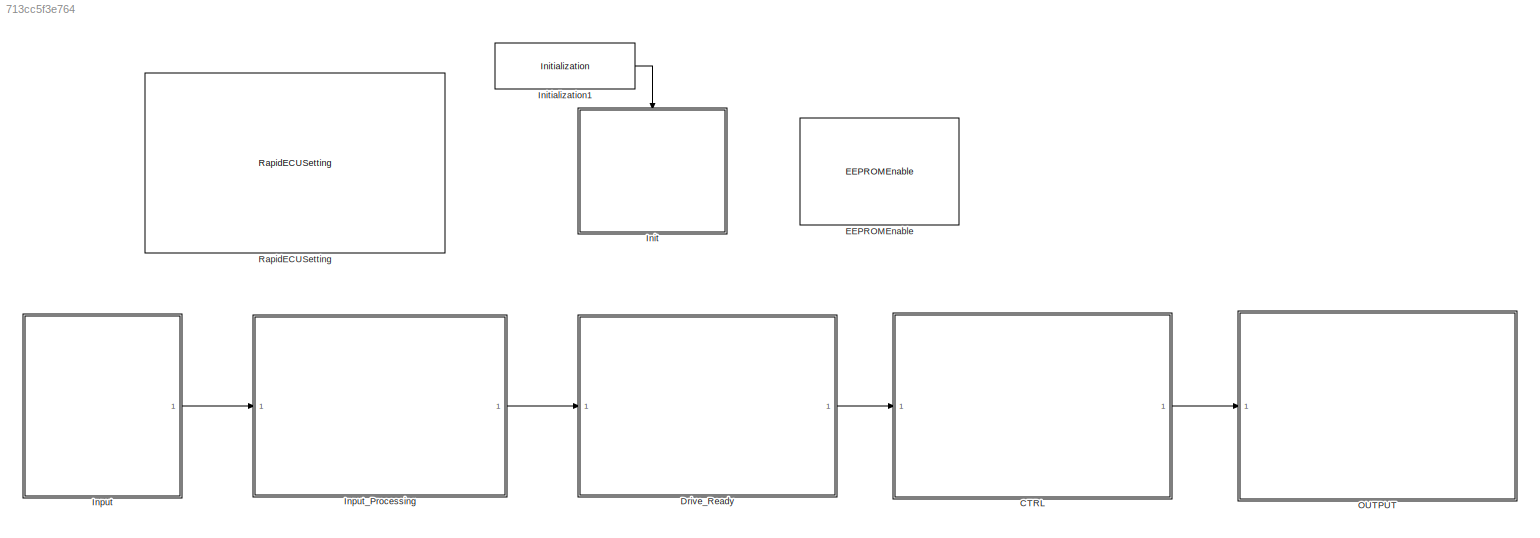
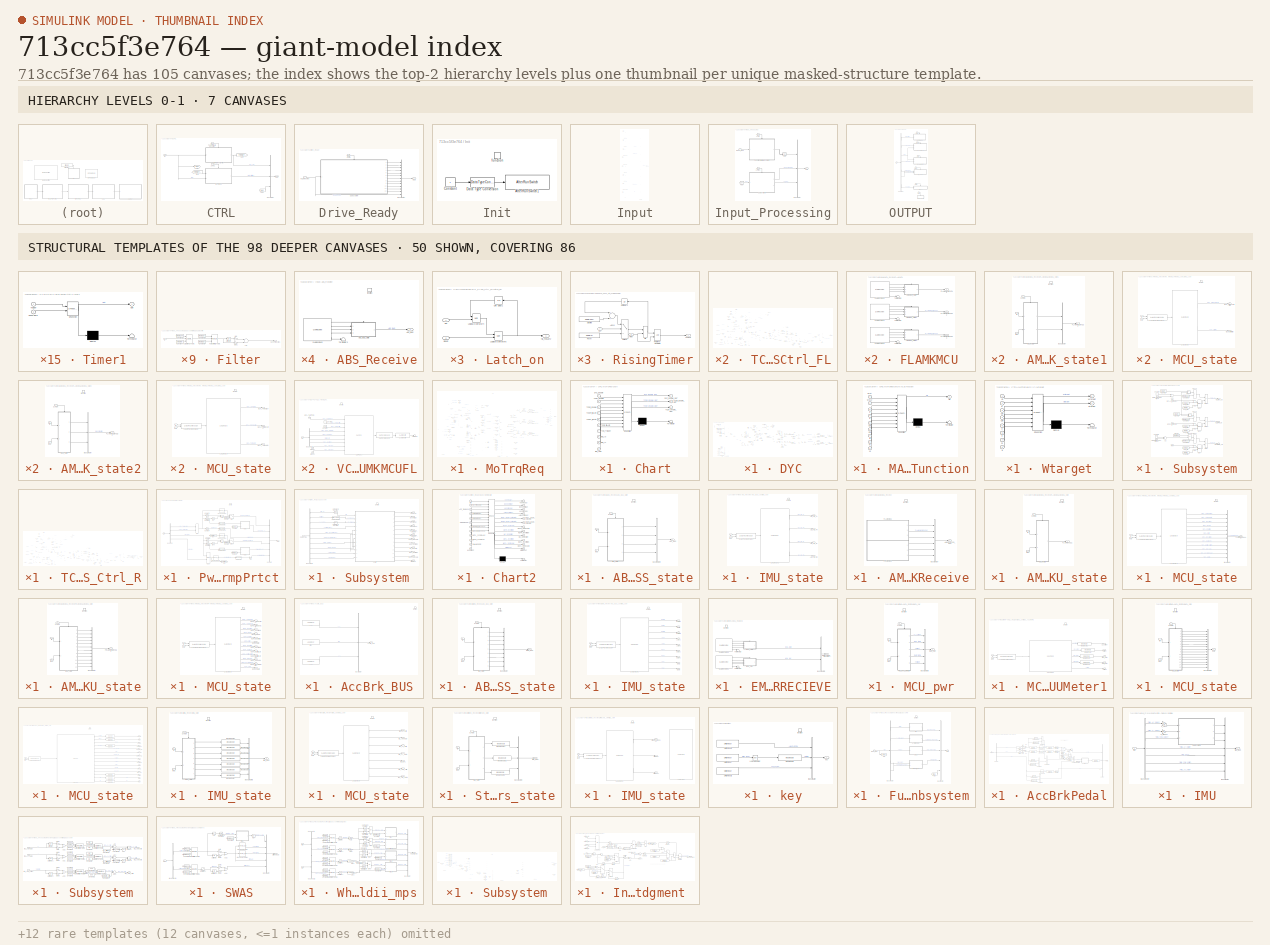
[diagram: thumbnail index - top-2 hierarchy levels (7 canvases) + 50 structural-template representatives of the remaining 98 canvases]
MODEL slx_713cc5f3e764
KIND model
CONFIG AbsTol = auto
CONFIG EnableMultiTasking = on
CONFIG FixedStep = 0.0005
CONFIG MaxStep = auto
CONFIG MinStep = auto
CONFIG RelTol = 1e-3
CONFIG SampleTimeConstraint = Unconstrained
CONFIG Solver = FixedStepDiscrete
CONFIG SolverName = FixedStepDiscrete
CONFIG StartTime = 0.0
CONFIG StopTime = 10.0
BLOCK [SubSystem] CTRL
  Ports = [1, 1]
  RequestExecContextInheritance = off
BLOCK [Reference] CTRL/10ms1  REF=simulink/Ports &
Subsystems/Function-Call
Generator
  Ports = [0, 1]
  SourceBlock = simulink/Ports &\nSubsystems/Function-Call\nGenerator
  SourceProductBaseCode = SL
  SourceProductName = Simulink
  SourceType = Function-Call Generator
BLOCK [BusCreator] CTRL/Bus Creator
  DisplayOption = bar
  InheritFromInputs = on
  Inputs = 3
  Ports = [3, 1]
BLOCK [From] CTRL/From
  GotoTag = PwrTrainTempPrtct
BLOCK [From] CTRL/From1
  GotoTag = BUS
BLOCK [Reference] CTRL/Function-Call Generator  REF=simulink/Ports &
Subsystems/Function-Call
Generator
  Ports = [0, 1]
  SourceBlock = simulink/Ports &\nSubsystems/Function-Call\nGenerator
  SourceProductBaseCode = SL
  SourceProductName = Simulink
  SourceType = Function-Call Generator
BLOCK [Goto] CTRL/Goto
  GotoTag = PwrTrainTempPrtct
BLOCK [Goto] CTRL/Goto1
  GotoTag = BUS
BLOCK [Inport] CTRL/In1
  IconDisplay = Port number
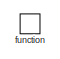
[diagram: CTRL/MoTrqReq - part 1/6, top center region]
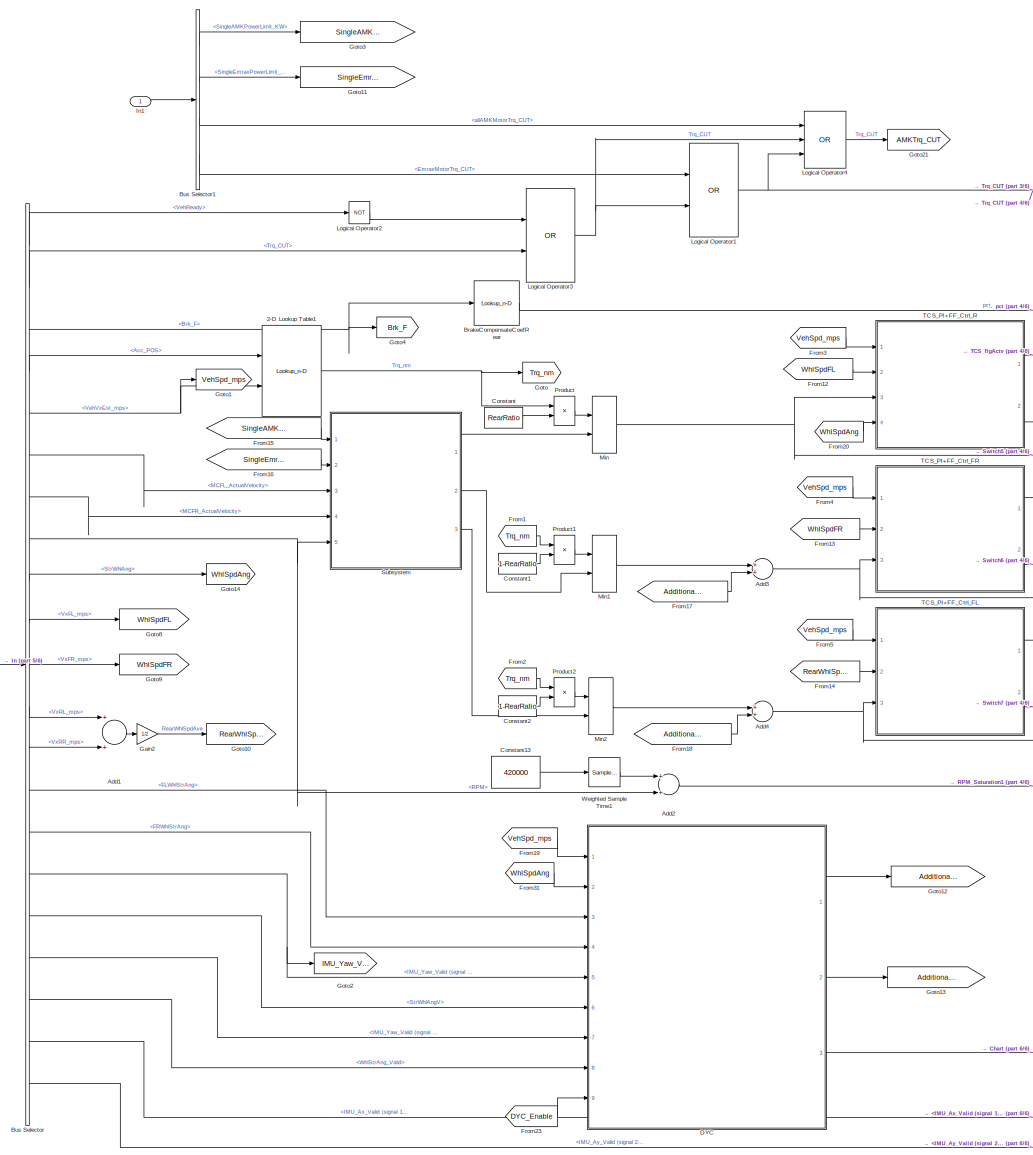
[diagram: CTRL/MoTrqReq - part 2/6, left side, full height]
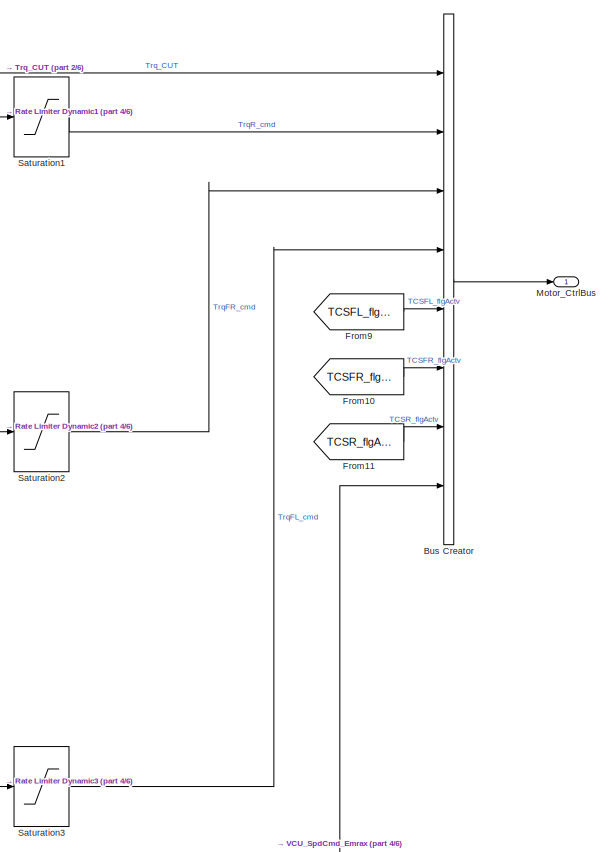
[diagram: CTRL/MoTrqReq - part 3/6, middle right region]
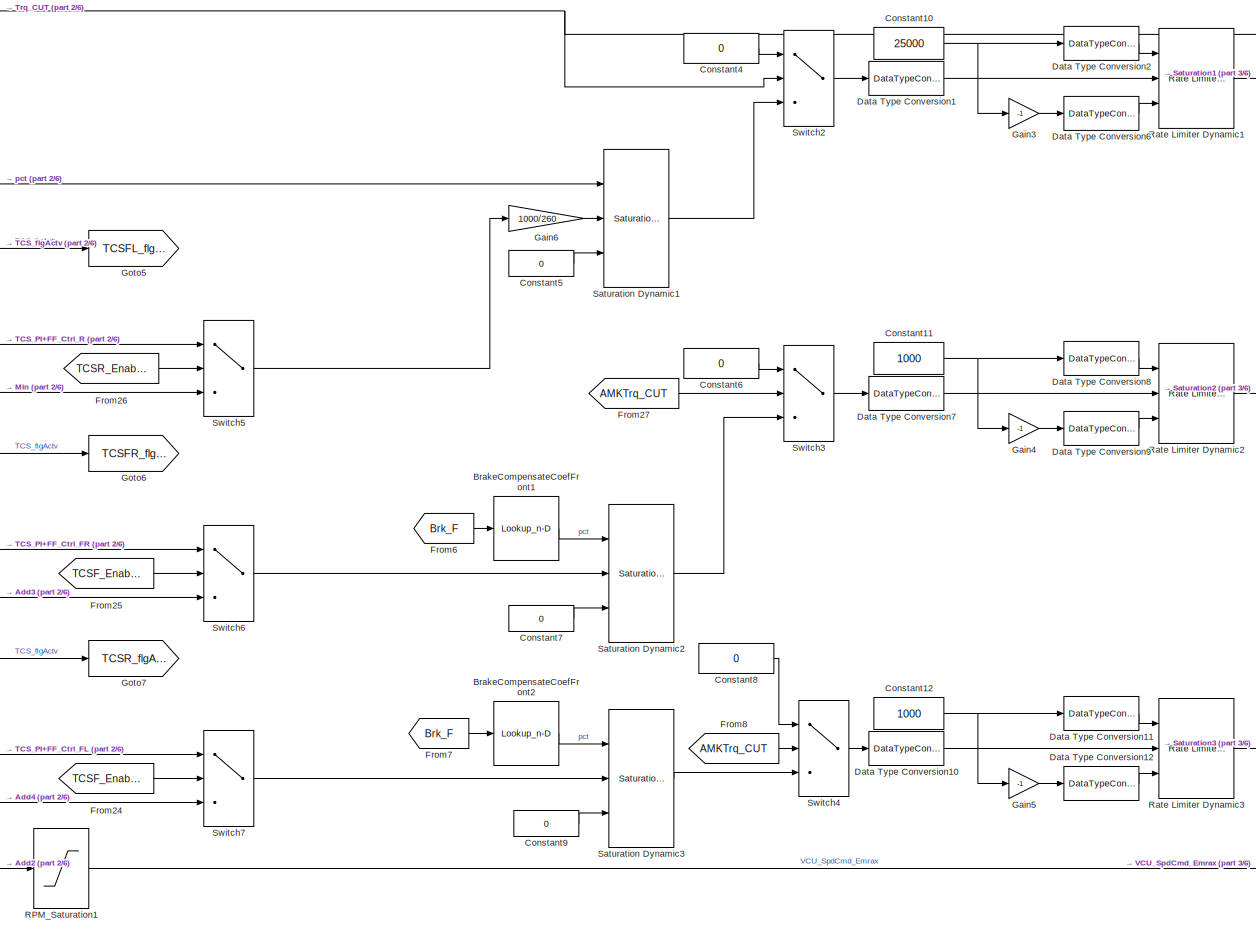
[diagram: CTRL/MoTrqReq - part 4/6, central region]
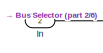
[diagram: CTRL/MoTrqReq - part 5/6, middle left region]
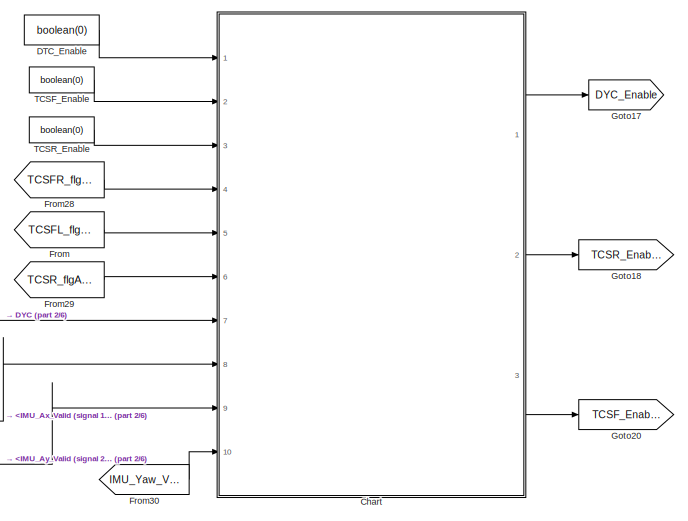
[diagram: CTRL/MoTrqReq - part 6/6, bottom center region]
BLOCK [SubSystem] CTRL/MoTrqReq
  Ports = [2, 1, 0, 1]
  RequestExecContextInheritance = off
  TreatAsAtomicUnit = on
BLOCK [Lookup_n-D] CTRL/MoTrqReq/2-D Lookup Table1
  BreakpointsForDimension1 = single([0 10 20 30 40 50 60 70 80 90 100])
  BreakpointsForDimension1DataTypeStr = single
  BreakpointsForDimension2 = single([5.40000009536743 10.8000001907349 16.2000007629395 21.6000003814697 27 32.4000015258789 37.7999992370605 43.2000007629395 48.5999984741211 54 59.4000015258789 64.8000030517578 70.1999969482422 75.5999984741211 81 86.4000015258789 91.8000030517578 97.1999969482422 102.599998474121 108])
  BreakpointsForDimension2DataTypeStr = single
  InternalRulePriority = Speed
  Ports = [2, 1]
  RndMeth = Simplest
  Table = single([0 0 0 0 0 0 0 0 0 0 0 0 0 0 0 0 0 0 0 0;20 20 20 20 20 20 20 18 18 18 17 17 16 16 15 15 15 14 14 14;35 35 35 35 35 35 30 30 25 25 25 25 20 20 20 20 20 20 20 18;50 50 50 50 50 50 50 50 50 40 40 40 40 40 40 40 40 40 38 35;79 79 79 79 85 85 85 90 95 100 110 110 110 100 90 90 80 72 70 65;100 100 100 105 105 105 110 110 110 110 115 115 125 125 120 110 90 80 76 70;120 120 120 120 125 125 125 135...<+361ch>
BLOCK [Sum] CTRL/MoTrqReq/Add1
  InputSameDT = off
  OutDataTypeStr = Inherit: Inherit via internal rule
  Ports = [2, 1]
  SaturateOnIntegerOverflow = off
BLOCK [Sum] CTRL/MoTrqReq/Add2
  InputSameDT = off
  OutDataTypeStr = Inherit: Inherit via internal rule
  Ports = [2, 1]
  SaturateOnIntegerOverflow = off
BLOCK [Sum] CTRL/MoTrqReq/Add3
  InputSameDT = off
  OutDataTypeStr = Inherit: Inherit via internal rule
  Ports = [2, 1]
  SaturateOnIntegerOverflow = off
BLOCK [Sum] CTRL/MoTrqReq/Add4
  InputSameDT = off
  OutDataTypeStr = Inherit: Inherit via internal rule
  Ports = [2, 1]
  SaturateOnIntegerOverflow = off
BLOCK [Lookup_n-D] CTRL/MoTrqReq/BrakeCompensateCoefFront1
  BreakpointsForDimension1 = single([550,2000]);
  ExtrapMethod = Clip
  InternalRulePriority = Speed
  NumberOfTableDimensions = 1
  OutDataTypeStr = single
  Ports = [1, 1]
  RndMeth = Simplest
  Table = single([20,0]);
BLOCK [Lookup_n-D] CTRL/MoTrqReq/BrakeCompensateCoefFront2
  BreakpointsForDimension1 = single([550,2000]);
  ExtrapMethod = Clip
  InternalRulePriority = Speed
  NumberOfTableDimensions = 1
  OutDataTypeStr = single
  Ports = [1, 1]
  RndMeth = Simplest
  Table = single([20,0]);
BLOCK [Lookup_n-D] CTRL/MoTrqReq/BrakeCompensateCoefRear
  BreakpointsForDimension1 = single([550,2000]);
  ExtrapMethod = Clip
  InternalRulePriority = Speed
  NumberOfTableDimensions = 1
  OutDataTypeStr = single
  Ports = [1, 1]
  RndMeth = Simplest
  Table = single([1000,0]);
BLOCK [BusCreator] CTRL/MoTrqReq/Bus Creator
  DisplayOption = bar
  InheritFromInputs = on
  Inputs = 8
  Ports = [8, 1]
BLOCK [BusSelector] CTRL/MoTrqReq/Bus Selector
  OutputAsBus = off
  OutputSignals = VehReady,VCUReceive.signal1.AccBrkPedal_Processing.Trq_CUT,VCUReceive.signal1.AccBrkPedal_Processing.Brk_F,VCUReceive.signal1.AccBrkPedal_Processing.Acc_POS,VCUReceive.VehVxEst_mps,VCUReceive.signal1.BUS.AMKMCUtoVCU_BUS.FLAMKMCUtoVCU1.MCFL_ActualVelocity,VCUReceive.signal1.BUS.AMKMCUtoVCU_BUS.FRAMKMCUtoVCU1.MCFR_ActualVelocity,VCUReceive.signal1.BUS.EMRAXMCU_Receive.MCU_state.RPM,VCUReceive.signal...<+568ch>
  Ports = [1, 21]
BLOCK [BusSelector] CTRL/MoTrqReq/Bus Selector1
  OutputAsBus = off
  OutputSignals = SingleAMKPowerLimit_KW,SingleEmraxPowerLimit_KW,allAMKMotorTrq_CUT,EmraxMotorTrq_CUT
  Ports = [1, 4]
BLOCK [SubSystem] CTRL/MoTrqReq/Chart
  ErrorFcn = Stateflow.Translate.translate
  PermitHierarchicalResolution = ExplicitOnly
  Ports = [10, 3]
  RequestExecContextInheritance = off
  SFBlockType = Chart
  TreatAsAtomicUnit = on
BLOCK [Demux] CTRL/MoTrqReq/Chart/ Demux 
  Outputs = 1
  Ports = [1, 1]
BLOCK [S-Function] CTRL/MoTrqReq/Chart/ SFunction 
  EnableBusSupport = off
  FunctionName = sf_sfun
  PortCounts = [10 4]
  Ports = [10, 4]
  SFcnIsStateOwnerBlock = off
  SFunctionDeploymentMode = off
  Tag = Stateflow S-Function 7
BLOCK [Terminator] CTRL/MoTrqReq/Chart/ Terminator 
BLOCK [Inport] CTRL/MoTrqReq/Chart/DYC_Enable
  IconDisplay = Port number
BLOCK [Outport] CTRL/MoTrqReq/Chart/DYC_Enable_OUT
  IconDisplay = Port number
  VectorParamsAs1DForOutWhenUnconnected = off
BLOCK [Inport] CTRL/MoTrqReq/Chart/IMU_Ax
  IconDisplay = Port number
  Port = 8
BLOCK [Inport] CTRL/MoTrqReq/Chart/IMU_Ay
  IconDisplay = Port number
  Port = 9
BLOCK [Inport] CTRL/MoTrqReq/Chart/IMU_Yaw
  IconDisplay = Port number
  Port = 10
BLOCK [Inport] CTRL/MoTrqReq/Chart/TCSFL_flgActv
  IconDisplay = Port number
  Port = 5
BLOCK [Inport] CTRL/MoTrqReq/Chart/TCSFR_flgActv
  IconDisplay = Port number
  Port = 4
BLOCK [Inport] CTRL/MoTrqReq/Chart/TCSF_Enable
  IconDisplay = Port number
  Port = 2
BLOCK [Outport] CTRL/MoTrqReq/Chart/TCSF_Enable_OUT
  IconDisplay = Port number
  Port = 3
  VectorParamsAs1DForOutWhenUnconnected = off
BLOCK [Inport] CTRL/MoTrqReq/Chart/TCSR_Enable
  IconDisplay = Port number
  Port = 3
BLOCK [Outport] CTRL/MoTrqReq/Chart/TCSR_Enable_OUT
  IconDisplay = Port number
  Port = 2
  VectorParamsAs1DForOutWhenUnconnected = off
BLOCK [Inport] CTRL/MoTrqReq/Chart/TCSR_flgActv
  IconDisplay = Port number
  Port = 6
BLOCK [Inport] CTRL/MoTrqReq/Chart/TVD_Trigger
  IconDisplay = Port number
  Port = 7
BLOCK [Constant] CTRL/MoTrqReq/Constant
  Value = RearRatio
BLOCK [Constant] CTRL/MoTrqReq/Constant1
  Value = 1-RearRatio
BLOCK [Constant] CTRL/MoTrqReq/Constant10
  OutDataTypeStr = single
  Value = 25000
BLOCK [Constant] CTRL/MoTrqReq/Constant11
  OutDataTypeStr = single
  Value = 1000
BLOCK [Constant] CTRL/MoTrqReq/Constant12
  OutDataTypeStr = single
  Value = 1000
BLOCK [Constant] CTRL/MoTrqReq/Constant13
  OutDataTypeStr = single
  Value = 420000
BLOCK [Constant] CTRL/MoTrqReq/Constant2
  Value = 1-RearRatio
BLOCK [Constant] CTRL/MoTrqReq/Constant4
  OutDataTypeStr = single
  Value = 0
BLOCK [Constant] CTRL/MoTrqReq/Constant5
  OutDataTypeStr = single
  Value = 0
BLOCK [Constant] CTRL/MoTrqReq/Constant6
  OutDataTypeStr = single
  Value = 0
BLOCK [Constant] CTRL/MoTrqReq/Constant7
  OutDataTypeStr = single
  Value = 0
BLOCK [Constant] CTRL/MoTrqReq/Constant8
  OutDataTypeStr = single
  Value = 0
BLOCK [Constant] CTRL/MoTrqReq/Constant9
  OutDataTypeStr = single
  Value = 0
BLOCK [Constant] CTRL/MoTrqReq/DTC_Enable
  Value = boolean(0)
BLOCK [SubSystem] CTRL/MoTrqReq/DYC
  Ports = [9, 3]
  RequestExecContextInheritance = off
BLOCK [Logic] CTRL/MoTrqReq/DYC/AND
  AllPortsSameDT = off
  Inputs = 3
  OutDataTypeStr = boolean
  Ports = [3, 1]
BLOCK [Abs] CTRL/MoTrqReq/DYC/Abs1
  SaturateOnIntegerOverflow = off
BLOCK [Abs] CTRL/MoTrqReq/DYC/Abs2
  SaturateOnIntegerOverflow = off
BLOCK [Abs] CTRL/MoTrqReq/DYC/Abs3
  SaturateOnIntegerOverflow = off
BLOCK [Abs] CTRL/MoTrqReq/DYC/Abs4
  SaturateOnIntegerOverflow = off
BLOCK [Abs] CTRL/MoTrqReq/DYC/Abs5
  SaturateOnIntegerOverflow = off
BLOCK [Trigonometry] CTRL/MoTrqReq/DYC/Acos1
  Ports = [1, 1]
BLOCK [Trigonometry] CTRL/MoTrqReq/DYC/Acos2
  Ports = [1, 1]
BLOCK [Sum] CTRL/MoTrqReq/DYC/Add
  InputSameDT = off
  Inputs = +-
  OutDataTypeStr = Inherit: Inherit via internal rule
  Ports = [2, 1]
  SaturateOnIntegerOverflow = off
BLOCK [Sum] CTRL/MoTrqReq/DYC/Add1
  InputSameDT = off
  OutDataTypeStr = Inherit: Inherit via internal rule
  Ports = [2, 1]
  SaturateOnIntegerOverflow = off
BLOCK [Sum] CTRL/MoTrqReq/DYC/Add2
  InputSameDT = off
  Inputs = +++
  OutDataTypeStr = Inherit: Inherit via internal rule
  Ports = [3, 1]
  SaturateOnIntegerOverflow = off
BLOCK [Sum] CTRL/MoTrqReq/DYC/Add3
  InputSameDT = off
  OutDataTypeStr = Inherit: Inherit via internal rule
  Ports = [2, 1]
  SaturateOnIntegerOverflow = off
BLOCK [Sum] CTRL/MoTrqReq/DYC/Add4
  InputSameDT = off
  OutDataTypeStr = Inherit: Inherit via internal rule
  Ports = [2, 1]
  SaturateOnIntegerOverflow = off
BLOCK [Sum] CTRL/MoTrqReq/DYC/Add5
  InputSameDT = off
  Inputs = -+
  OutDataTypeStr = Inherit: Inherit via internal rule
  Ports = [2, 1]
  SaturateOnIntegerOverflow = off
BLOCK [Outport] CTRL/MoTrqReq/DYC/AdditionalYawMomentFL
  IconDisplay = Port number
  Port = 2
  VectorParamsAs1DForOutWhenUnconnected = off
BLOCK [Outport] CTRL/MoTrqReq/DYC/AdditionalYawMomentFR
  IconDisplay = Port number
  VectorParamsAs1DForOutWhenUnconnected = off
BLOCK [Reference] CTRL/MoTrqReq/DYC/Compare To Constant2  REF=simulink/Logic and Bit
Operations/Compare
To Constant
  Ports = [1, 1]
  SourceBlock = simulink/Logic and Bit\nOperations/Compare\nTo Constant
  SourceProductBaseCode = SL
  SourceProductName = Simulink
  SourceType = Compare To Constant
BLOCK [Reference] CTRL/MoTrqReq/DYC/Compare To Zero  REF=simulink/Logic and Bit
Operations/Compare
To Zero
  Ports = [1, 1]
  SourceBlock = simulink/Logic and Bit\nOperations/Compare\nTo Zero
  SourceProductBaseCode = SL
  SourceProductName = Simulink
  SourceType = Compare To Zero
BLOCK [Constant] CTRL/MoTrqReq/DYC/Constant
  Value = single(Kp)
BLOCK [Constant] CTRL/MoTrqReq/DYC/Constant1
  Value = single(Car)
BLOCK [Constant] CTRL/MoTrqReq/DYC/Constant10
  Value = single(dwf)
BLOCK [Constant] CTRL/MoTrqReq/DYC/Constant11
  Value = single(lf)
BLOCK [Constant] CTRL/MoTrqReq/DYC/Constant12
  Value = single(lf)
BLOCK [Constant] CTRL/MoTrqReq/DYC/Constant13
  Value = single(Rt)
BLOCK [Constant] CTRL/MoTrqReq/DYC/Constant14
  Value = lf
BLOCK [Constant] CTRL/MoTrqReq/DYC/Constant15
  Value = single(1000)
BLOCK [Constant] CTRL/MoTrqReq/DYC/Constant16
  Value = single(-1000)
BLOCK [Constant] CTRL/MoTrqReq/DYC/Constant17
  Value = single(dwf)
BLOCK [Constant] CTRL/MoTrqReq/DYC/Constant18
  Value = single(Rt)
BLOCK [Constant] CTRL/MoTrqReq/DYC/Constant19
  Value = single(0)
BLOCK [Constant] CTRL/MoTrqReq/DYC/Constant2
  Value = single(Caf)
BLOCK [Constant] CTRL/MoTrqReq/DYC/Constant20
  Value = single(1000)
BLOCK [Constant] CTRL/MoTrqReq/DYC/Constant21
  Value = single(-1000)
BLOCK [Constant] CTRL/MoTrqReq/DYC/Constant22
  Value = lr
BLOCK [Constant] CTRL/MoTrqReq/DYC/Constant23
  Value = Caf
BLOCK [Constant] CTRL/MoTrqReq/DYC/Constant24
  Value = Car
BLOCK [Constant] CTRL/MoTrqReq/DYC/Constant25
  Value = Iz
BLOCK [Constant] CTRL/MoTrqReq/DYC/Constant26
  Value = m
BLOCK [Constant] CTRL/MoTrqReq/DYC/Constant3
  Value = single(lf)
BLOCK [Constant] CTRL/MoTrqReq/DYC/Constant4
  Value = single(lr)
BLOCK [Constant] CTRL/MoTrqReq/DYC/Constant5
  Value = single(m)
BLOCK [Constant] CTRL/MoTrqReq/DYC/Constant6
  Value = single(u)
BLOCK [Constant] CTRL/MoTrqReq/DYC/Constant7
  Value = single(Ki)
BLOCK [Constant] CTRL/MoTrqReq/DYC/Constant8
  Value = single(0)
BLOCK [Constant] CTRL/MoTrqReq/DYC/Constant9
  Value = single(0.5)
BLOCK [Inport] CTRL/MoTrqReq/DYC/DYC_Enable 
  IconDisplay = Port number
  Port = 9
BLOCK [Product] CTRL/MoTrqReq/DYC/Divide
  InputSameDT = off
  Inputs = **
  OutDataTypeStr = Inherit: Inherit via internal rule
  Ports = [2, 1]
  RndMeth = Floor
  SaturateOnIntegerOverflow = off
BLOCK [Product] CTRL/MoTrqReq/DYC/Divide1
  InputSameDT = off
  Inputs = */
  OutDataTypeStr = Inherit: Inherit via internal rule
  Ports = [2, 1]
  RndMeth = Floor
  SaturateOnIntegerOverflow = off
BLOCK [Product] CTRL/MoTrqReq/DYC/Divide2
  InputSameDT = off
  Inputs = **
  OutDataTypeStr = Inherit: Inherit via internal rule
  Ports = [2, 1]
  RndMeth = Floor
  SaturateOnIntegerOverflow = off
BLOCK [Product] CTRL/MoTrqReq/DYC/Divide3
  InputSameDT = off
  Inputs = */
  OutDataTypeStr = Inherit: Inherit via internal rule
  Ports = [2, 1]
  RndMeth = Floor
  SaturateOnIntegerOverflow = off
BLOCK [From] CTRL/MoTrqReq/DYC/From
  GotoTag = ZeroCrossingDetection
BLOCK [From] CTRL/MoTrqReq/DYC/From1
  GotoTag = StrWhlAng
BLOCK [From] CTRL/MoTrqReq/DYC/From2
  GotoTag = TVD_Trigger
BLOCK [From] CTRL/MoTrqReq/DYC/From3
  GotoTag = ErrorJudgment
BLOCK [From] CTRL/MoTrqReq/DYC/From4
  GotoTag = StrWhlAng
BLOCK [From] CTRL/MoTrqReq/DYC/From5
  GotoTag = VehSpd_mps
BLOCK [From] CTRL/MoTrqReq/DYC/From6
  GotoTag = Werror
BLOCK [Gain] CTRL/MoTrqReq/DYC/Gain1
  Gain = pi/180
  OutDataTypeStr = Inherit: Inherit via internal rule
  ParamDataTypeStr = Inherit: Inherit via internal rule
  SaturateOnIntegerOverflow = off
BLOCK [Gain] CTRL/MoTrqReq/DYC/Gain2
  Gain = pi/180
  OutDataTypeStr = Inherit: Inherit via internal rule
  ParamDataTypeStr = Inherit: Inherit via internal rule
  SaturateOnIntegerOverflow = off
BLOCK [Gain] CTRL/MoTrqReq/DYC/Gain3
  Gain = 1/2
  OutDataTypeStr = Inherit: Inherit via internal rule
  ParamDataTypeStr = Inherit: Inherit via internal rule
  SaturateOnIntegerOverflow = off
BLOCK [Gain] CTRL/MoTrqReq/DYC/Gain4
  Gain = 1/2
  OutDataTypeStr = Inherit: Inherit via internal rule
  ParamDataTypeStr = Inherit: Inherit via internal rule
  SaturateOnIntegerOverflow = off
BLOCK [Gain] CTRL/MoTrqReq/DYC/Gain5
  Gain = -1
  OutDataTypeStr = Inherit: Inherit via internal rule
  ParamDataTypeStr = Inherit: Inherit via internal rule
  SaturateOnIntegerOverflow = off
BLOCK [Goto] CTRL/MoTrqReq/DYC/Goto
  GotoTag = ZeroCrossingDetection
BLOCK [Goto] CTRL/MoTrqReq/DYC/Goto1
  GotoTag = VehSpd_mps
BLOCK [Goto] CTRL/MoTrqReq/DYC/Goto2
  GotoTag = TVD_Trigger
BLOCK [Goto] CTRL/MoTrqReq/DYC/Goto3
  GotoTag = ErrorJudgment
BLOCK [Goto] CTRL/MoTrqReq/DYC/Goto4
  GotoTag = StrWhlAng
BLOCK [Goto] CTRL/MoTrqReq/DYC/Goto5
  GotoTag = Werror
BLOCK [Inport] CTRL/MoTrqReq/DYC/IMU_Yaw_Valid
  IconDisplay = Port number
  Port = 7
BLOCK [SubSystem] CTRL/MoTrqReq/DYC/MATLAB Function
  ErrorFcn = Stateflow.Translate.translate
  PermitHierarchicalResolution = ExplicitOnly
  Ports = [9, 1]
  RequestExecContextInheritance = off
  SFBlockType = MATLAB Function
  TreatAsAtomicUnit = on
BLOCK [Demux] CTRL/MoTrqReq/DYC/MATLAB Function/ Demux 
  Outputs = 1
  Ports = [1, 1]
BLOCK [S-Function] CTRL/MoTrqReq/DYC/MATLAB Function/ SFunction 
  EnableBusSupport = off
  FunctionName = sf_sfun
  PortCounts = [9 2]
  Ports = [9, 2]
  SFcnIsStateOwnerBlock = off
  SFunctionDeploymentMode = off
  Tag = Stateflow S-Function 13
BLOCK [Terminator] CTRL/MoTrqReq/DYC/MATLAB Function/ Terminator 
BLOCK [Inport] CTRL/MoTrqReq/DYC/MATLAB Function/Caf
  IconDisplay = Port number
  Port = 5
BLOCK [Inport] CTRL/MoTrqReq/DYC/MATLAB Function/Car
  IconDisplay = Port number
  Port = 6
BLOCK [Inport] CTRL/MoTrqReq/DYC/MATLAB Function/Iz
  IconDisplay = Port number
  Port = 7
BLOCK [Outport] CTRL/MoTrqReq/DYC/MATLAB Function/Mz
  IconDisplay = Port number
  VectorParamsAs1DForOutWhenUnconnected = off
BLOCK [Inport] CTRL/MoTrqReq/DYC/MATLAB Function/Vx
  IconDisplay = Port number
  Port = 9
BLOCK [Inport] CTRL/MoTrqReq/DYC/MATLAB Function/WSA
  IconDisplay = Port number
BLOCK [Inport] CTRL/MoTrqReq/DYC/MATLAB Function/WSAV
  IconDisplay = Port number
  Port = 2
BLOCK [Inport] CTRL/MoTrqReq/DYC/MATLAB Function/lf
  IconDisplay = Port number
  Port = 3
BLOCK [Inport] CTRL/MoTrqReq/DYC/MATLAB Function/lr
  IconDisplay = Port number
  Port = 4
BLOCK [Inport] CTRL/MoTrqReq/DYC/MATLAB Function/m
  IconDisplay = Port number
  Port = 8
BLOCK [Product] CTRL/MoTrqReq/DYC/Product
  InputSameDT = off
  OutDataTypeStr = Inherit: Inherit via internal rule
  Ports = [2, 1]
  RndMeth = Floor
  SaturateOnIntegerOverflow = off
BLOCK [Product] CTRL/MoTrqReq/DYC/Product1
  InputSameDT = off
  OutDataTypeStr = Inherit: Inherit via internal rule
  Ports = [2, 1]
  RndMeth = Floor
  SaturateOnIntegerOverflow = off
BLOCK [Product] CTRL/MoTrqReq/DYC/Product2
  InputSameDT = off
  OutDataTypeStr = Inherit: Inherit via internal rule
  Ports = [2, 1]
  RndMeth = Floor
  SaturateOnIntegerOverflow = off
BLOCK [Product] CTRL/MoTrqReq/DYC/Product3
  InputSameDT = off
  OutDataTypeStr = Inherit: Inherit via internal rule
  Ports = [2, 1]
  RndMeth = Floor
  SaturateOnIntegerOverflow = off
BLOCK [Product] CTRL/MoTrqReq/DYC/Product4
  InputSameDT = off
  OutDataTypeStr = Inherit: Inherit via internal rule
  Ports = [2, 1]
  RndMeth = Floor
  SaturateOnIntegerOverflow = off
BLOCK [Product] CTRL/MoTrqReq/DYC/Product5
  InputSameDT = off
  OutDataTypeStr = Inherit: Inherit via internal rule
  Ports = [2, 1]
  RndMeth = Floor
  SaturateOnIntegerOverflow = off
BLOCK [Product] CTRL/MoTrqReq/DYC/Product6
  InputSameDT = off
  OutDataTypeStr = Inherit: Inherit via internal rule
  Ports = [2, 1]
  RndMeth = Floor
  SaturateOnIntegerOverflow = off
BLOCK [Product] CTRL/MoTrqReq/DYC/Product7
  InputSameDT = off
  OutDataTypeStr = Inherit: Inherit via internal rule
  Ports = [2, 1]
  RndMeth = Floor
  SaturateOnIntegerOverflow = off
BLOCK [Product] CTRL/MoTrqReq/DYC/Product8
  InputSameDT = off
  OutDataTypeStr = Inherit: Inherit via internal rule
  Ports = [2, 1]
  RndMeth = Floor
  SaturateOnIntegerOverflow = off
BLOCK [Product] CTRL/MoTrqReq/DYC/Product9
  InputSameDT = off
  OutDataTypeStr = Inherit: Inherit via internal rule
  Ports = [2, 1]
  RndMeth = Floor
  SaturateOnIntegerOverflow = off
BLOCK [Reference] CTRL/MoTrqReq/DYC/Rate Limiter Dynamic  REF=simulink/Discontinuities/Rate Limiter
Dynamic
  Ports = [3, 1]
  SourceBlock = simulink/Discontinuities/Rate Limiter\nDynamic
  SourceProductBaseCode = SL
  SourceProductName = Simulink
  SourceType = Rate Limiter Dynamic
BLOCK [Reference] CTRL/MoTrqReq/DYC/Rate Limiter Dynamic1  REF=simulink/Discontinuities/Rate Limiter
Dynamic
  Ports = [3, 1]
  SourceBlock = simulink/Discontinuities/Rate Limiter\nDynamic
  SourceProductBaseCode = SL
  SourceProductName = Simulink
  SourceType = Rate Limiter Dynamic
BLOCK [Inport] CTRL/MoTrqReq/DYC/SWAW_WhlStrAng_Valid
  IconDisplay = Port number
  Port = 8
BLOCK [Saturate] CTRL/MoTrqReq/DYC/Saturation
  InputPortMap = u0
  LowerLimit = -10
  Ports = [1, 1]
  UpperLimit = 10
BLOCK [Saturate] CTRL/MoTrqReq/DYC/Saturation1
  InputPortMap = u0
  LowerLimit = -20
  Ports = [1, 1]
  UpperLimit = 20
BLOCK [Saturate] CTRL/MoTrqReq/DYC/Saturation2
  InputPortMap = u0
  LowerLimit = -20
  Ports = [1, 1]
  UpperLimit = 20
BLOCK [Signum] CTRL/MoTrqReq/DYC/Sign1
BLOCK [Signum] CTRL/MoTrqReq/DYC/Sign2
BLOCK [Inport] CTRL/MoTrqReq/DYC/StrWhlAngV
  IconDisplay = Port number
  Port = 6
BLOCK [Switch] CTRL/MoTrqReq/DYC/Switch
  Criteria = u2 ~= 0
  InputSameDT = off
  SaturateOnIntegerOverflow = off
BLOCK [Switch] CTRL/MoTrqReq/DYC/Switch1
  Criteria = u2 ~= 0
  InputSameDT = off
  SaturateOnIntegerOverflow = off
BLOCK [Switch] CTRL/MoTrqReq/DYC/Switch2
  Criteria = u2 ~= 0
  InputSameDT = off
  SaturateOnIntegerOverflow = off
BLOCK [Switch] CTRL/MoTrqReq/DYC/Switch4
  Criteria = u2 ~= 0
  InputSameDT = off
  SaturateOnIntegerOverflow = off
BLOCK [Outport] CTRL/MoTrqReq/DYC/TVD_Trigger
  IconDisplay = Port number
  Port = 3
  VectorParamsAs1DForOutWhenUnconnected = off
BLOCK [Terminator] CTRL/MoTrqReq/DYC/Terminator
BLOCK [SubSystem] CTRL/MoTrqReq/DYC/Timer1
  ErrorFcn = Stateflow.Translate.translate
  PermitHierarchicalResolution = ExplicitOnly
  Ports = [2, 1]
  RequestExecContextInheritance = off
  SFBlockType = Chart
  TreatAsAtomicUnit = on
BLOCK [Demux] CTRL/MoTrqReq/DYC/Timer1/ Demux 
  Outputs = 1
  Ports = [1, 1]
BLOCK [S-Function] CTRL/MoTrqReq/DYC/Timer1/ SFunction 
  EnableBusSupport = off
  FunctionName = sf_sfun
  Parameters = 0
  PortCounts = [2 2]
  Ports = [2, 2]
  SFcnIsStateOwnerBlock = off
  SFunctionDeploymentMode = off
  Tag = Stateflow S-Function 4
BLOCK [Terminator] CTRL/MoTrqReq/DYC/Timer1/ Terminator 
BLOCK [Inport] CTRL/MoTrqReq/DYC/Timer1/CountTime
  IconDisplay = Port number
  Port = 2
BLOCK [Outport] CTRL/MoTrqReq/DYC/Timer1/Exit
  IconDisplay = Port number
BLOCK [Inport] CTRL/MoTrqReq/DYC/Timer1/Trigger
  IconDisplay = Port number
BLOCK [UnitDelay] CTRL/MoTrqReq/DYC/Unit Delay
  HasFrameUpgradeWarning = on
  SampleTime = -1
BLOCK [UnitDelay] CTRL/MoTrqReq/DYC/Unit Delay1
  HasFrameUpgradeWarning = on
  SampleTime = -1
BLOCK [Inport] CTRL/MoTrqReq/DYC/Vx
  IconDisplay = Port number
BLOCK [Inport] CTRL/MoTrqReq/DYC/WAcut
  IconDisplay = Port number
  Port = 5
BLOCK [Inport] CTRL/MoTrqReq/DYC/WhlStrL
  IconDisplay = Port number
  Port = 3
BLOCK [Inport] CTRL/MoTrqReq/DYC/WhlStrR
  IconDisplay = Port number
  Port = 4
BLOCK [SubSystem] CTRL/MoTrqReq/DYC/Wtarget
  ErrorFcn = Stateflow.Translate.translate
  PermitHierarchicalResolution = ExplicitOnly
  Ports = [8, 2]
  RequestExecContextInheritance = off
  SFBlockType = MATLAB Function
  TreatAsAtomicUnit = on
BLOCK [Demux] CTRL/MoTrqReq/DYC/Wtarget/ Demux 
  Outputs = 1
  Ports = [1, 1]
BLOCK [S-Function] CTRL/MoTrqReq/DYC/Wtarget/ SFunction 
  EnableBusSupport = off
  FunctionName = sf_sfun
  PortCounts = [8 3]
  Ports = [8, 3]
  SFcnIsStateOwnerBlock = off
  SFunctionDeploymentMode = off
  Tag = Stateflow S-Function 2
BLOCK [Terminator] CTRL/MoTrqReq/DYC/Wtarget/ Terminator 
BLOCK [Inport] CTRL/MoTrqReq/DYC/Wtarget/Caf
  IconDisplay = Port number
  Port = 4
BLOCK [Inport] CTRL/MoTrqReq/DYC/Wtarget/Car
  IconDisplay = Port number
  Port = 3
BLOCK [Inport] CTRL/MoTrqReq/DYC/Wtarget/Vx
  IconDisplay = Port number
BLOCK [Outport] CTRL/MoTrqReq/DYC/Wtarget/Wtarget
  IconDisplay = Port number
BLOCK [Inport] CTRL/MoTrqReq/DYC/Wtarget/a
  IconDisplay = Port number
  Port = 2
BLOCK [Outport] CTRL/MoTrqReq/DYC/Wtarget/btarget
  IconDisplay = Port number
  Port = 2
BLOCK [Inport] CTRL/MoTrqReq/DYC/Wtarget/lf
  IconDisplay = Port number
  Port = 6
BLOCK [Inport] CTRL/MoTrqReq/DYC/Wtarget/lr
  IconDisplay = Port number
  Port = 5
BLOCK [Inport] CTRL/MoTrqReq/DYC/Wtarget/m
  IconDisplay = Port number
  Port = 7
BLOCK [Inport] CTRL/MoTrqReq/DYC/Wtarget/u
  IconDisplay = Port number
  Port = 8
BLOCK [Trigonometry] CTRL/MoTrqReq/DYC/cos
  Operator = cos
  Ports = [1, 1]
BLOCK [Trigonometry] CTRL/MoTrqReq/DYC/cos1
  Operator = cos
  Ports = [1, 1]
BLOCK [Constant] CTRL/MoTrqReq/DYC/zero
  Value = 0
BLOCK [Constant] CTRL/MoTrqReq/DYC/zero1
  Value = 0
BLOCK [Inport] CTRL/MoTrqReq/DYC/α
  IconDisplay = Port number
  Port = 2
BLOCK [DataTypeConversion] CTRL/MoTrqReq/Data Type Conversion1
  OutDataTypeStr = single
  RndMeth = Floor
  SaturateOnIntegerOverflow = off
BLOCK [DataTypeConversion] CTRL/MoTrqReq/Data Type Conversion10
  OutDataTypeStr = single
  RndMeth = Floor
  SaturateOnIntegerOverflow = off
BLOCK [DataTypeConversion] CTRL/MoTrqReq/Data Type Conversion11
  OutDataTypeStr = single
  RndMeth = Floor
  SaturateOnIntegerOverflow = off
BLOCK [DataTypeConversion] CTRL/MoTrqReq/Data Type Conversion12
  OutDataTypeStr = single
  RndMeth = Floor
  SaturateOnIntegerOverflow = off
BLOCK [DataTypeConversion] CTRL/MoTrqReq/Data Type Conversion2
  OutDataTypeStr = single
  RndMeth = Floor
  SaturateOnIntegerOverflow = off
BLOCK [DataTypeConversion] CTRL/MoTrqReq/Data Type Conversion6
  OutDataTypeStr = single
  RndMeth = Floor
  SaturateOnIntegerOverflow = off
BLOCK [DataTypeConversion] CTRL/MoTrqReq/Data Type Conversion7
  OutDataTypeStr = single
  RndMeth = Floor
  SaturateOnIntegerOverflow = off
BLOCK [DataTypeConversion] CTRL/MoTrqReq/Data Type Conversion8
  OutDataTypeStr = single
  RndMeth = Floor
  SaturateOnIntegerOverflow = off
BLOCK [DataTypeConversion] CTRL/MoTrqReq/Data Type Conversion9
  OutDataTypeStr = single
  RndMeth = Floor
  SaturateOnIntegerOverflow = off
BLOCK [From] CTRL/MoTrqReq/From
  GotoTag = TCSFL_flgActv
BLOCK [From] CTRL/MoTrqReq/From1
  GotoTag = Trq_nm
BLOCK [From] CTRL/MoTrqReq/From10
  GotoTag = TCSFR_flgActv
BLOCK [From] CTRL/MoTrqReq/From11
  GotoTag = TCSR_flgActv
BLOCK [From] CTRL/MoTrqReq/From12
  GotoTag = WhlSpdFL
BLOCK [From] CTRL/MoTrqReq/From13
  GotoTag = WhlSpdFR
BLOCK [From] CTRL/MoTrqReq/From14
  GotoTag = RearWhlSpdAve
BLOCK [From] CTRL/MoTrqReq/From15
  GotoTag = SingleAMKPowerLimit_KW
BLOCK [From] CTRL/MoTrqReq/From16
  GotoTag = SingleEmraxPowerLimit_KW
BLOCK [From] CTRL/MoTrqReq/From17
  GotoTag = AdditionalYawMomentFR
BLOCK [From] CTRL/MoTrqReq/From18
  GotoTag = AdditionalYawMomentFL
BLOCK [From] CTRL/MoTrqReq/From19
  GotoTag = VehSpd_mps
BLOCK [From] CTRL/MoTrqReq/From2
  GotoTag = Trq_nm
BLOCK [From] CTRL/MoTrqReq/From20
  GotoTag = WhlSpdAng
BLOCK [From] CTRL/MoTrqReq/From23
  GotoTag = DYC_Enable
BLOCK [From] CTRL/MoTrqReq/From24
  GotoTag = TCSF_Enable
BLOCK [From] CTRL/MoTrqReq/From25
  GotoTag = TCSF_Enable
BLOCK [From] CTRL/MoTrqReq/From26
  GotoTag = TCSR_Enable
BLOCK [From] CTRL/MoTrqReq/From27
  GotoTag = AMKTrq_CUT
BLOCK [From] CTRL/MoTrqReq/From28
  GotoTag = TCSFR_flgActv
BLOCK [From] CTRL/MoTrqReq/From29
  GotoTag = TCSR_flgActv
BLOCK [From] CTRL/MoTrqReq/From3
  GotoTag = VehSpd_mps
BLOCK [From] CTRL/MoTrqReq/From30
  GotoTag = IMU_Yaw_Valid
BLOCK [From] CTRL/MoTrqReq/From31
  GotoTag = WhlSpdAng
BLOCK [From] CTRL/MoTrqReq/From4
  GotoTag = VehSpd_mps
BLOCK [From] CTRL/MoTrqReq/From5
  GotoTag = VehSpd_mps
BLOCK [From] CTRL/MoTrqReq/From6
  GotoTag = Brk_F
BLOCK [From] CTRL/MoTrqReq/From7
  GotoTag = Brk_F
BLOCK [From] CTRL/MoTrqReq/From8
  GotoTag = AMKTrq_CUT
BLOCK [From] CTRL/MoTrqReq/From9
  GotoTag = TCSFL_flgActv
BLOCK [Gain] CTRL/MoTrqReq/Gain2
  Gain = 1/2
  OutDataTypeStr = Inherit: Inherit via internal rule
  ParamDataTypeStr = Inherit: Inherit via internal rule
  SaturateOnIntegerOverflow = off
BLOCK [Gain] CTRL/MoTrqReq/Gain3
  Gain = -1
  OutDataTypeStr = Inherit: Inherit via internal rule
  ParamDataTypeStr = Inherit: Inherit via internal rule
  SaturateOnIntegerOverflow = off
BLOCK [Gain] CTRL/MoTrqReq/Gain4
  Gain = -1
  OutDataTypeStr = Inherit: Inherit via internal rule
  ParamDataTypeStr = Inherit: Inherit via internal rule
  SaturateOnIntegerOverflow = off
BLOCK [Gain] CTRL/MoTrqReq/Gain5
  Gain = -1
  OutDataTypeStr = Inherit: Inherit via internal rule
  ParamDataTypeStr = Inherit: Inherit via internal rule
  SaturateOnIntegerOverflow = off
BLOCK [Gain] CTRL/MoTrqReq/Gain6
  Gain = 1000/260
  OutDataTypeStr = Inherit: Inherit via internal rule
  ParamDataTypeStr = Inherit: Inherit via internal rule
  SaturateOnIntegerOverflow = off
BLOCK [Goto] CTRL/MoTrqReq/Goto
  GotoTag = Trq_nm
BLOCK [Goto] CTRL/MoTrqReq/Goto1
  GotoTag = VehSpd_mps
BLOCK [Goto] CTRL/MoTrqReq/Goto10
  GotoTag = RearWhlSpdAve
BLOCK [Goto] CTRL/MoTrqReq/Goto11
  GotoTag = SingleEmraxPowerLimit_KW
BLOCK [Goto] CTRL/MoTrqReq/Goto12
  GotoTag = AdditionalYawMomentFR
BLOCK [Goto] CTRL/MoTrqReq/Goto13
  GotoTag = AdditionalYawMomentFL
BLOCK [Goto] CTRL/MoTrqReq/Goto14
  GotoTag = WhlSpdAng
BLOCK [Goto] CTRL/MoTrqReq/Goto17
  GotoTag = DYC_Enable
BLOCK [Goto] CTRL/MoTrqReq/Goto18
  GotoTag = TCSR_Enable
BLOCK [Goto] CTRL/MoTrqReq/Goto2
  GotoTag = IMU_Yaw_Valid
BLOCK [Goto] CTRL/MoTrqReq/Goto20
  GotoTag = TCSF_Enable
BLOCK [Goto] CTRL/MoTrqReq/Goto21
  GotoTag = AMKTrq_CUT
BLOCK [Goto] CTRL/MoTrqReq/Goto3
  GotoTag = SingleAMKPowerLimit_KW
BLOCK [Goto] CTRL/MoTrqReq/Goto4
  GotoTag = Brk_F
BLOCK [Goto] CTRL/MoTrqReq/Goto5
  GotoTag = TCSFL_flgActv
BLOCK [Goto] CTRL/MoTrqReq/Goto6
  GotoTag = TCSFR_flgActv
BLOCK [Goto] CTRL/MoTrqReq/Goto7
  GotoTag = TCSR_flgActv
BLOCK [Goto] CTRL/MoTrqReq/Goto8
  GotoTag = WhlSpdFL
BLOCK [Goto] CTRL/MoTrqReq/Goto9
  GotoTag = WhlSpdFR
BLOCK [Inport] CTRL/MoTrqReq/In
  IconDisplay = Port number
  Port = 2
BLOCK [Inport] CTRL/MoTrqReq/In1
  IconDisplay = Port number
BLOCK [Logic] CTRL/MoTrqReq/Logical Operator1
  AllPortsSameDT = off
  Operator = OR
  OutDataTypeStr = boolean
  Ports = [2, 1]
BLOCK [Logic] CTRL/MoTrqReq/Logical Operator2
  AllPortsSameDT = off
  Operator = NOT
  OutDataTypeStr = boolean
  Ports = [1, 1]
BLOCK [Logic] CTRL/MoTrqReq/Logical Operator3
  AllPortsSameDT = off
  Operator = OR
  OutDataTypeStr = boolean
  Ports = [2, 1]
BLOCK [Logic] CTRL/MoTrqReq/Logical Operator4
  AllPortsSameDT = off
  Inputs = 3
  Operator = OR
  OutDataTypeStr = boolean
  Ports = [3, 1]
BLOCK [MinMax] CTRL/MoTrqReq/Min
  InputSameDT = off
  Inputs = 2
  Ports = [2, 1]
  SaturateOnIntegerOverflow = off
BLOCK [MinMax] CTRL/MoTrqReq/Min1
  InputSameDT = off
  Inputs = 2
  Ports = [2, 1]
  SaturateOnIntegerOverflow = off
BLOCK [MinMax] CTRL/MoTrqReq/Min2
  InputSameDT = off
  Inputs = 2
  Ports = [2, 1]
  SaturateOnIntegerOverflow = off
BLOCK [Outport] CTRL/MoTrqReq/Motor_CtrlBus
  IconDisplay = Port number
  VectorParamsAs1DForOutWhenUnconnected = off
BLOCK [Product] CTRL/MoTrqReq/Product
  InputSameDT = off
  OutDataTypeStr = Inherit: Inherit via internal rule
  Ports = [2, 1]
  RndMeth = Floor
  SaturateOnIntegerOverflow = off
BLOCK [Product] CTRL/MoTrqReq/Product1
  InputSameDT = off
  OutDataTypeStr = Inherit: Inherit via internal rule
  Ports = [2, 1]
  RndMeth = Floor
  SaturateOnIntegerOverflow = off
BLOCK [Product] CTRL/MoTrqReq/Product2
  InputSameDT = off
  OutDataTypeStr = Inherit: Inherit via internal rule
  Ports = [2, 1]
  RndMeth = Floor
  SaturateOnIntegerOverflow = off
BLOCK [Saturate] CTRL/MoTrqReq/RPM_Saturation1
  InputPortMap = u0
  LowerLimit = -50
  Ports = [1, 1]
  UpperLimit = 5000
BLOCK [Reference] CTRL/MoTrqReq/Rate Limiter Dynamic1  REF=simulink/Discontinuities/Rate Limiter
Dynamic
  Ports = [3, 1]
  SourceBlock = simulink/Discontinuities/Rate Limiter\nDynamic
  SourceProductBaseCode = SL
  SourceProductName = Simulink
  SourceType = Rate Limiter Dynamic
BLOCK [Reference] CTRL/MoTrqReq/Rate Limiter Dynamic2  REF=simulink/Discontinuities/Rate Limiter
Dynamic
  Ports = [3, 1]
  SourceBlock = simulink/Discontinuities/Rate Limiter\nDynamic
  SourceProductBaseCode = SL
  SourceProductName = Simulink
  SourceType = Rate Limiter Dynamic
BLOCK [Reference] CTRL/MoTrqReq/Rate Limiter Dynamic3  REF=simulink/Discontinuities/Rate Limiter
Dynamic
  Ports = [3, 1]
  SourceBlock = simulink/Discontinuities/Rate Limiter\nDynamic
  SourceProductBaseCode = SL
  SourceProductName = Simulink
  SourceType = Rate Limiter Dynamic
BLOCK [Reference] CTRL/MoTrqReq/Saturation Dynamic1  REF=simulink/Discontinuities/Saturation
Dynamic
  Ports = [3, 1]
  SourceBlock = simulink/Discontinuities/Saturation\nDynamic
  SourceProductBaseCode = SL
  SourceProductName = Simulink
  SourceType = Saturation Dynamic
BLOCK [Reference] CTRL/MoTrqReq/Saturation Dynamic2  REF=simulink/Discontinuities/Saturation
Dynamic
  Ports = [3, 1]
  SourceBlock = simulink/Discontinuities/Saturation\nDynamic
  SourceProductBaseCode = SL
  SourceProductName = Simulink
  SourceType = Saturation Dynamic
BLOCK [Reference] CTRL/MoTrqReq/Saturation Dynamic3  REF=simulink/Discontinuities/Saturation
Dynamic
  Ports = [3, 1]
  SourceBlock = simulink/Discontinuities/Saturation\nDynamic
  SourceProductBaseCode = SL
  SourceProductName = Simulink
  SourceType = Saturation Dynamic
BLOCK [Saturate] CTRL/MoTrqReq/Saturation1
  InputPortMap = u0
  LowerLimit = 0
  Ports = [1, 1]
  UpperLimit = 1000
BLOCK [Saturate] CTRL/MoTrqReq/Saturation2
  InputPortMap = u0
  LowerLimit = 0
  Ports = [1, 1]
  UpperLimit = 20
BLOCK [Saturate] CTRL/MoTrqReq/Saturation3
  InputPortMap = u0
  LowerLimit = 0
  Ports = [1, 1]
  UpperLimit = 20
BLOCK [SubSystem] CTRL/MoTrqReq/Subsystem
  Ports = [5, 3]
  RequestExecContextInheritance = off
BLOCK [Sum] CTRL/MoTrqReq/Subsystem/Add
  InputSameDT = off
  Inputs = +-
  OutDataTypeStr = Inherit: Inherit via internal rule
  Ports = [2, 1]
  SaturateOnIntegerOverflow = off
BLOCK [Sum] CTRL/MoTrqReq/Subsystem/Add1
  InputSameDT = off
  OutDataTypeStr = Inherit: Inherit via internal rule
  Ports = [2, 1]
  SaturateOnIntegerOverflow = off
BLOCK [Sum] CTRL/MoTrqReq/Subsystem/Add2
  InputSameDT = off
  OutDataTypeStr = Inherit: Inherit via internal rule
  Ports = [2, 1]
  SaturateOnIntegerOverflow = off
BLOCK [Sum] CTRL/MoTrqReq/Subsystem/Add3
  InputSameDT = off
  OutDataTypeStr = Inherit: Inherit via internal rule
  Ports = [2, 1]
  SaturateOnIntegerOverflow = off
BLOCK [Sum] CTRL/MoTrqReq/Subsystem/Add4
  InputSameDT = off
  Inputs = +-
  OutDataTypeStr = Inherit: Inherit via internal rule
  Ports = [2, 1]
  SaturateOnIntegerOverflow = off
BLOCK [Constant] CTRL/MoTrqReq/Subsystem/Constant
BLOCK [Constant] CTRL/MoTrqReq/Subsystem/Constant1
  OutDataTypeStr = single
  Value = single(9550)
BLOCK [Constant] CTRL/MoTrqReq/Subsystem/Constant2
  OutDataTypeStr = single
  Value = single(9550)
BLOCK [Constant] CTRL/MoTrqReq/Subsystem/Constant3
BLOCK [Constant] CTRL/MoTrqReq/Subsystem/Constant5
  OutDataTypeStr = single
  Value = single(9550)
BLOCK [Product] CTRL/MoTrqReq/Subsystem/Divide
  InputSameDT = off
  Inputs = */
  OutDataTypeStr = Inherit: Inherit via internal rule
  Ports = [2, 1]
  RndMeth = Floor
  SaturateOnIntegerOverflow = off
BLOCK [Product] CTRL/MoTrqReq/Subsystem/Divide1
  InputSameDT = off
  Inputs = */
  OutDataTypeStr = Inherit: Inherit via internal rule
  Ports = [2, 1]
  RndMeth = Floor
  SaturateOnIntegerOverflow = off
BLOCK [Product] CTRL/MoTrqReq/Subsystem/Divide2
  InputSameDT = off
  Inputs = */
  OutDataTypeStr = Inherit: Inherit via internal rule
  Ports = [2, 1]
  RndMeth = Floor
  SaturateOnIntegerOverflow = off
BLOCK [Inport] CTRL/MoTrqReq/Subsystem/MCFL_ActualVelocity
  IconDisplay = Port number
  Port = 3
BLOCK [Inport] CTRL/MoTrqReq/Subsystem/MCFR_ActualVelocity
  IconDisplay = Port number
  Port = 4
BLOCK [MinMax] CTRL/MoTrqReq/Subsystem/Max
  Function = max
  InputSameDT = off
  Inputs = 2
  Ports = [2, 1]
  SaturateOnIntegerOverflow = off
BLOCK [MinMax] CTRL/MoTrqReq/Subsystem/Max1
  Function = max
  InputSameDT = off
  Inputs = 2
  Ports = [2, 1]
  SaturateOnIntegerOverflow = off
BLOCK [MinMax] CTRL/MoTrqReq/Subsystem/Max2
  Function = max
  InputSameDT = off
  Inputs = 2
  Ports = [2, 1]
  SaturateOnIntegerOverflow = off
BLOCK [Constant] CTRL/MoTrqReq/Subsystem/MaxPwr
  OutDataTypeStr = single
  Value = single(63)
BLOCK [Constant] CTRL/MoTrqReq/Subsystem/MaxPwr1
  OutDataTypeStr = single
  Value = single(7)
BLOCK [Constant] CTRL/MoTrqReq/Subsystem/MaxPwr2
  OutDataTypeStr = single
  Value = single(7)
BLOCK [Product] CTRL/MoTrqReq/Subsystem/Product
  InputSameDT = off
  OutDataTypeStr = Inherit: Inherit via internal rule
  Ports = [2, 1]
  RndMeth = Floor
  SaturateOnIntegerOverflow = off
BLOCK [Product] CTRL/MoTrqReq/Subsystem/Product1
  InputSameDT = off
  OutDataTypeStr = Inherit: Inherit via internal rule
  Ports = [2, 1]
  RndMeth = Floor
  SaturateOnIntegerOverflow = off
BLOCK [Product] CTRL/MoTrqReq/Subsystem/Product2
  InputSameDT = off
  OutDataTypeStr = Inherit: Inherit via internal rule
  Ports = [2, 1]
  RndMeth = Floor
  SaturateOnIntegerOverflow = off
BLOCK [Product] CTRL/MoTrqReq/Subsystem/Product3
  InputSameDT = off
  OutDataTypeStr = Inherit: Inherit via internal rule
  Ports = [2, 1]
  RndMeth = Floor
  SaturateOnIntegerOverflow = off
BLOCK [Product] CTRL/MoTrqReq/Subsystem/Product4
  InputSameDT = off
  OutDataTypeStr = Inherit: Inherit via internal rule
  Ports = [2, 1]
  RndMeth = Floor
  SaturateOnIntegerOverflow = off
BLOCK [Product] CTRL/MoTrqReq/Subsystem/Product5
  InputSameDT = off
  OutDataTypeStr = Inherit: Inherit via internal rule
  Ports = [2, 1]
  RndMeth = Floor
  SaturateOnIntegerOverflow = off
BLOCK [Inport] CTRL/MoTrqReq/Subsystem/RPM
  IconDisplay = Port number
  Port = 5
BLOCK [Constant] CTRL/MoTrqReq/Subsystem/RPM_min
  OutDataTypeStr = single
  Value = single(10)
BLOCK [Constant] CTRL/MoTrqReq/Subsystem/RPM_min1
  OutDataTypeStr = single
  Value = single(1)
BLOCK [Constant] CTRL/MoTrqReq/Subsystem/RPM_min2
  OutDataTypeStr = single
  Value = single(10)
BLOCK [Constant] CTRL/MoTrqReq/Subsystem/RPM_min3
  OutDataTypeStr = single
  Value = single(1)
BLOCK [Constant] CTRL/MoTrqReq/Subsystem/RPM_min4
  OutDataTypeStr = single
  Value = single(10)
BLOCK [Constant] CTRL/MoTrqReq/Subsystem/RPM_min5
  OutDataTypeStr = single
  Value = single(1)
BLOCK [Inport] CTRL/MoTrqReq/Subsystem/SingleAMKPowerLimit_KW
  IconDisplay = Port number
BLOCK [Inport] CTRL/MoTrqReq/Subsystem/SingleEmraxPowerLimit_KW
  IconDisplay = Port number
  Port = 2
BLOCK [Outport] CTRL/MoTrqReq/Subsystem/TrqLimEmrax_Nm
  IconDisplay = Port number
BLOCK [Outport] CTRL/MoTrqReq/Subsystem/TrqLimFL_Nm
  IconDisplay = Port number
  Port = 3
BLOCK [Outport] CTRL/MoTrqReq/Subsystem/TrqLimFR_Nm
  IconDisplay = Port number
  Port = 2
BLOCK [Switch] CTRL/MoTrqReq/Switch2
  Criteria = u2 ~= 0
  InputSameDT = off
  SaturateOnIntegerOverflow = off
BLOCK [Switch] CTRL/MoTrqReq/Switch3
  Criteria = u2 ~= 0
  InputSameDT = off
  SaturateOnIntegerOverflow = off
BLOCK [Switch] CTRL/MoTrqReq/Switch4
  Criteria = u2 ~= 0
  InputSameDT = off
  SaturateOnIntegerOverflow = off
BLOCK [Switch] CTRL/MoTrqReq/Switch5
  Criteria = u2 ~= 0
  InputSameDT = off
  SaturateOnIntegerOverflow = off
BLOCK [Switch] CTRL/MoTrqReq/Switch6
  Criteria = u2 ~= 0
  InputSameDT = off
  SaturateOnIntegerOverflow = off
BLOCK [Switch] CTRL/MoTrqReq/Switch7
  Criteria = u2 ~= 0
  InputSameDT = off
  SaturateOnIntegerOverflow = off
BLOCK [Constant] CTRL/MoTrqReq/TCSF_Enable
  OutDataTypeStr = boolean
  Value = boolean(0)
BLOCK [Constant] CTRL/MoTrqReq/TCSR_Enable
  OutDataTypeStr = boolean
  Value = boolean(0)
BLOCK [SubSystem] CTRL/MoTrqReq/TCS_PI+FF_Ctrl_FL
  Ports = [3, 2]
  RequestExecContextInheritance = off
BLOCK [Sum] CTRL/MoTrqReq/TCS_PI+FF_Ctrl_FL/Add1
  InputSameDT = off
  Inputs = +-
  OutDataTypeStr = Inherit: Inherit via internal rule
  Ports = [2, 1]
  SaturateOnIntegerOverflow = off
BLOCK [Sum] CTRL/MoTrqReq/TCS_PI+FF_Ctrl_FL/Add10
  InputSameDT = off
  Inputs = +-
  OutDataTypeStr = Inherit: Inherit via internal rule
  Ports = [2, 1]
  SaturateOnIntegerOverflow = off
BLOCK [Sum] CTRL/MoTrqReq/TCS_PI+FF_Ctrl_FL/Add11
  InputSameDT = off
  Inputs = +-
  OutDataTypeStr = Inherit: Inherit via internal rule
  Ports = [2, 1]
  SaturateOnIntegerOverflow = off
BLOCK [Sum] CTRL/MoTrqReq/TCS_PI+FF_Ctrl_FL/Add12
  InputSameDT = off
  Inputs = +-
  OutDataTypeStr = Inherit: Inherit via internal rule
  Ports = [2, 1]
  SaturateOnIntegerOverflow = off
BLOCK [Sum] CTRL/MoTrqReq/TCS_PI+FF_Ctrl_FL/Add13
  InputSameDT = off
  OutDataTypeStr = Inherit: Inherit via internal rule
  Ports = [2, 1]
  SaturateOnIntegerOverflow = off
BLOCK [Sum] CTRL/MoTrqReq/TCS_PI+FF_Ctrl_FL/Add2
  InputSameDT = off
  OutDataTypeStr = Inherit: Inherit via internal rule
  Ports = [2, 1]
  SaturateOnIntegerOverflow = off
BLOCK [Sum] CTRL/MoTrqReq/TCS_PI+FF_Ctrl_FL/Add4
  InputSameDT = off
  Inputs = +-
  OutDataTypeStr = Inherit: Inherit via internal rule
  Ports = [2, 1]
  SaturateOnIntegerOverflow = off
BLOCK [Sum] CTRL/MoTrqReq/TCS_PI+FF_Ctrl_FL/Add5
  InputSameDT = off
  OutDataTypeStr = Inherit: Inherit via internal rule
  Ports = [2, 1]
  SaturateOnIntegerOverflow = off
BLOCK [Sum] CTRL/MoTrqReq/TCS_PI+FF_Ctrl_FL/Add6
  InputSameDT = off
  Inputs = +++
  OutDataTypeStr = Inherit: Inherit via internal rule
  Ports = [3, 1]
  SaturateOnIntegerOverflow = off
BLOCK [Sum] CTRL/MoTrqReq/TCS_PI+FF_Ctrl_FL/Add7
  InputSameDT = off
  OutDataTypeStr = Inherit: Inherit via internal rule
  Ports = [2, 1]
  SaturateOnIntegerOverflow = off
BLOCK [Sum] CTRL/MoTrqReq/TCS_PI+FF_Ctrl_FL/Add9
  InputSameDT = off
  OutDataTypeStr = Inherit: Inherit via internal rule
  Ports = [2, 1]
  SaturateOnIntegerOverflow = off
BLOCK [Constant] CTRL/MoTrqReq/TCS_PI+FF_Ctrl_FL/Cal_DeltaV_mps
  Value = single(0)
BLOCK [Constant] CTRL/MoTrqReq/TCS_PI+FF_Ctrl_FL/Cal_DeltaV_mps1
  Value = single(235)
BLOCK [Reference] CTRL/MoTrqReq/TCS_PI+FF_Ctrl_FL/Compare To Constant  REF=simulink/Logic and Bit
Operations/Compare
To Constant
  Ports = [1, 1]
  SourceBlock = simulink/Logic and Bit\nOperations/Compare\nTo Constant
  SourceProductBaseCode = SL
  SourceProductName = Simulink
  SourceType = Compare To Constant
BLOCK [Reference] CTRL/MoTrqReq/TCS_PI+FF_Ctrl_FL/Compare To Constant2  REF=simulink/Logic and Bit
Operations/Compare
To Constant
  Ports = [1, 1]
  SourceBlock = simulink/Logic and Bit\nOperations/Compare\nTo Constant
  SourceProductBaseCode = SL
  SourceProductName = Simulink
  SourceType = Compare To Constant
BLOCK [Reference] CTRL/MoTrqReq/TCS_PI+FF_Ctrl_FL/Detect Rise Positive  REF=simulink/Logic and Bit
Operations/Detect Rise
Positive
  Ports = [1, 1]
  SourceBlock = simulink/Logic and Bit\nOperations/Detect Rise\nPositive
  SourceProductBaseCode = SL
  SourceProductName = Simulink
  SourceType = Detect Rise Positive
BLOCK [From] CTRL/MoTrqReq/TCS_PI+FF_Ctrl_FL/From
  GotoTag = TCS_Actv
BLOCK [From] CTRL/MoTrqReq/TCS_PI+FF_Ctrl_FL/From1
  GotoTag = P_Portion
BLOCK [From] CTRL/MoTrqReq/TCS_PI+FF_Ctrl_FL/From18
  GotoTag = Verr_mps
BLOCK [From] CTRL/MoTrqReq/TCS_PI+FF_Ctrl_FL/From19
  GotoTag = TCS_TrqReqstRaw_Nm
BLOCK [From] CTRL/MoTrqReq/TCS_PI+FF_Ctrl_FL/From2
  GotoTag = VehSpdA_mps
BLOCK [From] CTRL/MoTrqReq/TCS_PI+FF_Ctrl_FL/From20
  GotoTag = TCS_Actv
BLOCK [From] CTRL/MoTrqReq/TCS_PI+FF_Ctrl_FL/From21
  GotoTag = TCS_Actv
BLOCK [From] CTRL/MoTrqReq/TCS_PI+FF_Ctrl_FL/From22
  GotoTag = TrqRequst_Act_Nm
BLOCK [From] CTRL/MoTrqReq/TCS_PI+FF_Ctrl_FL/From23
  GotoTag = VehSpdA_mps
BLOCK [From] CTRL/MoTrqReq/TCS_PI+FF_Ctrl_FL/From24
  GotoTag = VehSpdFL_mps
BLOCK [From] CTRL/MoTrqReq/TCS_PI+FF_Ctrl_FL/From25
  GotoTag = TCS_TrqReqstRaw_Nm
BLOCK [From] CTRL/MoTrqReq/TCS_PI+FF_Ctrl_FL/From26
  GotoTag = TrqRequst_Act_Nm
BLOCK [From] CTRL/MoTrqReq/TCS_PI+FF_Ctrl_FL/From27
  GotoTag = TCS_Inactive
BLOCK [From] CTRL/MoTrqReq/TCS_PI+FF_Ctrl_FL/From3
  GotoTag = VehSpdFL_mps
BLOCK [From] CTRL/MoTrqReq/TCS_PI+FF_Ctrl_FL/From4
  GotoTag = TCS_Actv
BLOCK [From] CTRL/MoTrqReq/TCS_PI+FF_Ctrl_FL/From5
  GotoTag = P_Portion
BLOCK [From] CTRL/MoTrqReq/TCS_PI+FF_Ctrl_FL/From6
  GotoTag = TrqRequst_Act_Nm
BLOCK [From] CTRL/MoTrqReq/TCS_PI+FF_Ctrl_FL/From7
  GotoTag = P_Portion
BLOCK [From] CTRL/MoTrqReq/TCS_PI+FF_Ctrl_FL/From8
  GotoTag = Verr_Zore
BLOCK [From] CTRL/MoTrqReq/TCS_PI+FF_Ctrl_FL/From9
  GotoTag = TrqRequst_Act_Nm
BLOCK [Gain] CTRL/MoTrqReq/TCS_PI+FF_Ctrl_FL/Gain3
  Gain = -1
  OutDataTypeStr = Inherit: Inherit via internal rule
  ParamDataTypeStr = Inherit: Inherit via internal rule
  SaturateOnIntegerOverflow = off
BLOCK [Goto] CTRL/MoTrqReq/TCS_PI+FF_Ctrl_FL/Goto
  GotoTag = VehSpdA_mps
BLOCK [Goto] CTRL/MoTrqReq/TCS_PI+FF_Ctrl_FL/Goto1
  GotoTag = Verr_mps
BLOCK [Goto] CTRL/MoTrqReq/TCS_PI+FF_Ctrl_FL/Goto2
  GotoTag = VehSpdFL_mps
BLOCK [Goto] CTRL/MoTrqReq/TCS_PI+FF_Ctrl_FL/Goto3
  GotoTag = TrqRequst_Act_Nm
BLOCK [Goto] CTRL/MoTrqReq/TCS_PI+FF_Ctrl_FL/Goto4
  GotoTag = P_Portion
BLOCK [Goto] CTRL/MoTrqReq/TCS_PI+FF_Ctrl_FL/Goto5
  GotoTag = TCS_TrqReqstRaw_Nm
BLOCK [Goto] CTRL/MoTrqReq/TCS_PI+FF_Ctrl_FL/Goto6
  GotoTag = TCS_Actv
BLOCK [Goto] CTRL/MoTrqReq/TCS_PI+FF_Ctrl_FL/Goto7
  GotoTag = TCS_Inactive
BLOCK [Goto] CTRL/MoTrqReq/TCS_PI+FF_Ctrl_FL/Goto8
  GotoTag = Verr_Zore
BLOCK [Constant] CTRL/MoTrqReq/TCS_PI+FF_Ctrl_FL/I_Gain
  Value = single(10)
BLOCK [Constant] CTRL/MoTrqReq/TCS_PI+FF_Ctrl_FL/Integr_StartPoint
  Value = single(0)
BLOCK [SubSystem] CTRL/MoTrqReq/TCS_PI+FF_Ctrl_FL/Latch_on
  Ports = [2, 1]
  RequestExecContextInheritance = off
BLOCK [Logic] CTRL/MoTrqReq/TCS_PI+FF_Ctrl_FL/Latch_on/Logical Operator4
  AllPortsSameDT = off
  Operator = NOR
  OutDataTypeStr = boolean
  Ports = [2, 1]
BLOCK [Logic] CTRL/MoTrqReq/TCS_PI+FF_Ctrl_FL/Latch_on/Logical Operator5
  AllPortsSameDT = off
  Operator = NOR
  OutDataTypeStr = boolean
  Ports = [2, 1]
BLOCK [Inport] CTRL/MoTrqReq/TCS_PI+FF_Ctrl_FL/Latch_on/Reset
  IconDisplay = Port number
  Port = 2
BLOCK [Inport] CTRL/MoTrqReq/TCS_PI+FF_Ctrl_FL/Latch_on/Set
  IconDisplay = Port number
BLOCK [UnitDelay] CTRL/MoTrqReq/TCS_PI+FF_Ctrl_FL/Latch_on/Unit Delay1
  HasFrameUpgradeWarning = on
  SampleTime = -1
BLOCK [Outport] CTRL/MoTrqReq/TCS_PI+FF_Ctrl_FL/Latch_on/flg_TCSActv
  IconDisplay = Port number
BLOCK [Logic] CTRL/MoTrqReq/TCS_PI+FF_Ctrl_FL/Logical Operator1
  AllPortsSameDT = off
  OutDataTypeStr = boolean
  Ports = [2, 1]
BLOCK [Logic] CTRL/MoTrqReq/TCS_PI+FF_Ctrl_FL/Logical Operator2
  AllPortsSameDT = off
  Operator = NOT
  OutDataTypeStr = boolean
  Ports = [1, 1]
BLOCK [Logic] CTRL/MoTrqReq/TCS_PI+FF_Ctrl_FL/Logical Operator3
  AllPortsSameDT = off
  Operator = OR
  OutDataTypeStr = boolean
  Ports = [2, 1]
BLOCK [Logic] CTRL/MoTrqReq/TCS_PI+FF_Ctrl_FL/Logical Operator4
  AllPortsSameDT = off
  OutDataTypeStr = boolean
  Ports = [2, 1]
BLOCK [Logic] CTRL/MoTrqReq/TCS_PI+FF_Ctrl_FL/Logical Operator5
  AllPortsSameDT = off
  OutDataTypeStr = boolean
  Ports = [2, 1]
BLOCK [Logic] CTRL/MoTrqReq/TCS_PI+FF_Ctrl_FL/OR
  AllPortsSameDT = off
  Operator = OR
  OutDataTypeStr = boolean
  Ports = [2, 1]
BLOCK [Constant] CTRL/MoTrqReq/TCS_PI+FF_Ctrl_FL/P_Gain
  Value = single(40)
BLOCK [Product] CTRL/MoTrqReq/TCS_PI+FF_Ctrl_FL/Product
  InputSameDT = off
  OutDataTypeStr = Inherit: Inherit via internal rule
  Ports = [2, 1]
  RndMeth = Floor
  SaturateOnIntegerOverflow = off
BLOCK [Product] CTRL/MoTrqReq/TCS_PI+FF_Ctrl_FL/Product1
  InputSameDT = off
  OutDataTypeStr = Inherit: Inherit via internal rule
  Ports = [2, 1]
  RndMeth = Floor
  SaturateOnIntegerOverflow = off
BLOCK [Product] CTRL/MoTrqReq/TCS_PI+FF_Ctrl_FL/Product2
  InputSameDT = off
  OutDataTypeStr = Inherit: Inherit via internal rule
  Ports = [2, 1]
  RndMeth = Floor
  SaturateOnIntegerOverflow = off
BLOCK [RelationalOperator] CTRL/MoTrqReq/TCS_PI+FF_Ctrl_FL/Relational Operator
  InputSameDT = off
  Operator = <
  OutDataTypeStr = boolean
  Ports = [2, 1]
  RndMeth = Simplest
BLOCK [RelationalOperator] CTRL/MoTrqReq/TCS_PI+FF_Ctrl_FL/Relational Operator1
  InputSameDT = off
  Operator = <
  OutDataTypeStr = boolean
  Ports = [2, 1]
  RndMeth = Simplest
BLOCK [RelationalOperator] CTRL/MoTrqReq/TCS_PI+FF_Ctrl_FL/Relational Operator2
  InputSameDT = off
  OutDataTypeStr = boolean
  Ports = [2, 1]
  RndMeth = Simplest
BLOCK [RelationalOperator] CTRL/MoTrqReq/TCS_PI+FF_Ctrl_FL/Relational Operator7
  InputSameDT = off
  Operator = <
  OutDataTypeStr = boolean
  Ports = [2, 1]
  RndMeth = Simplest
BLOCK [RelationalOperator] CTRL/MoTrqReq/TCS_PI+FF_Ctrl_FL/Relational Operator8
  InputSameDT = off
  Operator = >
  OutDataTypeStr = boolean
  Ports = [2, 1]
  RndMeth = Simplest
BLOCK [Constant] CTRL/MoTrqReq/TCS_PI+FF_Ctrl_FL/ResetDelay
  Value = single(0.1)
BLOCK [SubSystem] CTRL/MoTrqReq/TCS_PI+FF_Ctrl_FL/RisingTimer
  Ports = [2, 1]
  RequestExecContextInheritance = off
BLOCK [Sum] CTRL/MoTrqReq/TCS_PI+FF_Ctrl_FL/RisingTimer/Add10
  InputSameDT = off
  OutDataTypeStr = Inherit: Inherit via internal rule
  Ports = [2, 1]
  SaturateOnIntegerOverflow = off
BLOCK [MinMax] CTRL/MoTrqReq/TCS_PI+FF_Ctrl_FL/RisingTimer/Min
  InputSameDT = off
  Inputs = 2
  Ports = [2, 1]
  SaturateOnIntegerOverflow = off
BLOCK [RelationalOperator] CTRL/MoTrqReq/TCS_PI+FF_Ctrl_FL/RisingTimer/Relational Operator9
  InputSameDT = off
  OutDataTypeStr = boolean
  Ports = [2, 1]
  RndMeth = Simplest
BLOCK [Constant] CTRL/MoTrqReq/TCS_PI+FF_Ctrl_FL/RisingTimer/Reset
  Value = single(0)
BLOCK [Inport] CTRL/MoTrqReq/TCS_PI+FF_Ctrl_FL/RisingTimer/Set
  IconDisplay = Port number
BLOCK [Constant] CTRL/MoTrqReq/TCS_PI+FF_Ctrl_FL/RisingTimer/Steptime
  Value = single(0.01)
BLOCK [Switch] CTRL/MoTrqReq/TCS_PI+FF_Ctrl_FL/RisingTimer/Switch6
  Criteria = u2 ~= 0
  InputSameDT = off
  SaturateOnIntegerOverflow = off
BLOCK [Outport] CTRL/MoTrqReq/TCS_PI+FF_Ctrl_FL/RisingTimer/TCSExit
  IconDisplay = Port number
BLOCK [Inport] CTRL/MoTrqReq/TCS_PI+FF_Ctrl_FL/RisingTimer/Timer
  IconDisplay = Port number
  Port = 2
BLOCK [UnitDelay] CTRL/MoTrqReq/TCS_PI+FF_Ctrl_FL/RisingTimer/Unit Delay1
  HasFrameUpgradeWarning = on
  SampleTime = -1
BLOCK [Saturate] CTRL/MoTrqReq/TCS_PI+FF_Ctrl_FL/Saturation
  InputPortMap = u0
  LowerLimit = 0
  Ports = [1, 1]
  UpperLimit = 40
BLOCK [Reference] CTRL/MoTrqReq/TCS_PI+FF_Ctrl_FL/Saturation Dynamic  REF=simulink/Discontinuities/Saturation
Dynamic
  Ports = [3, 1]
  SourceBlock = simulink/Discontinuities/Saturation\nDynamic
  SourceProductBaseCode = SL
  SourceProductName = Simulink
  SourceType = Saturation Dynamic
BLOCK [Reference] CTRL/MoTrqReq/TCS_PI+FF_Ctrl_FL/Saturation Dynamic1  REF=simulink/Discontinuities/Saturation
Dynamic
  Ports = [3, 1]
  SourceBlock = simulink/Discontinuities/Saturation\nDynamic
  SourceProductBaseCode = SL
  SourceProductName = Simulink
  SourceType = Saturation Dynamic
BLOCK [Reference] CTRL/MoTrqReq/TCS_PI+FF_Ctrl_FL/Saturation Dynamic2  REF=simulink/Discontinuities/Saturation
Dynamic
  Ports = [3, 1]
  SourceBlock = simulink/Discontinuities/Saturation\nDynamic
  SourceProductBaseCode = SL
  SourceProductName = Simulink
  SourceType = Saturation Dynamic
BLOCK [Saturate] CTRL/MoTrqReq/TCS_PI+FF_Ctrl_FL/Saturation1
  InputPortMap = u0
  LowerLimit = 0
  Ports = [1, 1]
  UpperLimit = 50
BLOCK [Saturate] CTRL/MoTrqReq/TCS_PI+FF_Ctrl_FL/Saturation2
  InputPortMap = u0
  LowerLimit = -100
  Ports = [1, 1]
  UpperLimit = 400
BLOCK [Switch] CTRL/MoTrqReq/TCS_PI+FF_Ctrl_FL/Switch
  Criteria = u2 ~= 0
  InputSameDT = off
  SaturateOnIntegerOverflow = off
BLOCK [Switch] CTRL/MoTrqReq/TCS_PI+FF_Ctrl_FL/Switch1
  Criteria = u2 ~= 0
  InputSameDT = off
  SaturateOnIntegerOverflow = off
BLOCK [Switch] CTRL/MoTrqReq/TCS_PI+FF_Ctrl_FL/Switch2
  Criteria = u2 ~= 0
  InputSameDT = off
  SaturateOnIntegerOverflow = off
BLOCK [Switch] CTRL/MoTrqReq/TCS_PI+FF_Ctrl_FL/Switch3
  Criteria = u2 ~= 0
  InputSameDT = off
  SaturateOnIntegerOverflow = off
BLOCK [Switch] CTRL/MoTrqReq/TCS_PI+FF_Ctrl_FL/Switch6
  Criteria = u2 ~= 0
  InputSameDT = off
  SaturateOnIntegerOverflow = off
BLOCK [Switch] CTRL/MoTrqReq/TCS_PI+FF_Ctrl_FL/Switch7
  Criteria = u2 ~= 0
  InputSameDT = off
  SaturateOnIntegerOverflow = off
BLOCK [Outport] CTRL/MoTrqReq/TCS_PI+FF_Ctrl_FL/TCSFL_TrqRequestFinal_Nm
  IconDisplay = Port number
  Port = 2
BLOCK [Outport] CTRL/MoTrqReq/TCS_PI+FF_Ctrl_FL/TCSFL_flgActv
  IconDisplay = Port number
BLOCK [Constant] CTRL/MoTrqReq/TCS_PI+FF_Ctrl_FL/TCS_TrqRequest_Max2
  Value = single(235)
BLOCK [Constant] CTRL/MoTrqReq/TCS_PI+FF_Ctrl_FL/TCS_TrqRequest_Min1
  Value = single(0)
BLOCK [Constant] CTRL/MoTrqReq/TCS_PI+FF_Ctrl_FL/TCS_TrqRequest_Min2
  Value = single(0)
BLOCK [Inport] CTRL/MoTrqReq/TCS_PI+FF_Ctrl_FL/TrqRequst_Act_Nm
  IconDisplay = Port number
  Port = 3
BLOCK [Constant] CTRL/MoTrqReq/TCS_PI+FF_Ctrl_FL/Trq_IReset
  Value = single(0)
BLOCK [Constant] CTRL/MoTrqReq/TCS_PI+FF_Ctrl_FL/Trq_I_FF
  Value = single(20)
BLOCK [UnitDelay] CTRL/MoTrqReq/TCS_PI+FF_Ctrl_FL/Unit Delay
  HasFrameUpgradeWarning = on
  SampleTime = -1
BLOCK [UnitDelay] CTRL/MoTrqReq/TCS_PI+FF_Ctrl_FL/Unit Delay1
  HasFrameUpgradeWarning = on
  SampleTime = -1
BLOCK [UnitDelay] CTRL/MoTrqReq/TCS_PI+FF_Ctrl_FL/Unit Delay2
  HasFrameUpgradeWarning = on
  SampleTime = -1
BLOCK [UnitDelay] CTRL/MoTrqReq/TCS_PI+FF_Ctrl_FL/Unit Delay3
  HasFrameUpgradeWarning = on
  SampleTime = -1
BLOCK [UnitDelay] CTRL/MoTrqReq/TCS_PI+FF_Ctrl_FL/Unit Delay4
  HasFrameUpgradeWarning = on
  SampleTime = -1
BLOCK [UnitDelay] CTRL/MoTrqReq/TCS_PI+FF_Ctrl_FL/Unit Delay5
  HasFrameUpgradeWarning = on
  SampleTime = -1
BLOCK [Inport] CTRL/MoTrqReq/TCS_PI+FF_Ctrl_FL/VehSpdFL_mps
  IconDisplay = Port number
  Port = 2
BLOCK [Lookup_n-D] CTRL/MoTrqReq/TCS_PI+FF_Ctrl_FL/VehSpd_SlipTarget_mps
  BreakpointsForDimension1 = [0,3,25,30]
  ExtrapMethod = Clip
  InternalRulePriority = Speed
  NumberOfTableDimensions = 1
  Ports = [1, 1]
  RndMeth = Simplest
  Table = [0.3,0.3,2.5,2.5]
BLOCK [Inport] CTRL/MoTrqReq/TCS_PI+FF_Ctrl_FL/VehSpd_mps
  IconDisplay = Port number
BLOCK [Lookup_n-D] CTRL/MoTrqReq/TCS_PI+FF_Ctrl_FL/VehicleStableTarget_mps
  BreakpointsForDimension1 = [0,3,25,30]
  ExtrapMethod = Clip
  InternalRulePriority = Speed
  NumberOfTableDimensions = 1
  Ports = [1, 1]
  RndMeth = Simplest
  Table = [0.4,0.4,1.2,1.2]
BLOCK [Lookup_n-D] CTRL/MoTrqReq/TCS_PI+FF_Ctrl_FL/VehicleStableTarget_mps1
  BreakpointsForDimension1 = [0,3,25,30]
  ExtrapMethod = Clip
  InternalRulePriority = Speed
  NumberOfTableDimensions = 1
  Ports = [1, 1]
  RndMeth = Simplest
  Table = [0.4,0.4,1.2,1.2]
BLOCK [Constant] CTRL/MoTrqReq/TCS_PI+FF_Ctrl_FL/Verror
  Value = single(0)
BLOCK [Constant] CTRL/MoTrqReq/TCS_PI+FF_Ctrl_FL/Verror1
  Value = single(0)
BLOCK [Constant] CTRL/MoTrqReq/TCS_PI+FF_Ctrl_FL/Verror_Reset
  Value = single(0)
BLOCK [Constant] CTRL/MoTrqReq/TCS_PI+FF_Ctrl_FL/Verror_Reset1
  Value = single(0)
BLOCK [SubSystem] CTRL/MoTrqReq/TCS_PI+FF_Ctrl_FR
  Ports = [3, 2]
  RequestExecContextInheritance = off
BLOCK [Sum] CTRL/MoTrqReq/TCS_PI+FF_Ctrl_FR/Add1
  InputSameDT = off
  Inputs = +-
  OutDataTypeStr = Inherit: Inherit via internal rule
  Ports = [2, 1]
  SaturateOnIntegerOverflow = off
BLOCK [Sum] CTRL/MoTrqReq/TCS_PI+FF_Ctrl_FR/Add10
  InputSameDT = off
  Inputs = +-
  OutDataTypeStr = Inherit: Inherit via internal rule
  Ports = [2, 1]
  SaturateOnIntegerOverflow = off
BLOCK [Sum] CTRL/MoTrqReq/TCS_PI+FF_Ctrl_FR/Add11
  InputSameDT = off
  Inputs = +-
  OutDataTypeStr = Inherit: Inherit via internal rule
  Ports = [2, 1]
  SaturateOnIntegerOverflow = off
BLOCK [Sum] CTRL/MoTrqReq/TCS_PI+FF_Ctrl_FR/Add12
  InputSameDT = off
  Inputs = +-
  OutDataTypeStr = Inherit: Inherit via internal rule
  Ports = [2, 1]
  SaturateOnIntegerOverflow = off
BLOCK [Sum] CTRL/MoTrqReq/TCS_PI+FF_Ctrl_FR/Add13
  InputSameDT = off
  OutDataTypeStr = Inherit: Inherit via internal rule
  Ports = [2, 1]
  SaturateOnIntegerOverflow = off
BLOCK [Sum] CTRL/MoTrqReq/TCS_PI+FF_Ctrl_FR/Add2
  InputSameDT = off
  OutDataTypeStr = Inherit: Inherit via internal rule
  Ports = [2, 1]
  SaturateOnIntegerOverflow = off
BLOCK [Sum] CTRL/MoTrqReq/TCS_PI+FF_Ctrl_FR/Add4
  InputSameDT = off
  Inputs = +-
  OutDataTypeStr = Inherit: Inherit via internal rule
  Ports = [2, 1]
  SaturateOnIntegerOverflow = off
BLOCK [Sum] CTRL/MoTrqReq/TCS_PI+FF_Ctrl_FR/Add5
  InputSameDT = off
  OutDataTypeStr = Inherit: Inherit via internal rule
  Ports = [2, 1]
  SaturateOnIntegerOverflow = off
BLOCK [Sum] CTRL/MoTrqReq/TCS_PI+FF_Ctrl_FR/Add6
  InputSameDT = off
  Inputs = +++
  OutDataTypeStr = Inherit: Inherit via internal rule
  Ports = [3, 1]
  SaturateOnIntegerOverflow = off
BLOCK [Sum] CTRL/MoTrqReq/TCS_PI+FF_Ctrl_FR/Add7
  InputSameDT = off
  OutDataTypeStr = Inherit: Inherit via internal rule
  Ports = [2, 1]
  SaturateOnIntegerOverflow = off
BLOCK [Sum] CTRL/MoTrqReq/TCS_PI+FF_Ctrl_FR/Add9
  InputSameDT = off
  OutDataTypeStr = Inherit: Inherit via internal rule
  Ports = [2, 1]
  SaturateOnIntegerOverflow = off
BLOCK [Constant] CTRL/MoTrqReq/TCS_PI+FF_Ctrl_FR/Cal_DeltaV_mps
  Value = single(0)
BLOCK [Constant] CTRL/MoTrqReq/TCS_PI+FF_Ctrl_FR/Cal_DeltaV_mps1
  Value = single(235)
BLOCK [Reference] CTRL/MoTrqReq/TCS_PI+FF_Ctrl_FR/Compare To Constant  REF=simulink/Logic and Bit
Operations/Compare
To Constant
  Ports = [1, 1]
  SourceBlock = simulink/Logic and Bit\nOperations/Compare\nTo Constant
  SourceProductBaseCode = SL
  SourceProductName = Simulink
  SourceType = Compare To Constant
BLOCK [Reference] CTRL/MoTrqReq/TCS_PI+FF_Ctrl_FR/Compare To Constant2  REF=simulink/Logic and Bit
Operations/Compare
To Constant
  Ports = [1, 1]
  SourceBlock = simulink/Logic and Bit\nOperations/Compare\nTo Constant
  SourceProductBaseCode = SL
  SourceProductName = Simulink
  SourceType = Compare To Constant
BLOCK [Reference] CTRL/MoTrqReq/TCS_PI+FF_Ctrl_FR/Detect Rise Positive  REF=simulink/Logic and Bit
Operations/Detect Rise
Positive
  Ports = [1, 1]
  SourceBlock = simulink/Logic and Bit\nOperations/Detect Rise\nPositive
  SourceProductBaseCode = SL
  SourceProductName = Simulink
  SourceType = Detect Rise Positive
BLOCK [From] CTRL/MoTrqReq/TCS_PI+FF_Ctrl_FR/From
  GotoTag = TCS_Actv
BLOCK [From] CTRL/MoTrqReq/TCS_PI+FF_Ctrl_FR/From1
  GotoTag = P_Portion
BLOCK [From] CTRL/MoTrqReq/TCS_PI+FF_Ctrl_FR/From18
  GotoTag = Verr_mps
BLOCK [From] CTRL/MoTrqReq/TCS_PI+FF_Ctrl_FR/From19
  GotoTag = TCS_TrqReqstRaw_Nm
BLOCK [From] CTRL/MoTrqReq/TCS_PI+FF_Ctrl_FR/From2
  GotoTag = VehSpd_Ref_mps
BLOCK [From] CTRL/MoTrqReq/TCS_PI+FF_Ctrl_FR/From20
  GotoTag = TCS_Actv
BLOCK [From] CTRL/MoTrqReq/TCS_PI+FF_Ctrl_FR/From21
  GotoTag = TCS_Actv
BLOCK [From] CTRL/MoTrqReq/TCS_PI+FF_Ctrl_FR/From22
  GotoTag = TrqRequst_Act_Nm
BLOCK [From] CTRL/MoTrqReq/TCS_PI+FF_Ctrl_FR/From23
  GotoTag = VehSpd_Ref_mps
BLOCK [From] CTRL/MoTrqReq/TCS_PI+FF_Ctrl_FR/From24
  GotoTag = VehSpd_RA_mps
BLOCK [From] CTRL/MoTrqReq/TCS_PI+FF_Ctrl_FR/From25
  GotoTag = TCS_TrqReqstRaw_Nm
BLOCK [From] CTRL/MoTrqReq/TCS_PI+FF_Ctrl_FR/From26
  GotoTag = TrqRequst_Act_Nm
BLOCK [From] CTRL/MoTrqReq/TCS_PI+FF_Ctrl_FR/From27
  GotoTag = TCS_Inactive
BLOCK [From] CTRL/MoTrqReq/TCS_PI+FF_Ctrl_FR/From3
  GotoTag = VehSpd_RA_mps
BLOCK [From] CTRL/MoTrqReq/TCS_PI+FF_Ctrl_FR/From4
  GotoTag = TCS_Actv
BLOCK [From] CTRL/MoTrqReq/TCS_PI+FF_Ctrl_FR/From5
  GotoTag = P_Portion
BLOCK [From] CTRL/MoTrqReq/TCS_PI+FF_Ctrl_FR/From6
  GotoTag = TrqRequst_Act_Nm
BLOCK [From] CTRL/MoTrqReq/TCS_PI+FF_Ctrl_FR/From7
  GotoTag = P_Portion
BLOCK [From] CTRL/MoTrqReq/TCS_PI+FF_Ctrl_FR/From8
  GotoTag = Verr_Zore
BLOCK [From] CTRL/MoTrqReq/TCS_PI+FF_Ctrl_FR/From9
  GotoTag = TrqRequst_Act_Nm
BLOCK [Gain] CTRL/MoTrqReq/TCS_PI+FF_Ctrl_FR/Gain3
  Gain = -1
  OutDataTypeStr = Inherit: Inherit via internal rule
  ParamDataTypeStr = Inherit: Inherit via internal rule
  SaturateOnIntegerOverflow = off
BLOCK [Goto] CTRL/MoTrqReq/TCS_PI+FF_Ctrl_FR/Goto
  GotoTag = VehSpd_Ref_mps
BLOCK [Goto] CTRL/MoTrqReq/TCS_PI+FF_Ctrl_FR/Goto1
  GotoTag = Verr_mps
BLOCK [Goto] CTRL/MoTrqReq/TCS_PI+FF_Ctrl_FR/Goto2
  GotoTag = VehSpd_RA_mps
BLOCK [Goto] CTRL/MoTrqReq/TCS_PI+FF_Ctrl_FR/Goto3
  GotoTag = TrqRequst_Act_Nm
BLOCK [Goto] CTRL/MoTrqReq/TCS_PI+FF_Ctrl_FR/Goto4
  GotoTag = P_Portion
BLOCK [Goto] CTRL/MoTrqReq/TCS_PI+FF_Ctrl_FR/Goto5
  GotoTag = TCS_TrqReqstRaw_Nm
BLOCK [Goto] CTRL/MoTrqReq/TCS_PI+FF_Ctrl_FR/Goto6
  GotoTag = TCS_Actv
BLOCK [Goto] CTRL/MoTrqReq/TCS_PI+FF_Ctrl_FR/Goto7
  GotoTag = TCS_Inactive
BLOCK [Goto] CTRL/MoTrqReq/TCS_PI+FF_Ctrl_FR/Goto8
  GotoTag = Verr_Zore
BLOCK [Constant] CTRL/MoTrqReq/TCS_PI+FF_Ctrl_FR/I_Gain
  Value = single(10)
BLOCK [Constant] CTRL/MoTrqReq/TCS_PI+FF_Ctrl_FR/Integr_StartPoint
  Value = single(0)
BLOCK [SubSystem] CTRL/MoTrqReq/TCS_PI+FF_Ctrl_FR/Latch_on
  Ports = [2, 1]
  RequestExecContextInheritance = off
BLOCK [Logic] CTRL/MoTrqReq/TCS_PI+FF_Ctrl_FR/Latch_on/Logical Operator4
  AllPortsSameDT = off
  Operator = NOR
  OutDataTypeStr = boolean
  Ports = [2, 1]
BLOCK [Logic] CTRL/MoTrqReq/TCS_PI+FF_Ctrl_FR/Latch_on/Logical Operator5
  AllPortsSameDT = off
  Operator = NOR
  OutDataTypeStr = boolean
  Ports = [2, 1]
BLOCK [Inport] CTRL/MoTrqReq/TCS_PI+FF_Ctrl_FR/Latch_on/Reset
  IconDisplay = Port number
  Port = 2
BLOCK [Inport] CTRL/MoTrqReq/TCS_PI+FF_Ctrl_FR/Latch_on/Set
  IconDisplay = Port number
BLOCK [UnitDelay] CTRL/MoTrqReq/TCS_PI+FF_Ctrl_FR/Latch_on/Unit Delay1
  HasFrameUpgradeWarning = on
  SampleTime = -1
BLOCK [Outport] CTRL/MoTrqReq/TCS_PI+FF_Ctrl_FR/Latch_on/flg_TCSActv
  IconDisplay = Port number
BLOCK [Logic] CTRL/MoTrqReq/TCS_PI+FF_Ctrl_FR/Logical Operator1
  AllPortsSameDT = off
  OutDataTypeStr = boolean
  Ports = [2, 1]
BLOCK [Logic] CTRL/MoTrqReq/TCS_PI+FF_Ctrl_FR/Logical Operator2
  AllPortsSameDT = off
  Operator = NOT
  OutDataTypeStr = boolean
  Ports = [1, 1]
BLOCK [Logic] CTRL/MoTrqReq/TCS_PI+FF_Ctrl_FR/Logical Operator3
  AllPortsSameDT = off
  Operator = OR
  OutDataTypeStr = boolean
  Ports = [2, 1]
BLOCK [Logic] CTRL/MoTrqReq/TCS_PI+FF_Ctrl_FR/Logical Operator4
  AllPortsSameDT = off
  OutDataTypeStr = boolean
  Ports = [2, 1]
BLOCK [Logic] CTRL/MoTrqReq/TCS_PI+FF_Ctrl_FR/Logical Operator5
  AllPortsSameDT = off
  OutDataTypeStr = boolean
  Ports = [2, 1]
BLOCK [Logic] CTRL/MoTrqReq/TCS_PI+FF_Ctrl_FR/OR
  AllPortsSameDT = off
  Operator = OR
  OutDataTypeStr = boolean
  Ports = [2, 1]
BLOCK [Constant] CTRL/MoTrqReq/TCS_PI+FF_Ctrl_FR/P_Gain
  Value = single(40)
BLOCK [Product] CTRL/MoTrqReq/TCS_PI+FF_Ctrl_FR/Product
  InputSameDT = off
  OutDataTypeStr = Inherit: Inherit via internal rule
  Ports = [2, 1]
  RndMeth = Floor
  SaturateOnIntegerOverflow = off
BLOCK [Product] CTRL/MoTrqReq/TCS_PI+FF_Ctrl_FR/Product1
  InputSameDT = off
  OutDataTypeStr = Inherit: Inherit via internal rule
  Ports = [2, 1]
  RndMeth = Floor
  SaturateOnIntegerOverflow = off
BLOCK [Product] CTRL/MoTrqReq/TCS_PI+FF_Ctrl_FR/Product2
  InputSameDT = off
  OutDataTypeStr = Inherit: Inherit via internal rule
  Ports = [2, 1]
  RndMeth = Floor
  SaturateOnIntegerOverflow = off
BLOCK [RelationalOperator] CTRL/MoTrqReq/TCS_PI+FF_Ctrl_FR/Relational Operator
  InputSameDT = off
  Operator = <
  OutDataTypeStr = boolean
  Ports = [2, 1]
  RndMeth = Simplest
BLOCK [RelationalOperator] CTRL/MoTrqReq/TCS_PI+FF_Ctrl_FR/Relational Operator1
  InputSameDT = off
  Operator = <
  OutDataTypeStr = boolean
  Ports = [2, 1]
  RndMeth = Simplest
BLOCK [RelationalOperator] CTRL/MoTrqReq/TCS_PI+FF_Ctrl_FR/Relational Operator2
  InputSameDT = off
  OutDataTypeStr = boolean
  Ports = [2, 1]
  RndMeth = Simplest
BLOCK [RelationalOperator] CTRL/MoTrqReq/TCS_PI+FF_Ctrl_FR/Relational Operator7
  InputSameDT = off
  Operator = <
  OutDataTypeStr = boolean
  Ports = [2, 1]
  RndMeth = Simplest
BLOCK [RelationalOperator] CTRL/MoTrqReq/TCS_PI+FF_Ctrl_FR/Relational Operator8
  InputSameDT = off
  Operator = >
  OutDataTypeStr = boolean
  Ports = [2, 1]
  RndMeth = Simplest
BLOCK [Constant] CTRL/MoTrqReq/TCS_PI+FF_Ctrl_FR/ResetDelay
  Value = single(0.1)
BLOCK [SubSystem] CTRL/MoTrqReq/TCS_PI+FF_Ctrl_FR/RisingTimer
  Ports = [2, 1]
  RequestExecContextInheritance = off
BLOCK [Sum] CTRL/MoTrqReq/TCS_PI+FF_Ctrl_FR/RisingTimer/Add10
  InputSameDT = off
  OutDataTypeStr = Inherit: Inherit via internal rule
  Ports = [2, 1]
  SaturateOnIntegerOverflow = off
BLOCK [MinMax] CTRL/MoTrqReq/TCS_PI+FF_Ctrl_FR/RisingTimer/Min
  InputSameDT = off
  Inputs = 2
  Ports = [2, 1]
  SaturateOnIntegerOverflow = off
BLOCK [RelationalOperator] CTRL/MoTrqReq/TCS_PI+FF_Ctrl_FR/RisingTimer/Relational Operator9
  InputSameDT = off
  OutDataTypeStr = boolean
  Ports = [2, 1]
  RndMeth = Simplest
BLOCK [Constant] CTRL/MoTrqReq/TCS_PI+FF_Ctrl_FR/RisingTimer/Reset
  Value = single(0)
BLOCK [Inport] CTRL/MoTrqReq/TCS_PI+FF_Ctrl_FR/RisingTimer/Set
  IconDisplay = Port number
BLOCK [Constant] CTRL/MoTrqReq/TCS_PI+FF_Ctrl_FR/RisingTimer/Steptime
  Value = single(0.01)
BLOCK [Switch] CTRL/MoTrqReq/TCS_PI+FF_Ctrl_FR/RisingTimer/Switch6
  Criteria = u2 ~= 0
  InputSameDT = off
  SaturateOnIntegerOverflow = off
BLOCK [Outport] CTRL/MoTrqReq/TCS_PI+FF_Ctrl_FR/RisingTimer/TCSExit
  IconDisplay = Port number
BLOCK [Inport] CTRL/MoTrqReq/TCS_PI+FF_Ctrl_FR/RisingTimer/Timer
  IconDisplay = Port number
  Port = 2
BLOCK [UnitDelay] CTRL/MoTrqReq/TCS_PI+FF_Ctrl_FR/RisingTimer/Unit Delay1
  HasFrameUpgradeWarning = on
  SampleTime = -1
BLOCK [Saturate] CTRL/MoTrqReq/TCS_PI+FF_Ctrl_FR/Saturation
  InputPortMap = u0
  LowerLimit = 0
  Ports = [1, 1]
  UpperLimit = 40
BLOCK [Reference] CTRL/MoTrqReq/TCS_PI+FF_Ctrl_FR/Saturation Dynamic  REF=simulink/Discontinuities/Saturation
Dynamic
  Ports = [3, 1]
  SourceBlock = simulink/Discontinuities/Saturation\nDynamic
  SourceProductBaseCode = SL
  SourceProductName = Simulink
  SourceType = Saturation Dynamic
BLOCK [Reference] CTRL/MoTrqReq/TCS_PI+FF_Ctrl_FR/Saturation Dynamic1  REF=simulink/Discontinuities/Saturation
Dynamic
  Ports = [3, 1]
  SourceBlock = simulink/Discontinuities/Saturation\nDynamic
  SourceProductBaseCode = SL
  SourceProductName = Simulink
  SourceType = Saturation Dynamic
BLOCK [Reference] CTRL/MoTrqReq/TCS_PI+FF_Ctrl_FR/Saturation Dynamic2  REF=simulink/Discontinuities/Saturation
Dynamic
  Ports = [3, 1]
  SourceBlock = simulink/Discontinuities/Saturation\nDynamic
  SourceProductBaseCode = SL
  SourceProductName = Simulink
  SourceType = Saturation Dynamic
BLOCK [Saturate] CTRL/MoTrqReq/TCS_PI+FF_Ctrl_FR/Saturation1
  InputPortMap = u0
  LowerLimit = 0
  Ports = [1, 1]
  UpperLimit = 50
BLOCK [Saturate] CTRL/MoTrqReq/TCS_PI+FF_Ctrl_FR/Saturation2
  InputPortMap = u0
  LowerLimit = -100
  Ports = [1, 1]
  UpperLimit = 400
BLOCK [Switch] CTRL/MoTrqReq/TCS_PI+FF_Ctrl_FR/Switch
  Criteria = u2 ~= 0
  InputSameDT = off
  SaturateOnIntegerOverflow = off
BLOCK [Switch] CTRL/MoTrqReq/TCS_PI+FF_Ctrl_FR/Switch1
  Criteria = u2 ~= 0
  InputSameDT = off
  SaturateOnIntegerOverflow = off
BLOCK [Switch] CTRL/MoTrqReq/TCS_PI+FF_Ctrl_FR/Switch2
  Criteria = u2 ~= 0
  InputSameDT = off
  SaturateOnIntegerOverflow = off
BLOCK [Switch] CTRL/MoTrqReq/TCS_PI+FF_Ctrl_FR/Switch3
  Criteria = u2 ~= 0
  InputSameDT = off
  SaturateOnIntegerOverflow = off
BLOCK [Switch] CTRL/MoTrqReq/TCS_PI+FF_Ctrl_FR/Switch6
  Criteria = u2 ~= 0
  InputSameDT = off
  SaturateOnIntegerOverflow = off
BLOCK [Switch] CTRL/MoTrqReq/TCS_PI+FF_Ctrl_FR/Switch7
  Criteria = u2 ~= 0
  InputSameDT = off
  SaturateOnIntegerOverflow = off
BLOCK [Outport] CTRL/MoTrqReq/TCS_PI+FF_Ctrl_FR/TCSFR_TrqRequestFinal_Nm
  IconDisplay = Port number
  Port = 2
BLOCK [Outport] CTRL/MoTrqReq/TCS_PI+FF_Ctrl_FR/TCSFR_flgActv
  IconDisplay = Port number
BLOCK [Constant] CTRL/MoTrqReq/TCS_PI+FF_Ctrl_FR/TCS_TrqRequest_Max2
  Value = single(235)
BLOCK [Constant] CTRL/MoTrqReq/TCS_PI+FF_Ctrl_FR/TCS_TrqRequest_Min1
  Value = single(0)
BLOCK [Constant] CTRL/MoTrqReq/TCS_PI+FF_Ctrl_FR/TCS_TrqRequest_Min2
  Value = single(0)
BLOCK [Inport] CTRL/MoTrqReq/TCS_PI+FF_Ctrl_FR/TrqRequst_Act_Nm
  IconDisplay = Port number
  Port = 3
BLOCK [Constant] CTRL/MoTrqReq/TCS_PI+FF_Ctrl_FR/Trq_IReset
  Value = single(0)
BLOCK [Constant] CTRL/MoTrqReq/TCS_PI+FF_Ctrl_FR/Trq_I_FF
  Value = single(20)
BLOCK [UnitDelay] CTRL/MoTrqReq/TCS_PI+FF_Ctrl_FR/Unit Delay
  HasFrameUpgradeWarning = on
  SampleTime = -1
BLOCK [UnitDelay] CTRL/MoTrqReq/TCS_PI+FF_Ctrl_FR/Unit Delay1
  HasFrameUpgradeWarning = on
  SampleTime = -1
BLOCK [UnitDelay] CTRL/MoTrqReq/TCS_PI+FF_Ctrl_FR/Unit Delay2
  HasFrameUpgradeWarning = on
  SampleTime = -1
BLOCK [UnitDelay] CTRL/MoTrqReq/TCS_PI+FF_Ctrl_FR/Unit Delay3
  HasFrameUpgradeWarning = on
  SampleTime = -1
BLOCK [UnitDelay] CTRL/MoTrqReq/TCS_PI+FF_Ctrl_FR/Unit Delay4
  HasFrameUpgradeWarning = on
  SampleTime = -1
BLOCK [UnitDelay] CTRL/MoTrqReq/TCS_PI+FF_Ctrl_FR/Unit Delay5
  HasFrameUpgradeWarning = on
  SampleTime = -1
BLOCK [Inport] CTRL/MoTrqReq/TCS_PI+FF_Ctrl_FR/VehSpdFR_mps
  IconDisplay = Port number
  Port = 2
BLOCK [Lookup_n-D] CTRL/MoTrqReq/TCS_PI+FF_Ctrl_FR/VehSpd_SlipTarget_mps
  BreakpointsForDimension1 = [0,3,25,30]
  ExtrapMethod = Clip
  InternalRulePriority = Speed
  NumberOfTableDimensions = 1
  Ports = [1, 1]
  RndMeth = Simplest
  Table = [0.3,0.3,2.5,2.5]
BLOCK [Inport] CTRL/MoTrqReq/TCS_PI+FF_Ctrl_FR/VehSpd_mps
  IconDisplay = Port number
BLOCK [Lookup_n-D] CTRL/MoTrqReq/TCS_PI+FF_Ctrl_FR/VehicleStableTarget_mps
  BreakpointsForDimension1 = [0,3,25,30]
  ExtrapMethod = Clip
  InternalRulePriority = Speed
  NumberOfTableDimensions = 1
  Ports = [1, 1]
  RndMeth = Simplest
  Table = [0.4,0.4,1.2,1.2]
BLOCK [Lookup_n-D] CTRL/MoTrqReq/TCS_PI+FF_Ctrl_FR/VehicleStableTarget_mps1
  BreakpointsForDimension1 = [0,3,25,30]
  ExtrapMethod = Clip
  InternalRulePriority = Speed
  NumberOfTableDimensions = 1
  Ports = [1, 1]
  RndMeth = Simplest
  Table = [0.4,0.4,1.2,1.2]
BLOCK [Constant] CTRL/MoTrqReq/TCS_PI+FF_Ctrl_FR/Verror
  Value = single(0)
BLOCK [Constant] CTRL/MoTrqReq/TCS_PI+FF_Ctrl_FR/Verror1
  Value = single(0)
BLOCK [Constant] CTRL/MoTrqReq/TCS_PI+FF_Ctrl_FR/Verror_Reset
  Value = single(0)
BLOCK [Constant] CTRL/MoTrqReq/TCS_PI+FF_Ctrl_FR/Verror_Reset1
  Value = single(0)
BLOCK [SubSystem] CTRL/MoTrqReq/TCS_PI+FF_Ctrl_R
  Ports = [4, 2]
  RequestExecContextInheritance = off
BLOCK [Inport] CTRL/MoTrqReq/TCS_PI+FF_Ctrl_R/<StrWhlAng>
  IconDisplay = Port number
  Port = 4
BLOCK [Abs] CTRL/MoTrqReq/TCS_PI+FF_Ctrl_R/Abs
  SaturateOnIntegerOverflow = off
BLOCK [Sum] CTRL/MoTrqReq/TCS_PI+FF_Ctrl_R/Add1
  InputSameDT = off
  Inputs = +-
  OutDataTypeStr = Inherit: Inherit via internal rule
  Ports = [2, 1]
  SaturateOnIntegerOverflow = off
BLOCK [Sum] CTRL/MoTrqReq/TCS_PI+FF_Ctrl_R/Add10
  InputSameDT = off
  Inputs = +-
  OutDataTypeStr = Inherit: Inherit via internal rule
  Ports = [2, 1]
  SaturateOnIntegerOverflow = off
BLOCK [Sum] CTRL/MoTrqReq/TCS_PI+FF_Ctrl_R/Add11
  InputSameDT = off
  Inputs = +-
  OutDataTypeStr = Inherit: Inherit via internal rule
  Ports = [2, 1]
  SaturateOnIntegerOverflow = off
BLOCK [Sum] CTRL/MoTrqReq/TCS_PI+FF_Ctrl_R/Add12
  InputSameDT = off
  Inputs = +-
  OutDataTypeStr = Inherit: Inherit via internal rule
  Ports = [2, 1]
  SaturateOnIntegerOverflow = off
BLOCK [Sum] CTRL/MoTrqReq/TCS_PI+FF_Ctrl_R/Add13
  InputSameDT = off
  OutDataTypeStr = Inherit: Inherit via internal rule
  Ports = [2, 1]
  SaturateOnIntegerOverflow = off
BLOCK [Sum] CTRL/MoTrqReq/TCS_PI+FF_Ctrl_R/Add2
  InputSameDT = off
  OutDataTypeStr = Inherit: Inherit via internal rule
  Ports = [2, 1]
  SaturateOnIntegerOverflow = off
BLOCK [Sum] CTRL/MoTrqReq/TCS_PI+FF_Ctrl_R/Add4
  InputSameDT = off
  Inputs = +-
  OutDataTypeStr = Inherit: Inherit via internal rule
  Ports = [2, 1]
  SaturateOnIntegerOverflow = off
BLOCK [Sum] CTRL/MoTrqReq/TCS_PI+FF_Ctrl_R/Add5
  InputSameDT = off
  OutDataTypeStr = Inherit: Inherit via internal rule
  Ports = [2, 1]
  SaturateOnIntegerOverflow = off
BLOCK [Sum] CTRL/MoTrqReq/TCS_PI+FF_Ctrl_R/Add6
  InputSameDT = off
  Inputs = +++
  OutDataTypeStr = Inherit: Inherit via internal rule
  Ports = [3, 1]
  SaturateOnIntegerOverflow = off
BLOCK [Sum] CTRL/MoTrqReq/TCS_PI+FF_Ctrl_R/Add7
  InputSameDT = off
  OutDataTypeStr = Inherit: Inherit via internal rule
  Ports = [2, 1]
  SaturateOnIntegerOverflow = off
BLOCK [Sum] CTRL/MoTrqReq/TCS_PI+FF_Ctrl_R/Add9
  InputSameDT = off
  OutDataTypeStr = Inherit: Inherit via internal rule
  Ports = [2, 1]
  SaturateOnIntegerOverflow = off
BLOCK [Constant] CTRL/MoTrqReq/TCS_PI+FF_Ctrl_R/Cal_DeltaV_mps
  Value = single(0)
BLOCK [Constant] CTRL/MoTrqReq/TCS_PI+FF_Ctrl_R/Cal_DeltaV_mps1
  Value = single(235)
BLOCK [Reference] CTRL/MoTrqReq/TCS_PI+FF_Ctrl_R/Compare To Constant  REF=simulink/Logic and Bit
Operations/Compare
To Constant
  Ports = [1, 1]
  SourceBlock = simulink/Logic and Bit\nOperations/Compare\nTo Constant
  SourceProductBaseCode = SL
  SourceProductName = Simulink
  SourceType = Compare To Constant
BLOCK [Reference] CTRL/MoTrqReq/TCS_PI+FF_Ctrl_R/Compare To Constant1  REF=simulink/Logic and Bit
Operations/Compare
To Constant
  Ports = [1, 1]
  SourceBlock = simulink/Logic and Bit\nOperations/Compare\nTo Constant
  SourceProductBaseCode = SL
  SourceProductName = Simulink
  SourceType = Compare To Constant
BLOCK [Reference] CTRL/MoTrqReq/TCS_PI+FF_Ctrl_R/Compare To Constant2  REF=simulink/Logic and Bit
Operations/Compare
To Constant
  Ports = [1, 1]
  SourceBlock = simulink/Logic and Bit\nOperations/Compare\nTo Constant
  SourceProductBaseCode = SL
  SourceProductName = Simulink
  SourceType = Compare To Constant
BLOCK [Reference] CTRL/MoTrqReq/TCS_PI+FF_Ctrl_R/Compare To Zero  REF=simulink/Logic and Bit
Operations/Compare
To Zero
  Ports = [1, 1]
  SourceBlock = simulink/Logic and Bit\nOperations/Compare\nTo Zero
  SourceProductBaseCode = SL
  SourceProductName = Simulink
  SourceType = Compare To Zero
BLOCK [Reference] CTRL/MoTrqReq/TCS_PI+FF_Ctrl_R/Detect Rise Positive  REF=simulink/Logic and Bit
Operations/Detect Rise
Positive
  Ports = [1, 1]
  SourceBlock = simulink/Logic and Bit\nOperations/Detect Rise\nPositive
  SourceProductBaseCode = SL
  SourceProductName = Simulink
  SourceType = Detect Rise Positive
BLOCK [From] CTRL/MoTrqReq/TCS_PI+FF_Ctrl_R/From
  GotoTag = TCS_Actv
BLOCK [From] CTRL/MoTrqReq/TCS_PI+FF_Ctrl_R/From1
  GotoTag = P_Portion
BLOCK [From] CTRL/MoTrqReq/TCS_PI+FF_Ctrl_R/From10
  GotoTag = VehSpd_RA_mps
BLOCK [From] CTRL/MoTrqReq/TCS_PI+FF_Ctrl_R/From12
  GotoTag = TrqRequst_Act_Nm
BLOCK [From] CTRL/MoTrqReq/TCS_PI+FF_Ctrl_R/From18
  GotoTag = Verr_mps
BLOCK [From] CTRL/MoTrqReq/TCS_PI+FF_Ctrl_R/From19
  GotoTag = TCS_TrqReqstRaw_Nm
BLOCK [From] CTRL/MoTrqReq/TCS_PI+FF_Ctrl_R/From2
  GotoTag = VehSpd_Ref_mps
BLOCK [From] CTRL/MoTrqReq/TCS_PI+FF_Ctrl_R/From20
  GotoTag = TCS_Actv
BLOCK [From] CTRL/MoTrqReq/TCS_PI+FF_Ctrl_R/From21
  GotoTag = TCS_Actv
BLOCK [From] CTRL/MoTrqReq/TCS_PI+FF_Ctrl_R/From22
  GotoTag = TrqRequst_Act_Nm
BLOCK [From] CTRL/MoTrqReq/TCS_PI+FF_Ctrl_R/From23
  GotoTag = VehSpd_Ref_mps
BLOCK [From] CTRL/MoTrqReq/TCS_PI+FF_Ctrl_R/From24
  GotoTag = VehSpd_RA_mps
BLOCK [From] CTRL/MoTrqReq/TCS_PI+FF_Ctrl_R/From25
  GotoTag = TCS_TrqReqstRaw_Nm
BLOCK [From] CTRL/MoTrqReq/TCS_PI+FF_Ctrl_R/From26
  GotoTag = TrqRequst_Act_Nm
BLOCK [From] CTRL/MoTrqReq/TCS_PI+FF_Ctrl_R/From27
  GotoTag = TCS_Inactive
BLOCK [From] CTRL/MoTrqReq/TCS_PI+FF_Ctrl_R/From3
  GotoTag = VehSpd_RA_mps
BLOCK [From] CTRL/MoTrqReq/TCS_PI+FF_Ctrl_R/From4
  GotoTag = TCS_Actv
BLOCK [From] CTRL/MoTrqReq/TCS_PI+FF_Ctrl_R/From5
  GotoTag = P_Portion
BLOCK [From] CTRL/MoTrqReq/TCS_PI+FF_Ctrl_R/From6
  GotoTag = TrqRequst_Act_Nm
BLOCK [From] CTRL/MoTrqReq/TCS_PI+FF_Ctrl_R/From7
  GotoTag = P_Portion
BLOCK [From] CTRL/MoTrqReq/TCS_PI+FF_Ctrl_R/From8
  GotoTag = Verr_Zore
BLOCK [From] CTRL/MoTrqReq/TCS_PI+FF_Ctrl_R/From9
  GotoTag = TrqRequst_Act_Nm
BLOCK [Gain] CTRL/MoTrqReq/TCS_PI+FF_Ctrl_R/Gain3
  Gain = -1
  OutDataTypeStr = Inherit: Inherit via internal rule
  ParamDataTypeStr = Inherit: Inherit via internal rule
  SaturateOnIntegerOverflow = off
BLOCK [Goto] CTRL/MoTrqReq/TCS_PI+FF_Ctrl_R/Goto
  GotoTag = VehSpd_Ref_mps
BLOCK [Goto] CTRL/MoTrqReq/TCS_PI+FF_Ctrl_R/Goto1
  GotoTag = Verr_mps
BLOCK [Goto] CTRL/MoTrqReq/TCS_PI+FF_Ctrl_R/Goto2
  GotoTag = VehSpd_RA_mps
BLOCK [Goto] CTRL/MoTrqReq/TCS_PI+FF_Ctrl_R/Goto3
  GotoTag = TrqRequst_Act_Nm
BLOCK [Goto] CTRL/MoTrqReq/TCS_PI+FF_Ctrl_R/Goto4
  GotoTag = P_Portion
BLOCK [Goto] CTRL/MoTrqReq/TCS_PI+FF_Ctrl_R/Goto5
  GotoTag = TCS_TrqReqstRaw_Nm
BLOCK [Goto] CTRL/MoTrqReq/TCS_PI+FF_Ctrl_R/Goto6
  GotoTag = TCS_Actv
BLOCK [Goto] CTRL/MoTrqReq/TCS_PI+FF_Ctrl_R/Goto7
  GotoTag = TCS_Inactive
BLOCK [Goto] CTRL/MoTrqReq/TCS_PI+FF_Ctrl_R/Goto8
  GotoTag = Verr_Zore
BLOCK [Constant] CTRL/MoTrqReq/TCS_PI+FF_Ctrl_R/I_Gain
  Value = single(10)
BLOCK [Constant] CTRL/MoTrqReq/TCS_PI+FF_Ctrl_R/Integr_StartPoint
  Value = single(0)
BLOCK [SubSystem] CTRL/MoTrqReq/TCS_PI+FF_Ctrl_R/Latch_on
  Ports = [2, 1]
  RequestExecContextInheritance = off
BLOCK [Logic] CTRL/MoTrqReq/TCS_PI+FF_Ctrl_R/Latch_on/Logical Operator4
  AllPortsSameDT = off
  Operator = NOR
  OutDataTypeStr = boolean
  Ports = [2, 1]
BLOCK [Logic] CTRL/MoTrqReq/TCS_PI+FF_Ctrl_R/Latch_on/Logical Operator5
  AllPortsSameDT = off
  Operator = NOR
  OutDataTypeStr = boolean
  Ports = [2, 1]
BLOCK [Inport] CTRL/MoTrqReq/TCS_PI+FF_Ctrl_R/Latch_on/Reset
  IconDisplay = Port number
  Port = 2
BLOCK [Inport] CTRL/MoTrqReq/TCS_PI+FF_Ctrl_R/Latch_on/Set
  IconDisplay = Port number
BLOCK [UnitDelay] CTRL/MoTrqReq/TCS_PI+FF_Ctrl_R/Latch_on/Unit Delay1
  HasFrameUpgradeWarning = on
  SampleTime = -1
BLOCK [Outport] CTRL/MoTrqReq/TCS_PI+FF_Ctrl_R/Latch_on/flg_TCSActv
  IconDisplay = Port number
BLOCK [Logic] CTRL/MoTrqReq/TCS_PI+FF_Ctrl_R/Logical Operator1
  AllPortsSameDT = off
  OutDataTypeStr = boolean
  Ports = [2, 1]
BLOCK [Logic] CTRL/MoTrqReq/TCS_PI+FF_Ctrl_R/Logical Operator2
  AllPortsSameDT = off
  Operator = NOT
  OutDataTypeStr = boolean
  Ports = [1, 1]
BLOCK [Logic] CTRL/MoTrqReq/TCS_PI+FF_Ctrl_R/Logical Operator3
  AllPortsSameDT = off
  Operator = OR
  OutDataTypeStr = boolean
  Ports = [2, 1]
BLOCK [Logic] CTRL/MoTrqReq/TCS_PI+FF_Ctrl_R/Logical Operator4
  AllPortsSameDT = off
  OutDataTypeStr = boolean
  Ports = [2, 1]
BLOCK [Logic] CTRL/MoTrqReq/TCS_PI+FF_Ctrl_R/Logical Operator5
  AllPortsSameDT = off
  OutDataTypeStr = boolean
  Ports = [2, 1]
BLOCK [Logic] CTRL/MoTrqReq/TCS_PI+FF_Ctrl_R/Logical Operator6
  AllPortsSameDT = off
  OutDataTypeStr = boolean
  Ports = [2, 1]
BLOCK [Logic] CTRL/MoTrqReq/TCS_PI+FF_Ctrl_R/OR
  AllPortsSameDT = off
  Operator = OR
  OutDataTypeStr = boolean
  Ports = [2, 1]
BLOCK [Constant] CTRL/MoTrqReq/TCS_PI+FF_Ctrl_R/P_Gain
  Value = single(40)
BLOCK [Product] CTRL/MoTrqReq/TCS_PI+FF_Ctrl_R/Product
  InputSameDT = off
  OutDataTypeStr = Inherit: Inherit via internal rule
  Ports = [2, 1]
  RndMeth = Floor
  SaturateOnIntegerOverflow = off
BLOCK [Product] CTRL/MoTrqReq/TCS_PI+FF_Ctrl_R/Product1
  InputSameDT = off
  OutDataTypeStr = Inherit: Inherit via internal rule
  Ports = [2, 1]
  RndMeth = Floor
  SaturateOnIntegerOverflow = off
BLOCK [Product] CTRL/MoTrqReq/TCS_PI+FF_Ctrl_R/Product2
  InputSameDT = off
  OutDataTypeStr = Inherit: Inherit via internal rule
  Ports = [2, 1]
  RndMeth = Floor
  SaturateOnIntegerOverflow = off
BLOCK [RelationalOperator] CTRL/MoTrqReq/TCS_PI+FF_Ctrl_R/Relational Operator
  InputSameDT = off
  Operator = <
  OutDataTypeStr = boolean
  Ports = [2, 1]
  RndMeth = Simplest
BLOCK [RelationalOperator] CTRL/MoTrqReq/TCS_PI+FF_Ctrl_R/Relational Operator1
  InputSameDT = off
  Operator = <
  OutDataTypeStr = boolean
  Ports = [2, 1]
  RndMeth = Simplest
BLOCK [RelationalOperator] CTRL/MoTrqReq/TCS_PI+FF_Ctrl_R/Relational Operator2
  InputSameDT = off
  OutDataTypeStr = boolean
  Ports = [2, 1]
  RndMeth = Simplest
BLOCK [RelationalOperator] CTRL/MoTrqReq/TCS_PI+FF_Ctrl_R/Relational Operator7
  InputSameDT = off
  Operator = <
  OutDataTypeStr = boolean
  Ports = [2, 1]
  RndMeth = Simplest
BLOCK [RelationalOperator] CTRL/MoTrqReq/TCS_PI+FF_Ctrl_R/Relational Operator8
  InputSameDT = off
  Operator = >
  OutDataTypeStr = boolean
  Ports = [2, 1]
  RndMeth = Simplest
BLOCK [Constant] CTRL/MoTrqReq/TCS_PI+FF_Ctrl_R/ResetDelay
  Value = single(0.1)
BLOCK [SubSystem] CTRL/MoTrqReq/TCS_PI+FF_Ctrl_R/RisingTimer
  Ports = [2, 1]
  RequestExecContextInheritance = off
BLOCK [Sum] CTRL/MoTrqReq/TCS_PI+FF_Ctrl_R/RisingTimer/Add10
  InputSameDT = off
  OutDataTypeStr = Inherit: Inherit via internal rule
  Ports = [2, 1]
  SaturateOnIntegerOverflow = off
BLOCK [MinMax] CTRL/MoTrqReq/TCS_PI+FF_Ctrl_R/RisingTimer/Min
  InputSameDT = off
  Inputs = 2
  Ports = [2, 1]
  SaturateOnIntegerOverflow = off
BLOCK [RelationalOperator] CTRL/MoTrqReq/TCS_PI+FF_Ctrl_R/RisingTimer/Relational Operator9
  InputSameDT = off
  OutDataTypeStr = boolean
  Ports = [2, 1]
  RndMeth = Simplest
BLOCK [Constant] CTRL/MoTrqReq/TCS_PI+FF_Ctrl_R/RisingTimer/Reset
  Value = single(0)
BLOCK [Inport] CTRL/MoTrqReq/TCS_PI+FF_Ctrl_R/RisingTimer/Set
  IconDisplay = Port number
BLOCK [Constant] CTRL/MoTrqReq/TCS_PI+FF_Ctrl_R/RisingTimer/Steptime
  Value = single(0.01)
BLOCK [Switch] CTRL/MoTrqReq/TCS_PI+FF_Ctrl_R/RisingTimer/Switch6
  Criteria = u2 ~= 0
  InputSameDT = off
  SaturateOnIntegerOverflow = off
BLOCK [Outport] CTRL/MoTrqReq/TCS_PI+FF_Ctrl_R/RisingTimer/TCSExit
  IconDisplay = Port number
BLOCK [Inport] CTRL/MoTrqReq/TCS_PI+FF_Ctrl_R/RisingTimer/Timer
  IconDisplay = Port number
  Port = 2
BLOCK [UnitDelay] CTRL/MoTrqReq/TCS_PI+FF_Ctrl_R/RisingTimer/Unit Delay1
  HasFrameUpgradeWarning = on
  SampleTime = -1
BLOCK [Saturate] CTRL/MoTrqReq/TCS_PI+FF_Ctrl_R/Saturation
  InputPortMap = u0
  LowerLimit = 0
  Ports = [1, 1]
  UpperLimit = 40
BLOCK [Reference] CTRL/MoTrqReq/TCS_PI+FF_Ctrl_R/Saturation Dynamic  REF=simulink/Discontinuities/Saturation
Dynamic
  Ports = [3, 1]
  SourceBlock = simulink/Discontinuities/Saturation\nDynamic
  SourceProductBaseCode = SL
  SourceProductName = Simulink
  SourceType = Saturation Dynamic
BLOCK [Reference] CTRL/MoTrqReq/TCS_PI+FF_Ctrl_R/Saturation Dynamic1  REF=simulink/Discontinuities/Saturation
Dynamic
  Ports = [3, 1]
  SourceBlock = simulink/Discontinuities/Saturation\nDynamic
  SourceProductBaseCode = SL
  SourceProductName = Simulink
  SourceType = Saturation Dynamic
BLOCK [Reference] CTRL/MoTrqReq/TCS_PI+FF_Ctrl_R/Saturation Dynamic2  REF=simulink/Discontinuities/Saturation
Dynamic
  Ports = [3, 1]
  SourceBlock = simulink/Discontinuities/Saturation\nDynamic
  SourceProductBaseCode = SL
  SourceProductName = Simulink
  SourceType = Saturation Dynamic
BLOCK [Saturate] CTRL/MoTrqReq/TCS_PI+FF_Ctrl_R/Saturation1
  InputPortMap = u0
  LowerLimit = 0
  Ports = [1, 1]
  UpperLimit = 50
BLOCK [Saturate] CTRL/MoTrqReq/TCS_PI+FF_Ctrl_R/Saturation2
  InputPortMap = u0
  LowerLimit = -100
  Ports = [1, 1]
  UpperLimit = 400
BLOCK [Switch] CTRL/MoTrqReq/TCS_PI+FF_Ctrl_R/Switch
  Criteria = u2 ~= 0
  InputSameDT = off
  SaturateOnIntegerOverflow = off
BLOCK [Switch] CTRL/MoTrqReq/TCS_PI+FF_Ctrl_R/Switch1
  Criteria = u2 ~= 0
  InputSameDT = off
  SaturateOnIntegerOverflow = off
BLOCK [Switch] CTRL/MoTrqReq/TCS_PI+FF_Ctrl_R/Switch2
  Criteria = u2 ~= 0
  InputSameDT = off
  SaturateOnIntegerOverflow = off
BLOCK [Switch] CTRL/MoTrqReq/TCS_PI+FF_Ctrl_R/Switch3
  Criteria = u2 ~= 0
  InputSameDT = off
  SaturateOnIntegerOverflow = off
BLOCK [Switch] CTRL/MoTrqReq/TCS_PI+FF_Ctrl_R/Switch5
  Criteria = u2 ~= 0
  InputSameDT = off
  SaturateOnIntegerOverflow = off
BLOCK [Switch] CTRL/MoTrqReq/TCS_PI+FF_Ctrl_R/Switch6
  Criteria = u2 ~= 0
  InputSameDT = off
  SaturateOnIntegerOverflow = off
BLOCK [Switch] CTRL/MoTrqReq/TCS_PI+FF_Ctrl_R/Switch7
  Criteria = u2 ~= 0
  InputSameDT = off
  SaturateOnIntegerOverflow = off
BLOCK [Outport] CTRL/MoTrqReq/TCS_PI+FF_Ctrl_R/TCSR_TrqRequestFinal_Nm
  IconDisplay = Port number
  Port = 2
BLOCK [Outport] CTRL/MoTrqReq/TCS_PI+FF_Ctrl_R/TCSR_flgActv
  IconDisplay = Port number
BLOCK [Constant] CTRL/MoTrqReq/TCS_PI+FF_Ctrl_R/TCS_TrqRequest_Max2
  Value = single(235)
BLOCK [Constant] CTRL/MoTrqReq/TCS_PI+FF_Ctrl_R/TCS_TrqRequest_Min1
  Value = single(0)
BLOCK [Constant] CTRL/MoTrqReq/TCS_PI+FF_Ctrl_R/TCS_TrqRequest_Min2
  Value = single(0)
BLOCK [Inport] CTRL/MoTrqReq/TCS_PI+FF_Ctrl_R/TrqRequst_Act_Nm
  IconDisplay = Port number
  Port = 3
BLOCK [Constant] CTRL/MoTrqReq/TCS_PI+FF_Ctrl_R/Trq_IReset
  Value = single(0)
BLOCK [Constant] CTRL/MoTrqReq/TCS_PI+FF_Ctrl_R/Trq_I_FF
  Value = single(20)
BLOCK [UnitDelay] CTRL/MoTrqReq/TCS_PI+FF_Ctrl_R/Unit Delay
  HasFrameUpgradeWarning = on
  SampleTime = -1
BLOCK [UnitDelay] CTRL/MoTrqReq/TCS_PI+FF_Ctrl_R/Unit Delay1
  HasFrameUpgradeWarning = on
  SampleTime = -1
BLOCK [UnitDelay] CTRL/MoTrqReq/TCS_PI+FF_Ctrl_R/Unit Delay2
  HasFrameUpgradeWarning = on
  SampleTime = -1
BLOCK [UnitDelay] CTRL/MoTrqReq/TCS_PI+FF_Ctrl_R/Unit Delay3
  HasFrameUpgradeWarning = on
  SampleTime = -1
BLOCK [UnitDelay] CTRL/MoTrqReq/TCS_PI+FF_Ctrl_R/Unit Delay4
  HasFrameUpgradeWarning = on
  SampleTime = -1
BLOCK [UnitDelay] CTRL/MoTrqReq/TCS_PI+FF_Ctrl_R/Unit Delay5
  HasFrameUpgradeWarning = on
  SampleTime = -1
BLOCK [Inport] CTRL/MoTrqReq/TCS_PI+FF_Ctrl_R/VehSpdFL_mps
  IconDisplay = Port number
  Port = 2
BLOCK [Lookup_n-D] CTRL/MoTrqReq/TCS_PI+FF_Ctrl_R/VehSpd_SlipTarget_mps
  BreakpointsForDimension1 = [0,3,25,30]
  ExtrapMethod = Clip
  InternalRulePriority = Speed
  NumberOfTableDimensions = 1
  Ports = [1, 1]
  RndMeth = Simplest
  Table = [0.3,0.3,2.5,2.5]
BLOCK [Inport] CTRL/MoTrqReq/TCS_PI+FF_Ctrl_R/VehSpd_mps
  IconDisplay = Port number
BLOCK [Lookup_n-D] CTRL/MoTrqReq/TCS_PI+FF_Ctrl_R/VehicleStableTarget_mps
  BreakpointsForDimension1 = [0,3,25,30]
  ExtrapMethod = Clip
  InternalRulePriority = Speed
  NumberOfTableDimensions = 1
  Ports = [1, 1]
  RndMeth = Simplest
  Table = [0.4,0.4,1.2,1.2]
BLOCK [Lookup_n-D] CTRL/MoTrqReq/TCS_PI+FF_Ctrl_R/VehicleStableTarget_mps1
  BreakpointsForDimension1 = [0,3,25,30]
  ExtrapMethod = Clip
  InternalRulePriority = Speed
  NumberOfTableDimensions = 1
  Ports = [1, 1]
  RndMeth = Simplest
  Table = [0.4,0.4,1.2,1.2]
BLOCK [Constant] CTRL/MoTrqReq/TCS_PI+FF_Ctrl_R/Verror
  Value = single(0)
BLOCK [Constant] CTRL/MoTrqReq/TCS_PI+FF_Ctrl_R/Verror1
  Value = single(0)
BLOCK [Constant] CTRL/MoTrqReq/TCS_PI+FF_Ctrl_R/Verror_Reset
  Value = single(0)
BLOCK [Constant] CTRL/MoTrqReq/TCS_PI+FF_Ctrl_R/Verror_Reset1
  Value = single(0)
BLOCK [SampleTimeMath] CTRL/MoTrqReq/Weighted Sample Time1
  TsampMathOp = *
BLOCK [TriggerPort] CTRL/MoTrqReq/function
  Ports = []
  StatesWhenEnabling = held
  TriggerType = function-call
  VariantControl = (inherit)
BLOCK [Outport] CTRL/Out1
  IconDisplay = Port number
  VectorParamsAs1DForOutWhenUnconnected = off
BLOCK [SubSystem] CTRL/PwrTrainTempPrtct
  Ports = [1, 1, 0, 1]
  RequestExecContextInheritance = off
BLOCK [Lookup_n-D] CTRL/PwrTrainTempPrtct/2-D Lookup Table1
  BreakpointsForDimension1 = [35,40,41,42,43,44,45,50]
  BreakpointsForDimension2 = [1:3]
  InternalRulePriority = Speed
  NumberOfTableDimensions = 1
  Ports = [1, 1]
  RndMeth = Simplest
  Table = [0,0,0.2,0.4,0.6,0.8,1,1]
BLOCK [Lookup_n-D] CTRL/PwrTrainTempPrtct/2-D Lookup Table2
  BreakpointsForDimension1 = [0;25;30;35;37;40;50]
  BreakpointsForDimension2 = [1:3]
  InternalRulePriority = Speed
  NumberOfTableDimensions = 1
  Ports = [1, 1]
  RndMeth = Simplest
  Table = [0;0;20;40;70;100;100]
BLOCK [Lookup_n-D] CTRL/PwrTrainTempPrtct/2-D Lookup Table3
  BreakpointsForDimension1 = [35,40,41,42,43,44,45,50]
  BreakpointsForDimension2 = [1:3]
  InternalRulePriority = Speed
  NumberOfTableDimensions = 1
  Ports = [1, 1]
  RndMeth = Simplest
  Table = [0,0,0.2,0.4,0.6,0.8,1,1]
BLOCK [Logic] CTRL/PwrTrainTempPrtct/AND
  AllPortsSameDT = off
  OutDataTypeStr = boolean
  Ports = [2, 1]
BLOCK [Logic] CTRL/PwrTrainTempPrtct/AND1
  AllPortsSameDT = off
  OutDataTypeStr = boolean
  Ports = [2, 1]
BLOCK [BusCreator] CTRL/PwrTrainTempPrtct/Bus Creator
  DisplayOption = bar
  InheritFromInputs = on
  Inputs = 6
  Ports = [6, 1]
BLOCK [BusSelector] CTRL/PwrTrainTempPrtct/Bus Selector
  OutputAsBus = off
  OutputSignals = VCUReceive.signal1.BUS.AMKMCUtoVCU_BUS.FLAMKMCUtoVCU3.MCFL_TempInverter,VCUReceive.signal1.BUS.AMKMCUtoVCU_BUS.FRAMKMCUtoVCU3.MCFR_TempInverter,VCUReceive.signal1.BUS.EMRAXMCU_Receive.MCU_pwr.MCU_temp,VCUReceive.signal1.BUS.EMRAXMCU_Receive.MCU_pwr.motor_temp
  Ports = [1, 4]
BLOCK [DataTypeConversion] CTRL/PwrTrainTempPrtct/Cast To Boolean
  OutDataTypeStr = boolean
  RndMeth = Floor
  SaturateOnIntegerOverflow = off
BLOCK [DataTypeConversion] CTRL/PwrTrainTempPrtct/Cast To Boolean1
  OutDataTypeStr = boolean
  RndMeth = Floor
  SaturateOnIntegerOverflow = off
BLOCK [DataTypeConversion] CTRL/PwrTrainTempPrtct/Cast To Boolean2
  OutDataTypeStr = boolean
  RndMeth = Floor
  SaturateOnIntegerOverflow = off
BLOCK [DataTypeConversion] CTRL/PwrTrainTempPrtct/Cast To Single
  OutDataTypeStr = single
  RndMeth = Floor
  SaturateOnIntegerOverflow = off
BLOCK [Reference] CTRL/PwrTrainTempPrtct/Compare To Constant  REF=simulink/Logic and Bit
Operations/Compare
To Constant
  Ports = [1, 1]
  SourceBlock = simulink/Logic and Bit\nOperations/Compare\nTo Constant
  SourceProductBaseCode = SL
  SourceProductName = Simulink
  SourceType = Compare To Constant
BLOCK [Reference] CTRL/PwrTrainTempPrtct/Compare To Constant1  REF=simulink/Logic and Bit
Operations/Compare
To Constant
  Ports = [1, 1]
  SourceBlock = simulink/Logic and Bit\nOperations/Compare\nTo Constant
  SourceProductBaseCode = SL
  SourceProductName = Simulink
  SourceType = Compare To Constant
BLOCK [Reference] CTRL/PwrTrainTempPrtct/Compare To Constant2  REF=simulink/Logic and Bit
Operations/Compare
To Constant
  Ports = [1, 1]
  SourceBlock = simulink/Logic and Bit\nOperations/Compare\nTo Constant
  SourceProductBaseCode = SL
  SourceProductName = Simulink
  SourceType = Compare To Constant
BLOCK [Reference] CTRL/PwrTrainTempPrtct/Compare To Constant3  REF=simulink/Logic and Bit
Operations/Compare
To Constant
  Ports = [1, 1]
  SourceBlock = simulink/Logic and Bit\nOperations/Compare\nTo Constant
  SourceProductBaseCode = SL
  SourceProductName = Simulink
  SourceType = Compare To Constant
BLOCK [Reference] CTRL/PwrTrainTempPrtct/Compare To Constant4  REF=simulink/Logic and Bit
Operations/Compare
To Constant
  Ports = [1, 1]
  SourceBlock = simulink/Logic and Bit\nOperations/Compare\nTo Constant
  SourceProductBaseCode = SL
  SourceProductName = Simulink
  SourceType = Compare To Constant
BLOCK [Constant] CTRL/PwrTrainTempPrtct/Constant
  Value = single(0)
BLOCK [Constant] CTRL/PwrTrainTempPrtct/Constant1
  Value = single(0)
BLOCK [Constant] CTRL/PwrTrainTempPrtct/Constant2
  Value = single(0.11)
BLOCK [Constant] CTRL/PwrTrainTempPrtct/Constant3
  Value = single(0.11)
BLOCK [From] CTRL/PwrTrainTempPrtct/From
  GotoTag = MAXEmraxTemp
BLOCK [Gain] CTRL/PwrTrainTempPrtct/Gain
  Gain = 10
  OutDataTypeStr = Inherit: Inherit via internal rule
  ParamDataTypeStr = Inherit: Inherit via internal rule
  SaturateOnIntegerOverflow = off
BLOCK [Goto] CTRL/PwrTrainTempPrtct/Goto
  GotoTag = MAXEmraxTemp
BLOCK [Inport] CTRL/PwrTrainTempPrtct/In1
  IconDisplay = Port number
BLOCK [MinMax] CTRL/PwrTrainTempPrtct/Max
  Function = max
  InputSameDT = off
  Inputs = 2
  Ports = [2, 1]
  SaturateOnIntegerOverflow = off
BLOCK [MinMax] CTRL/PwrTrainTempPrtct/Max1
  Function = max
  InputSameDT = off
  Inputs = 2
  Ports = [2, 1]
  SaturateOnIntegerOverflow = off
BLOCK [Logic] CTRL/PwrTrainTempPrtct/NOT
  AllPortsSameDT = off
  Operator = NOT
  OutDataTypeStr = boolean
  Ports = [1, 1]
BLOCK [Logic] CTRL/PwrTrainTempPrtct/NOT1
  AllPortsSameDT = off
  Operator = NOT
  OutDataTypeStr = boolean
  Ports = [1, 1]
BLOCK [Outport] CTRL/PwrTrainTempPrtct/Out1
  IconDisplay = Port number
  VectorParamsAs1DForOutWhenUnconnected = off
BLOCK [Switch] CTRL/PwrTrainTempPrtct/Switch
  Criteria = u2 ~= 0
  InputSameDT = off
  SaturateOnIntegerOverflow = off
BLOCK [Switch] CTRL/PwrTrainTempPrtct/Switch1
  Criteria = u2 ~= 0
  InputSameDT = off
  SaturateOnIntegerOverflow = off
BLOCK [SubSystem] CTRL/PwrTrainTempPrtct/Timer1
  ErrorFcn = Stateflow.Translate.translate
  PermitHierarchicalResolution = ExplicitOnly
  Ports = [2, 1]
  RequestExecContextInheritance = off
  SFBlockType = Chart
  TreatAsAtomicUnit = on
BLOCK [Demux] CTRL/PwrTrainTempPrtct/Timer1/ Demux 
  Outputs = 1
  Ports = [1, 1]
BLOCK [S-Function] CTRL/PwrTrainTempPrtct/Timer1/ SFunction 
  EnableBusSupport = off
  FunctionName = sf_sfun
  Parameters = 0
  PortCounts = [2 2]
  Ports = [2, 2]
  SFcnIsStateOwnerBlock = off
  SFunctionDeploymentMode = off
  Tag = Stateflow S-Function 5
BLOCK [Terminator] CTRL/PwrTrainTempPrtct/Timer1/ Terminator 
BLOCK [Inport] CTRL/PwrTrainTempPrtct/Timer1/CountTime
  IconDisplay = Port number
  Port = 2
BLOCK [Outport] CTRL/PwrTrainTempPrtct/Timer1/Exit
  IconDisplay = Port number
BLOCK [Inport] CTRL/PwrTrainTempPrtct/Timer1/Trigger
  IconDisplay = Port number
BLOCK [SubSystem] CTRL/PwrTrainTempPrtct/Timer2
  ErrorFcn = Stateflow.Translate.translate
  PermitHierarchicalResolution = ExplicitOnly
  Ports = [2, 1]
  RequestExecContextInheritance = off
  SFBlockType = Chart
  TreatAsAtomicUnit = on
BLOCK [Demux] CTRL/PwrTrainTempPrtct/Timer2/ Demux 
  Outputs = 1
  Ports = [1, 1]
BLOCK [S-Function] CTRL/PwrTrainTempPrtct/Timer2/ SFunction 
  EnableBusSupport = off
  FunctionName = sf_sfun
  Parameters = 0
  PortCounts = [2 2]
  Ports = [2, 2]
  SFcnIsStateOwnerBlock = off
  SFunctionDeploymentMode = off
  Tag = Stateflow S-Function 6
BLOCK [Terminator] CTRL/PwrTrainTempPrtct/Timer2/ Terminator 
BLOCK [Inport] CTRL/PwrTrainTempPrtct/Timer2/CountTime
  IconDisplay = Port number
  Port = 2
BLOCK [Outport] CTRL/PwrTrainTempPrtct/Timer2/Exit
  IconDisplay = Port number
BLOCK [Inport] CTRL/PwrTrainTempPrtct/Timer2/Trigger
  IconDisplay = Port number
BLOCK [TriggerPort] CTRL/PwrTrainTempPrtct/function
  Ports = []
  StatesWhenEnabling = held
  TriggerType = function-call
  VariantControl = (inherit)
BLOCK [SubSystem] Drive_Ready
  Ports = [1, 1]
  RequestExecContextInheritance = off
BLOCK [Reference] Drive_Ready/10ms  REF=simulink/Ports &
Subsystems/Function-Call
Generator
  Ports = [0, 1]
  SourceBlock = simulink/Ports &\nSubsystems/Function-Call\nGenerator
  SourceProductBaseCode = SL
  SourceProductName = Simulink
  SourceType = Function-Call Generator
BLOCK [BusCreator] Drive_Ready/Bus Creator
  DisplayOption = bar
  InheritFromInputs = on
  Inputs = 13
  Ports = [13, 1]
BLOCK [Outport] Drive_Ready/Out1
  IconDisplay = Port number
  VectorParamsAs1DForOutWhenUnconnected = off
BLOCK [SubSystem] Drive_Ready/Subsystem
  Ports = [1, 12, 0, 1]
  RequestExecContextInheritance = off
BLOCK [Outport] Drive_Ready/Subsystem/AMKCANready
  IconDisplay = Port number
  Port = 4
BLOCK [Outport] Drive_Ready/Subsystem/BeeperStOut
  IconDisplay = Port number
  Port = 2
BLOCK [BusSelector] Drive_Ready/Subsystem/Bus Selector
  OutputAsBus = off
  OutputSignals = signal1.AccBrkPedal_Processing.Brk_F,signal1.BUS.KEY.ignition,signal1.AccBrkPedal_Processing.Acc_POS,signal1.BUS.EMRAXMCU_Receive.MCU_state.controller_ready,signal1.BUS.AMKMCUtoVCU_BUS.FLAMKMCUtoVCU1.MCFL_bSystemReady,signal1.BUS.AMKMCUtoVCU_BUS.FRAMKMCUtoVCU1.MCFR_bSystemReady,signal1.BUS.AMKMCUtoVCU_BUS.FLAMKMCUtoVCU1.MCFL_bDCOn,signal1.BUS.AMKMCUtoVCU_BUS.FRAMKMCUtoVCU1.MCFR_bDCOn,signal1.BUS.K...<+37ch>
  Ports = [1, 10]
BLOCK [DataTypeConversion] Drive_Ready/Subsystem/Cast To Boolean
  OutDataTypeStr = boolean
  RndMeth = Floor
  SaturateOnIntegerOverflow = off
BLOCK [SubSystem] Drive_Ready/Subsystem/Chart2
  ErrorFcn = Stateflow.Translate.translate
  PermitHierarchicalResolution = ExplicitOnly
  Ports = [12, 12]
  RequestExecContextInheritance = off
  SFBlockType = Chart
  TreatAsAtomicUnit = on
BLOCK [Demux] Drive_Ready/Subsystem/Chart2/ Demux 
  Outputs = 1
  Ports = [1, 1]
BLOCK [S-Function] Drive_Ready/Subsystem/Chart2/ SFunction 
  EnableBusSupport = off
  FunctionName = sf_sfun
  PortCounts = [12 13]
  Ports = [12, 13]
  SFcnIsStateOwnerBlock = off
  SFunctionDeploymentMode = off
  Tag = Stateflow S-Function 1
BLOCK [Terminator] Drive_Ready/Subsystem/Chart2/ Terminator 
BLOCK [Inport] Drive_Ready/Subsystem/Chart2/ACC_Release
  IconDisplay = Port number
  Port = 3
BLOCK [Outport] Drive_Ready/Subsystem/Chart2/AMKCANready
  IconDisplay = Port number
  Port = 4
BLOCK [Outport] Drive_Ready/Subsystem/Chart2/BeeperStOut
  IconDisplay = Port number
  Port = 2
  VectorParamsAs1DForOutWhenUnconnected = off
BLOCK [Inport] Drive_Ready/Subsystem/Chart2/Brk
  IconDisplay = Port number
BLOCK [Inport] Drive_Ready/Subsystem/Chart2/HVCutOFF
  IconDisplay = Port number
  Port = 12
BLOCK [Inport] Drive_Ready/Subsystem/Chart2/KeyPressed
  IconDisplay = Port number
  Port = 2
BLOCK [Inport] Drive_Ready/Subsystem/Chart2/MCFLDCOncheck
  IconDisplay = Port number
  Port = 8
BLOCK [Outport] Drive_Ready/Subsystem/Chart2/MCFL_DCEnable
  IconDisplay = Port number
  Port = 11
BLOCK [Outport] Drive_Ready/Subsystem/Chart2/MCFL_DCOn_setpoints
  IconDisplay = Port number
  Port = 5
BLOCK [Outport] Drive_Ready/Subsystem/Chart2/MCFL_InverterOn
  IconDisplay = Port number
  Port = 10
BLOCK [Inport] Drive_Ready/Subsystem/Chart2/MCFL_SYSREADY
  IconDisplay = Port number
  Port = 9
BLOCK [Inport] Drive_Ready/Subsystem/Chart2/MCFRDCOncheck
  IconDisplay = Port number
  Port = 7
BLOCK [Outport] Drive_Ready/Subsystem/Chart2/MCFR_DCEnable
  IconDisplay = Port number
  Port = 7
BLOCK [Outport] Drive_Ready/Subsystem/Chart2/MCFR_DCOn_setpoints
  IconDisplay = Port number
  Port = 6
BLOCK [Outport] Drive_Ready/Subsystem/Chart2/MCFR_InverterOn
  IconDisplay = Port number
  Port = 8
BLOCK [Inport] Drive_Ready/Subsystem/Chart2/MCFR_SYSREADY
  IconDisplay = Port number
  Port = 10
BLOCK [Outport] Drive_Ready/Subsystem/Chart2/MC_DCOnError
  IconDisplay = Port number
  Port = 9
BLOCK [Inport] Drive_Ready/Subsystem/Chart2/SWAMKDCOn
  IconDisplay = Port number
  Port = 11
BLOCK [Outport] Drive_Ready/Subsystem/Chart2/VehReady
  IconDisplay = Port number
  VectorParamsAs1DForOutWhenUnconnected = off
BLOCK [Outport] Drive_Ready/Subsystem/Chart2/VehStandby
  IconDisplay = Port number
  Port = 3
  VectorParamsAs1DForOutWhenUnconnected = off
BLOCK [Inport] Drive_Ready/Subsystem/Chart2/aMCUReady
  IconDisplay = Port number
  Port = 5
BLOCK [Inport] Drive_Ready/Subsystem/Chart2/bMCUReady
  IconDisplay = Port number
  Port = 6
BLOCK [Inport] Drive_Ready/Subsystem/Chart2/cMCUReady
  IconDisplay = Port number
  Port = 4
BLOCK [Outport] Drive_Ready/Subsystem/Chart2/errorReset
  IconDisplay = Port number
  Port = 12
  VectorParamsAs1DForOutWhenUnconnected = off
BLOCK [Reference] Drive_Ready/Subsystem/Compare To Constant  REF=simulink/Logic and Bit
Operations/Compare
To Constant
  Ports = [1, 1]
  SourceBlock = simulink/Logic and Bit\nOperations/Compare\nTo Constant
  SourceProductBaseCode = SL
  SourceProductName = Simulink
  SourceType = Compare To Constant
BLOCK [Reference] Drive_Ready/Subsystem/Compare To Constant1  REF=simulink/Logic and Bit
Operations/Compare
To Constant
  Ports = [1, 1]
  SourceBlock = simulink/Logic and Bit\nOperations/Compare\nTo Constant
  SourceProductBaseCode = SL
  SourceProductName = Simulink
  SourceType = Compare To Constant
BLOCK [Outport] Drive_Ready/Subsystem/MCFL_DCEnable
  IconDisplay = Port number
  Port = 7
BLOCK [Outport] Drive_Ready/Subsystem/MCFL_DCOn_setpoints
  IconDisplay = Port number
  Port = 5
BLOCK [Outport] Drive_Ready/Subsystem/MCFL_InverterOn
  IconDisplay = Port number
  Port = 9
BLOCK [Outport] Drive_Ready/Subsystem/MCFR_DCEnable
  IconDisplay = Port number
  Port = 8
BLOCK [Outport] Drive_Ready/Subsystem/MCFR_DCOn_setpoints
  IconDisplay = Port number
  Port = 6
BLOCK [Outport] Drive_Ready/Subsystem/MCFR_InverterOn
  IconDisplay = Port number
  Port = 10
BLOCK [Outport] Drive_Ready/Subsystem/MC_DCOnError
  IconDisplay = Port number
  Port = 11
BLOCK [Inport] Drive_Ready/Subsystem/VCUReceive
  IconDisplay = Port number
BLOCK [Outport] Drive_Ready/Subsystem/VehReady
  IconDisplay = Port number
BLOCK [Outport] Drive_Ready/Subsystem/VehStandby
  IconDisplay = Port number
  Port = 3
BLOCK [Outport] Drive_Ready/Subsystem/errorReset
  IconDisplay = Port number
  Port = 12
BLOCK [TriggerPort] Drive_Ready/Subsystem/function
  Ports = []
  StatesWhenEnabling = held
  TriggerType = function-call
  VariantControl = Variant
BLOCK [Inport] Drive_Ready/VCUReceive
  IconDisplay = Port number
BLOCK [Reference] EEPROMEnable  REF=ec5744lib/RapidECU_U3/09MemoryManagement/EEPROMEnable
  Ports = []
  SourceBlock = ec5744lib/RapidECU_U3/09MemoryManagement/EEPROMEnable
  SourceProductName = ECUCoder for MPC5744
  SourceType = MPC5744 EEPROM Enable
BLOCK [SubSystem] Init
  Commented = on
  Ports = [0, 0, 0, 1]
  RequestExecContextInheritance = off
  TreatAsAtomicUnit = on
BLOCK [Reference] Init/AfterRunSwitch1  REF=ec5744lib/RapidECU_U3/05PowerManagement/AfterRunSwitch
  Ports = [1]
  SourceBlock = ec5744lib/RapidECU_U3/05PowerManagement/AfterRunSwitch
  SourceProductName = ECUCoder for MPC5744
  SourceType = RapidECU After Run Switch
BLOCK [Constant] Init/Constant
  OutDataTypeStr = boolean
BLOCK [DataTypeConversion] Init/Data Type Conversion
  OutDataTypeStr = boolean
  RndMeth = Floor
  SaturateOnIntegerOverflow = off
BLOCK [TriggerPort] Init/function
  Ports = []
  StatesWhenEnabling = held
  TriggerType = function-call
  VariantControl = (inherit)
BLOCK [Reference] Initialization1  REF=ec5744lib/RapidECU_U3/08MCUManagement/Initialization
  Commented = on
  Ports = [0, 1]
  SourceBlock = ec5744lib/RapidECU_U3/08MCUManagement/Initialization
  SourceProductName = ECUCoder for MPC5744
  SourceType = MPC5744 Initialization
BLOCK [SubSystem] Input
  Ports = [0, 1]
  RequestExecContextInheritance = off
BLOCK [Reference] Input/10ms  REF=simulink/Ports &
Subsystems/Function-Call
Generator
  Ports = [0, 1]
  SourceBlock = simulink/Ports &\nSubsystems/Function-Call\nGenerator
  SourceProductBaseCode = SL
  SourceProductName = Simulink
  SourceType = Function-Call Generator
BLOCK [Reference] Input/10ms1  REF=simulink/Ports &
Subsystems/Function-Call
Generator
  Ports = [0, 1]
  SourceBlock = simulink/Ports &\nSubsystems/Function-Call\nGenerator
  SourceProductBaseCode = SL
  SourceProductName = Simulink
  SourceType = Function-Call Generator
BLOCK [Reference] Input/10ms2  REF=simulink/Ports &
Subsystems/Function-Call
Generator
  Ports = [0, 1]
  SourceBlock = simulink/Ports &\nSubsystems/Function-Call\nGenerator
  SourceProductBaseCode = SL
  SourceProductName = Simulink
  SourceType = Function-Call Generator
BLOCK [Reference] Input/10ms3  REF=simulink/Ports &
Subsystems/Function-Call
Generator
  Ports = [0, 1]
  SourceBlock = simulink/Ports &\nSubsystems/Function-Call\nGenerator
  SourceProductBaseCode = SL
  SourceProductName = Simulink
  SourceType = Function-Call Generator
BLOCK [Reference] Input/10ms4  REF=simulink/Ports &
Subsystems/Function-Call
Generator
  Ports = [0, 1]
  SourceBlock = simulink/Ports &\nSubsystems/Function-Call\nGenerator
  SourceProductBaseCode = SL
  SourceProductName = Simulink
  SourceType = Function-Call Generator
BLOCK [Reference] Input/10ms5  REF=simulink/Ports &
Subsystems/Function-Call
Generator
  Ports = [0, 1]
  SourceBlock = simulink/Ports &\nSubsystems/Function-Call\nGenerator
  SourceProductBaseCode = SL
  SourceProductName = Simulink
  SourceType = Function-Call Generator
BLOCK [Reference] Input/10ms6  REF=simulink/Ports &
Subsystems/Function-Call
Generator
  Ports = [0, 1]
  SourceBlock = simulink/Ports &\nSubsystems/Function-Call\nGenerator
  SourceProductBaseCode = SL
  SourceProductName = Simulink
  SourceType = Function-Call Generator
BLOCK [Reference] Input/10ms7  REF=simulink/Ports &
Subsystems/Function-Call
Generator
  Ports = [0, 1]
  SourceBlock = simulink/Ports &\nSubsystems/Function-Call\nGenerator
  SourceProductBaseCode = SL
  SourceProductName = Simulink
  SourceType = Function-Call Generator
BLOCK [SubSystem] Input/ABS_Receive
  Ports = [0, 1, 0, 1]
  RequestExecContextInheritance = off
  TreatAsAtomicUnit = on
BLOCK [Outport] Input/ABS_Receive/ABS_BUS
  IconDisplay = Port number
  VectorParamsAs1DForOutWhenUnconnected = off
BLOCK [SubSystem] Input/ABS_Receive/ABS_BUS_state
  Ports = [3, 1, 0, 1]
  RequestExecContextInheritance = off
  TreatAsAtomicUnit = on
BLOCK [Outport] Input/ABS_Receive/ABS_BUS_state/ABS_BUS
  IconDisplay = Port number
  VectorParamsAs1DForOutWhenUnconnected = off
BLOCK [BusCreator] Input/ABS_Receive/ABS_BUS_state/Bus Creator3
  DisplayOption = bar
  InheritFromInputs = on
  Inputs = 4
  Ports = [4, 1]
BLOCK [Inport] Input/ABS_Receive/ABS_BUS_state/CANOK
  IconDisplay = Port number
BLOCK [Inport] Input/ABS_Receive/ABS_BUS_state/ID
  IconDisplay = Port number
  Port = 2
BLOCK [SubSystem] Input/ABS_Receive/ABS_BUS_state/IMU_state
  Ports = [2, 4, 1]
  RequestExecContextInheritance = off
  TreatAsAtomicUnit = on
BLOCK [Outport] Input/ABS_Receive/ABS_BUS_state/IMU_state/ABS_WS_FL
  IconDisplay = Port number
  Port = 3
  VectorParamsAs1DForOutWhenUnconnected = off
BLOCK [Outport] Input/ABS_Receive/ABS_BUS_state/IMU_state/ABS_WS_FR
  IconDisplay = Port number
  VectorParamsAs1DForOutWhenUnconnected = off
BLOCK [Outport] Input/ABS_Receive/ABS_BUS_state/IMU_state/ABS_WS_RL
  IconDisplay = Port number
  Port = 2
  VectorParamsAs1DForOutWhenUnconnected = off
BLOCK [Outport] Input/ABS_Receive/ABS_BUS_state/IMU_state/ABS_WS_RR
  IconDisplay = Port number
  Port = 4
  VectorParamsAs1DForOutWhenUnconnected = off
BLOCK [Reference] Input/ABS_Receive/ABS_BUS_state/IMU_state/CAN Unpack1  REF=canmsglib/CAN Unpack
  Ports = [1, 4]
  SourceBlock = canmsglib/CAN Unpack
  SourceProductBaseCode = XP
  SourceProductName = Simulink Real-Time
  SourceType = CAN Unpack
BLOCK [Reference] Input/ABS_Receive/ABS_BUS_state/IMU_state/CANUnPackMessage4  REF=ec5744lib/RapidECU_U3/04CANCommunication/CANUnPackMessage
  Ports = [2, 1]
  SourceBlock = ec5744lib/RapidECU_U3/04CANCommunication/CANUnPackMessage
  SourceProductName = ECUCoder for MPC5744
  SourceType = CAN Unpack Message Receive
BLOCK [EnablePort] Input/ABS_Receive/ABS_BUS_state/IMU_state/Enable
  Ports = []
BLOCK [Inport] Input/ABS_Receive/ABS_BUS_state/IMU_state/ID
  IconDisplay = Port number
BLOCK [Inport] Input/ABS_Receive/ABS_BUS_state/IMU_state/Msg
  IconDisplay = Port number
  Port = 2
BLOCK [Inport] Input/ABS_Receive/ABS_BUS_state/Msg
  IconDisplay = Port number
  Port = 3
BLOCK [TriggerPort] Input/ABS_Receive/ABS_BUS_state/function
  Ports = []
  StatesWhenEnabling = held
  TriggerType = function-call
  VariantControl = (inherit)
BLOCK [Reference] Input/ABS_Receive/CANReceive3  REF=ec5744lib/RapidECU_U3/04CANCommunication/CANReceive
  Ports = [0, 5]
  SourceBlock = ec5744lib/RapidECU_U3/04CANCommunication/CANReceive
  SourceProductName = ECUCoder for MPC5744
  SourceType = MPC5744 CAN Receive
BLOCK [Terminator] Input/ABS_Receive/Terminator3
BLOCK [TriggerPort] Input/ABS_Receive/function
  Ports = []
  StatesWhenEnabling = held
  TriggerType = function-call
  VariantControl = Variant
BLOCK [SubSystem] Input/AMKMCU_Receive
  Ports = [0, 1, 0, 1]
  RequestExecContextInheritance = off
BLOCK [Outport] Input/AMKMCU_Receive/AMKMCUtoVCU_BUS
  IconDisplay = Port number
  VectorParamsAs1DForOutWhenUnconnected = off
BLOCK [BusCreator] Input/AMKMCU_Receive/Bus Creator
  DisplayOption = bar
  InheritFromInputs = on
  Inputs = 6
  Ports = [6, 1]
BLOCK [SubSystem] Input/AMKMCU_Receive/FLAMKMCU
  Ports = [0, 3]
  RequestExecContextInheritance = off
BLOCK [SubSystem] Input/AMKMCU_Receive/FLAMKMCU/AMKMCU_state
  Ports = [3, 1, 0, 1]
  RequestExecContextInheritance = off
  TreatAsAtomicUnit = on
BLOCK [Inport] Input/AMKMCU_Receive/FLAMKMCU/AMKMCU_state/CANOK
  IconDisplay = Port number
BLOCK [Outport] Input/AMKMCU_Receive/FLAMKMCU/AMKMCU_state/FLAMKtoVCU1
  IconDisplay = Port number
  VectorParamsAs1DForOutWhenUnconnected = off
BLOCK [Inport] Input/AMKMCU_Receive/FLAMKMCU/AMKMCU_state/ID
  IconDisplay = Port number
  Port = 2
BLOCK [SubSystem] Input/AMKMCU_Receive/FLAMKMCU/AMKMCU_state/MCU_state
  Ports = [2, 1, 1]
  RequestExecContextInheritance = off
  TreatAsAtomicUnit = on
BLOCK [BusCreator] Input/AMKMCU_Receive/FLAMKMCU/AMKMCU_state/MCU_state/Bus Creator
  DisplayOption = bar
  InheritFromInputs = on
  Inputs = 12
  Ports = [12, 1]
BLOCK [Reference] Input/AMKMCU_Receive/FLAMKMCU/AMKMCU_state/MCU_state/CAN Unpack  REF=canmsglib/CAN Unpack
  Ports = [1, 12]
  SourceBlock = canmsglib/CAN Unpack
  SourceProductBaseCode = XP
  SourceProductName = Simulink Real-Time
  SourceType = CAN Unpack
BLOCK [Reference] Input/AMKMCU_Receive/FLAMKMCU/AMKMCU_state/MCU_state/CANUnPackMessage4  REF=ec5744lib/RapidECU_U3/04CANCommunication/CANUnPackMessage
  Ports = [2, 1]
  SourceBlock = ec5744lib/RapidECU_U3/04CANCommunication/CANUnPackMessage
  SourceProductName = ECUCoder for MPC5744
  SourceType = CAN Unpack Message Receive
BLOCK [EnablePort] Input/AMKMCU_Receive/FLAMKMCU/AMKMCU_state/MCU_state/Enable
  Ports = []
BLOCK [Outport] Input/AMKMCU_Receive/FLAMKMCU/AMKMCU_state/MCU_state/FLAMKMCUtoVCU1
  IconDisplay = Port number
  VectorParamsAs1DForOutWhenUnconnected = off
BLOCK [Inport] Input/AMKMCU_Receive/FLAMKMCU/AMKMCU_state/MCU_state/ID
  IconDisplay = Port number
BLOCK [Inport] Input/AMKMCU_Receive/FLAMKMCU/AMKMCU_state/MCU_state/Msg
  IconDisplay = Port number
  Port = 2
BLOCK [Inport] Input/AMKMCU_Receive/FLAMKMCU/AMKMCU_state/Msg
  IconDisplay = Port number
  Port = 3
BLOCK [TriggerPort] Input/AMKMCU_Receive/FLAMKMCU/AMKMCU_state/function
  Ports = []
  StatesWhenEnabling = held
  TriggerType = function-call
  VariantControl = (inherit)
BLOCK [SubSystem] Input/AMKMCU_Receive/FLAMKMCU/AMKMCU_state1
  Ports = [3, 1, 0, 1]
  RequestExecContextInheritance = off
  TreatAsAtomicUnit = on
BLOCK [BusCreator] Input/AMKMCU_Receive/FLAMKMCU/AMKMCU_state1/Bus Creator
  DisplayOption = bar
  InheritFromInputs = on
  Inputs = 2
  Ports = [2, 1]
BLOCK [Inport] Input/AMKMCU_Receive/FLAMKMCU/AMKMCU_state1/CANOK
  IconDisplay = Port number
BLOCK [Outport] Input/AMKMCU_Receive/FLAMKMCU/AMKMCU_state1/FLAMKMCUtoVCU2
  IconDisplay = Port number
  VectorParamsAs1DForOutWhenUnconnected = off
BLOCK [Inport] Input/AMKMCU_Receive/FLAMKMCU/AMKMCU_state1/ID
  IconDisplay = Port number
  Port = 2
BLOCK [SubSystem] Input/AMKMCU_Receive/FLAMKMCU/AMKMCU_state1/MCU_state
  Ports = [2, 2, 1]
  RequestExecContextInheritance = off
  TreatAsAtomicUnit = on
BLOCK [Reference] Input/AMKMCU_Receive/FLAMKMCU/AMKMCU_state1/MCU_state/CAN Unpack  REF=canmsglib/CAN Unpack
  Ports = [1, 2]
  SourceBlock = canmsglib/CAN Unpack
  SourceProductBaseCode = XP
  SourceProductName = Simulink Real-Time
  SourceType = CAN Unpack
BLOCK [Reference] Input/AMKMCU_Receive/FLAMKMCU/AMKMCU_state1/MCU_state/CANUnPackMessage4  REF=ec5744lib/RapidECU_U3/04CANCommunication/CANUnPackMessage
  Ports = [2, 1]
  SourceBlock = ec5744lib/RapidECU_U3/04CANCommunication/CANUnPackMessage
  SourceProductName = ECUCoder for MPC5744
  SourceType = CAN Unpack Message Receive
BLOCK [EnablePort] Input/AMKMCU_Receive/FLAMKMCU/AMKMCU_state1/MCU_state/Enable
  Ports = []
BLOCK [Inport] Input/AMKMCU_Receive/FLAMKMCU/AMKMCU_state1/MCU_state/ID
  IconDisplay = Port number
BLOCK [Outport] Input/AMKMCU_Receive/FLAMKMCU/AMKMCU_state1/MCU_state/MCFL_DiagnosticNum
  IconDisplay = Port number
  VectorParamsAs1DForOutWhenUnconnected = off
BLOCK [Outport] Input/AMKMCU_Receive/FLAMKMCU/AMKMCU_state1/MCU_state/MCFL_ErrorInfo
  IconDisplay = Port number
  Port = 2
  VectorParamsAs1DForOutWhenUnconnected = off
BLOCK [Inport] Input/AMKMCU_Receive/FLAMKMCU/AMKMCU_state1/MCU_state/Msg
  IconDisplay = Port number
  Port = 2
BLOCK [Inport] Input/AMKMCU_Receive/FLAMKMCU/AMKMCU_state1/Msg
  IconDisplay = Port number
  Port = 3
BLOCK [TriggerPort] Input/AMKMCU_Receive/FLAMKMCU/AMKMCU_state1/function
  Ports = []
  StatesWhenEnabling = held
  TriggerType = function-call
  VariantControl = (inherit)
BLOCK [SubSystem] Input/AMKMCU_Receive/FLAMKMCU/AMKMCU_state2
  Ports = [3, 1, 0, 1]
  RequestExecContextInheritance = off
  TreatAsAtomicUnit = on
BLOCK [BusCreator] Input/AMKMCU_Receive/FLAMKMCU/AMKMCU_state2/Bus Creator
  DisplayOption = bar
  InheritFromInputs = on
  Inputs = 3
  Ports = [3, 1]
BLOCK [Inport] Input/AMKMCU_Receive/FLAMKMCU/AMKMCU_state2/CANOK
  IconDisplay = Port number
BLOCK [Outport] Input/AMKMCU_Receive/FLAMKMCU/AMKMCU_state2/FLAMKMCUtoVCU3
  IconDisplay = Port number
  VectorParamsAs1DForOutWhenUnconnected = off
BLOCK [Inport] Input/AMKMCU_Receive/FLAMKMCU/AMKMCU_state2/ID
  IconDisplay = Port number
  Port = 2
BLOCK [SubSystem] Input/AMKMCU_Receive/FLAMKMCU/AMKMCU_state2/MCU_state
  Ports = [2, 3, 1]
  RequestExecContextInheritance = off
  TreatAsAtomicUnit = on
BLOCK [Reference] Input/AMKMCU_Receive/FLAMKMCU/AMKMCU_state2/MCU_state/CAN Unpack  REF=canmsglib/CAN Unpack
  Ports = [1, 3]
  SourceBlock = canmsglib/CAN Unpack
  SourceProductBaseCode = XP
  SourceProductName = Simulink Real-Time
  SourceType = CAN Unpack
BLOCK [Reference] Input/AMKMCU_Receive/FLAMKMCU/AMKMCU_state2/MCU_state/CANUnPackMessage4  REF=ec5744lib/RapidECU_U3/04CANCommunication/CANUnPackMessage
  Ports = [2, 1]
  SourceBlock = ec5744lib/RapidECU_U3/04CANCommunication/CANUnPackMessage
  SourceProductName = ECUCoder for MPC5744
  SourceType = CAN Unpack Message Receive
BLOCK [EnablePort] Input/AMKMCU_Receive/FLAMKMCU/AMKMCU_state2/MCU_state/Enable
  Ports = []
BLOCK [Inport] Input/AMKMCU_Receive/FLAMKMCU/AMKMCU_state2/MCU_state/ID
  IconDisplay = Port number
BLOCK [Outport] Input/AMKMCU_Receive/FLAMKMCU/AMKMCU_state2/MCU_state/MCFL_TempIGBT
  IconDisplay = Port number
  VectorParamsAs1DForOutWhenUnconnected = off
BLOCK [Outport] Input/AMKMCU_Receive/FLAMKMCU/AMKMCU_state2/MCU_state/MCFL_TempInverter
  IconDisplay = Port number
  Port = 2
  VectorParamsAs1DForOutWhenUnconnected = off
BLOCK [Outport] Input/AMKMCU_Receive/FLAMKMCU/AMKMCU_state2/MCU_state/MCFL_TempMotor
  IconDisplay = Port number
  Port = 3
  VectorParamsAs1DForOutWhenUnconnected = off
BLOCK [Inport] Input/AMKMCU_Receive/FLAMKMCU/AMKMCU_state2/MCU_state/Msg
  IconDisplay = Port number
  Port = 2
BLOCK [Inport] Input/AMKMCU_Receive/FLAMKMCU/AMKMCU_state2/Msg
  IconDisplay = Port number
  Port = 3
BLOCK [TriggerPort] Input/AMKMCU_Receive/FLAMKMCU/AMKMCU_state2/function
  Ports = []
  StatesWhenEnabling = held
  TriggerType = function-call
  VariantControl = (inherit)
BLOCK [Reference] Input/AMKMCU_Receive/FLAMKMCU/CANReceive1  REF=ec5744lib/RapidECU_U3/04CANCommunication/CANReceive
  Ports = [0, 5]
  SourceBlock = ec5744lib/RapidECU_U3/04CANCommunication/CANReceive
  SourceProductName = ECUCoder for MPC5744
  SourceType = MPC5744 CAN Receive
BLOCK [Reference] Input/AMKMCU_Receive/FLAMKMCU/CANReceive2  REF=ec5744lib/RapidECU_U3/04CANCommunication/CANReceive
  Ports = [0, 5]
  SourceBlock = ec5744lib/RapidECU_U3/04CANCommunication/CANReceive
  SourceProductName = ECUCoder for MPC5744
  SourceType = MPC5744 CAN Receive
BLOCK [Reference] Input/AMKMCU_Receive/FLAMKMCU/CANReceive3  REF=ec5744lib/RapidECU_U3/04CANCommunication/CANReceive
  Ports = [0, 5]
  SourceBlock = ec5744lib/RapidECU_U3/04CANCommunication/CANReceive
  SourceProductName = ECUCoder for MPC5744
  SourceType = MPC5744 CAN Receive
BLOCK [Outport] Input/AMKMCU_Receive/FLAMKMCU/FLAMKMCUtoVCU1
  IconDisplay = Port number
  VectorParamsAs1DForOutWhenUnconnected = off
BLOCK [Outport] Input/AMKMCU_Receive/FLAMKMCU/FLAMKMCUtoVCU2
  IconDisplay = Port number
  Port = 2
  VectorParamsAs1DForOutWhenUnconnected = off
BLOCK [Outport] Input/AMKMCU_Receive/FLAMKMCU/FLAMKMCUtoVCU3
  IconDisplay = Port number
  Port = 3
  VectorParamsAs1DForOutWhenUnconnected = off
BLOCK [Terminator] Input/AMKMCU_Receive/FLAMKMCU/Terminator1
BLOCK [Terminator] Input/AMKMCU_Receive/FLAMKMCU/Terminator2
BLOCK [Terminator] Input/AMKMCU_Receive/FLAMKMCU/Terminator3
BLOCK [SubSystem] Input/AMKMCU_Receive/FRAMKMCU
  Ports = [0, 3]
  RequestExecContextInheritance = off
BLOCK [SubSystem] Input/AMKMCU_Receive/FRAMKMCU/AMKMCU_state
  Ports = [3, 1, 0, 1]
  RequestExecContextInheritance = off
  TreatAsAtomicUnit = on
BLOCK [BusCreator] Input/AMKMCU_Receive/FRAMKMCU/AMKMCU_state/Bus Creator
  DisplayOption = bar
  InheritFromInputs = on
  Inputs = 12
  Ports = [12, 1]
BLOCK [Inport] Input/AMKMCU_Receive/FRAMKMCU/AMKMCU_state/CANOK
  IconDisplay = Port number
BLOCK [Outport] Input/AMKMCU_Receive/FRAMKMCU/AMKMCU_state/FRAMKMCUtoVCU1
  IconDisplay = Port number
  VectorParamsAs1DForOutWhenUnconnected = off
BLOCK [Inport] Input/AMKMCU_Receive/FRAMKMCU/AMKMCU_state/ID
  IconDisplay = Port number
  Port = 2
BLOCK [SubSystem] Input/AMKMCU_Receive/FRAMKMCU/AMKMCU_state/MCU_state
  Ports = [2, 12, 1]
  RequestExecContextInheritance = off
  TreatAsAtomicUnit = on
BLOCK [Reference] Input/AMKMCU_Receive/FRAMKMCU/AMKMCU_state/MCU_state/CAN Unpack  REF=canmsglib/CAN Unpack
  Ports = [1, 12]
  SourceBlock = canmsglib/CAN Unpack
  SourceProductBaseCode = XP
  SourceProductName = Simulink Real-Time
  SourceType = CAN Unpack
BLOCK [Reference] Input/AMKMCU_Receive/FRAMKMCU/AMKMCU_state/MCU_state/CANUnPackMessage4  REF=ec5744lib/RapidECU_U3/04CANCommunication/CANUnPackMessage
  Ports = [2, 1]
  SourceBlock = ec5744lib/RapidECU_U3/04CANCommunication/CANUnPackMessage
  SourceProductName = ECUCoder for MPC5744
  SourceType = CAN Unpack Message Receive
BLOCK [EnablePort] Input/AMKMCU_Receive/FRAMKMCU/AMKMCU_state/MCU_state/Enable
  Ports = []
BLOCK [Inport] Input/AMKMCU_Receive/FRAMKMCU/AMKMCU_state/MCU_state/ID
  IconDisplay = Port number
BLOCK [Outport] Input/AMKMCU_Receive/FRAMKMCU/AMKMCU_state/MCU_state/MCFR_ActualTorque
  IconDisplay = Port number
  VectorParamsAs1DForOutWhenUnconnected = off
BLOCK [Outport] Input/AMKMCU_Receive/FRAMKMCU/AMKMCU_state/MCU_state/MCFR_ActualVelocity
  IconDisplay = Port number
  Port = 2
  VectorParamsAs1DForOutWhenUnconnected = off
BLOCK [Outport] Input/AMKMCU_Receive/FRAMKMCU/AMKMCU_state/MCU_state/MCFR_DCVoltage
  IconDisplay = Port number
  Port = 3
  VectorParamsAs1DForOutWhenUnconnected = off
BLOCK [Outport] Input/AMKMCU_Receive/FRAMKMCU/AMKMCU_state/MCU_state/MCFR_bDCOn
  IconDisplay = Port number
  Port = 4
  VectorParamsAs1DForOutWhenUnconnected = off
BLOCK [Outport] Input/AMKMCU_Receive/FRAMKMCU/AMKMCU_state/MCU_state/MCFR_bDerating
  IconDisplay = Port number
  Port = 5
  VectorParamsAs1DForOutWhenUnconnected = off
BLOCK [Outport] Input/AMKMCU_Receive/FRAMKMCU/AMKMCU_state/MCU_state/MCFR_bError
  IconDisplay = Port number
  Port = 6
  VectorParamsAs1DForOutWhenUnconnected = off
BLOCK [Outport] Input/AMKMCU_Receive/FRAMKMCU/AMKMCU_state/MCU_state/MCFR_bInverterOn
  IconDisplay = Port number
  Port = 7
  VectorParamsAs1DForOutWhenUnconnected = off
BLOCK [Outport] Input/AMKMCU_Receive/FRAMKMCU/AMKMCU_state/MCU_state/MCFR_bQuitDCOn
  IconDisplay = Port number
  Port = 8
  VectorParamsAs1DForOutWhenUnconnected = off
BLOCK [Outport] Input/AMKMCU_Receive/FRAMKMCU/AMKMCU_state/MCU_state/MCFR_bQuitInverterOn
  IconDisplay = Port number
  Port = 9
  VectorParamsAs1DForOutWhenUnconnected = off
BLOCK [Outport] Input/AMKMCU_Receive/FRAMKMCU/AMKMCU_state/MCU_state/MCFR_bReserve
  IconDisplay = Port number
  Port = 10
  VectorParamsAs1DForOutWhenUnconnected = off
BLOCK [Outport] Input/AMKMCU_Receive/FRAMKMCU/AMKMCU_state/MCU_state/MCFR_bSystemReady
  IconDisplay = Port number
  Port = 11
  VectorParamsAs1DForOutWhenUnconnected = off
BLOCK [Outport] Input/AMKMCU_Receive/FRAMKMCU/AMKMCU_state/MCU_state/MCFR_bWarn
  IconDisplay = Port number
  Port = 12
  VectorParamsAs1DForOutWhenUnconnected = off
BLOCK [Inport] Input/AMKMCU_Receive/FRAMKMCU/AMKMCU_state/MCU_state/Msg
  IconDisplay = Port number
  Port = 2
BLOCK [Inport] Input/AMKMCU_Receive/FRAMKMCU/AMKMCU_state/Msg
  IconDisplay = Port number
  Port = 3
BLOCK [TriggerPort] Input/AMKMCU_Receive/FRAMKMCU/AMKMCU_state/function
  Ports = []
  StatesWhenEnabling = held
  TriggerType = function-call
  VariantControl = (inherit)
BLOCK [SubSystem] Input/AMKMCU_Receive/FRAMKMCU/AMKMCU_state1
  Ports = [3, 1, 0, 1]
  RequestExecContextInheritance = off
  TreatAsAtomicUnit = on
BLOCK [BusCreator] Input/AMKMCU_Receive/FRAMKMCU/AMKMCU_state1/Bus Creator
  DisplayOption = bar
  InheritFromInputs = on
  Inputs = 2
  Ports = [2, 1]
BLOCK [Inport] Input/AMKMCU_Receive/FRAMKMCU/AMKMCU_state1/CANOK
  IconDisplay = Port number
BLOCK [Outport] Input/AMKMCU_Receive/FRAMKMCU/AMKMCU_state1/FRAMKMCUtoVCU2
  IconDisplay = Port number
  VectorParamsAs1DForOutWhenUnconnected = off
BLOCK [Inport] Input/AMKMCU_Receive/FRAMKMCU/AMKMCU_state1/ID
  IconDisplay = Port number
  Port = 2
BLOCK [SubSystem] Input/AMKMCU_Receive/FRAMKMCU/AMKMCU_state1/MCU_state
  Ports = [2, 2, 1]
  RequestExecContextInheritance = off
  TreatAsAtomicUnit = on
BLOCK [Reference] Input/AMKMCU_Receive/FRAMKMCU/AMKMCU_state1/MCU_state/CAN Unpack  REF=canmsglib/CAN Unpack
  Ports = [1, 2]
  SourceBlock = canmsglib/CAN Unpack
  SourceProductBaseCode = XP
  SourceProductName = Simulink Real-Time
  SourceType = CAN Unpack
BLOCK [Reference] Input/AMKMCU_Receive/FRAMKMCU/AMKMCU_state1/MCU_state/CANUnPackMessage4  REF=ec5744lib/RapidECU_U3/04CANCommunication/CANUnPackMessage
  Ports = [2, 1]
  SourceBlock = ec5744lib/RapidECU_U3/04CANCommunication/CANUnPackMessage
  SourceProductName = ECUCoder for MPC5744
  SourceType = CAN Unpack Message Receive
BLOCK [EnablePort] Input/AMKMCU_Receive/FRAMKMCU/AMKMCU_state1/MCU_state/Enable
  Ports = []
BLOCK [Inport] Input/AMKMCU_Receive/FRAMKMCU/AMKMCU_state1/MCU_state/ID
  IconDisplay = Port number
BLOCK [Outport] Input/AMKMCU_Receive/FRAMKMCU/AMKMCU_state1/MCU_state/MCFR_DiagnosticNum
  IconDisplay = Port number
  VectorParamsAs1DForOutWhenUnconnected = off
BLOCK [Outport] Input/AMKMCU_Receive/FRAMKMCU/AMKMCU_state1/MCU_state/MCFR_ErrorInfo
  IconDisplay = Port number
  Port = 2
  VectorParamsAs1DForOutWhenUnconnected = off
BLOCK [Inport] Input/AMKMCU_Receive/FRAMKMCU/AMKMCU_state1/MCU_state/Msg
  IconDisplay = Port number
  Port = 2
BLOCK [Inport] Input/AMKMCU_Receive/FRAMKMCU/AMKMCU_state1/Msg
  IconDisplay = Port number
  Port = 3
BLOCK [TriggerPort] Input/AMKMCU_Receive/FRAMKMCU/AMKMCU_state1/function
  Ports = []
  StatesWhenEnabling = held
  TriggerType = function-call
  VariantControl = (inherit)
BLOCK [SubSystem] Input/AMKMCU_Receive/FRAMKMCU/AMKMCU_state2
  Ports = [3, 1, 0, 1]
  RequestExecContextInheritance = off
  TreatAsAtomicUnit = on
BLOCK [BusCreator] Input/AMKMCU_Receive/FRAMKMCU/AMKMCU_state2/Bus Creator
  DisplayOption = bar
  InheritFromInputs = on
  Inputs = 3
  Ports = [3, 1]
BLOCK [Inport] Input/AMKMCU_Receive/FRAMKMCU/AMKMCU_state2/CANOK
  IconDisplay = Port number
BLOCK [Outport] Input/AMKMCU_Receive/FRAMKMCU/AMKMCU_state2/FRAMKMCUtoVCU3
  IconDisplay = Port number
  VectorParamsAs1DForOutWhenUnconnected = off
BLOCK [Inport] Input/AMKMCU_Receive/FRAMKMCU/AMKMCU_state2/ID
  IconDisplay = Port number
  Port = 2
BLOCK [SubSystem] Input/AMKMCU_Receive/FRAMKMCU/AMKMCU_state2/MCU_state
  Ports = [2, 3, 1]
  RequestExecContextInheritance = off
  TreatAsAtomicUnit = on
BLOCK [Reference] Input/AMKMCU_Receive/FRAMKMCU/AMKMCU_state2/MCU_state/CAN Unpack  REF=canmsglib/CAN Unpack
  Ports = [1, 3]
  SourceBlock = canmsglib/CAN Unpack
  SourceProductBaseCode = XP
  SourceProductName = Simulink Real-Time
  SourceType = CAN Unpack
BLOCK [Reference] Input/AMKMCU_Receive/FRAMKMCU/AMKMCU_state2/MCU_state/CANUnPackMessage4  REF=ec5744lib/RapidECU_U3/04CANCommunication/CANUnPackMessage
  Ports = [2, 1]
  SourceBlock = ec5744lib/RapidECU_U3/04CANCommunication/CANUnPackMessage
  SourceProductName = ECUCoder for MPC5744
  SourceType = CAN Unpack Message Receive
BLOCK [EnablePort] Input/AMKMCU_Receive/FRAMKMCU/AMKMCU_state2/MCU_state/Enable
  Ports = []
BLOCK [Inport] Input/AMKMCU_Receive/FRAMKMCU/AMKMCU_state2/MCU_state/ID
  IconDisplay = Port number
BLOCK [Outport] Input/AMKMCU_Receive/FRAMKMCU/AMKMCU_state2/MCU_state/MCFR_TempIGBT
  IconDisplay = Port number
  VectorParamsAs1DForOutWhenUnconnected = off
BLOCK [Outport] Input/AMKMCU_Receive/FRAMKMCU/AMKMCU_state2/MCU_state/MCFR_TempInverter
  IconDisplay = Port number
  Port = 2
  VectorParamsAs1DForOutWhenUnconnected = off
BLOCK [Outport] Input/AMKMCU_Receive/FRAMKMCU/AMKMCU_state2/MCU_state/MCFR_TempMotor
  IconDisplay = Port number
  Port = 3
  VectorParamsAs1DForOutWhenUnconnected = off
BLOCK [Inport] Input/AMKMCU_Receive/FRAMKMCU/AMKMCU_state2/MCU_state/Msg
  IconDisplay = Port number
  Port = 2
BLOCK [Inport] Input/AMKMCU_Receive/FRAMKMCU/AMKMCU_state2/Msg
  IconDisplay = Port number
  Port = 3
BLOCK [TriggerPort] Input/AMKMCU_Receive/FRAMKMCU/AMKMCU_state2/function
  Ports = []
  StatesWhenEnabling = held
  TriggerType = function-call
  VariantControl = (inherit)
BLOCK [Reference] Input/AMKMCU_Receive/FRAMKMCU/CANReceive1  REF=ec5744lib/RapidECU_U3/04CANCommunication/CANReceive
  Ports = [0, 5]
  SourceBlock = ec5744lib/RapidECU_U3/04CANCommunication/CANReceive
  SourceProductName = ECUCoder for MPC5744
  SourceType = MPC5744 CAN Receive
BLOCK [Reference] Input/AMKMCU_Receive/FRAMKMCU/CANReceive2  REF=ec5744lib/RapidECU_U3/04CANCommunication/CANReceive
  Ports = [0, 5]
  SourceBlock = ec5744lib/RapidECU_U3/04CANCommunication/CANReceive
  SourceProductName = ECUCoder for MPC5744
  SourceType = MPC5744 CAN Receive
BLOCK [Reference] Input/AMKMCU_Receive/FRAMKMCU/CANReceive3  REF=ec5744lib/RapidECU_U3/04CANCommunication/CANReceive
  Ports = [0, 5]
  SourceBlock = ec5744lib/RapidECU_U3/04CANCommunication/CANReceive
  SourceProductName = ECUCoder for MPC5744
  SourceType = MPC5744 CAN Receive
BLOCK [Outport] Input/AMKMCU_Receive/FRAMKMCU/FRAMKMCUtoVCU1
  IconDisplay = Port number
  VectorParamsAs1DForOutWhenUnconnected = off
BLOCK [Outport] Input/AMKMCU_Receive/FRAMKMCU/FRAMKMCUtoVCU2
  IconDisplay = Port number
  Port = 2
  VectorParamsAs1DForOutWhenUnconnected = off
BLOCK [Outport] Input/AMKMCU_Receive/FRAMKMCU/FRAMKMCUtoVCU3
  IconDisplay = Port number
  Port = 3
  VectorParamsAs1DForOutWhenUnconnected = off
BLOCK [Terminator] Input/AMKMCU_Receive/FRAMKMCU/Terminator1
BLOCK [Terminator] Input/AMKMCU_Receive/FRAMKMCU/Terminator2
BLOCK [Terminator] Input/AMKMCU_Receive/FRAMKMCU/Terminator3
BLOCK [TriggerPort] Input/AMKMCU_Receive/function
  Ports = []
  StatesWhenEnabling = held
  TriggerType = function-call
  VariantControl = Variant
BLOCK [SubSystem] Input/AccBrk_BUS
  Ports = [0, 1, 0, 1]
  RequestExecContextInheritance = off
BLOCK [Reference] Input/AccBrk_BUS/Acc1  REF=ec5744lib/RapidECU_U3/01BasicInput/AnalogInput
  Ports = [0, 1]
  SourceBlock = ec5744lib/RapidECU_U3/01BasicInput/AnalogInput
  SourceProductName = ECUCoder for MPC5744
  SourceType = RapidECU Analog Input
BLOCK [Reference] Input/AccBrk_BUS/Acc2  REF=ec5744lib/RapidECU_U3/01BasicInput/AnalogInput
  Ports = [0, 1]
  SourceBlock = ec5744lib/RapidECU_U3/01BasicInput/AnalogInput
  SourceProductName = ECUCoder for MPC5744
  SourceType = RapidECU Analog Input
BLOCK [Outport] Input/AccBrk_BUS/AccBrk_BUS
  IconDisplay = Port number
  VectorParamsAs1DForOutWhenUnconnected = off
BLOCK [Reference] Input/AccBrk_BUS/Brk1  REF=ec5744lib/RapidECU_U3/01BasicInput/AnalogInput
  Ports = [0, 1]
  SourceBlock = ec5744lib/RapidECU_U3/01BasicInput/AnalogInput
  SourceProductName = ECUCoder for MPC5744
  SourceType = RapidECU Analog Input
BLOCK [BusCreator] Input/AccBrk_BUS/Bus Creator
  DisplayOption = bar
  InheritFromInputs = on
  Inputs = 3
  Ports = [3, 1]
BLOCK [TriggerPort] Input/AccBrk_BUS/function
  Ports = []
  StatesWhenEnabling = held
  TriggerType = function-call
  VariantControl = Variant
BLOCK [SubSystem] Input/BMS_Recive
  Ports = [0, 1, 0, 1]
  RequestExecContextInheritance = off
  TreatAsAtomicUnit = on
BLOCK [SubSystem] Input/BMS_Recive/ABS_BUS_state
  Ports = [3, 1, 0, 1]
  RequestExecContextInheritance = off
  TreatAsAtomicUnit = on
BLOCK [Outport] Input/BMS_Recive/ABS_BUS_state/BMS_BUS
  IconDisplay = Port number
  VectorParamsAs1DForOutWhenUnconnected = off
BLOCK [BusCreator] Input/BMS_Recive/ABS_BUS_state/Bus Creator
  DisplayOption = bar
  InheritFromInputs = on
  Inputs = 9
  Ports = [9, 1]
BLOCK [Inport] Input/BMS_Recive/ABS_BUS_state/CANOK
  IconDisplay = Port number
BLOCK [Inport] Input/BMS_Recive/ABS_BUS_state/ID
  IconDisplay = Port number
  Port = 2
BLOCK [SubSystem] Input/BMS_Recive/ABS_BUS_state/IMU_state
  Ports = [2, 9, 1]
  RequestExecContextInheritance = off
  TreatAsAtomicUnit = on
BLOCK [Outport] Input/BMS_Recive/ABS_BUS_state/IMU_state/BatAlmlv
  IconDisplay = Port number
  VectorParamsAs1DForOutWhenUnconnected = off
BLOCK [Outport] Input/BMS_Recive/ABS_BUS_state/IMU_state/BatLife
  IconDisplay = Port number
  Port = 2
  VectorParamsAs1DForOutWhenUnconnected = off
BLOCK [Outport] Input/BMS_Recive/ABS_BUS_state/IMU_state/BatState
  IconDisplay = Port number
  Port = 3
  VectorParamsAs1DForOutWhenUnconnected = off
BLOCK [Reference] Input/BMS_Recive/ABS_BUS_state/IMU_state/CAN Unpack1  REF=canmsglib/CAN Unpack
  Ports = [1, 9]
  SourceBlock = canmsglib/CAN Unpack
  SourceProductBaseCode = XP
  SourceProductName = Simulink Real-Time
  SourceType = CAN Unpack
BLOCK [Reference] Input/BMS_Recive/ABS_BUS_state/IMU_state/CANUnPackMessage4  REF=ec5744lib/RapidECU_U3/04CANCommunication/CANUnPackMessage
  Ports = [2, 1]
  SourceBlock = ec5744lib/RapidECU_U3/04CANCommunication/CANUnPackMessage
  SourceProductName = ECUCoder for MPC5744
  SourceType = CAN Unpack Message Receive
BLOCK [EnablePort] Input/BMS_Recive/ABS_BUS_state/IMU_state/Enable
  Ports = []
BLOCK [Inport] Input/BMS_Recive/ABS_BUS_state/IMU_state/ID
  IconDisplay = Port number
BLOCK [Outport] Input/BMS_Recive/ABS_BUS_state/IMU_state/LSBAz
  IconDisplay = Port number
  Port = 4
  VectorParamsAs1DForOutWhenUnconnected = off
BLOCK [Outport] Input/BMS_Recive/ABS_BUS_state/IMU_state/LSBVz
  IconDisplay = Port number
  Port = 5
  VectorParamsAs1DForOutWhenUnconnected = off
BLOCK [Outport] Input/BMS_Recive/ABS_BUS_state/IMU_state/MSBAz
  IconDisplay = Port number
  Port = 6
  VectorParamsAs1DForOutWhenUnconnected = off
BLOCK [Outport] Input/BMS_Recive/ABS_BUS_state/IMU_state/MSBVz
  IconDisplay = Port number
  Port = 7
  VectorParamsAs1DForOutWhenUnconnected = off
BLOCK [Inport] Input/BMS_Recive/ABS_BUS_state/IMU_state/Msg
  IconDisplay = Port number
  Port = 2
BLOCK [Outport] Input/BMS_Recive/ABS_BUS_state/IMU_state/SOCz
  IconDisplay = Port number
  Port = 8
  VectorParamsAs1DForOutWhenUnconnected = off
BLOCK [Outport] Input/BMS_Recive/ABS_BUS_state/IMU_state/SOHz
  IconDisplay = Port number
  Port = 9
  VectorParamsAs1DForOutWhenUnconnected = off
BLOCK [Inport] Input/BMS_Recive/ABS_BUS_state/Msg
  IconDisplay = Port number
  Port = 3
BLOCK [TriggerPort] Input/BMS_Recive/ABS_BUS_state/function
  Ports = []
  StatesWhenEnabling = held
  TriggerType = function-call
  VariantControl = (inherit)
BLOCK [Outport] Input/BMS_Recive/BMS_BUS
  IconDisplay = Port number
  VectorParamsAs1DForOutWhenUnconnected = off
BLOCK [Reference] Input/BMS_Recive/CANReceive3  REF=ec5744lib/RapidECU_U3/04CANCommunication/CANReceive
  Ports = [0, 5]
  SourceBlock = ec5744lib/RapidECU_U3/04CANCommunication/CANReceive
  SourceProductName = ECUCoder for MPC5744
  SourceType = MPC5744 CAN Receive
BLOCK [Terminator] Input/BMS_Recive/Terminator3
BLOCK [TriggerPort] Input/BMS_Recive/function
  Ports = []
  StatesWhenEnabling = held
  TriggerType = function-call
  VariantControl = Variant
BLOCK [BusCreator] Input/Bus Creator
  DisplayOption = bar
  InheritFromInputs = on
  Inputs = 8
  Ports = [8, 1]
BLOCK [SubSystem] Input/EMRAXMCU_RECIEVE
  Ports = [0, 1, 0, 1]
  RequestExecContextInheritance = off
  TreatAsAtomicUnit = on
BLOCK [BusCreator] Input/EMRAXMCU_RECIEVE/Bus Creator2
  DisplayOption = bar
  InheritFromInputs = on
  Inputs = 2
  Ports = [2, 1]
BLOCK [Reference] Input/EMRAXMCU_RECIEVE/CANReceive1  REF=ec5744lib/RapidECU_U3/04CANCommunication/CANReceive
  Ports = [0, 5]
  SourceBlock = ec5744lib/RapidECU_U3/04CANCommunication/CANReceive
  SourceProductName = ECUCoder for MPC5744
  SourceType = MPC5744 CAN Receive
BLOCK [Reference] Input/EMRAXMCU_RECIEVE/CANReceive3  REF=ec5744lib/RapidECU_U3/04CANCommunication/CANReceive
  Ports = [0, 5]
  SourceBlock = ec5744lib/RapidECU_U3/04CANCommunication/CANReceive
  SourceProductName = ECUCoder for MPC5744
  SourceType = MPC5744 CAN Receive
BLOCK [Outport] Input/EMRAXMCU_RECIEVE/EMRAXMCU_Receive
  IconDisplay = Port number
BLOCK [SubSystem] Input/EMRAXMCU_RECIEVE/MCU_pwr
  Ports = [3, 1, 0, 1]
  RequestExecContextInheritance = off
  TreatAsAtomicUnit = on
BLOCK [BusCreator] Input/EMRAXMCU_RECIEVE/MCU_pwr/Bus Creator3
  DisplayOption = bar
  InheritFromInputs = on
  Inputs = 5
  Ports = [5, 1]
BLOCK [Inport] Input/EMRAXMCU_RECIEVE/MCU_pwr/CANOK
  IconDisplay = Port number
BLOCK [Inport] Input/EMRAXMCU_RECIEVE/MCU_pwr/ID
  IconDisplay = Port number
  Port = 2
BLOCK [SubSystem] Input/EMRAXMCU_RECIEVE/MCU_pwr/MCU_VCUMeter1
  Ports = [2, 5, 1]
  RequestExecContextInheritance = off
  TreatAsAtomicUnit = on
BLOCK [Outport] Input/EMRAXMCU_RECIEVE/MCU_pwr/MCU_VCUMeter1/AC_current 
  IconDisplay = Port number
BLOCK [Reference] Input/EMRAXMCU_RECIEVE/MCU_pwr/MCU_VCUMeter1/CAN Unpack  REF=canmsglib/CAN Unpack
  Ports = [1, 5]
  SourceBlock = canmsglib/CAN Unpack
  SourceProductBaseCode = VN
  SourceProductName = Vehicle Network Toolbox
  SourceType = CAN Unpack
BLOCK [Reference] Input/EMRAXMCU_RECIEVE/MCU_pwr/MCU_VCUMeter1/CANUnPackMessage4  REF=ec5744lib/RapidECU_U3/04CANCommunication/CANUnPackMessage
  Ports = [2, 1]
  SourceBlock = ec5744lib/RapidECU_U3/04CANCommunication/CANUnPackMessage
  SourceProductName = ECUCoder for MPC5744
  SourceType = CAN Unpack Message Receive
BLOCK [EnablePort] Input/EMRAXMCU_RECIEVE/MCU_pwr/MCU_VCUMeter1/Enable
  Ports = []
BLOCK [Inport] Input/EMRAXMCU_RECIEVE/MCU_pwr/MCU_VCUMeter1/ID
  IconDisplay = Port number
BLOCK [Outport] Input/EMRAXMCU_RECIEVE/MCU_pwr/MCU_VCUMeter1/MCU_temp
  IconDisplay = Port number
  Port = 2
BLOCK [Reference] Input/EMRAXMCU_RECIEVE/MCU_pwr/MCU_VCUMeter1/MeaModule1  REF=ec5744lib/RapidECU_U3/07Calibration/MeaModule
  Ports = [1, 1]
  SourceBlock = ec5744lib/RapidECU_U3/07Calibration/MeaModule
  SourceProductName = ECUCoder for MPC5744
  SourceType = Measurement Module
BLOCK [Reference] Input/EMRAXMCU_RECIEVE/MCU_pwr/MCU_VCUMeter1/MeaModule2  REF=ec5744lib/RapidECU_U3/07Calibration/MeaModule
  Ports = [1, 1]
  SourceBlock = ec5744lib/RapidECU_U3/07Calibration/MeaModule
  SourceProductName = ECUCoder for MPC5744
  SourceType = Measurement Module
BLOCK [Reference] Input/EMRAXMCU_RECIEVE/MCU_pwr/MCU_VCUMeter1/MeaModule3  REF=ec5744lib/RapidECU_U3/07Calibration/MeaModule
  Ports = [1, 1]
  SourceBlock = ec5744lib/RapidECU_U3/07Calibration/MeaModule
  SourceProductName = ECUCoder for MPC5744
  SourceType = Measurement Module
BLOCK [Reference] Input/EMRAXMCU_RECIEVE/MCU_pwr/MCU_VCUMeter1/MeaModule4  REF=ec5744lib/RapidECU_U3/07Calibration/MeaModule
  Ports = [1, 1]
  SourceBlock = ec5744lib/RapidECU_U3/07Calibration/MeaModule
  SourceProductName = ECUCoder for MPC5744
  SourceType = Measurement Module
BLOCK [Inport] Input/EMRAXMCU_RECIEVE/MCU_pwr/MCU_VCUMeter1/Msg
  IconDisplay = Port number
  Port = 2
BLOCK [Outport] Input/EMRAXMCU_RECIEVE/MCU_pwr/MCU_VCUMeter1/current
  IconDisplay = Port number
  Port = 3
BLOCK [Outport] Input/EMRAXMCU_RECIEVE/MCU_pwr/MCU_VCUMeter1/motor_temp
  IconDisplay = Port number
  Port = 4
BLOCK [Outport] Input/EMRAXMCU_RECIEVE/MCU_pwr/MCU_VCUMeter1/voltage
  IconDisplay = Port number
  Port = 5
BLOCK [Outport] Input/EMRAXMCU_RECIEVE/MCU_pwr/MCU_pwr
  IconDisplay = Port number
BLOCK [Inport] Input/EMRAXMCU_RECIEVE/MCU_pwr/Msg
  IconDisplay = Port number
  Port = 3
BLOCK [TriggerPort] Input/EMRAXMCU_RECIEVE/MCU_pwr/function
  Ports = []
  StatesWhenEnabling = held
  TriggerType = function-call
  VariantControl = (inherit)
BLOCK [SubSystem] Input/EMRAXMCU_RECIEVE/MCU_state
  Ports = [3, 1, 0, 1]
  RequestExecContextInheritance = off
  TreatAsAtomicUnit = on
BLOCK [BusCreator] Input/EMRAXMCU_RECIEVE/MCU_state/Bus Creator3
  DisplayOption = bar
  InheritFromInputs = on
  Inputs = 15
  Ports = [15, 1]
BLOCK [Inport] Input/EMRAXMCU_RECIEVE/MCU_state/CANOK
  IconDisplay = Port number
BLOCK [Inport] Input/EMRAXMCU_RECIEVE/MCU_state/ID
  IconDisplay = Port number
  Port = 2
BLOCK [SubSystem] Input/EMRAXMCU_RECIEVE/MCU_state/MCU_state
  Ports = [2, 15, 1]
  RequestExecContextInheritance = off
  TreatAsAtomicUnit = on
BLOCK [Outport] Input/EMRAXMCU_RECIEVE/MCU_state/MCU_state/12V_error
  IconDisplay = Port number
BLOCK [Reference] Input/EMRAXMCU_RECIEVE/MCU_state/MCU_state/CAN Unpack  REF=canmsglib/CAN Unpack
  Ports = [1, 15]
  SourceBlock = canmsglib/CAN Unpack
  SourceProductBaseCode = VN
  SourceProductName = Vehicle Network Toolbox
  SourceType = CAN Unpack
BLOCK [Reference] Input/EMRAXMCU_RECIEVE/MCU_state/MCU_state/CANUnPackMessage4  REF=ec5744lib/RapidECU_U3/04CANCommunication/CANUnPackMessage
  Ports = [2, 1]
  SourceBlock = ec5744lib/RapidECU_U3/04CANCommunication/CANUnPackMessage
  SourceProductName = ECUCoder for MPC5744
  SourceType = CAN Unpack Message Receive
BLOCK [EnablePort] Input/EMRAXMCU_RECIEVE/MCU_state/MCU_state/Enable
  Ports = []
BLOCK [Inport] Input/EMRAXMCU_RECIEVE/MCU_state/MCU_state/ID
  IconDisplay = Port number
BLOCK [Outport] Input/EMRAXMCU_RECIEVE/MCU_state/MCU_state/MCU_temp_warn
  IconDisplay = Port number
  Port = 5
BLOCK [Reference] Input/EMRAXMCU_RECIEVE/MCU_state/MCU_state/MeaModule  REF=ec5744lib/RapidECU_U3/07Calibration/MeaModule
  Ports = [1, 1]
  SourceBlock = ec5744lib/RapidECU_U3/07Calibration/MeaModule
  SourceProductName = ECUCoder for MPC5744
  SourceType = Measurement Module
BLOCK [Reference] Input/EMRAXMCU_RECIEVE/MCU_state/MCU_state/MeaModule1  REF=ec5744lib/RapidECU_U3/07Calibration/MeaModule
  Ports = [1, 1]
  SourceBlock = ec5744lib/RapidECU_U3/07Calibration/MeaModule
  SourceProductName = ECUCoder for MPC5744
  SourceType = Measurement Module
BLOCK [Reference] Input/EMRAXMCU_RECIEVE/MCU_state/MCU_state/MeaModule2  REF=ec5744lib/RapidECU_U3/07Calibration/MeaModule
  Ports = [1, 1]
  SourceBlock = ec5744lib/RapidECU_U3/07Calibration/MeaModule
  SourceProductName = ECUCoder for MPC5744
  SourceType = Measurement Module
BLOCK [Reference] Input/EMRAXMCU_RECIEVE/MCU_state/MCU_state/MeaModule3  REF=ec5744lib/RapidECU_U3/07Calibration/MeaModule
  Ports = [1, 1]
  SourceBlock = ec5744lib/RapidECU_U3/07Calibration/MeaModule
  SourceProductName = ECUCoder for MPC5744
  SourceType = Measurement Module
BLOCK [Reference] Input/EMRAXMCU_RECIEVE/MCU_state/MCU_state/MeaModule5  REF=ec5744lib/RapidECU_U3/07Calibration/MeaModule
  Ports = [1, 1]
  SourceBlock = ec5744lib/RapidECU_U3/07Calibration/MeaModule
  SourceProductName = ECUCoder for MPC5744
  SourceType = Measurement Module
BLOCK [Reference] Input/EMRAXMCU_RECIEVE/MCU_state/MCU_state/MeaModule6  REF=ec5744lib/RapidECU_U3/07Calibration/MeaModule
  Ports = [1, 1]
  SourceBlock = ec5744lib/RapidECU_U3/07Calibration/MeaModule
  SourceProductName = ECUCoder for MPC5744
  SourceType = Measurement Module
BLOCK [Inport] Input/EMRAXMCU_RECIEVE/MCU_state/MCU_state/Msg
  IconDisplay = Port number
  Port = 2
BLOCK [Outport] Input/EMRAXMCU_RECIEVE/MCU_state/MCU_state/RPM
  IconDisplay = Port number
  Port = 14
BLOCK [Outport] Input/EMRAXMCU_RECIEVE/MCU_state/MCU_state/alarm
  IconDisplay = Port number
  Port = 2
BLOCK [Outport] Input/EMRAXMCU_RECIEVE/MCU_state/MCU_state/controller_ready
  IconDisplay = Port number
  Port = 4
BLOCK [Outport] Input/EMRAXMCU_RECIEVE/MCU_state/MCU_state/mode_cmd8
  IconDisplay = Port number
  Port = 6
BLOCK [Outport] Input/EMRAXMCU_RECIEVE/MCU_state/MCU_state/motor_temp_warn
  IconDisplay = Port number
  Port = 7
BLOCK [Outport] Input/EMRAXMCU_RECIEVE/MCU_state/MCU_state/overcur
  IconDisplay = Port number
  Port = 8
BLOCK [Outport] Input/EMRAXMCU_RECIEVE/MCU_state/MCU_state/overvol
  IconDisplay = Port number
  Port = 10
BLOCK [Outport] Input/EMRAXMCU_RECIEVE/MCU_state/MCU_state/pow_lim_warn
  IconDisplay = Port number
  Port = 9
BLOCK [Outport] Input/EMRAXMCU_RECIEVE/MCU_state/MCU_state/precharge
  IconDisplay = Port number
  Port = 11
BLOCK [Outport] Input/EMRAXMCU_RECIEVE/MCU_state/MCU_state/rotation_warn
  IconDisplay = Port number
  Port = 12
BLOCK [Outport] Input/EMRAXMCU_RECIEVE/MCU_state/MCU_state/selfcech
  IconDisplay = Port number
  Port = 13
BLOCK [Outport] Input/EMRAXMCU_RECIEVE/MCU_state/MCU_state/torque
  IconDisplay = Port number
  Port = 15
BLOCK [Outport] Input/EMRAXMCU_RECIEVE/MCU_state/MCU_state/undervol
  IconDisplay = Port number
  Port = 3
BLOCK [Inport] Input/EMRAXMCU_RECIEVE/MCU_state/Msg
  IconDisplay = Port number
  Port = 3
BLOCK [Outport] Input/EMRAXMCU_RECIEVE/MCU_state/Out1
  IconDisplay = Port number
  VectorParamsAs1DForOutWhenUnconnected = off
BLOCK [TriggerPort] Input/EMRAXMCU_RECIEVE/MCU_state/function
  Ports = []
  StatesWhenEnabling = held
  TriggerType = function-call
  VariantControl = (inherit)
BLOCK [Terminator] Input/EMRAXMCU_RECIEVE/Terminator1
BLOCK [Terminator] Input/EMRAXMCU_RECIEVE/Terminator3
BLOCK [TriggerPort] Input/EMRAXMCU_RECIEVE/function
  Ports = []
  StatesWhenEnabling = held
  TriggerType = function-call
  VariantControl = (inherit)
BLOCK [SubSystem] Input/IMU_Recieve
  Ports = [0, 1, 0, 1]
  RequestExecContextInheritance = off
  TreatAsAtomicUnit = on
BLOCK [Reference] Input/IMU_Recieve/CANReceive3  REF=ec5744lib/RapidECU_U3/04CANCommunication/CANReceive
  Ports = [0, 5]
  SourceBlock = ec5744lib/RapidECU_U3/04CANCommunication/CANReceive
  SourceProductName = ECUCoder for MPC5744
  SourceType = MPC5744 CAN Receive
BLOCK [Outport] Input/IMU_Recieve/IMU_BUS
  IconDisplay = Port number
  VectorParamsAs1DForOutWhenUnconnected = off
BLOCK [SubSystem] Input/IMU_Recieve/IMU_state
  Ports = [3, 1, 0, 1]
  RequestExecContextInheritance = off
  TreatAsAtomicUnit = on
BLOCK [BusCreator] Input/IMU_Recieve/IMU_state/Bus Creator3
  DisplayOption = bar
  InheritFromInputs = on
  Inputs = 7
  Ports = [7, 1]
BLOCK [Inport] Input/IMU_Recieve/IMU_state/CANOK
  IconDisplay = Port number
BLOCK [Inport] Input/IMU_Recieve/IMU_state/ID
  IconDisplay = Port number
  Port = 2
BLOCK [Outport] Input/IMU_Recieve/IMU_state/IMU_BUS
  IconDisplay = Port number
  VectorParamsAs1DForOutWhenUnconnected = off
BLOCK [SubSystem] Input/IMU_Recieve/IMU_state/MCU_state
  Ports = [2, 7, 1]
  RequestExecContextInheritance = off
  TreatAsAtomicUnit = on
BLOCK [Reference] Input/IMU_Recieve/IMU_state/MCU_state/CAN Unpack  REF=canmsglib/CAN Unpack
  Ports = [1, 7]
  SourceBlock = canmsglib/CAN Unpack
  SourceProductBaseCode = XP
  SourceProductName = Simulink Real-Time
  SourceType = CAN Unpack
BLOCK [Reference] Input/IMU_Recieve/IMU_state/MCU_state/CANUnPackMessage4  REF=ec5744lib/RapidECU_U3/04CANCommunication/CANUnPackMessage
  Ports = [2, 1]
  SourceBlock = ec5744lib/RapidECU_U3/04CANCommunication/CANUnPackMessage
  SourceProductName = ECUCoder for MPC5744
  SourceType = CAN Unpack Message Receive
BLOCK [EnablePort] Input/IMU_Recieve/IMU_state/MCU_state/Enable
  Ports = []
BLOCK [Inport] Input/IMU_Recieve/IMU_state/MCU_state/ID
  IconDisplay = Port number
BLOCK [Outport] Input/IMU_Recieve/IMU_state/MCU_state/IMU_Ax_Valid
  IconDisplay = Port number
  Port = 7
  VectorParamsAs1DForOutWhenUnconnected = off
BLOCK [Outport] Input/IMU_Recieve/IMU_state/MCU_state/IMU_Ax_Value
  IconDisplay = Port number
  VectorParamsAs1DForOutWhenUnconnected = off
BLOCK [Outport] Input/IMU_Recieve/IMU_state/MCU_state/IMU_Ay_Valid
  IconDisplay = Port number
  Port = 4
  VectorParamsAs1DForOutWhenUnconnected = off
BLOCK [Outport] Input/IMU_Recieve/IMU_state/MCU_state/IMU_Ay_Value
  IconDisplay = Port number
  Port = 2
  VectorParamsAs1DForOutWhenUnconnected = off
BLOCK [Outport] Input/IMU_Recieve/IMU_state/MCU_state/IMU_DTC
  IconDisplay = Port number
  Port = 5
  VectorParamsAs1DForOutWhenUnconnected = off
BLOCK [Outport] Input/IMU_Recieve/IMU_state/MCU_state/IMU_Taw_Value
  IconDisplay = Port number
  Port = 3
  VectorParamsAs1DForOutWhenUnconnected = off
BLOCK [Outport] Input/IMU_Recieve/IMU_state/MCU_state/IMU_Yaw_Valid
  IconDisplay = Port number
  Port = 6
  VectorParamsAs1DForOutWhenUnconnected = off
BLOCK [Inport] Input/IMU_Recieve/IMU_state/MCU_state/Msg
  IconDisplay = Port number
  Port = 2
BLOCK [Reference] Input/IMU_Recieve/IMU_state/MeaModule1  REF=ec5744lib/RapidECU_U3/07Calibration/MeaModule
  Ports = [1, 1]
  SourceBlock = ec5744lib/RapidECU_U3/07Calibration/MeaModule
  SourceProductName = ECUCoder for MPC5744
  SourceType = Measurement Module
BLOCK [Reference] Input/IMU_Recieve/IMU_state/MeaModule2  REF=ec5744lib/RapidECU_U3/07Calibration/MeaModule
  Ports = [1, 1]
  SourceBlock = ec5744lib/RapidECU_U3/07Calibration/MeaModule
  SourceProductName = ECUCoder for MPC5744
  SourceType = Measurement Module
BLOCK [Reference] Input/IMU_Recieve/IMU_state/MeaModule3  REF=ec5744lib/RapidECU_U3/07Calibration/MeaModule
  Ports = [1, 1]
  SourceBlock = ec5744lib/RapidECU_U3/07Calibration/MeaModule
  SourceProductName = ECUCoder for MPC5744
  SourceType = Measurement Module
BLOCK [Reference] Input/IMU_Recieve/IMU_state/MeaModule4  REF=ec5744lib/RapidECU_U3/07Calibration/MeaModule
  Ports = [1, 1]
  SourceBlock = ec5744lib/RapidECU_U3/07Calibration/MeaModule
  SourceProductName = ECUCoder for MPC5744
  SourceType = Measurement Module
BLOCK [Reference] Input/IMU_Recieve/IMU_state/MeaModule5  REF=ec5744lib/RapidECU_U3/07Calibration/MeaModule
  Ports = [1, 1]
  SourceBlock = ec5744lib/RapidECU_U3/07Calibration/MeaModule
  SourceProductName = ECUCoder for MPC5744
  SourceType = Measurement Module
BLOCK [Reference] Input/IMU_Recieve/IMU_state/MeaModule6  REF=ec5744lib/RapidECU_U3/07Calibration/MeaModule
  Ports = [1, 1]
  SourceBlock = ec5744lib/RapidECU_U3/07Calibration/MeaModule
  SourceProductName = ECUCoder for MPC5744
  SourceType = Measurement Module
BLOCK [Reference] Input/IMU_Recieve/IMU_state/MeaModule7  REF=ec5744lib/RapidECU_U3/07Calibration/MeaModule
  Ports = [1, 1]
  SourceBlock = ec5744lib/RapidECU_U3/07Calibration/MeaModule
  SourceProductName = ECUCoder for MPC5744
  SourceType = Measurement Module
BLOCK [Inport] Input/IMU_Recieve/IMU_state/Msg
  IconDisplay = Port number
  Port = 3
BLOCK [TriggerPort] Input/IMU_Recieve/IMU_state/function
  Ports = []
  StatesWhenEnabling = held
  TriggerType = function-call
  VariantControl = (inherit)
BLOCK [Terminator] Input/IMU_Recieve/Terminator3
BLOCK [TriggerPort] Input/IMU_Recieve/function
  Ports = []
  StatesWhenEnabling = held
  TriggerType = function-call
  VariantControl = Variant
BLOCK [Outport] Input/INPUT_BUS
  IconDisplay = Port number
  VectorParamsAs1DForOutWhenUnconnected = off
BLOCK [SubSystem] Input/StrSnis_Receive
  Ports = [0, 1, 0, 1]
  RequestExecContextInheritance = off
  TreatAsAtomicUnit = on
BLOCK [Reference] Input/StrSnis_Receive/CANReceive3  REF=ec5744lib/RapidECU_U3/04CANCommunication/CANReceive
  Ports = [0, 5]
  SourceBlock = ec5744lib/RapidECU_U3/04CANCommunication/CANReceive
  SourceProductName = ECUCoder for MPC5744
  SourceType = MPC5744 CAN Receive
BLOCK [Outport] Input/StrSnis_Receive/StrWhSnis_BUS
  IconDisplay = Port number
  VectorParamsAs1DForOutWhenUnconnected = off
BLOCK [SubSystem] Input/StrSnis_Receive/StrWhSnis_state
  Ports = [3, 1, 0, 1]
  RequestExecContextInheritance = off
  TreatAsAtomicUnit = on
BLOCK [BusCreator] Input/StrSnis_Receive/StrWhSnis_state/Bus Creator3
  DisplayOption = bar
  InheritFromInputs = on
  Inputs = 3
  Ports = [3, 1]
BLOCK [Inport] Input/StrSnis_Receive/StrWhSnis_state/CANOK
  IconDisplay = Port number
BLOCK [Inport] Input/StrSnis_Receive/StrWhSnis_state/ID
  IconDisplay = Port number
  Port = 2
BLOCK [Outport] Input/StrSnis_Receive/StrWhSnis_state/IMU_BUS
  IconDisplay = Port number
  VectorParamsAs1DForOutWhenUnconnected = off
BLOCK [SubSystem] Input/StrSnis_Receive/StrWhSnis_state/IMU_state
  Ports = [2, 3, 1]
  RequestExecContextInheritance = off
  TreatAsAtomicUnit = on
BLOCK [Reference] Input/StrSnis_Receive/StrWhSnis_state/IMU_state/CAN Unpack  REF=canmsglib/CAN Unpack
  Commented = on
  Ports = [1, 7]
  SourceBlock = canmsglib/CAN Unpack
  SourceProductBaseCode = XP
  SourceProductName = Simulink Real-Time
  SourceType = CAN Unpack
BLOCK [Reference] Input/StrSnis_Receive/StrWhSnis_state/IMU_state/CAN Unpack1  REF=canmsglib/CAN Unpack
  Ports = [1, 3]
  SourceBlock = canmsglib/CAN Unpack
  SourceProductBaseCode = XP
  SourceProductName = Simulink Real-Time
  SourceType = CAN Unpack
BLOCK [Reference] Input/StrSnis_Receive/StrWhSnis_state/IMU_state/CANUnPackMessage4  REF=ec5744lib/RapidECU_U3/04CANCommunication/CANUnPackMessage
  Ports = [2, 1]
  SourceBlock = ec5744lib/RapidECU_U3/04CANCommunication/CANUnPackMessage
  SourceProductName = ECUCoder for MPC5744
  SourceType = CAN Unpack Message Receive
BLOCK [EnablePort] Input/StrSnis_Receive/StrWhSnis_state/IMU_state/Enable
  Ports = []
BLOCK [Inport] Input/StrSnis_Receive/StrWhSnis_state/IMU_state/ID
  IconDisplay = Port number
BLOCK [Inport] Input/StrSnis_Receive/StrWhSnis_state/IMU_state/Msg
  IconDisplay = Port number
  Port = 2
BLOCK [Outport] Input/StrSnis_Receive/StrWhSnis_state/IMU_state/StrWhlAng
  IconDisplay = Port number
  VectorParamsAs1DForOutWhenUnconnected = off
BLOCK [Outport] Input/StrSnis_Receive/StrWhSnis_state/IMU_state/StrWhlAngAliveRollCnt
  IconDisplay = Port number
  Port = 3
  VectorParamsAs1DForOutWhenUnconnected = off
BLOCK [Outport] Input/StrSnis_Receive/StrWhSnis_state/IMU_state/StrWhlAngV
  IconDisplay = Port number
  Port = 2
  VectorParamsAs1DForOutWhenUnconnected = off
BLOCK [Reference] Input/StrSnis_Receive/StrWhSnis_state/MeaModule1  REF=ec5744lib/RapidECU_U3/07Calibration/MeaModule
  Ports = [1, 1]
  SourceBlock = ec5744lib/RapidECU_U3/07Calibration/MeaModule
  SourceProductName = ECUCoder for MPC5744
  SourceType = Measurement Module
BLOCK [Reference] Input/StrSnis_Receive/StrWhSnis_state/MeaModule2  REF=ec5744lib/RapidECU_U3/07Calibration/MeaModule
  Ports = [1, 1]
  SourceBlock = ec5744lib/RapidECU_U3/07Calibration/MeaModule
  SourceProductName = ECUCoder for MPC5744
  SourceType = Measurement Module
BLOCK [Reference] Input/StrSnis_Receive/StrWhSnis_state/MeaModule6  REF=ec5744lib/RapidECU_U3/07Calibration/MeaModule
  Ports = [1, 1]
  SourceBlock = ec5744lib/RapidECU_U3/07Calibration/MeaModule
  SourceProductName = ECUCoder for MPC5744
  SourceType = Measurement Module
BLOCK [Inport] Input/StrSnis_Receive/StrWhSnis_state/Msg
  IconDisplay = Port number
  Port = 3
BLOCK [TriggerPort] Input/StrSnis_Receive/StrWhSnis_state/function
  Ports = []
  StatesWhenEnabling = held
  TriggerType = function-call
  VariantControl = (inherit)
BLOCK [Terminator] Input/StrSnis_Receive/Terminator3
BLOCK [TriggerPort] Input/StrSnis_Receive/function
  Ports = []
  StatesWhenEnabling = held
  TriggerType = function-call
  VariantControl = Variant
BLOCK [SubSystem] Input/key
  Ports = [0, 1, 0, 1]
  RequestExecContextInheritance = off
  TreatAsAtomicUnit = on
BLOCK [BusCreator] Input/key/Bus Creator
  DisplayOption = bar
  InheritFromInputs = on
  Inputs = 3
  Ports = [3, 1]
BLOCK [Logic] Input/key/Logical Operator
  AllPortsSameDT = off
  Operator = NOT
  OutDataTypeStr = boolean
  Ports = [1, 1]
BLOCK [Reference] Input/key/MeaModule  REF=ec5744lib/RapidECU_U3/07Calibration/MeaModule
  Ports = [1, 1]
  SourceBlock = ec5744lib/RapidECU_U3/07Calibration/MeaModule
  SourceProductName = ECUCoder for MPC5744
  SourceType = Measurement Module
BLOCK [Reference] Input/key/SwitchInput  REF=ec5744lib/RapidECU_U3/01BasicInput/SwitchInput
  Ports = [0, 1]
  SourceBlock = ec5744lib/RapidECU_U3/01BasicInput/SwitchInput
  SourceProductName = ECUCoder for MPC5744
  SourceType = RapidECU Switch Input
BLOCK [Reference] Input/key/SwitchInput1  REF=ec5744lib/RapidECU_U3/01BasicInput/SwitchInput
  Ports = [0, 1]
  SourceBlock = ec5744lib/RapidECU_U3/01BasicInput/SwitchInput
  SourceProductName = ECUCoder for MPC5744
  SourceType = RapidECU Switch Input
BLOCK [Reference] Input/key/SwitchInput2  REF=ec5744lib/RapidECU_U3/01BasicInput/SwitchInput
  Ports = [0, 1]
  SourceBlock = ec5744lib/RapidECU_U3/01BasicInput/SwitchInput
  SourceProductName = ECUCoder for MPC5744
  SourceType = RapidECU Switch Input
BLOCK [TriggerPort] Input/key/function
  Ports = []
  StatesWhenEnabling = held
  TriggerType = function-call
  VariantControl = (inherit)
BLOCK [Outport] Input/key/key
  IconDisplay = Port number
  VectorParamsAs1DForOutWhenUnconnected = off
BLOCK [SubSystem] Input_Processing
  Ports = [1, 1]
  RequestExecContextInheritance = off
BLOCK [Reference] Input_Processing/10ms  REF=simulink/Ports &
Subsystems/Function-Call
Generator
  Ports = [0, 1]
  SourceBlock = simulink/Ports &\nSubsystems/Function-Call\nGenerator
  SourceProductBaseCode = SL
  SourceProductName = Simulink
  SourceType = Function-Call Generator
BLOCK [Reference] Input_Processing/10ms1  REF=simulink/Ports &
Subsystems/Function-Call
Generator
  Ports = [0, 1]
  SourceBlock = simulink/Ports &\nSubsystems/Function-Call\nGenerator
  SourceProductBaseCode = SL
  SourceProductName = Simulink
  SourceType = Function-Call Generator
BLOCK [BusCreator] Input_Processing/Bus Creator
  DisplayOption = bar
  InheritFromInputs = on
  Inputs = 3
  Ports = [3, 1]
BLOCK [From] Input_Processing/From
  GotoTag = out
BLOCK [SubSystem] Input_Processing/Function-Call Subsystem
  Ports = [1, 1, 0, 1]
  RequestExecContextInheritance = off
  TreatAsAtomicUnit = on
BLOCK [SubSystem] Input_Processing/Function-Call Subsystem/AccBrkPedal
  Ports = [1, 1]
  RequestExecContextInheritance = off
BLOCK [Lookup_n-D] Input_Processing/Function-Call Subsystem/AccBrkPedal/1-D Lookup Table
  BreakpointsForDimension1 = single([1330,1590]);
  BreakpointsForDimension1DataTypeStr = single
  ExtrapMethod = Clip
  InternalRulePriority = Speed
  NumberOfTableDimensions = 1
  Ports = [1, 1]
  RndMeth = Simplest
  Table = single([0,100]);
  TableDataTypeStr = single
BLOCK [Lookup_n-D] Input_Processing/Function-Call Subsystem/AccBrkPedal/1-D Lookup Table1
  BreakpointsForDimension1 = single([500,4500]);
  BreakpointsForDimension1DataTypeStr = single
  ExtrapMethod = Clip
  InternalRulePriority = Speed
  NumberOfTableDimensions = 1
  Ports = [1, 1]
  RndMeth = Simplest
  Table = single([0,10000]);
  TableDataTypeStr = single
BLOCK [Lookup_n-D] Input_Processing/Function-Call Subsystem/AccBrkPedal/1-D Lookup Table3
  BreakpointsForDimension1 = single([2324,2600]);
  BreakpointsForDimension1DataTypeStr = single
  ExtrapMethod = Clip
  InternalRulePriority = Speed
  NumberOfTableDimensions = 1
  Ports = [1, 1]
  RndMeth = Simplest
  Table = single([0,100]);
  TableDataTypeStr = single
BLOCK [Abs] Input_Processing/Function-Call Subsystem/AccBrkPedal/Abs
  SaturateOnIntegerOverflow = off
BLOCK [Outport] Input_Processing/Function-Call Subsystem/AccBrkPedal/AccBrk
  IconDisplay = Port number
  VectorParamsAs1DForOutWhenUnconnected = off
BLOCK [Inport] Input_Processing/Function-Call Subsystem/AccBrkPedal/AccBrk_BUS
  IconDisplay = Port number
BLOCK [Sum] Input_Processing/Function-Call Subsystem/AccBrkPedal/Add
  InputSameDT = off
  OutDataTypeStr = Inherit: Inherit via internal rule
  Ports = [2, 1]
  SaturateOnIntegerOverflow = off
BLOCK [Sum] Input_Processing/Function-Call Subsystem/AccBrkPedal/Add1
  InputSameDT = off
  Inputs = +-
  OutDataTypeStr = Inherit: Inherit via internal rule
  Ports = [2, 1]
  SaturateOnIntegerOverflow = off
BLOCK [Sum] Input_Processing/Function-Call Subsystem/AccBrkPedal/Add2
  InputSameDT = off
  OutDataTypeStr = Inherit: Inherit via internal rule
  Ports = [2, 1]
  SaturateOnIntegerOverflow = off
BLOCK [Sum] Input_Processing/Function-Call Subsystem/AccBrkPedal/Add3
  InputSameDT = off
  OutDataTypeStr = Inherit: Inherit via internal rule
  Ports = [2, 1]
  SaturateOnIntegerOverflow = off
BLOCK [BusCreator] Input_Processing/Function-Call Subsystem/AccBrkPedal/Bus Creator
  DisplayOption = bar
  InheritFromInputs = on
  Inputs = 3
  Ports = [3, 1]
BLOCK [BusSelector] Input_Processing/Function-Call Subsystem/AccBrkPedal/Bus Selector
  OutputAsBus = off
  OutputSignals = Acc1,Acc2,Brk1
  Ports = [1, 3]
BLOCK [Reference] Input_Processing/Function-Call Subsystem/AccBrkPedal/Compare To Constant  REF=simulink/Logic and Bit
Operations/Compare
To Constant
  Ports = [1, 1]
  SourceBlock = simulink/Logic and Bit\nOperations/Compare\nTo Constant
  SourceProductBaseCode = SL
  SourceProductName = Simulink
  SourceType = Compare To Constant
BLOCK [Reference] Input_Processing/Function-Call Subsystem/AccBrkPedal/Compare To Constant1  REF=simulink/Logic and Bit
Operations/Compare
To Constant
  Ports = [1, 1]
  SourceBlock = simulink/Logic and Bit\nOperations/Compare\nTo Constant
  SourceProductBaseCode = SL
  SourceProductName = Simulink
  SourceType = Compare To Constant
BLOCK [Reference] Input_Processing/Function-Call Subsystem/AccBrkPedal/Compare To Constant2  REF=simulink/Logic and Bit
Operations/Compare
To Constant
  Ports = [1, 1]
  SourceBlock = simulink/Logic and Bit\nOperations/Compare\nTo Constant
  SourceProductBaseCode = SL
  SourceProductName = Simulink
  SourceType = Compare To Constant
BLOCK [Reference] Input_Processing/Function-Call Subsystem/AccBrkPedal/Compare To Constant3  REF=simulink/Logic and Bit
Operations/Compare
To Constant
  Ports = [1, 1]
  SourceBlock = simulink/Logic and Bit\nOperations/Compare\nTo Constant
  SourceProductBaseCode = SL
  SourceProductName = Simulink
  SourceType = Compare To Constant
BLOCK [Reference] Input_Processing/Function-Call Subsystem/AccBrkPedal/Compare To Constant4  REF=simulink/Logic and Bit
Operations/Compare
To Constant
  Ports = [1, 1]
  SourceBlock = simulink/Logic and Bit\nOperations/Compare\nTo Constant
  SourceProductBaseCode = SL
  SourceProductName = Simulink
  SourceType = Compare To Constant
BLOCK [Reference] Input_Processing/Function-Call Subsystem/AccBrkPedal/Compare To Constant5  REF=simulink/Logic and Bit
Operations/Compare
To Constant
  Ports = [1, 1]
  SourceBlock = simulink/Logic and Bit\nOperations/Compare\nTo Constant
  SourceProductBaseCode = SL
  SourceProductName = Simulink
  SourceType = Compare To Constant
BLOCK [Reference] Input_Processing/Function-Call Subsystem/AccBrkPedal/Compare To Constant6  REF=simulink/Logic and Bit
Operations/Compare
To Constant
  Ports = [1, 1]
  SourceBlock = simulink/Logic and Bit\nOperations/Compare\nTo Constant
  SourceProductBaseCode = SL
  SourceProductName = Simulink
  SourceType = Compare To Constant
BLOCK [Reference] Input_Processing/Function-Call Subsystem/AccBrkPedal/Compare To Constant7  REF=simulink/Logic and Bit
Operations/Compare
To Constant
  Ports = [1, 1]
  SourceBlock = simulink/Logic and Bit\nOperations/Compare\nTo Constant
  SourceProductBaseCode = SL
  SourceProductName = Simulink
  SourceType = Compare To Constant
BLOCK [Reference] Input_Processing/Function-Call Subsystem/AccBrkPedal/Compare To Constant8  REF=simulink/Logic and Bit
Operations/Compare
To Constant
  Ports = [1, 1]
  SourceBlock = simulink/Logic and Bit\nOperations/Compare\nTo Constant
  SourceProductBaseCode = SL
  SourceProductName = Simulink
  SourceType = Compare To Constant
BLOCK [Constant] Input_Processing/Function-Call Subsystem/AccBrkPedal/Constant
  Value = 2
BLOCK [Constant] Input_Processing/Function-Call Subsystem/AccBrkPedal/Constant1
  Value = single(0.11)
BLOCK [DataTypeConversion] Input_Processing/Function-Call Subsystem/AccBrkPedal/Data Type Conversion
  OutDataTypeStr = single
  RndMeth = Floor
  SaturateOnIntegerOverflow = off
BLOCK [DataTypeConversion] Input_Processing/Function-Call Subsystem/AccBrkPedal/Data Type Conversion1
  OutDataTypeStr = single
  RndMeth = Floor
  SaturateOnIntegerOverflow = off
BLOCK [DataTypeConversion] Input_Processing/Function-Call Subsystem/AccBrkPedal/Data Type Conversion4
  OutDataTypeStr = single
  RndMeth = Floor
  SaturateOnIntegerOverflow = off
BLOCK [Product] Input_Processing/Function-Call Subsystem/AccBrkPedal/Divide
  InputSameDT = off
  Inputs = */
  OutDataTypeStr = single
  Ports = [2, 1]
  RndMeth = Floor
  SaturateOnIntegerOverflow = off
BLOCK [Gain] Input_Processing/Function-Call Subsystem/AccBrkPedal/Gain
  Gain = 0.7
  OutDataTypeStr = Inherit: Inherit via internal rule
  ParamDataTypeStr = Inherit: Inherit via internal rule
  SaturateOnIntegerOverflow = off
BLOCK [Gain] Input_Processing/Function-Call Subsystem/AccBrkPedal/Gain1
  Gain = 0.3
  OutDataTypeStr = Inherit: Inherit via internal rule
  ParamDataTypeStr = Inherit: Inherit via internal rule
  SaturateOnIntegerOverflow = off
BLOCK [Gain] Input_Processing/Function-Call Subsystem/AccBrkPedal/Gain2
  Gain = 0.7
  OutDataTypeStr = Inherit: Inherit via internal rule
  ParamDataTypeStr = Inherit: Inherit via internal rule
  SaturateOnIntegerOverflow = off
BLOCK [Gain] Input_Processing/Function-Call Subsystem/AccBrkPedal/Gain3
  Gain = 0.3
  OutDataTypeStr = Inherit: Inherit via internal rule
  ParamDataTypeStr = Inherit: Inherit via internal rule
  SaturateOnIntegerOverflow = off
BLOCK [Logic] Input_Processing/Function-Call Subsystem/AccBrkPedal/Logical Operator
  AllPortsSameDT = off
  Operator = OR
  OutDataTypeStr = boolean
  Ports = [2, 1]
BLOCK [Logic] Input_Processing/Function-Call Subsystem/AccBrkPedal/Logical Operator1
  AllPortsSameDT = off
  Operator = OR
  OutDataTypeStr = boolean
  Ports = [2, 1]
BLOCK [Logic] Input_Processing/Function-Call Subsystem/AccBrkPedal/Logical Operator2
  AllPortsSameDT = off
  Operator = OR
  OutDataTypeStr = boolean
  Ports = [2, 1]
BLOCK [Logic] Input_Processing/Function-Call Subsystem/AccBrkPedal/Logical Operator3
  AllPortsSameDT = off
  Operator = OR
  OutDataTypeStr = boolean
  Ports = [2, 1]
BLOCK [Logic] Input_Processing/Function-Call Subsystem/AccBrkPedal/Logical Operator4
  AllPortsSameDT = off
  Inputs = 4
  Operator = OR
  OutDataTypeStr = boolean
  Ports = [4, 1]
BLOCK [Logic] Input_Processing/Function-Call Subsystem/AccBrkPedal/Logical Operator5
  AllPortsSameDT = off
  Operator = OR
  OutDataTypeStr = boolean
  Ports = [2, 1]
BLOCK [Reference] Input_Processing/Function-Call Subsystem/AccBrkPedal/MeaModule1  REF=ec5744lib/RapidECU_U3/07Calibration/MeaModule
  Ports = [1, 1]
  SourceBlock = ec5744lib/RapidECU_U3/07Calibration/MeaModule
  SourceProductName = ECUCoder for MPC5744
  SourceType = Measurement Module
BLOCK [Reference] Input_Processing/Function-Call Subsystem/AccBrkPedal/MeaModule2  REF=ec5744lib/RapidECU_U3/07Calibration/MeaModule
  Ports = [1, 1]
  SourceBlock = ec5744lib/RapidECU_U3/07Calibration/MeaModule
  SourceProductName = ECUCoder for MPC5744
  SourceType = Measurement Module
BLOCK [Reference] Input_Processing/Function-Call Subsystem/AccBrkPedal/MeaModule3  REF=ec5744lib/RapidECU_U3/07Calibration/MeaModule
  Ports = [1, 1]
  SourceBlock = ec5744lib/RapidECU_U3/07Calibration/MeaModule
  SourceProductName = ECUCoder for MPC5744
  SourceType = Measurement Module
BLOCK [Reference] Input_Processing/Function-Call Subsystem/AccBrkPedal/MeaModule5  REF=ec5744lib/RapidECU_U3/07Calibration/MeaModule
  Ports = [1, 1]
  SourceBlock = ec5744lib/RapidECU_U3/07Calibration/MeaModule
  SourceProductName = ECUCoder for MPC5744
  SourceType = Measurement Module
BLOCK [Reference] Input_Processing/Function-Call Subsystem/AccBrkPedal/MeaModule7  REF=ec5744lib/RapidECU_U3/07Calibration/MeaModule
  Ports = [1, 1]
  SourceBlock = ec5744lib/RapidECU_U3/07Calibration/MeaModule
  SourceProductName = ECUCoder for MPC5744
  SourceType = Measurement Module
BLOCK [Reference] Input_Processing/Function-Call Subsystem/AccBrkPedal/MeaModule8  REF=ec5744lib/RapidECU_U3/07Calibration/MeaModule
  Ports = [1, 1]
  SourceBlock = ec5744lib/RapidECU_U3/07Calibration/MeaModule
  SourceProductName = ECUCoder for MPC5744
  SourceType = Measurement Module
BLOCK [SubSystem] Input_Processing/Function-Call Subsystem/AccBrkPedal/Timer
  ErrorFcn = Stateflow.Translate.translate
  PermitHierarchicalResolution = ExplicitOnly
  Ports = [2, 1]
  RequestExecContextInheritance = off
  SFBlockType = Chart
  TreatAsAtomicUnit = on
BLOCK [Demux] Input_Processing/Function-Call Subsystem/AccBrkPedal/Timer/ Demux 
  Outputs = 1
  Ports = [1, 1]
BLOCK [S-Function] Input_Processing/Function-Call Subsystem/AccBrkPedal/Timer/ SFunction 
  EnableBusSupport = off
  FunctionName = sf_sfun
  Parameters = 0
  PortCounts = [2 2]
  Ports = [2, 2]
  SFcnIsStateOwnerBlock = off
  SFunctionDeploymentMode = off
  Tag = Stateflow S-Function 3
BLOCK [Terminator] Input_Processing/Function-Call Subsystem/AccBrkPedal/Timer/ Terminator 
BLOCK [Inport] Input_Processing/Function-Call Subsystem/AccBrkPedal/Timer/CountTime
  IconDisplay = Port number
  Port = 2
BLOCK [Outport] Input_Processing/Function-Call Subsystem/AccBrkPedal/Timer/Exit
  IconDisplay = Port number
BLOCK [Inport] Input_Processing/Function-Call Subsystem/AccBrkPedal/Timer/Trigger
  IconDisplay = Port number
BLOCK [UnitDelay] Input_Processing/Function-Call Subsystem/AccBrkPedal/Unit Delay
  HasFrameUpgradeWarning = on
  SampleTime = -1
BLOCK [UnitDelay] Input_Processing/Function-Call Subsystem/AccBrkPedal/Unit Delay1
  HasFrameUpgradeWarning = on
  SampleTime = -1
BLOCK [BusCreator] Input_Processing/Function-Call Subsystem/Bus Creator
  DisplayOption = bar
  InheritFromInputs = on
  Inputs = 5
  Ports = [5, 1]
BLOCK [BusSelector] Input_Processing/Function-Call Subsystem/Bus Selector
  OutputAsBus = off
  OutputSignals = IMU,AccBrk_BUS,SWAS,ABS_BUS,AMKMCUtoVCU_BUS
  Ports = [1, 5]
BLOCK [From] Input_Processing/Function-Call Subsystem/From
  GotoTag = BUS
BLOCK [Goto] Input_Processing/Function-Call Subsystem/Goto
  GotoTag = BUS
BLOCK [SubSystem] Input_Processing/Function-Call Subsystem/IMU
  Ports = [1, 1]
  RequestExecContextInheritance = off
BLOCK [BusCreator] Input_Processing/Function-Call Subsystem/IMU/Bus Creator
  DisplayOption = bar
  InheritFromInputs = on
  Inputs = 7
  Ports = [7, 1]
BLOCK [BusSelector] Input_Processing/Function-Call Subsystem/IMU/Bus Selector
  OutputAsBus = off
  OutputSignals = IMU_Ax_Value,IMU_Ay_Value,IMU_Yaw_Value,IMU_Ay_Valid,IMU_DTC,IMU_Yaw_Valid,IMU_Ax_Valid
  Ports = [1, 7]
BLOCK [Inport] Input_Processing/Function-Call Subsystem/IMU/IMU
  IconDisplay = Port number
BLOCK [Outport] Input_Processing/Function-Call Subsystem/IMU/IMU_BUS
  IconDisplay = Port number
  VectorParamsAs1DForOutWhenUnconnected = off
BLOCK [SubSystem] Input_Processing/Function-Call Subsystem/IMU/Subsystem
  Ports = [3, 3]
  RequestExecContextInheritance = off
BLOCK [Sum] Input_Processing/Function-Call Subsystem/IMU/Subsystem/Add
  InputSameDT = off
  OutDataTypeStr = Inherit: Inherit via internal rule
  Ports = [2, 1]
  SaturateOnIntegerOverflow = off
BLOCK [Sum] Input_Processing/Function-Call Subsystem/IMU/Subsystem/Add1
  InputSameDT = off
  OutDataTypeStr = Inherit: Inherit via internal rule
  Ports = [2, 1]
  SaturateOnIntegerOverflow = off
BLOCK [Sum] Input_Processing/Function-Call Subsystem/IMU/Subsystem/Add2
  InputSameDT = off
  OutDataTypeStr = Inherit: Inherit via internal rule
  Ports = [2, 1]
  SaturateOnIntegerOverflow = off
BLOCK [Sum] Input_Processing/Function-Call Subsystem/IMU/Subsystem/Add3
  InputSameDT = off
  OutDataTypeStr = Inherit: Inherit via internal rule
  Ports = [2, 1]
  SaturateOnIntegerOverflow = off
BLOCK [Sum] Input_Processing/Function-Call Subsystem/IMU/Subsystem/Add4
  InputSameDT = off
  OutDataTypeStr = Inherit: Inherit via internal rule
  Ports = [2, 1]
  SaturateOnIntegerOverflow = off
BLOCK [Sum] Input_Processing/Function-Call Subsystem/IMU/Subsystem/Add5
  InputSameDT = off
  OutDataTypeStr = Inherit: Inherit via internal rule
  Ports = [2, 1]
  SaturateOnIntegerOverflow = off
BLOCK [Constant] Input_Processing/Function-Call Subsystem/IMU/Subsystem/Constant
  Value = 5000
BLOCK [Constant] Input_Processing/Function-Call Subsystem/IMU/Subsystem/Constant1
  Value = -5000
BLOCK [Constant] Input_Processing/Function-Call Subsystem/IMU/Subsystem/Constant10
  SampleTime = -1
  Value = 200
BLOCK [Constant] Input_Processing/Function-Call Subsystem/IMU/Subsystem/Constant11
  SampleTime = -1
  Value = -200
BLOCK [Constant] Input_Processing/Function-Call Subsystem/IMU/Subsystem/Constant12
  Value = Ax_OffSet
BLOCK [Constant] Input_Processing/Function-Call Subsystem/IMU/Subsystem/Constant13
  Value = Ay_OffSet
BLOCK [Constant] Input_Processing/Function-Call Subsystem/IMU/Subsystem/Constant14
  Value = YawRate_OffSet
BLOCK [Constant] Input_Processing/Function-Call Subsystem/IMU/Subsystem/Constant15
  Value = Offset_Angle
BLOCK [Constant] Input_Processing/Function-Call Subsystem/IMU/Subsystem/Constant16
  Value = Offset_Angle
BLOCK [Constant] Input_Processing/Function-Call Subsystem/IMU/Subsystem/Constant2
  Value = 5000
BLOCK [Constant] Input_Processing/Function-Call Subsystem/IMU/Subsystem/Constant3
  Value = 5000
BLOCK [Constant] Input_Processing/Function-Call Subsystem/IMU/Subsystem/Constant4
  Value = -5000
BLOCK [Constant] Input_Processing/Function-Call Subsystem/IMU/Subsystem/Constant5
  Value = -5000
BLOCK [Constant] Input_Processing/Function-Call Subsystem/IMU/Subsystem/Constant6
  SampleTime = -1
  Value = 1.5
BLOCK [Constant] Input_Processing/Function-Call Subsystem/IMU/Subsystem/Constant7
  SampleTime = -1
  Value = -1.5
BLOCK [Constant] Input_Processing/Function-Call Subsystem/IMU/Subsystem/Constant8
  SampleTime = -1
  Value = 1.5
BLOCK [Constant] Input_Processing/Function-Call Subsystem/IMU/Subsystem/Constant9
  SampleTime = -1
  Value = -1.5
BLOCK [Trigonometry] Input_Processing/Function-Call Subsystem/IMU/Subsystem/Cos
  Operator = cos
  Ports = [1, 1]
BLOCK [Trigonometry] Input_Processing/Function-Call Subsystem/IMU/Subsystem/Cos1
  Operator = cos
  Ports = [1, 1]
BLOCK [Gain] Input_Processing/Function-Call Subsystem/IMU/Subsystem/Gain
  Gain = 0.7
  OutDataTypeStr = Inherit: Inherit via internal rule
  ParamDataTypeStr = Inherit: Inherit via internal rule
  SaturateOnIntegerOverflow = off
BLOCK [Gain] Input_Processing/Function-Call Subsystem/IMU/Subsystem/Gain1
  Gain = 0.3
  OutDataTypeStr = Inherit: Inherit via internal rule
  ParamDataTypeStr = Inherit: Inherit via internal rule
  SaturateOnIntegerOverflow = off
BLOCK [Gain] Input_Processing/Function-Call Subsystem/IMU/Subsystem/Gain2
  Gain = 0.7
  OutDataTypeStr = Inherit: Inherit via internal rule
  ParamDataTypeStr = Inherit: Inherit via internal rule
  SaturateOnIntegerOverflow = off
BLOCK [Gain] Input_Processing/Function-Call Subsystem/IMU/Subsystem/Gain3
  Gain = 0.3
  OutDataTypeStr = Inherit: Inherit via internal rule
  ParamDataTypeStr = Inherit: Inherit via internal rule
  SaturateOnIntegerOverflow = off
BLOCK [Gain] Input_Processing/Function-Call Subsystem/IMU/Subsystem/Gain4
  Gain = 0.7
  OutDataTypeStr = Inherit: Inherit via internal rule
  ParamDataTypeStr = Inherit: Inherit via internal rule
  SaturateOnIntegerOverflow = off
BLOCK [Gain] Input_Processing/Function-Call Subsystem/IMU/Subsystem/Gain5
  Gain = 0.3
  OutDataTypeStr = Inherit: Inherit via internal rule
  ParamDataTypeStr = Inherit: Inherit via internal rule
  SaturateOnIntegerOverflow = off
BLOCK [Outport] Input_Processing/Function-Call Subsystem/IMU/Subsystem/IMU_Ax_Valid
  IconDisplay = Port number
  VectorParamsAs1DForOutWhenUnconnected = off
BLOCK [Inport] Input_Processing/Function-Call Subsystem/IMU/Subsystem/IMU_Ax_Value
  IconDisplay = Port number
BLOCK [Outport] Input_Processing/Function-Call Subsystem/IMU/Subsystem/IMU_Ay_Valid
  IconDisplay = Port number
  Port = 2
  VectorParamsAs1DForOutWhenUnconnected = off
BLOCK [Inport] Input_Processing/Function-Call Subsystem/IMU/Subsystem/IMU_Ay_Value
  IconDisplay = Port number
  Port = 2
BLOCK [Outport] Input_Processing/Function-Call Subsystem/IMU/Subsystem/IMU_Yaw_Valid
  IconDisplay = Port number
  Port = 3
  VectorParamsAs1DForOutWhenUnconnected = off
BLOCK [Inport] Input_Processing/Function-Call Subsystem/IMU/Subsystem/IMU_Yaw_Value
  IconDisplay = Port number
  Port = 3
BLOCK [Product] Input_Processing/Function-Call Subsystem/IMU/Subsystem/Product
  InputSameDT = off
  OutDataTypeStr = Inherit: Inherit via internal rule
  Ports = [2, 1]
  RndMeth = Floor
  SaturateOnIntegerOverflow = off
BLOCK [Product] Input_Processing/Function-Call Subsystem/IMU/Subsystem/Product1
  InputSameDT = off
  OutDataTypeStr = Inherit: Inherit via internal rule
  Ports = [2, 1]
  RndMeth = Floor
  SaturateOnIntegerOverflow = off
BLOCK [Reference] Input_Processing/Function-Call Subsystem/IMU/Subsystem/Rate Limiter Dynamic  REF=simulink/Discontinuities/Rate Limiter
Dynamic
  Ports = [3, 1]
  SourceBlock = simulink/Discontinuities/Rate Limiter\nDynamic
  SourceProductBaseCode = SL
  SourceProductName = Simulink
  SourceType = Rate Limiter Dynamic
BLOCK [Reference] Input_Processing/Function-Call Subsystem/IMU/Subsystem/Rate Limiter Dynamic1  REF=simulink/Discontinuities/Rate Limiter
Dynamic
  Ports = [3, 1]
  SourceBlock = simulink/Discontinuities/Rate Limiter\nDynamic
  SourceProductBaseCode = SL
  SourceProductName = Simulink
  SourceType = Rate Limiter Dynamic
BLOCK [Reference] Input_Processing/Function-Call Subsystem/IMU/Subsystem/Rate Limiter Dynamic2  REF=simulink/Discontinuities/Rate Limiter
Dynamic
  Ports = [3, 1]
  SourceBlock = simulink/Discontinuities/Rate Limiter\nDynamic
  SourceProductBaseCode = SL
  SourceProductName = Simulink
  SourceType = Rate Limiter Dynamic
BLOCK [Reference] Input_Processing/Function-Call Subsystem/IMU/Subsystem/Saturation Dynamic  REF=simulink/Discontinuities/Saturation
Dynamic
  Ports = [3, 1]
  SourceBlock = simulink/Discontinuities/Saturation\nDynamic
  SourceProductBaseCode = SL
  SourceProductName = Simulink
  SourceType = Saturation Dynamic
BLOCK [Reference] Input_Processing/Function-Call Subsystem/IMU/Subsystem/Saturation Dynamic1  REF=simulink/Discontinuities/Saturation
Dynamic
  Ports = [3, 1]
  SourceBlock = simulink/Discontinuities/Saturation\nDynamic
  SourceProductBaseCode = SL
  SourceProductName = Simulink
  SourceType = Saturation Dynamic
BLOCK [Reference] Input_Processing/Function-Call Subsystem/IMU/Subsystem/Saturation Dynamic2  REF=simulink/Discontinuities/Saturation
Dynamic
  Ports = [3, 1]
  SourceBlock = simulink/Discontinuities/Saturation\nDynamic
  SourceProductBaseCode = SL
  SourceProductName = Simulink
  SourceType = Saturation Dynamic
BLOCK [Saturate] Input_Processing/Function-Call Subsystem/IMU/Subsystem/Saturation2
  InputPortMap = u0
  LowerLimit = -180
  Ports = [1, 1]
  UpperLimit = 180
BLOCK [UnitDelay] Input_Processing/Function-Call Subsystem/IMU/Subsystem/Unit Delay
  HasFrameUpgradeWarning = on
  SampleTime = -1
BLOCK [UnitDelay] Input_Processing/Function-Call Subsystem/IMU/Subsystem/Unit Delay1
  HasFrameUpgradeWarning = on
  SampleTime = -1
BLOCK [UnitDelay] Input_Processing/Function-Call Subsystem/IMU/Subsystem/Unit Delay2
  HasFrameUpgradeWarning = on
  SampleTime = -1
BLOCK [Gain] Input_Processing/Function-Call Subsystem/IMU/g_mpss
  Gain = 9.8
  OutDataTypeStr = Inherit: Inherit via internal rule
  ParamDataTypeStr = Inherit: Inherit via internal rule
  SaturateOnIntegerOverflow = off
BLOCK [Gain] Input_Processing/Function-Call Subsystem/IMU/g_mpss1
  Gain = 9.8
  OutDataTypeStr = Inherit: Inherit via internal rule
  ParamDataTypeStr = Inherit: Inherit via internal rule
  SaturateOnIntegerOverflow = off
BLOCK [Inport] Input_Processing/Function-Call Subsystem/INPUT_BUS
  IconDisplay = Port number
BLOCK [Outport] Input_Processing/Function-Call Subsystem/Out1
  IconDisplay = Port number
  VectorParamsAs1DForOutWhenUnconnected = off
BLOCK [SubSystem] Input_Processing/Function-Call Subsystem/SWAS
  Ports = [1, 1]
  RequestExecContextInheritance = off
BLOCK [Lookup_n-D] Input_Processing/Function-Call Subsystem/SWAS/1-D Lookup Table
  BreakpointsForDimension1 = single([-119.993\n-109.997\n-100\n-90.0034\n-80.0067\n-69.9933\n-59.9966\n-50\n-40.0034\n-30.0067\n-19.9933\n-9.99664\n0\n9.99664\n19.9933\n30.0067\n40.0034\n50\n59.9966\n69.9933\n80.0067\n90.0034\n100\n109.997\n]);
  InternalRulePriority = Speed
  NumberOfTableDimensions = 1
  Ports = [1, 1]
  RndMeth = Simplest
  Table = single([-26.072928\n-23.62248\n-20.834568\n-18.002448\n-15.197904\n-12.620232\n-10.131048\n-8.139672\n-6.2976672\n-4.605012\n-3.0893688\n-1.4907528\n-0.07467624\n1.40778\n2.9621448\n4.7211768\n6.5521152\n8.737056\n10.944144\n13.743144\n17.25012\n20.375424\n24.070536\n27.505584\n]);
BLOCK [Lookup_n-D] Input_Processing/Function-Call Subsystem/SWAS/1-D Lookup Table1
  BreakpointsForDimension1 = single([-119.995\n-109.993\n-99.9916\n-90.0067\n-80.005\n-70.0034\n-60.0017\n-50\n-39.9983\n-29.9966\n-19.995\n-9.99328\n0.00840477\n9.99328\n19.995\n29.9966\n39.9983\n50\n60.0017\n70.0034\n80.005\n90.0067\n100.008\n109.993\n]);
  InternalRulePriority = Speed
  NumberOfTableDimensions = 1
  Ports = [1, 1]
  RndMeth = Simplest
  Table = single([-26.816256\n-23.524848\n-19.851048\n-16.282584\n-13.40676\n-10.314792\n-7.65504\n-5.3554968\n-3.4548912\n-1.5044184\n0.02493504\n1.4379192\n2.8675296\n4.2638976\n5.76\n7.35588\n9.101304\n11.04624\n12.94128\n15.35724\n18.244152\n20.937168\n23.630112\n26.306496\n]);
BLOCK [Abs] Input_Processing/Function-Call Subsystem/SWAS/Abs
  SaturateOnIntegerOverflow = off
BLOCK [Sum] Input_Processing/Function-Call Subsystem/SWAS/Add1
  InputSameDT = off
  OutDataTypeStr = Inherit: Inherit via internal rule
  Ports = [2, 1]
  SaturateOnIntegerOverflow = off
BLOCK [Sum] Input_Processing/Function-Call Subsystem/SWAS/Add2
  InputSameDT = off
  OutDataTypeStr = Inherit: Inherit via internal rule
  Ports = [2, 1]
  SaturateOnIntegerOverflow = off
BLOCK [BusCreator] Input_Processing/Function-Call Subsystem/SWAS/Bus Creator
  DisplayOption = bar
  InheritFromInputs = on
  Inputs = 5
  Ports = [5, 1]
BLOCK [BusSelector] Input_Processing/Function-Call Subsystem/SWAS/Bus Selector
  OutputAsBus = off
  OutputSignals = StrWhlAng,StrWhlAngV
  Ports = [1, 2]
BLOCK [Reference] Input_Processing/Function-Call Subsystem/SWAS/Compare To Constant  REF=simulink/Logic and Bit
Operations/Compare
To Constant
  Ports = [1, 1]
  SourceBlock = simulink/Logic and Bit\nOperations/Compare\nTo Constant
  SourceProductBaseCode = SL
  SourceProductName = Simulink
  SourceType = Compare To Constant
BLOCK [Constant] Input_Processing/Function-Call Subsystem/SWAS/Constant1
  Value = single(1200)
BLOCK [Constant] Input_Processing/Function-Call Subsystem/SWAS/Constant2
  Value = single(1200)
BLOCK [Constant] Input_Processing/Function-Call Subsystem/SWAS/Constant3
  Value = single(-1200)
BLOCK [Constant] Input_Processing/Function-Call Subsystem/SWAS/Constant4
  Value = single(-1200)
BLOCK [Constant] Input_Processing/Function-Call Subsystem/SWAS/Constant5
  Value = single(0.11)
BLOCK [Gain] Input_Processing/Function-Call Subsystem/SWAS/Gain
  Gain = 0.7
  OutDataTypeStr = Inherit: Inherit via internal rule
  ParamDataTypeStr = Inherit: Inherit via internal rule
  SaturateOnIntegerOverflow = off
BLOCK [Gain] Input_Processing/Function-Call Subsystem/SWAS/Gain1
  Gain = 0.3
  OutDataTypeStr = Inherit: Inherit via internal rule
  ParamDataTypeStr = Inherit: Inherit via internal rule
  SaturateOnIntegerOverflow = off
BLOCK [Gain] Input_Processing/Function-Call Subsystem/SWAS/Gain2
  Gain = 0.7
  OutDataTypeStr = Inherit: Inherit via internal rule
  ParamDataTypeStr = Inherit: Inherit via internal rule
  SaturateOnIntegerOverflow = off
BLOCK [Gain] Input_Processing/Function-Call Subsystem/SWAS/Gain3
  Gain = 0.3
  OutDataTypeStr = Inherit: Inherit via internal rule
  ParamDataTypeStr = Inherit: Inherit via internal rule
  SaturateOnIntegerOverflow = off
BLOCK [Logic] Input_Processing/Function-Call Subsystem/SWAS/NOT
  AllPortsSameDT = off
  Operator = NOT
  OutDataTypeStr = boolean
  Ports = [1, 1]
BLOCK [Reference] Input_Processing/Function-Call Subsystem/SWAS/Rate Limiter Dynamic  REF=simulink/Discontinuities/Rate Limiter
Dynamic
  Ports = [3, 1]
  SourceBlock = simulink/Discontinuities/Rate Limiter\nDynamic
  SourceProductBaseCode = SL
  SourceProductName = Simulink
  SourceType = Rate Limiter Dynamic
BLOCK [Reference] Input_Processing/Function-Call Subsystem/SWAS/Rate Limiter Dynamic1  REF=simulink/Discontinuities/Rate Limiter
Dynamic
  Ports = [3, 1]
  SourceBlock = simulink/Discontinuities/Rate Limiter\nDynamic
  SourceProductBaseCode = SL
  SourceProductName = Simulink
  SourceType = Rate Limiter Dynamic
BLOCK [Inport] Input_Processing/Function-Call Subsystem/SWAS/SWAS
  IconDisplay = Port number
BLOCK [Saturate] Input_Processing/Function-Call Subsystem/SWAS/Saturation1
  InputPortMap = u0
  LowerLimit = 0
  Ports = [1, 1]
  UpperLimit = 1200
BLOCK [Outport] Input_Processing/Function-Call Subsystem/SWAS/StrWhlAng&V
  IconDisplay = Port number
  VectorParamsAs1DForOutWhenUnconnected = off
BLOCK [SubSystem] Input_Processing/Function-Call Subsystem/SWAS/Timer
  ErrorFcn = Stateflow.Translate.translate
  PermitHierarchicalResolution = ExplicitOnly
  Ports = [2, 1]
  RequestExecContextInheritance = off
  SFBlockType = Chart
  TreatAsAtomicUnit = on
BLOCK [Demux] Input_Processing/Function-Call Subsystem/SWAS/Timer/ Demux 
  Outputs = 1
  Ports = [1, 1]
BLOCK [S-Function] Input_Processing/Function-Call Subsystem/SWAS/Timer/ SFunction 
  EnableBusSupport = off
  FunctionName = sf_sfun
  Parameters = 0
  PortCounts = [2 2]
  Ports = [2, 2]
  SFcnIsStateOwnerBlock = off
  SFunctionDeploymentMode = off
  Tag = Stateflow S-Function 8
BLOCK [Terminator] Input_Processing/Function-Call Subsystem/SWAS/Timer/ Terminator 
BLOCK [Inport] Input_Processing/Function-Call Subsystem/SWAS/Timer/CountTime
  IconDisplay = Port number
  Port = 2
BLOCK [Outport] Input_Processing/Function-Call Subsystem/SWAS/Timer/Exit
  IconDisplay = Port number
BLOCK [Inport] Input_Processing/Function-Call Subsystem/SWAS/Timer/Trigger
  IconDisplay = Port number
BLOCK [UnitDelay] Input_Processing/Function-Call Subsystem/SWAS/Unit Delay
  HasFrameUpgradeWarning = on
  SampleTime = -1
BLOCK [UnitDelay] Input_Processing/Function-Call Subsystem/SWAS/Unit Delay1
  HasFrameUpgradeWarning = on
  SampleTime = -1
BLOCK [SubSystem] Input_Processing/Function-Call Subsystem/WhlSpdii_mps
  Ports = [2, 1]
  RequestExecContextInheritance = off
BLOCK [BusCreator] Input_Processing/Function-Call Subsystem/WhlSpdii_mps/Bus Creator
  DisplayOption = bar
  InheritFromInputs = on
  Inputs = 8
  Ports = [8, 1]
BLOCK [BusSelector] Input_Processing/Function-Call Subsystem/WhlSpdii_mps/Bus Selector
  OutputAsBus = off
  OutputSignals = ABS_WS_RL,ABS_WS_RR
  Ports = [1, 2]
BLOCK [BusSelector] Input_Processing/Function-Call Subsystem/WhlSpdii_mps/Bus Selector1
  OutputAsBus = off
  OutputSignals = FRAMKMCUtoVCU1.MCFR_ActualVelocity,FLAMKMCUtoVCU1.MCFL_ActualVelocity
  Ports = [1, 2]
BLOCK [Reference] Input_Processing/Function-Call Subsystem/WhlSpdii_mps/Compare To Constant  REF=simulink/Logic and Bit
Operations/Compare
To Constant
  Ports = [1, 1]
  SourceBlock = simulink/Logic and Bit\nOperations/Compare\nTo Constant
  SourceProductBaseCode = SL
  SourceProductName = Simulink
  SourceType = Compare To Constant
BLOCK [Reference] Input_Processing/Function-Call Subsystem/WhlSpdii_mps/Compare To Constant1  REF=simulink/Logic and Bit
Operations/Compare
To Constant
  Ports = [1, 1]
  SourceBlock = simulink/Logic and Bit\nOperations/Compare\nTo Constant
  SourceProductBaseCode = SL
  SourceProductName = Simulink
  SourceType = Compare To Constant
BLOCK [Reference] Input_Processing/Function-Call Subsystem/WhlSpdii_mps/Compare To Constant2  REF=simulink/Logic and Bit
Operations/Compare
To Constant
  Ports = [1, 1]
  SourceBlock = simulink/Logic and Bit\nOperations/Compare\nTo Constant
  SourceProductBaseCode = SL
  SourceProductName = Simulink
  SourceType = Compare To Constant
BLOCK [Reference] Input_Processing/Function-Call Subsystem/WhlSpdii_mps/Compare To Constant3  REF=simulink/Logic and Bit
Operations/Compare
To Constant
  Ports = [1, 1]
  SourceBlock = simulink/Logic and Bit\nOperations/Compare\nTo Constant
  SourceProductBaseCode = SL
  SourceProductName = Simulink
  SourceType = Compare To Constant
BLOCK [Reference] Input_Processing/Function-Call Subsystem/WhlSpdii_mps/Compare To Constant4  REF=simulink/Logic and Bit
Operations/Compare
To Constant
  Ports = [1, 1]
  SourceBlock = simulink/Logic and Bit\nOperations/Compare\nTo Constant
  SourceProductBaseCode = SL
  SourceProductName = Simulink
  SourceType = Compare To Constant
BLOCK [Reference] Input_Processing/Function-Call Subsystem/WhlSpdii_mps/Compare To Constant5  REF=simulink/Logic and Bit
Operations/Compare
To Constant
  Ports = [1, 1]
  SourceBlock = simulink/Logic and Bit\nOperations/Compare\nTo Constant
  SourceProductBaseCode = SL
  SourceProductName = Simulink
  SourceType = Compare To Constant
BLOCK [Reference] Input_Processing/Function-Call Subsystem/WhlSpdii_mps/Compare To Constant6  REF=simulink/Logic and Bit
Operations/Compare
To Constant
  Ports = [1, 1]
  SourceBlock = simulink/Logic and Bit\nOperations/Compare\nTo Constant
  SourceProductBaseCode = SL
  SourceProductName = Simulink
  SourceType = Compare To Constant
BLOCK [Reference] Input_Processing/Function-Call Subsystem/WhlSpdii_mps/Compare To Constant7  REF=simulink/Logic and Bit
Operations/Compare
To Constant
  Ports = [1, 1]
  SourceBlock = simulink/Logic and Bit\nOperations/Compare\nTo Constant
  SourceProductBaseCode = SL
  SourceProductName = Simulink
  SourceType = Compare To Constant
BLOCK [Constant] Input_Processing/Function-Call Subsystem/WhlSpdii_mps/Constant1
  Value = single(0.11)
BLOCK [Constant] Input_Processing/Function-Call Subsystem/WhlSpdii_mps/Constant10
  Value = single(10)
BLOCK [Constant] Input_Processing/Function-Call Subsystem/WhlSpdii_mps/Constant11
  Value = single(-10)
BLOCK [Constant] Input_Processing/Function-Call Subsystem/WhlSpdii_mps/Constant12
  Value = single(10)
BLOCK [Constant] Input_Processing/Function-Call Subsystem/WhlSpdii_mps/Constant13
  Value = single(-10)
BLOCK [Constant] Input_Processing/Function-Call Subsystem/WhlSpdii_mps/Constant2
  Value = single(10)
BLOCK [Constant] Input_Processing/Function-Call Subsystem/WhlSpdii_mps/Constant3
  Value = single(-10)
BLOCK [Constant] Input_Processing/Function-Call Subsystem/WhlSpdii_mps/Constant4
  Value = single(0.11)
BLOCK [Constant] Input_Processing/Function-Call Subsystem/WhlSpdii_mps/Constant5
  Value = single(0.11)
BLOCK [Constant] Input_Processing/Function-Call Subsystem/WhlSpdii_mps/Constant6
  Value = single(10)
BLOCK [Constant] Input_Processing/Function-Call Subsystem/WhlSpdii_mps/Constant7
  Value = single(-10)
BLOCK [Constant] Input_Processing/Function-Call Subsystem/WhlSpdii_mps/Constant8
  Value = single(0.11)
BLOCK [Gain] Input_Processing/Function-Call Subsystem/WhlSpdii_mps/Gain
  Gain = 1/3.6
  OutDataTypeStr = Inherit: Inherit via internal rule
  ParamDataTypeStr = Inherit: Inherit via internal rule
  SaturateOnIntegerOverflow = off
BLOCK [Gain] Input_Processing/Function-Call Subsystem/WhlSpdii_mps/Gain1
  Gain = 0.4826*3.14/11.3
  OutDataTypeStr = Inherit: Inherit via internal rule
  ParamDataTypeStr = Inherit: Inherit via internal rule
  SaturateOnIntegerOverflow = off
BLOCK [Gain] Input_Processing/Function-Call Subsystem/WhlSpdii_mps/Gain2
  Gain = 0.4826*3.14/11.3
  OutDataTypeStr = Inherit: Inherit via internal rule
  ParamDataTypeStr = Inherit: Inherit via internal rule
  SaturateOnIntegerOverflow = off
BLOCK [Gain] Input_Processing/Function-Call Subsystem/WhlSpdii_mps/Gain3
  Gain = 1/3.6
  OutDataTypeStr = Inherit: Inherit via internal rule
  ParamDataTypeStr = Inherit: Inherit via internal rule
  SaturateOnIntegerOverflow = off
BLOCK [Inport] Input_Processing/Function-Call Subsystem/WhlSpdii_mps/IMU
  IconDisplay = Port number
BLOCK [Inport] Input_Processing/Function-Call Subsystem/WhlSpdii_mps/In2
  IconDisplay = Port number
  Port = 2
BLOCK [Logic] Input_Processing/Function-Call Subsystem/WhlSpdii_mps/OR
  AllPortsSameDT = off
  Operator = OR
  OutDataTypeStr = boolean
  Ports = [2, 1]
BLOCK [Logic] Input_Processing/Function-Call Subsystem/WhlSpdii_mps/OR1
  AllPortsSameDT = off
  Operator = OR
  OutDataTypeStr = boolean
  Ports = [2, 1]
BLOCK [Logic] Input_Processing/Function-Call Subsystem/WhlSpdii_mps/OR2
  AllPortsSameDT = off
  Operator = OR
  OutDataTypeStr = boolean
  Ports = [2, 1]
BLOCK [Logic] Input_Processing/Function-Call Subsystem/WhlSpdii_mps/OR3
  AllPortsSameDT = off
  Operator = OR
  OutDataTypeStr = boolean
  Ports = [2, 1]
BLOCK [Reference] Input_Processing/Function-Call Subsystem/WhlSpdii_mps/Rate Limiter Dynamic  REF=simulink/Discontinuities/Rate Limiter
Dynamic
  Ports = [3, 1]
  SourceBlock = simulink/Discontinuities/Rate Limiter\nDynamic
  SourceProductBaseCode = SL
  SourceProductName = Simulink
  SourceType = Rate Limiter Dynamic
BLOCK [Reference] Input_Processing/Function-Call Subsystem/WhlSpdii_mps/Rate Limiter Dynamic1  REF=simulink/Discontinuities/Rate Limiter
Dynamic
  Ports = [3, 1]
  SourceBlock = simulink/Discontinuities/Rate Limiter\nDynamic
  SourceProductBaseCode = SL
  SourceProductName = Simulink
  SourceType = Rate Limiter Dynamic
BLOCK [Reference] Input_Processing/Function-Call Subsystem/WhlSpdii_mps/Rate Limiter Dynamic2  REF=simulink/Discontinuities/Rate Limiter
Dynamic
  Ports = [3, 1]
  SourceBlock = simulink/Discontinuities/Rate Limiter\nDynamic
  SourceProductBaseCode = SL
  SourceProductName = Simulink
  SourceType = Rate Limiter Dynamic
BLOCK [Reference] Input_Processing/Function-Call Subsystem/WhlSpdii_mps/Rate Limiter Dynamic3  REF=simulink/Discontinuities/Rate Limiter
Dynamic
  Ports = [3, 1]
  SourceBlock = simulink/Discontinuities/Rate Limiter\nDynamic
  SourceProductBaseCode = SL
  SourceProductName = Simulink
  SourceType = Rate Limiter Dynamic
BLOCK [Saturate] Input_Processing/Function-Call Subsystem/WhlSpdii_mps/Saturation
  InputPortMap = u0
  LowerLimit = 0
  Ports = [1, 1]
  UpperLimit = 30
BLOCK [Saturate] Input_Processing/Function-Call Subsystem/WhlSpdii_mps/Saturation1
  InputPortMap = u0
  LowerLimit = 0
  Ports = [1, 1]
  UpperLimit = 30
BLOCK [Saturate] Input_Processing/Function-Call Subsystem/WhlSpdii_mps/Saturation2
  InputPortMap = u0
  LowerLimit = 0
  Ports = [1, 1]
  UpperLimit = 30
BLOCK [Saturate] Input_Processing/Function-Call Subsystem/WhlSpdii_mps/Saturation3
  InputPortMap = u0
  LowerLimit = 0
  Ports = [1, 1]
  UpperLimit = 30
BLOCK [SubSystem] Input_Processing/Function-Call Subsystem/WhlSpdii_mps/Timer
  ErrorFcn = Stateflow.Translate.translate
  PermitHierarchicalResolution = ExplicitOnly
  Ports = [2, 1]
  RequestExecContextInheritance = off
  SFBlockType = Chart
  TreatAsAtomicUnit = on
BLOCK [Demux] Input_Processing/Function-Call Subsystem/WhlSpdii_mps/Timer/ Demux 
  Outputs = 1
  Ports = [1, 1]
BLOCK [S-Function] Input_Processing/Function-Call Subsystem/WhlSpdii_mps/Timer/ SFunction 
  EnableBusSupport = off
  FunctionName = sf_sfun
  Parameters = 0
  PortCounts = [2 2]
  Ports = [2, 2]
  SFcnIsStateOwnerBlock = off
  SFunctionDeploymentMode = off
  Tag = Stateflow S-Function 9
BLOCK [Terminator] Input_Processing/Function-Call Subsystem/WhlSpdii_mps/Timer/ Terminator 
BLOCK [Inport] Input_Processing/Function-Call Subsystem/WhlSpdii_mps/Timer/CountTime
  IconDisplay = Port number
  Port = 2
BLOCK [Outport] Input_Processing/Function-Call Subsystem/WhlSpdii_mps/Timer/Exit
  IconDisplay = Port number
BLOCK [Inport] Input_Processing/Function-Call Subsystem/WhlSpdii_mps/Timer/Trigger
  IconDisplay = Port number
BLOCK [SubSystem] Input_Processing/Function-Call Subsystem/WhlSpdii_mps/Timer1
  ErrorFcn = Stateflow.Translate.translate
  PermitHierarchicalResolution = ExplicitOnly
  Ports = [2, 1]
  RequestExecContextInheritance = off
  SFBlockType = Chart
  TreatAsAtomicUnit = on
BLOCK [Demux] Input_Processing/Function-Call Subsystem/WhlSpdii_mps/Timer1/ Demux 
  Outputs = 1
  Ports = [1, 1]
BLOCK [S-Function] Input_Processing/Function-Call Subsystem/WhlSpdii_mps/Timer1/ SFunction 
  EnableBusSupport = off
  FunctionName = sf_sfun
  Parameters = 0
  PortCounts = [2 2]
  Ports = [2, 2]
  SFcnIsStateOwnerBlock = off
  SFunctionDeploymentMode = off
  Tag = Stateflow S-Function 10
BLOCK [Terminator] Input_Processing/Function-Call Subsystem/WhlSpdii_mps/Timer1/ Terminator 
BLOCK [Inport] Input_Processing/Function-Call Subsystem/WhlSpdii_mps/Timer1/CountTime
  IconDisplay = Port number
  Port = 2
BLOCK [Outport] Input_Processing/Function-Call Subsystem/WhlSpdii_mps/Timer1/Exit
  IconDisplay = Port number
BLOCK [Inport] Input_Processing/Function-Call Subsystem/WhlSpdii_mps/Timer1/Trigger
  IconDisplay = Port number
BLOCK [SubSystem] Input_Processing/Function-Call Subsystem/WhlSpdii_mps/Timer2
  ErrorFcn = Stateflow.Translate.translate
  PermitHierarchicalResolution = ExplicitOnly
  Ports = [2, 1]
  RequestExecContextInheritance = off
  SFBlockType = Chart
  TreatAsAtomicUnit = on
BLOCK [Demux] Input_Processing/Function-Call Subsystem/WhlSpdii_mps/Timer2/ Demux 
  Outputs = 1
  Ports = [1, 1]
BLOCK [S-Function] Input_Processing/Function-Call Subsystem/WhlSpdii_mps/Timer2/ SFunction 
  EnableBusSupport = off
  FunctionName = sf_sfun
  Parameters = 0
  PortCounts = [2 2]
  Ports = [2, 2]
  SFcnIsStateOwnerBlock = off
  SFunctionDeploymentMode = off
  Tag = Stateflow S-Function 11
BLOCK [Terminator] Input_Processing/Function-Call Subsystem/WhlSpdii_mps/Timer2/ Terminator 
BLOCK [Inport] Input_Processing/Function-Call Subsystem/WhlSpdii_mps/Timer2/CountTime
  IconDisplay = Port number
  Port = 2
BLOCK [Outport] Input_Processing/Function-Call Subsystem/WhlSpdii_mps/Timer2/Exit
  IconDisplay = Port number
BLOCK [Inport] Input_Processing/Function-Call Subsystem/WhlSpdii_mps/Timer2/Trigger
  IconDisplay = Port number
BLOCK [SubSystem] Input_Processing/Function-Call Subsystem/WhlSpdii_mps/Timer3
  ErrorFcn = Stateflow.Translate.translate
  PermitHierarchicalResolution = ExplicitOnly
  Ports = [2, 1]
  RequestExecContextInheritance = off
  SFBlockType = Chart
  TreatAsAtomicUnit = on
BLOCK [Demux] Input_Processing/Function-Call Subsystem/WhlSpdii_mps/Timer3/ Demux 
  Outputs = 1
  Ports = [1, 1]
BLOCK [S-Function] Input_Processing/Function-Call Subsystem/WhlSpdii_mps/Timer3/ SFunction 
  EnableBusSupport = off
  FunctionName = sf_sfun
  Parameters = 0
  PortCounts = [2 2]
  Ports = [2, 2]
  SFcnIsStateOwnerBlock = off
  SFunctionDeploymentMode = off
  Tag = Stateflow S-Function 12
BLOCK [Terminator] Input_Processing/Function-Call Subsystem/WhlSpdii_mps/Timer3/ Terminator 
BLOCK [Inport] Input_Processing/Function-Call Subsystem/WhlSpdii_mps/Timer3/CountTime
  IconDisplay = Port number
  Port = 2
BLOCK [Outport] Input_Processing/Function-Call Subsystem/WhlSpdii_mps/Timer3/Exit
  IconDisplay = Port number
BLOCK [Inport] Input_Processing/Function-Call Subsystem/WhlSpdii_mps/Timer3/Trigger
  IconDisplay = Port number
BLOCK [Outport] Input_Processing/Function-Call Subsystem/WhlSpdii_mps/WhlSpdii_mps
  IconDisplay = Port number
  VectorParamsAs1DForOutWhenUnconnected = off
BLOCK [TriggerPort] Input_Processing/Function-Call Subsystem/function
  Ports = []
  StatesWhenEnabling = held
  TriggerType = function-call
  VariantControl = Variant
BLOCK [Goto] Input_Processing/Goto
  GotoTag = out
BLOCK [Inport] Input_Processing/INPUT_BUS
  IconDisplay = Port number
BLOCK [Outport] Input_Processing/Out1
  IconDisplay = Port number
  VectorParamsAs1DForOutWhenUnconnected = off
BLOCK [SubSystem] Input_Processing/Subsystem
  Ports = [1, 2, 0, 1]
  RequestExecContextInheritance = off
BLOCK [BusSelector] Input_Processing/Subsystem/Bus Selector
  OutputAsBus = off
  OutputSignals = WhlSpdii_mps.WhlSpdFL,WhlSpdii_mps.WhlSpdFR,WhlSpdii_mps.WhlSpdRL_mps,WhlSpdii_mps.WhlSpdRR_mps,IMU_Processing.IMU_Yaw_Valid (signal 3),SWAS_Processing.FLWhlStrAng,SWAS_Processing.FRWhlStrAng,IMU_Processing.IMU_Ax_Valid (signal 1),BUS.IMU.IMU_Ax_Valid,AccBrkPedal_Processing.Acc_POS
  Ports = [1, 10]
BLOCK [DataTypeConversion] Input_Processing/Subsystem/Cast To Double
  OutDataTypeStr = single
  RndMeth = Floor
  SaturateOnIntegerOverflow = off
BLOCK [DataTypeConversion] Input_Processing/Subsystem/Cast To Double1
  OutDataTypeStr = single
  RndMeth = Floor
  SaturateOnIntegerOverflow = off
BLOCK [DataTypeConversion] Input_Processing/Subsystem/Cast To Double2
  OutDataTypeStr = single
  RndMeth = Floor
  SaturateOnIntegerOverflow = off
BLOCK [DataTypeConversion] Input_Processing/Subsystem/Cast To Double3
  OutDataTypeStr = single
  RndMeth = Floor
  SaturateOnIntegerOverflow = off
BLOCK [DataTypeConversion] Input_Processing/Subsystem/Cast To Double4
  OutDataTypeStr = single
  RndMeth = Floor
  SaturateOnIntegerOverflow = off
BLOCK [DataTypeConversion] Input_Processing/Subsystem/Cast To Double5
  OutDataTypeStr = single
  RndMeth = Floor
  SaturateOnIntegerOverflow = off
BLOCK [DataTypeConversion] Input_Processing/Subsystem/Cast To Double6
  OutDataTypeStr = single
  RndMeth = Floor
  SaturateOnIntegerOverflow = off
BLOCK [DataTypeConversion] Input_Processing/Subsystem/Cast To Double7
  OutDataTypeStr = single
  RndMeth = Floor
  SaturateOnIntegerOverflow = off
BLOCK [From] Input_Processing/Subsystem/From
  Commented = on
  GotoTag = IMU_Aa_mpss
BLOCK [From] Input_Processing/Subsystem/From1
  GotoTag = Vxii_mps
BLOCK [From] Input_Processing/Subsystem/From2
  GotoTag = VehVxEst_mps
BLOCK [From] Input_Processing/Subsystem/From3
  GotoTag = VehVxEst_mps
BLOCK [From] Input_Processing/Subsystem/From4
  GotoTag = WhlSpdMax_mps
BLOCK [From] Input_Processing/Subsystem/From5
  GotoTag = IMU_Aa_mpss
BLOCK [From] Input_Processing/Subsystem/From6
  GotoTag = AccEst_mpss
BLOCK [From] Input_Processing/Subsystem/From7
  GotoTag = OUTPUTBUS
BLOCK [Gain] Input_Processing/Subsystem/Gain5
  Gain = 10
  OutDataTypeStr = Inherit: Inherit via internal rule
  ParamDataTypeStr = Inherit: Inherit via internal rule
  SaturateOnIntegerOverflow = off
BLOCK [Goto] Input_Processing/Subsystem/Goto
  GotoTag = VehVxEst_mps
BLOCK [Goto] Input_Processing/Subsystem/Goto1
  GotoTag = IMU_Aa_mpss
BLOCK [Goto] Input_Processing/Subsystem/Goto2
  GotoTag = Vxii_mps
BLOCK [Goto] Input_Processing/Subsystem/Goto3
  GotoTag = WhlSpdMax_mps
BLOCK [Goto] Input_Processing/Subsystem/Goto4
  GotoTag = AccEst_mpss
BLOCK [Goto] Input_Processing/Subsystem/Goto5
  GotoTag = OUTPUTBUS
BLOCK [SubSystem] Input_Processing/Subsystem/IntglJudgment 
  Ports = [9, 2]
  RequestExecContextInheritance = off
BLOCK [Logic] Input_Processing/Subsystem/IntglJudgment /AND
  AllPortsSameDT = off
  OutDataTypeStr = boolean
  Ports = [2, 1]
BLOCK [Inport] Input_Processing/Subsystem/IntglJudgment /Acc_POS
  IconDisplay = Port number
  Port = 8
BLOCK [Sum] Input_Processing/Subsystem/IntglJudgment /Add
  InputSameDT = off
  OutDataTypeStr = Inherit: Inherit via internal rule
  Ports = [2, 1]
  SaturateOnIntegerOverflow = off
BLOCK [Sum] Input_Processing/Subsystem/IntglJudgment /Add1
  InputSameDT = off
  Inputs = -+
  OutDataTypeStr = Inherit: Inherit via internal rule
  Ports = [2, 1]
  SaturateOnIntegerOverflow = off
BLOCK [Sum] Input_Processing/Subsystem/IntglJudgment /Add10
  InputSameDT = off
  OutDataTypeStr = Inherit: Inherit via internal rule
  Ports = [2, 1]
  SaturateOnIntegerOverflow = off
BLOCK [Sum] Input_Processing/Subsystem/IntglJudgment /Add2
  InputSameDT = off
  Inputs = +-
  OutDataTypeStr = Inherit: Inherit via internal rule
  Ports = [2, 1]
  SaturateOnIntegerOverflow = off
BLOCK [Sum] Input_Processing/Subsystem/IntglJudgment /Add3
  InputSameDT = off
  OutDataTypeStr = Inherit: Inherit via internal rule
  Ports = [2, 1]
  SaturateOnIntegerOverflow = off
BLOCK [Sum] Input_Processing/Subsystem/IntglJudgment /Add4
  InputSameDT = off
  OutDataTypeStr = Inherit: Inherit via internal rule
  Ports = [2, 1]
  SaturateOnIntegerOverflow = off
BLOCK [Inport] Input_Processing/Subsystem/IntglJudgment /Ax_Valid
  IconDisplay = Port number
  Port = 5
BLOCK [DataTypeConversion] Input_Processing/Subsystem/IntglJudgment /Cast To Double
  OutDataTypeStr = single
  RndMeth = Floor
  SaturateOnIntegerOverflow = off
BLOCK [DataTypeConversion] Input_Processing/Subsystem/IntglJudgment /Cast To Double1
  OutDataTypeStr = boolean
  RndMeth = Floor
  SaturateOnIntegerOverflow = off
BLOCK [Reference] Input_Processing/Subsystem/IntglJudgment /Compare To Constant  REF=simulink/Logic and Bit
Operations/Compare
To Constant
  Ports = [1, 1]
  SourceBlock = simulink/Logic and Bit\nOperations/Compare\nTo Constant
  SourceProductBaseCode = SL
  SourceProductName = Simulink
  SourceType = Compare To Constant
BLOCK [Reference] Input_Processing/Subsystem/IntglJudgment /Compare To Constant1  REF=simulink/Logic and Bit
Operations/Compare
To Constant
  Ports = [1, 1]
  SourceBlock = simulink/Logic and Bit\nOperations/Compare\nTo Constant
  SourceProductBaseCode = SL
  SourceProductName = Simulink
  SourceType = Compare To Constant
BLOCK [Constant] Input_Processing/Subsystem/IntglJudgment /Constant
  Value = single(0)
BLOCK [Inport] Input_Processing/Subsystem/IntglJudgment /FFVehVxEst_mps
  IconDisplay = Port number
  Port = 7
BLOCK [From] Input_Processing/Subsystem/IntglJudgment /From
  GotoTag = IMUAccIns_ACT
BLOCK [From] Input_Processing/Subsystem/IntglJudgment /From1
  GotoTag = IMUAccIns_ACT
BLOCK [Goto] Input_Processing/Subsystem/IntglJudgment /Goto
  GotoTag = IMUAccIns_ACT
BLOCK [Outport] Input_Processing/Subsystem/IntglJudgment /IMUVehSpdEstiExit
  IconDisplay = Port number
  Port = 2
BLOCK [Inport] Input_Processing/Subsystem/IntglJudgment /IMU_Ax_mpss
  IconDisplay = Port number
  Port = 6
BLOCK [Constant] Input_Processing/Subsystem/IntglJudgment /InitZORE
  Value = single(0)
BLOCK [Logic] Input_Processing/Subsystem/IntglJudgment /Logical Operator
  AllPortsSameDT = off
  Inputs = 4
  Operator = OR
  OutDataTypeStr = boolean
  Ports = [4, 1]
BLOCK [Logic] Input_Processing/Subsystem/IntglJudgment /Logical Operator1
  AllPortsSameDT = off
  Operator = NOT
  OutDataTypeStr = boolean
  Ports = [1, 1]
BLOCK [Logic] Input_Processing/Subsystem/IntglJudgment /Logical Operator2
  AllPortsSameDT = off
  Operator = OR
  OutDataTypeStr = boolean
  Ports = [2, 1]
BLOCK [Logic] Input_Processing/Subsystem/IntglJudgment /Logical Operator3
  AllPortsSameDT = off
  Operator = NOT
  OutDataTypeStr = boolean
  Ports = [1, 1]
BLOCK [MinMax] Input_Processing/Subsystem/IntglJudgment /Min
  InputSameDT = off
  Inputs = 2
  Ports = [2, 1]
  SaturateOnIntegerOverflow = off
BLOCK [Product] Input_Processing/Subsystem/IntglJudgment /Product
  InputSameDT = off
  OutDataTypeStr = Inherit: Inherit via internal rule
  Ports = [2, 1]
  RndMeth = Floor
  SaturateOnIntegerOverflow = off
BLOCK [RelationalOperator] Input_Processing/Subsystem/IntglJudgment /Relational Operator9
  InputSameDT = off
  OutDataTypeStr = boolean
  Ports = [2, 1]
  RndMeth = Simplest
BLOCK [Constant] Input_Processing/Subsystem/IntglJudgment /Reset
  Value = single(0)
BLOCK [Constant] Input_Processing/Subsystem/IntglJudgment /ResetDelay
  Value = single(0.1)
BLOCK [Saturate] Input_Processing/Subsystem/IntglJudgment /Saturation
  InputPortMap = u0
  LowerLimit = -10
  Ports = [1, 1]
  UpperLimit = 200
BLOCK [Saturate] Input_Processing/Subsystem/IntglJudgment /Saturation1
  InputPortMap = u0
  LowerLimit = -10
  Ports = [1, 1]
  UpperLimit = 200
BLOCK [Constant] Input_Processing/Subsystem/IntglJudgment /Steptime
  Value = single(0.01)
BLOCK [Switch] Input_Processing/Subsystem/IntglJudgment /Switch1
  Criteria = u2 ~= 0
  InputSameDT = off
  SaturateOnIntegerOverflow = off
BLOCK [Switch] Input_Processing/Subsystem/IntglJudgment /Switch3
  Criteria = u2 ~= 0
  InputSameDT = off
  SaturateOnIntegerOverflow = off
BLOCK [Switch] Input_Processing/Subsystem/IntglJudgment /Switch4
  Criteria = u2 ~= 0
  InputSameDT = off
  SaturateOnIntegerOverflow = off
BLOCK [Switch] Input_Processing/Subsystem/IntglJudgment /Switch6
  Criteria = u2 ~= 0
  InputSameDT = off
  SaturateOnIntegerOverflow = off
BLOCK [UnitDelay] Input_Processing/Subsystem/IntglJudgment /Unit Delay
  HasFrameUpgradeWarning = on
  SampleTime = -1
BLOCK [UnitDelay] Input_Processing/Subsystem/IntglJudgment /Unit Delay1
  HasFrameUpgradeWarning = on
  SampleTime = -1
BLOCK [UnitDelay] Input_Processing/Subsystem/IntglJudgment /Unit Delay2
  HasFrameUpgradeWarning = on
  SampleTime = -1
BLOCK [UnitDelay] Input_Processing/Subsystem/IntglJudgment /Unit Delay3
  HasFrameUpgradeWarning = on
  SampleTime = -1
BLOCK [UnitDelay] Input_Processing/Subsystem/IntglJudgment /Unit Delay4
  HasFrameUpgradeWarning = on
  SampleTime = -1
BLOCK [Outport] Input_Processing/Subsystem/IntglJudgment /VxIMU_est
  IconDisplay = Port number
BLOCK [Inport] Input_Processing/Subsystem/IntglJudgment /WhlSlipFL_flag
  IconDisplay = Port number
BLOCK [Inport] Input_Processing/Subsystem/IntglJudgment /WhlSlipFR_flag
  IconDisplay = Port number
  Port = 2
BLOCK [Inport] Input_Processing/Subsystem/IntglJudgment /WhlSlipRL_flag
  IconDisplay = Port number
  Port = 3
BLOCK [Inport] Input_Processing/Subsystem/IntglJudgment /WhlSlipRR_flag
  IconDisplay = Port number
  Port = 4
BLOCK [Inport] Input_Processing/Subsystem/IntglJudgment /WhlSpdMax_mps
  IconDisplay = Port number
  Port = 9
BLOCK [Constant] Input_Processing/Subsystem/IntglJudgment /steptime1
  Value = single(0.01)
BLOCK [Constant] Input_Processing/Subsystem/IntglJudgment /steptime2
  Value = single(0)
BLOCK [Inport] Input_Processing/Subsystem/OutPutBus
  IconDisplay = Port number
BLOCK [UnitDelay] Input_Processing/Subsystem/Unit Delay
  HasFrameUpgradeWarning = on
  SampleTime = -1
BLOCK [UnitDelay] Input_Processing/Subsystem/Unit Delay1
  HasFrameUpgradeWarning = on
  SampleTime = -1
BLOCK [Outport] Input_Processing/Subsystem/VehVxEst_mps
  IconDisplay = Port number
BLOCK [Outport] Input_Processing/Subsystem/Vxii_mps
  IconDisplay = Port number
  Port = 2
BLOCK [SubSystem] Input_Processing/Subsystem/WhlSlpageJudgment
  Ports = [5, 5]
  RequestExecContextInheritance = off
BLOCK [BusSelector] Input_Processing/Subsystem/WhlSlpageJudgment/Bus Selector
  OutputAsBus = off
  OutputSignals = VxFL_mps,VxFR_mps,VxRL_mps,VxRR_mps
  Ports = [1, 4]
BLOCK [DataTypeConversion] Input_Processing/Subsystem/WhlSlpageJudgment/Cast To Double
  OutDataTypeStr = boolean
  RndMeth = Floor
  SaturateOnIntegerOverflow = off
BLOCK [DataTypeConversion] Input_Processing/Subsystem/WhlSlpageJudgment/Cast To Double1
  OutDataTypeStr = boolean
  RndMeth = Floor
  SaturateOnIntegerOverflow = off
BLOCK [DataTypeConversion] Input_Processing/Subsystem/WhlSlpageJudgment/Cast To Double2
  OutDataTypeStr = boolean
  RndMeth = Floor
  SaturateOnIntegerOverflow = off
BLOCK [DataTypeConversion] Input_Processing/Subsystem/WhlSlpageJudgment/Cast To Double3
  OutDataTypeStr = boolean
  RndMeth = Floor
  SaturateOnIntegerOverflow = off
BLOCK [Constant] Input_Processing/Subsystem/WhlSlpageJudgment/Constant1
  Value = single(0.11)
BLOCK [Constant] Input_Processing/Subsystem/WhlSlpageJudgment/Constant2
  Value = single(0.11)
BLOCK [Constant] Input_Processing/Subsystem/WhlSlpageJudgment/Constant3
  Value = single(0.11)
BLOCK [Constant] Input_Processing/Subsystem/WhlSlpageJudgment/Constant4
  Value = single(0.11)
BLOCK [From] Input_Processing/Subsystem/WhlSlpageJudgment/From
  GotoTag = IMU_Aa_mpsss
BLOCK [From] Input_Processing/Subsystem/WhlSlpageJudgment/From1
  GotoTag = VehSpdEstiZ1_mps
BLOCK [From] Input_Processing/Subsystem/WhlSlpageJudgment/From2
  GotoTag = IMU_Aa_mpsss
BLOCK [From] Input_Processing/Subsystem/WhlSlpageJudgment/From3
  GotoTag = IMU_YawRate_dps
BLOCK [Goto] Input_Processing/Subsystem/WhlSlpageJudgment/Goto
  GotoTag = IMU_YawRate_dps
BLOCK [Goto] Input_Processing/Subsystem/WhlSlpageJudgment/Goto1
  GotoTag = IMU_Aa_mpsss
BLOCK [Goto] Input_Processing/Subsystem/WhlSlpageJudgment/Goto2
  GotoTag = VehSpdEstiZ1_mps
BLOCK [Inport] Input_Processing/Subsystem/WhlSlpageJudgment/IMU_Aa_mpss
  IconDisplay = Port number
  Port = 3
BLOCK [Inport] Input_Processing/Subsystem/WhlSlpageJudgment/IMU_YawRate_dps
  IconDisplay = Port number
  Port = 2
BLOCK [Inport] Input_Processing/Subsystem/WhlSlpageJudgment/In5
  IconDisplay = Port number
  Port = 5
BLOCK [Logic] Input_Processing/Subsystem/WhlSlpageJudgment/Logical Operator
  AllPortsSameDT = off
  Operator = OR
  OutDataTypeStr = boolean
  Ports = [2, 1]
BLOCK [Logic] Input_Processing/Subsystem/WhlSlpageJudgment/Logical Operator1
  AllPortsSameDT = off
  OutDataTypeStr = boolean
  Ports = [2, 1]
BLOCK [MinMax] Input_Processing/Subsystem/WhlSlpageJudgment/Min1
  Function = max
  InputSameDT = off
  Inputs = 4
  Ports = [4, 1]
  SaturateOnIntegerOverflow = off
BLOCK [Mux] Input_Processing/Subsystem/WhlSlpageJudgment/Mux
  DisplayOption = bar
  Ports = [4, 1]
BLOCK [Mux] Input_Processing/Subsystem/WhlSlpageJudgment/Mux1
  DisplayOption = bar
  Ports = [4, 1]
BLOCK [Mux] Input_Processing/Subsystem/WhlSlpageJudgment/Mux2
  DisplayOption = bar
  Ports = [4, 1]
BLOCK [Selector] Input_Processing/Subsystem/WhlSlpageJudgment/Selector
  IndexOptions = Index vector (dialog)
  Indices = [1]
  InputPortWidth = 4
  OutputSizes = 1
  Ports = [1, 1]
BLOCK [Selector] Input_Processing/Subsystem/WhlSlpageJudgment/Selector1
  IndexOptions = Index vector (dialog)
  Indices = [2]
  InputPortWidth = 4
  OutputSizes = 1
  Ports = [1, 1]
BLOCK [Selector] Input_Processing/Subsystem/WhlSlpageJudgment/Selector2
  IndexOptions = Index vector (dialog)
  Indices = [3]
  InputPortWidth = 4
  OutputSizes = 1
  Ports = [1, 1]
BLOCK [Selector] Input_Processing/Subsystem/WhlSlpageJudgment/Selector3
  IndexOptions = Index vector (dialog)
  Indices = [4]
  InputPortWidth = 4
  OutputSizes = 1
  Ports = [1, 1]
BLOCK [Terminator] Input_Processing/Subsystem/WhlSlpageJudgment/Terminator
BLOCK [SubSystem] Input_Processing/Subsystem/WhlSlpageJudgment/Timer
  ErrorFcn = Stateflow.Translate.translate
  PermitHierarchicalResolution = ExplicitOnly
  Ports = [2, 1]
  RequestExecContextInheritance = off
  SFBlockType = Chart
  TreatAsAtomicUnit = on
BLOCK [Demux] Input_Processing/Subsystem/WhlSlpageJudgment/Timer/ Demux 
  Outputs = 1
  Ports = [1, 1]
BLOCK [S-Function] Input_Processing/Subsystem/WhlSlpageJudgment/Timer/ SFunction 
  EnableBusSupport = off
  FunctionName = sf_sfun
  Parameters = 0
  PortCounts = [2 2]
  Ports = [2, 2]
  SFcnIsStateOwnerBlock = off
  SFunctionDeploymentMode = off
  Tag = Stateflow S-Function 14
BLOCK [Terminator] Input_Processing/Subsystem/WhlSlpageJudgment/Timer/ Terminator 
BLOCK [Inport] Input_Processing/Subsystem/WhlSlpageJudgment/Timer/CountTime
  IconDisplay = Port number
  Port = 2
BLOCK [Outport] Input_Processing/Subsystem/WhlSlpageJudgment/Timer/Exit
  IconDisplay = Port number
BLOCK [Inport] Input_Processing/Subsystem/WhlSlpageJudgment/Timer/Trigger
  IconDisplay = Port number
BLOCK [SubSystem] Input_Processing/Subsystem/WhlSlpageJudgment/Timer1
  ErrorFcn = Stateflow.Translate.translate
  PermitHierarchicalResolution = ExplicitOnly
  Ports = [2, 1]
  RequestExecContextInheritance = off
  SFBlockType = Chart
  TreatAsAtomicUnit = on
BLOCK [Demux] Input_Processing/Subsystem/WhlSlpageJudgment/Timer1/ Demux 
  Outputs = 1
  Ports = [1, 1]
BLOCK [S-Function] Input_Processing/Subsystem/WhlSlpageJudgment/Timer1/ SFunction 
  EnableBusSupport = off
  FunctionName = sf_sfun
  Parameters = 0
  PortCounts = [2 2]
  Ports = [2, 2]
  SFcnIsStateOwnerBlock = off
  SFunctionDeploymentMode = off
  Tag = Stateflow S-Function 17
BLOCK [Terminator] Input_Processing/Subsystem/WhlSlpageJudgment/Timer1/ Terminator 
BLOCK [Inport] Input_Processing/Subsystem/WhlSlpageJudgment/Timer1/CountTime
  IconDisplay = Port number
  Port = 2
BLOCK [Outport] Input_Processing/Subsystem/WhlSlpageJudgment/Timer1/Exit
  IconDisplay = Port number
BLOCK [Inport] Input_Processing/Subsystem/WhlSlpageJudgment/Timer1/Trigger
  IconDisplay = Port number
BLOCK [SubSystem] Input_Processing/Subsystem/WhlSlpageJudgment/Timer2
  ErrorFcn = Stateflow.Translate.translate
  PermitHierarchicalResolution = ExplicitOnly
  Ports = [2, 1]
  RequestExecContextInheritance = off
  SFBlockType = Chart
  TreatAsAtomicUnit = on
BLOCK [Demux] Input_Processing/Subsystem/WhlSlpageJudgment/Timer2/ Demux 
  Outputs = 1
  Ports = [1, 1]
BLOCK [S-Function] Input_Processing/Subsystem/WhlSlpageJudgment/Timer2/ SFunction 
  EnableBusSupport = off
  FunctionName = sf_sfun
  Parameters = 0
  PortCounts = [2 2]
  Ports = [2, 2]
  SFcnIsStateOwnerBlock = off
  SFunctionDeploymentMode = off
  Tag = Stateflow S-Function 18
BLOCK [Terminator] Input_Processing/Subsystem/WhlSlpageJudgment/Timer2/ Terminator 
BLOCK [Inport] Input_Processing/Subsystem/WhlSlpageJudgment/Timer2/CountTime
  IconDisplay = Port number
  Port = 2
BLOCK [Outport] Input_Processing/Subsystem/WhlSlpageJudgment/Timer2/Exit
  IconDisplay = Port number
BLOCK [Inport] Input_Processing/Subsystem/WhlSlpageJudgment/Timer2/Trigger
  IconDisplay = Port number
BLOCK [SubSystem] Input_Processing/Subsystem/WhlSlpageJudgment/Timer3
  ErrorFcn = Stateflow.Translate.translate
  PermitHierarchicalResolution = ExplicitOnly
  Ports = [2, 1]
  RequestExecContextInheritance = off
  SFBlockType = Chart
  TreatAsAtomicUnit = on
BLOCK [Demux] Input_Processing/Subsystem/WhlSlpageJudgment/Timer3/ Demux 
  Outputs = 1
  Ports = [1, 1]
BLOCK [S-Function] Input_Processing/Subsystem/WhlSlpageJudgment/Timer3/ SFunction 
  EnableBusSupport = off
  FunctionName = sf_sfun
  Parameters = 0
  PortCounts = [2 2]
  Ports = [2, 2]
  SFcnIsStateOwnerBlock = off
  SFunctionDeploymentMode = off
  Tag = Stateflow S-Function 19
BLOCK [Terminator] Input_Processing/Subsystem/WhlSlpageJudgment/Timer3/ Terminator 
BLOCK [Inport] Input_Processing/Subsystem/WhlSlpageJudgment/Timer3/CountTime
  IconDisplay = Port number
  Port = 2
BLOCK [Outport] Input_Processing/Subsystem/WhlSlpageJudgment/Timer3/Exit
  IconDisplay = Port number
BLOCK [Inport] Input_Processing/Subsystem/WhlSlpageJudgment/Timer3/Trigger
  IconDisplay = Port number
BLOCK [Inport] Input_Processing/Subsystem/WhlSlpageJudgment/VehSpdEstiZ1_mps
  IconDisplay = Port number
  Port = 4
BLOCK [Inport] Input_Processing/Subsystem/WhlSlpageJudgment/Vxii_mps
  IconDisplay = Port number
BLOCK [Outport] Input_Processing/Subsystem/WhlSlpageJudgment/WhlSlipFLValid_flag
  IconDisplay = Port number
BLOCK [Outport] Input_Processing/Subsystem/WhlSlpageJudgment/WhlSlipFRValid_flag
  IconDisplay = Port number
  Port = 2
BLOCK [Outport] Input_Processing/Subsystem/WhlSlpageJudgment/WhlSlipRLValid_flag
  IconDisplay = Port number
  Port = 3
BLOCK [Outport] Input_Processing/Subsystem/WhlSlpageJudgment/WhlSlipRRValid_flag
  IconDisplay = Port number
  Port = 4
BLOCK [Outport] Input_Processing/Subsystem/WhlSlpageJudgment/WhlSpdMax_mps
  IconDisplay = Port number
  Port = 5
BLOCK [SubSystem] Input_Processing/Subsystem/WhlSlpageJudgment/加速度差判断
  Ports = [5, 4]
  RequestExecContextInheritance = off
BLOCK [Inport] Input_Processing/Subsystem/WhlSlpageJudgment/加速度差判断/<VxFL_mps>
  IconDisplay = Port number
BLOCK [Inport] Input_Processing/Subsystem/WhlSlpageJudgment/加速度差判断/<VxFR_mps>
  IconDisplay = Port number
  Port = 2
BLOCK [Inport] Input_Processing/Subsystem/WhlSlpageJudgment/加速度差判断/<VxRL_mps>
  IconDisplay = Port number
  Port = 3
BLOCK [Inport] Input_Processing/Subsystem/WhlSlpageJudgment/加速度差判断/<VxRR_mps>
  IconDisplay = Port number
  Port = 4
BLOCK [Abs] Input_Processing/Subsystem/WhlSlpageJudgment/加速度差判断/Abs
  SaturateOnIntegerOverflow = off
BLOCK [Abs] Input_Processing/Subsystem/WhlSlpageJudgment/加速度差判断/Abs1
  SaturateOnIntegerOverflow = off
BLOCK [Abs] Input_Processing/Subsystem/WhlSlpageJudgment/加速度差判断/Abs2
  SaturateOnIntegerOverflow = off
BLOCK [Abs] Input_Processing/Subsystem/WhlSlpageJudgment/加速度差判断/Abs3
  SaturateOnIntegerOverflow = off
BLOCK [Sum] Input_Processing/Subsystem/WhlSlpageJudgment/加速度差判断/Add
  InputSameDT = off
  Inputs = +-
  OutDataTypeStr = Inherit: Inherit via internal rule
  Ports = [2, 1]
  SaturateOnIntegerOverflow = off
BLOCK [Sum] Input_Processing/Subsystem/WhlSlpageJudgment/加速度差判断/Add1
  InputSameDT = off
  Inputs = +-
  OutDataTypeStr = Inherit: Inherit via internal rule
  Ports = [2, 1]
  SaturateOnIntegerOverflow = off
BLOCK [Sum] Input_Processing/Subsystem/WhlSlpageJudgment/加速度差判断/Add2
  InputSameDT = off
  Inputs = +-
  OutDataTypeStr = Inherit: Inherit via internal rule
  Ports = [2, 1]
  SaturateOnIntegerOverflow = off
BLOCK [Sum] Input_Processing/Subsystem/WhlSlpageJudgment/加速度差判断/Add3
  InputSameDT = off
  Inputs = +-
  OutDataTypeStr = Inherit: Inherit via internal rule
  Ports = [2, 1]
  SaturateOnIntegerOverflow = off
BLOCK [Sum] Input_Processing/Subsystem/WhlSlpageJudgment/加速度差判断/Add4
  InputSameDT = off
  Inputs = -+
  OutDataTypeStr = Inherit: Inherit via internal rule
  Ports = [2, 1]
  SaturateOnIntegerOverflow = off
BLOCK [Sum] Input_Processing/Subsystem/WhlSlpageJudgment/加速度差判断/Add5
  InputSameDT = off
  Inputs = -+
  OutDataTypeStr = Inherit: Inherit via internal rule
  Ports = [2, 1]
  SaturateOnIntegerOverflow = off
BLOCK [Sum] Input_Processing/Subsystem/WhlSlpageJudgment/加速度差判断/Add6
  InputSameDT = off
  Inputs = -+
  OutDataTypeStr = Inherit: Inherit via internal rule
  Ports = [2, 1]
  SaturateOnIntegerOverflow = off
BLOCK [Sum] Input_Processing/Subsystem/WhlSlpageJudgment/加速度差判断/Add7
  InputSameDT = off
  Inputs = -+
  OutDataTypeStr = Inherit: Inherit via internal rule
  Ports = [2, 1]
  SaturateOnIntegerOverflow = off
BLOCK [Reference] Input_Processing/Subsystem/WhlSlpageJudgment/加速度差判断/Compare To Constant  REF=simulink/Logic and Bit
Operations/Compare
To Constant
  Ports = [1, 1]
  SourceBlock = simulink/Logic and Bit\nOperations/Compare\nTo Constant
  SourceProductBaseCode = SL
  SourceProductName = Simulink
  SourceType = Compare To Constant
BLOCK [Reference] Input_Processing/Subsystem/WhlSlpageJudgment/加速度差判断/Compare To Constant1  REF=simulink/Logic and Bit
Operations/Compare
To Constant
  Ports = [1, 1]
  SourceBlock = simulink/Logic and Bit\nOperations/Compare\nTo Constant
  SourceProductBaseCode = SL
  SourceProductName = Simulink
  SourceType = Compare To Constant
BLOCK [Reference] Input_Processing/Subsystem/WhlSlpageJudgment/加速度差判断/Compare To Constant2  REF=simulink/Logic and Bit
Operations/Compare
To Constant
  Ports = [1, 1]
  SourceBlock = simulink/Logic and Bit\nOperations/Compare\nTo Constant
  SourceProductBaseCode = SL
  SourceProductName = Simulink
  SourceType = Compare To Constant
BLOCK [Reference] Input_Processing/Subsystem/WhlSlpageJudgment/加速度差判断/Compare To Constant3  REF=simulink/Logic and Bit
Operations/Compare
To Constant
  Ports = [1, 1]
  SourceBlock = simulink/Logic and Bit\nOperations/Compare\nTo Constant
  SourceProductBaseCode = SL
  SourceProductName = Simulink
  SourceType = Compare To Constant
BLOCK [Product] Input_Processing/Subsystem/WhlSlpageJudgment/加速度差判断/Divide
  InputSameDT = off
  Inputs = */
  OutDataTypeStr = Inherit: Inherit via internal rule
  Ports = [2, 1]
  RndMeth = Floor
  SaturateOnIntegerOverflow = off
BLOCK [Product] Input_Processing/Subsystem/WhlSlpageJudgment/加速度差判断/Divide1
  InputSameDT = off
  Inputs = */
  OutDataTypeStr = Inherit: Inherit via internal rule
  Ports = [2, 1]
  RndMeth = Floor
  SaturateOnIntegerOverflow = off
BLOCK [Product] Input_Processing/Subsystem/WhlSlpageJudgment/加速度差判断/Divide2
  InputSameDT = off
  Inputs = */
  OutDataTypeStr = Inherit: Inherit via internal rule
  Ports = [2, 1]
  RndMeth = Floor
  SaturateOnIntegerOverflow = off
BLOCK [Product] Input_Processing/Subsystem/WhlSlpageJudgment/加速度差判断/Divide3
  InputSameDT = off
  Inputs = */
  OutDataTypeStr = Inherit: Inherit via internal rule
  Ports = [2, 1]
  RndMeth = Floor
  SaturateOnIntegerOverflow = off
BLOCK [SubSystem] Input_Processing/Subsystem/WhlSlpageJudgment/加速度差判断/Filter
  Ports = [1, 1]
  RequestExecContextInheritance = off
BLOCK [Sum] Input_Processing/Subsystem/WhlSlpageJudgment/加速度差判断/Filter/Add
  InputSameDT = off
  OutDataTypeStr = Inherit: Inherit via internal rule
  Ports = [2, 1]
  SaturateOnIntegerOverflow = off
BLOCK [Constant] Input_Processing/Subsystem/WhlSlpageJudgment/加速度差判断/Filter/Constant
  Value = single(-100)
BLOCK [Constant] Input_Processing/Subsystem/WhlSlpageJudgment/加速度差判断/Filter/Constant1
  Value = single(100)
BLOCK [Constant] Input_Processing/Subsystem/WhlSlpageJudgment/加速度差判断/Filter/Constant2
  Value = single(100)
BLOCK [Constant] Input_Processing/Subsystem/WhlSlpageJudgment/加速度差判断/Filter/Constant3
  Value = single(-100)
BLOCK [Gain] Input_Processing/Subsystem/WhlSlpageJudgment/加速度差判断/Filter/Gain
  Gain = 0.3
  OutDataTypeStr = Inherit: Inherit via internal rule
  ParamDataTypeStr = Inherit: Inherit via internal rule
  SaturateOnIntegerOverflow = off
BLOCK [Gain] Input_Processing/Subsystem/WhlSlpageJudgment/加速度差判断/Filter/Gain1
  Gain = 0.7
  OutDataTypeStr = Inherit: Inherit via internal rule
  ParamDataTypeStr = Inherit: Inherit via internal rule
  SaturateOnIntegerOverflow = off
BLOCK [Inport] Input_Processing/Subsystem/WhlSlpageJudgment/加速度差判断/Filter/In
  IconDisplay = Port number
BLOCK [Outport] Input_Processing/Subsystem/WhlSlpageJudgment/加速度差判断/Filter/Out
  IconDisplay = Port number
BLOCK [Reference] Input_Processing/Subsystem/WhlSlpageJudgment/加速度差判断/Filter/Rate Limiter Dynamic  REF=simulink/Discontinuities/Rate Limiter
Dynamic
  Ports = [3, 1]
  SourceBlock = simulink/Discontinuities/Rate Limiter\nDynamic
  SourceProductBaseCode = SL
  SourceProductName = Simulink
  SourceType = Rate Limiter Dynamic
BLOCK [Reference] Input_Processing/Subsystem/WhlSlpageJudgment/加速度差判断/Filter/Saturation Dynamic  REF=simulink/Discontinuities/Saturation
Dynamic
  Ports = [3, 1]
  SourceBlock = simulink/Discontinuities/Saturation\nDynamic
  SourceProductBaseCode = SL
  SourceProductName = Simulink
  SourceType = Saturation Dynamic
BLOCK [UnitDelay] Input_Processing/Subsystem/WhlSlpageJudgment/加速度差判断/Filter/Unit Delay
  HasFrameUpgradeWarning = on
  SampleTime = -1
BLOCK [SubSystem] Input_Processing/Subsystem/WhlSlpageJudgment/加速度差判断/Filter1
  Ports = [1, 1]
  RequestExecContextInheritance = off
BLOCK [Sum] Input_Processing/Subsystem/WhlSlpageJudgment/加速度差判断/Filter1/Add
  InputSameDT = off
  OutDataTypeStr = Inherit: Inherit via internal rule
  Ports = [2, 1]
  SaturateOnIntegerOverflow = off
BLOCK [Constant] Input_Processing/Subsystem/WhlSlpageJudgment/加速度差判断/Filter1/Constant
  Value = single(-100)
BLOCK [Constant] Input_Processing/Subsystem/WhlSlpageJudgment/加速度差判断/Filter1/Constant1
  Value = single(100)
BLOCK [Constant] Input_Processing/Subsystem/WhlSlpageJudgment/加速度差判断/Filter1/Constant2
  Value = single(100)
BLOCK [Constant] Input_Processing/Subsystem/WhlSlpageJudgment/加速度差判断/Filter1/Constant3
  Value = single(-100)
BLOCK [Gain] Input_Processing/Subsystem/WhlSlpageJudgment/加速度差判断/Filter1/Gain
  Gain = 0.3
  OutDataTypeStr = Inherit: Inherit via internal rule
  ParamDataTypeStr = Inherit: Inherit via internal rule
  SaturateOnIntegerOverflow = off
BLOCK [Gain] Input_Processing/Subsystem/WhlSlpageJudgment/加速度差判断/Filter1/Gain1
  Gain = 0.7
  OutDataTypeStr = Inherit: Inherit via internal rule
  ParamDataTypeStr = Inherit: Inherit via internal rule
  SaturateOnIntegerOverflow = off
BLOCK [Inport] Input_Processing/Subsystem/WhlSlpageJudgment/加速度差判断/Filter1/In
  IconDisplay = Port number
BLOCK [Outport] Input_Processing/Subsystem/WhlSlpageJudgment/加速度差判断/Filter1/Out
  IconDisplay = Port number
BLOCK [Reference] Input_Processing/Subsystem/WhlSlpageJudgment/加速度差判断/Filter1/Rate Limiter Dynamic  REF=simulink/Discontinuities/Rate Limiter
Dynamic
  Ports = [3, 1]
  SourceBlock = simulink/Discontinuities/Rate Limiter\nDynamic
  SourceProductBaseCode = SL
  SourceProductName = Simulink
  SourceType = Rate Limiter Dynamic
BLOCK [Reference] Input_Processing/Subsystem/WhlSlpageJudgment/加速度差判断/Filter1/Saturation Dynamic  REF=simulink/Discontinuities/Saturation
Dynamic
  Ports = [3, 1]
  SourceBlock = simulink/Discontinuities/Saturation\nDynamic
  SourceProductBaseCode = SL
  SourceProductName = Simulink
  SourceType = Saturation Dynamic
BLOCK [UnitDelay] Input_Processing/Subsystem/WhlSlpageJudgment/加速度差判断/Filter1/Unit Delay
  HasFrameUpgradeWarning = on
  SampleTime = -1
BLOCK [SubSystem] Input_Processing/Subsystem/WhlSlpageJudgment/加速度差判断/Filter2
  Ports = [1, 1]
  RequestExecContextInheritance = off
BLOCK [Sum] Input_Processing/Subsystem/WhlSlpageJudgment/加速度差判断/Filter2/Add
  InputSameDT = off
  OutDataTypeStr = Inherit: Inherit via internal rule
  Ports = [2, 1]
  SaturateOnIntegerOverflow = off
BLOCK [Constant] Input_Processing/Subsystem/WhlSlpageJudgment/加速度差判断/Filter2/Constant
  Value = single(-100)
BLOCK [Constant] Input_Processing/Subsystem/WhlSlpageJudgment/加速度差判断/Filter2/Constant1
  Value = single(100)
BLOCK [Constant] Input_Processing/Subsystem/WhlSlpageJudgment/加速度差判断/Filter2/Constant2
  Value = single(100)
BLOCK [Constant] Input_Processing/Subsystem/WhlSlpageJudgment/加速度差判断/Filter2/Constant3
  Value = single(-100)
BLOCK [Gain] Input_Processing/Subsystem/WhlSlpageJudgment/加速度差判断/Filter2/Gain
  Gain = 0.3
  OutDataTypeStr = Inherit: Inherit via internal rule
  ParamDataTypeStr = Inherit: Inherit via internal rule
  SaturateOnIntegerOverflow = off
BLOCK [Gain] Input_Processing/Subsystem/WhlSlpageJudgment/加速度差判断/Filter2/Gain1
  Gain = 0.7
  OutDataTypeStr = Inherit: Inherit via internal rule
  ParamDataTypeStr = Inherit: Inherit via internal rule
  SaturateOnIntegerOverflow = off
BLOCK [Inport] Input_Processing/Subsystem/WhlSlpageJudgment/加速度差判断/Filter2/In
  IconDisplay = Port number
BLOCK [Outport] Input_Processing/Subsystem/WhlSlpageJudgment/加速度差判断/Filter2/Out
  IconDisplay = Port number
BLOCK [Reference] Input_Processing/Subsystem/WhlSlpageJudgment/加速度差判断/Filter2/Rate Limiter Dynamic  REF=simulink/Discontinuities/Rate Limiter
Dynamic
  Ports = [3, 1]
  SourceBlock = simulink/Discontinuities/Rate Limiter\nDynamic
  SourceProductBaseCode = SL
  SourceProductName = Simulink
  SourceType = Rate Limiter Dynamic
BLOCK [Reference] Input_Processing/Subsystem/WhlSlpageJudgment/加速度差判断/Filter2/Saturation Dynamic  REF=simulink/Discontinuities/Saturation
Dynamic
  Ports = [3, 1]
  SourceBlock = simulink/Discontinuities/Saturation\nDynamic
  SourceProductBaseCode = SL
  SourceProductName = Simulink
  SourceType = Saturation Dynamic
BLOCK [UnitDelay] Input_Processing/Subsystem/WhlSlpageJudgment/加速度差判断/Filter2/Unit Delay
  HasFrameUpgradeWarning = on
  SampleTime = -1
BLOCK [SubSystem] Input_Processing/Subsystem/WhlSlpageJudgment/加速度差判断/Filter3
  Ports = [1, 1]
  RequestExecContextInheritance = off
BLOCK [Sum] Input_Processing/Subsystem/WhlSlpageJudgment/加速度差判断/Filter3/Add
  InputSameDT = off
  OutDataTypeStr = Inherit: Inherit via internal rule
  Ports = [2, 1]
  SaturateOnIntegerOverflow = off
BLOCK [Constant] Input_Processing/Subsystem/WhlSlpageJudgment/加速度差判断/Filter3/Constant
  Value = single(-100)
BLOCK [Constant] Input_Processing/Subsystem/WhlSlpageJudgment/加速度差判断/Filter3/Constant1
  Value = single(100)
BLOCK [Constant] Input_Processing/Subsystem/WhlSlpageJudgment/加速度差判断/Filter3/Constant2
  Value = single(100)
BLOCK [Constant] Input_Processing/Subsystem/WhlSlpageJudgment/加速度差判断/Filter3/Constant3
  Value = single(-100)
BLOCK [Gain] Input_Processing/Subsystem/WhlSlpageJudgment/加速度差判断/Filter3/Gain
  Gain = 0.3
  OutDataTypeStr = Inherit: Inherit via internal rule
  ParamDataTypeStr = Inherit: Inherit via internal rule
  SaturateOnIntegerOverflow = off
BLOCK [Gain] Input_Processing/Subsystem/WhlSlpageJudgment/加速度差判断/Filter3/Gain1
  Gain = 0.7
  OutDataTypeStr = Inherit: Inherit via internal rule
  ParamDataTypeStr = Inherit: Inherit via internal rule
  SaturateOnIntegerOverflow = off
BLOCK [Inport] Input_Processing/Subsystem/WhlSlpageJudgment/加速度差判断/Filter3/In
  IconDisplay = Port number
BLOCK [Outport] Input_Processing/Subsystem/WhlSlpageJudgment/加速度差判断/Filter3/Out
  IconDisplay = Port number
BLOCK [Reference] Input_Processing/Subsystem/WhlSlpageJudgment/加速度差判断/Filter3/Rate Limiter Dynamic  REF=simulink/Discontinuities/Rate Limiter
Dynamic
  Ports = [3, 1]
  SourceBlock = simulink/Discontinuities/Rate Limiter\nDynamic
  SourceProductBaseCode = SL
  SourceProductName = Simulink
  SourceType = Rate Limiter Dynamic
BLOCK [Reference] Input_Processing/Subsystem/WhlSlpageJudgment/加速度差判断/Filter3/Saturation Dynamic  REF=simulink/Discontinuities/Saturation
Dynamic
  Ports = [3, 1]
  SourceBlock = simulink/Discontinuities/Saturation\nDynamic
  SourceProductBaseCode = SL
  SourceProductName = Simulink
  SourceType = Saturation Dynamic
BLOCK [UnitDelay] Input_Processing/Subsystem/WhlSlpageJudgment/加速度差判断/Filter3/Unit Delay
  HasFrameUpgradeWarning = on
  SampleTime = -1
BLOCK [From] Input_Processing/Subsystem/WhlSlpageJudgment/加速度差判断/From
  GotoTag = IMU_Ax_mpss
BLOCK [From] Input_Processing/Subsystem/WhlSlpageJudgment/加速度差判断/From1
  GotoTag = IMU_Ax_mpss
BLOCK [From] Input_Processing/Subsystem/WhlSlpageJudgment/加速度差判断/From2
  GotoTag = IMU_Ax_mpss
BLOCK [From] Input_Processing/Subsystem/WhlSlpageJudgment/加速度差判断/From3
  GotoTag = IMU_Ax_mpss
BLOCK [Goto] Input_Processing/Subsystem/WhlSlpageJudgment/加速度差判断/Goto
  GotoTag = IMU_Ax_mpss
BLOCK [Inport] Input_Processing/Subsystem/WhlSlpageJudgment/加速度差判断/IMU_Ax_mpss
  IconDisplay = Port number
  Port = 5
BLOCK [UnitDelay] Input_Processing/Subsystem/WhlSlpageJudgment/加速度差判断/Unit Delay
  HasFrameUpgradeWarning = on
  SampleTime = -1
BLOCK [UnitDelay] Input_Processing/Subsystem/WhlSlpageJudgment/加速度差判断/Unit Delay1
  HasFrameUpgradeWarning = on
  SampleTime = -1
BLOCK [UnitDelay] Input_Processing/Subsystem/WhlSlpageJudgment/加速度差判断/Unit Delay2
  HasFrameUpgradeWarning = on
  SampleTime = -1
BLOCK [UnitDelay] Input_Processing/Subsystem/WhlSlpageJudgment/加速度差判断/Unit Delay3
  HasFrameUpgradeWarning = on
  SampleTime = -1
BLOCK [Constant] Input_Processing/Subsystem/WhlSlpageJudgment/加速度差判断/steptime
  Value = single(0.01)
BLOCK [Constant] Input_Processing/Subsystem/WhlSlpageJudgment/加速度差判断/steptime1
  Value = single(0.01)
BLOCK [Constant] Input_Processing/Subsystem/WhlSlpageJudgment/加速度差判断/steptime2
  Value = single(0.01)
BLOCK [Constant] Input_Processing/Subsystem/WhlSlpageJudgment/加速度差判断/steptime3
  Value = single(0.01)
BLOCK [Outport] Input_Processing/Subsystem/WhlSlpageJudgment/加速度差判断/y
  IconDisplay = Port number
BLOCK [Outport] Input_Processing/Subsystem/WhlSlpageJudgment/加速度差判断/y1
  IconDisplay = Port number
  Port = 2
BLOCK [Outport] Input_Processing/Subsystem/WhlSlpageJudgment/加速度差判断/y2
  IconDisplay = Port number
  Port = 3
BLOCK [Outport] Input_Processing/Subsystem/WhlSlpageJudgment/加速度差判断/y3
  IconDisplay = Port number
  Port = 4
BLOCK [SubSystem] Input_Processing/Subsystem/WhlSlpageJudgment/加速度差的微分的判断
  Ports = [5, 4]
  RequestExecContextInheritance = off
BLOCK [Inport] Input_Processing/Subsystem/WhlSlpageJudgment/加速度差的微分的判断/<VxFL_mps>
  IconDisplay = Port number
BLOCK [Inport] Input_Processing/Subsystem/WhlSlpageJudgment/加速度差的微分的判断/<VxFR_mps>
  IconDisplay = Port number
  Port = 2
BLOCK [Inport] Input_Processing/Subsystem/WhlSlpageJudgment/加速度差的微分的判断/<VxRL_mps>
  IconDisplay = Port number
  Port = 3
BLOCK [Inport] Input_Processing/Subsystem/WhlSlpageJudgment/加速度差的微分的判断/<VxRR_mps>
  IconDisplay = Port number
  Port = 4
BLOCK [Abs] Input_Processing/Subsystem/WhlSlpageJudgment/加速度差的微分的判断/Abs
  SaturateOnIntegerOverflow = off
BLOCK [Abs] Input_Processing/Subsystem/WhlSlpageJudgment/加速度差的微分的判断/Abs1
  SaturateOnIntegerOverflow = off
BLOCK [Abs] Input_Processing/Subsystem/WhlSlpageJudgment/加速度差的微分的判断/Abs2
  SaturateOnIntegerOverflow = off
BLOCK [Abs] Input_Processing/Subsystem/WhlSlpageJudgment/加速度差的微分的判断/Abs3
  SaturateOnIntegerOverflow = off
BLOCK [Sum] Input_Processing/Subsystem/WhlSlpageJudgment/加速度差的微分的判断/Add
  InputSameDT = off
  Inputs = +-
  OutDataTypeStr = Inherit: Inherit via internal rule
  Ports = [2, 1]
  SaturateOnIntegerOverflow = off
BLOCK [Sum] Input_Processing/Subsystem/WhlSlpageJudgment/加速度差的微分的判断/Add1
  InputSameDT = off
  Inputs = +-
  OutDataTypeStr = Inherit: Inherit via internal rule
  Ports = [2, 1]
  SaturateOnIntegerOverflow = off
BLOCK [Sum] Input_Processing/Subsystem/WhlSlpageJudgment/加速度差的微分的判断/Add10
  InputSameDT = off
  Inputs = -+
  OutDataTypeStr = Inherit: Inherit via internal rule
  Ports = [2, 1]
  SaturateOnIntegerOverflow = off
BLOCK [Sum] Input_Processing/Subsystem/WhlSlpageJudgment/加速度差的微分的判断/Add12
  InputSameDT = off
  Inputs = -+
  OutDataTypeStr = Inherit: Inherit via internal rule
  Ports = [2, 1]
  SaturateOnIntegerOverflow = off
BLOCK [Sum] Input_Processing/Subsystem/WhlSlpageJudgment/加速度差的微分的判断/Add14
  InputSameDT = off
  Inputs = -+
  OutDataTypeStr = Inherit: Inherit via internal rule
  Ports = [2, 1]
  SaturateOnIntegerOverflow = off
BLOCK [Sum] Input_Processing/Subsystem/WhlSlpageJudgment/加速度差的微分的判断/Add2
  InputSameDT = off
  Inputs = +-
  OutDataTypeStr = Inherit: Inherit via internal rule
  Ports = [2, 1]
  SaturateOnIntegerOverflow = off
BLOCK [Sum] Input_Processing/Subsystem/WhlSlpageJudgment/加速度差的微分的判断/Add3
  InputSameDT = off
  Inputs = +-
  OutDataTypeStr = Inherit: Inherit via internal rule
  Ports = [2, 1]
  SaturateOnIntegerOverflow = off
BLOCK [Sum] Input_Processing/Subsystem/WhlSlpageJudgment/加速度差的微分的判断/Add4
  InputSameDT = off
  Inputs = -+
  OutDataTypeStr = Inherit: Inherit via internal rule
  Ports = [2, 1]
  SaturateOnIntegerOverflow = off
BLOCK [Sum] Input_Processing/Subsystem/WhlSlpageJudgment/加速度差的微分的判断/Add5
  InputSameDT = off
  Inputs = -+
  OutDataTypeStr = Inherit: Inherit via internal rule
  Ports = [2, 1]
  SaturateOnIntegerOverflow = off
BLOCK [Sum] Input_Processing/Subsystem/WhlSlpageJudgment/加速度差的微分的判断/Add6
  InputSameDT = off
  Inputs = -+
  OutDataTypeStr = Inherit: Inherit via internal rule
  Ports = [2, 1]
  SaturateOnIntegerOverflow = off
BLOCK [Sum] Input_Processing/Subsystem/WhlSlpageJudgment/加速度差的微分的判断/Add7
  InputSameDT = off
  Inputs = -+
  OutDataTypeStr = Inherit: Inherit via internal rule
  Ports = [2, 1]
  SaturateOnIntegerOverflow = off
BLOCK [Sum] Input_Processing/Subsystem/WhlSlpageJudgment/加速度差的微分的判断/Add8
  InputSameDT = off
  Inputs = -+
  OutDataTypeStr = Inherit: Inherit via internal rule
  Ports = [2, 1]
  SaturateOnIntegerOverflow = off
BLOCK [Reference] Input_Processing/Subsystem/WhlSlpageJudgment/加速度差的微分的判断/Compare To Constant  REF=simulink/Logic and Bit
Operations/Compare
To Constant
  Ports = [1, 1]
  SourceBlock = simulink/Logic and Bit\nOperations/Compare\nTo Constant
  SourceProductBaseCode = SL
  SourceProductName = Simulink
  SourceType = Compare To Constant
BLOCK [Reference] Input_Processing/Subsystem/WhlSlpageJudgment/加速度差的微分的判断/Compare To Constant1  REF=simulink/Logic and Bit
Operations/Compare
To Constant
  Ports = [1, 1]
  SourceBlock = simulink/Logic and Bit\nOperations/Compare\nTo Constant
  SourceProductBaseCode = SL
  SourceProductName = Simulink
  SourceType = Compare To Constant
BLOCK [Reference] Input_Processing/Subsystem/WhlSlpageJudgment/加速度差的微分的判断/Compare To Constant2  REF=simulink/Logic and Bit
Operations/Compare
To Constant
  Ports = [1, 1]
  SourceBlock = simulink/Logic and Bit\nOperations/Compare\nTo Constant
  SourceProductBaseCode = SL
  SourceProductName = Simulink
  SourceType = Compare To Constant
BLOCK [Reference] Input_Processing/Subsystem/WhlSlpageJudgment/加速度差的微分的判断/Compare To Constant3  REF=simulink/Logic and Bit
Operations/Compare
To Constant
  Ports = [1, 1]
  SourceBlock = simulink/Logic and Bit\nOperations/Compare\nTo Constant
  SourceProductBaseCode = SL
  SourceProductName = Simulink
  SourceType = Compare To Constant
BLOCK [Product] Input_Processing/Subsystem/WhlSlpageJudgment/加速度差的微分的判断/Divide
  InputSameDT = off
  Inputs = */
  OutDataTypeStr = Inherit: Inherit via internal rule
  Ports = [2, 1]
  RndMeth = Floor
  SaturateOnIntegerOverflow = off
BLOCK [Product] Input_Processing/Subsystem/WhlSlpageJudgment/加速度差的微分的判断/Divide1
  InputSameDT = off
  Inputs = */
  OutDataTypeStr = Inherit: Inherit via internal rule
  Ports = [2, 1]
  RndMeth = Floor
  SaturateOnIntegerOverflow = off
BLOCK [Product] Input_Processing/Subsystem/WhlSlpageJudgment/加速度差的微分的判断/Divide2
  InputSameDT = off
  Inputs = */
  OutDataTypeStr = Inherit: Inherit via internal rule
  Ports = [2, 1]
  RndMeth = Floor
  SaturateOnIntegerOverflow = off
BLOCK [Product] Input_Processing/Subsystem/WhlSlpageJudgment/加速度差的微分的判断/Divide3
  InputSameDT = off
  Inputs = */
  OutDataTypeStr = Inherit: Inherit via internal rule
  Ports = [2, 1]
  RndMeth = Floor
  SaturateOnIntegerOverflow = off
BLOCK [Product] Input_Processing/Subsystem/WhlSlpageJudgment/加速度差的微分的判断/Divide4
  InputSameDT = off
  Inputs = */
  OutDataTypeStr = Inherit: Inherit via internal rule
  Ports = [2, 1]
  RndMeth = Floor
  SaturateOnIntegerOverflow = off
BLOCK [Product] Input_Processing/Subsystem/WhlSlpageJudgment/加速度差的微分的判断/Divide5
  InputSameDT = off
  Inputs = */
  OutDataTypeStr = Inherit: Inherit via internal rule
  Ports = [2, 1]
  RndMeth = Floor
  SaturateOnIntegerOverflow = off
BLOCK [Product] Input_Processing/Subsystem/WhlSlpageJudgment/加速度差的微分的判断/Divide6
  InputSameDT = off
  Inputs = */
  OutDataTypeStr = Inherit: Inherit via internal rule
  Ports = [2, 1]
  RndMeth = Floor
  SaturateOnIntegerOverflow = off
BLOCK [Product] Input_Processing/Subsystem/WhlSlpageJudgment/加速度差的微分的判断/Divide7
  InputSameDT = off
  Inputs = */
  OutDataTypeStr = Inherit: Inherit via internal rule
  Ports = [2, 1]
  RndMeth = Floor
  SaturateOnIntegerOverflow = off
BLOCK [SubSystem] Input_Processing/Subsystem/WhlSlpageJudgment/加速度差的微分的判断/Filter
  Ports = [1, 1]
  RequestExecContextInheritance = off
BLOCK [Sum] Input_Processing/Subsystem/WhlSlpageJudgment/加速度差的微分的判断/Filter/Add
  InputSameDT = off
  OutDataTypeStr = Inherit: Inherit via internal rule
  Ports = [2, 1]
  SaturateOnIntegerOverflow = off
BLOCK [Constant] Input_Processing/Subsystem/WhlSlpageJudgment/加速度差的微分的判断/Filter/Constant
  Value = single(-100)
BLOCK [Constant] Input_Processing/Subsystem/WhlSlpageJudgment/加速度差的微分的判断/Filter/Constant1
  Value = single(100)
BLOCK [Constant] Input_Processing/Subsystem/WhlSlpageJudgment/加速度差的微分的判断/Filter/Constant2
  Value = single(20)
BLOCK [Constant] Input_Processing/Subsystem/WhlSlpageJudgment/加速度差的微分的判断/Filter/Constant3
  Value = single(-20)
BLOCK [Gain] Input_Processing/Subsystem/WhlSlpageJudgment/加速度差的微分的判断/Filter/Gain
  Gain = 0.5
  OutDataTypeStr = Inherit: Inherit via internal rule
  ParamDataTypeStr = Inherit: Inherit via internal rule
  SaturateOnIntegerOverflow = off
BLOCK [Gain] Input_Processing/Subsystem/WhlSlpageJudgment/加速度差的微分的判断/Filter/Gain1
  Gain = 0.5
  OutDataTypeStr = Inherit: Inherit via internal rule
  ParamDataTypeStr = Inherit: Inherit via internal rule
  SaturateOnIntegerOverflow = off
BLOCK [Inport] Input_Processing/Subsystem/WhlSlpageJudgment/加速度差的微分的判断/Filter/In
  IconDisplay = Port number
BLOCK [Outport] Input_Processing/Subsystem/WhlSlpageJudgment/加速度差的微分的判断/Filter/Out
  IconDisplay = Port number
BLOCK [Reference] Input_Processing/Subsystem/WhlSlpageJudgment/加速度差的微分的判断/Filter/Rate Limiter Dynamic  REF=simulink/Discontinuities/Rate Limiter
Dynamic
  Ports = [3, 1]
  SourceBlock = simulink/Discontinuities/Rate Limiter\nDynamic
  SourceProductBaseCode = SL
  SourceProductName = Simulink
  SourceType = Rate Limiter Dynamic
BLOCK [Reference] Input_Processing/Subsystem/WhlSlpageJudgment/加速度差的微分的判断/Filter/Saturation Dynamic  REF=simulink/Discontinuities/Saturation
Dynamic
  Ports = [3, 1]
  SourceBlock = simulink/Discontinuities/Saturation\nDynamic
  SourceProductBaseCode = SL
  SourceProductName = Simulink
  SourceType = Saturation Dynamic
BLOCK [UnitDelay] Input_Processing/Subsystem/WhlSlpageJudgment/加速度差的微分的判断/Filter/Unit Delay
  HasFrameUpgradeWarning = on
  SampleTime = -1
BLOCK [SubSystem] Input_Processing/Subsystem/WhlSlpageJudgment/加速度差的微分的判断/Filter1
  Ports = [1, 1]
  RequestExecContextInheritance = off
BLOCK [Sum] Input_Processing/Subsystem/WhlSlpageJudgment/加速度差的微分的判断/Filter1/Add
  InputSameDT = off
  OutDataTypeStr = Inherit: Inherit via internal rule
  Ports = [2, 1]
  SaturateOnIntegerOverflow = off
BLOCK [Constant] Input_Processing/Subsystem/WhlSlpageJudgment/加速度差的微分的判断/Filter1/Constant
  Value = single(-100)
BLOCK [Constant] Input_Processing/Subsystem/WhlSlpageJudgment/加速度差的微分的判断/Filter1/Constant1
  Value = single(100)
BLOCK [Constant] Input_Processing/Subsystem/WhlSlpageJudgment/加速度差的微分的判断/Filter1/Constant2
  Value = single(20)
BLOCK [Constant] Input_Processing/Subsystem/WhlSlpageJudgment/加速度差的微分的判断/Filter1/Constant3
  Value = single(-20)
BLOCK [Gain] Input_Processing/Subsystem/WhlSlpageJudgment/加速度差的微分的判断/Filter1/Gain
  Gain = 0.5
  OutDataTypeStr = Inherit: Inherit via internal rule
  ParamDataTypeStr = Inherit: Inherit via internal rule
  SaturateOnIntegerOverflow = off
BLOCK [Gain] Input_Processing/Subsystem/WhlSlpageJudgment/加速度差的微分的判断/Filter1/Gain1
  Gain = 0.5
  OutDataTypeStr = Inherit: Inherit via internal rule
  ParamDataTypeStr = Inherit: Inherit via internal rule
  SaturateOnIntegerOverflow = off
BLOCK [Inport] Input_Processing/Subsystem/WhlSlpageJudgment/加速度差的微分的判断/Filter1/In
  IconDisplay = Port number
BLOCK [Outport] Input_Processing/Subsystem/WhlSlpageJudgment/加速度差的微分的判断/Filter1/Out
  IconDisplay = Port number
BLOCK [Reference] Input_Processing/Subsystem/WhlSlpageJudgment/加速度差的微分的判断/Filter1/Rate Limiter Dynamic  REF=simulink/Discontinuities/Rate Limiter
Dynamic
  Ports = [3, 1]
  SourceBlock = simulink/Discontinuities/Rate Limiter\nDynamic
  SourceProductBaseCode = SL
  SourceProductName = Simulink
  SourceType = Rate Limiter Dynamic
BLOCK [Reference] Input_Processing/Subsystem/WhlSlpageJudgment/加速度差的微分的判断/Filter1/Saturation Dynamic  REF=simulink/Discontinuities/Saturation
Dynamic
  Ports = [3, 1]
  SourceBlock = simulink/Discontinuities/Saturation\nDynamic
  SourceProductBaseCode = SL
  SourceProductName = Simulink
  SourceType = Saturation Dynamic
BLOCK [UnitDelay] Input_Processing/Subsystem/WhlSlpageJudgment/加速度差的微分的判断/Filter1/Unit Delay
  HasFrameUpgradeWarning = on
  SampleTime = -1
BLOCK [SubSystem] Input_Processing/Subsystem/WhlSlpageJudgment/加速度差的微分的判断/Filter2
  Ports = [1, 1]
  RequestExecContextInheritance = off
BLOCK [Sum] Input_Processing/Subsystem/WhlSlpageJudgment/加速度差的微分的判断/Filter2/Add
  InputSameDT = off
  OutDataTypeStr = Inherit: Inherit via internal rule
  Ports = [2, 1]
  SaturateOnIntegerOverflow = off
BLOCK [Constant] Input_Processing/Subsystem/WhlSlpageJudgment/加速度差的微分的判断/Filter2/Constant
  Value = single(-100)
BLOCK [Constant] Input_Processing/Subsystem/WhlSlpageJudgment/加速度差的微分的判断/Filter2/Constant1
  Value = single(100)
BLOCK [Constant] Input_Processing/Subsystem/WhlSlpageJudgment/加速度差的微分的判断/Filter2/Constant2
  Value = single(20)
BLOCK [Constant] Input_Processing/Subsystem/WhlSlpageJudgment/加速度差的微分的判断/Filter2/Constant3
  Value = single(-20)
BLOCK [Gain] Input_Processing/Subsystem/WhlSlpageJudgment/加速度差的微分的判断/Filter2/Gain
  Gain = 0.5
  OutDataTypeStr = Inherit: Inherit via internal rule
  ParamDataTypeStr = Inherit: Inherit via internal rule
  SaturateOnIntegerOverflow = off
BLOCK [Gain] Input_Processing/Subsystem/WhlSlpageJudgment/加速度差的微分的判断/Filter2/Gain1
  Gain = 0.5
  OutDataTypeStr = Inherit: Inherit via internal rule
  ParamDataTypeStr = Inherit: Inherit via internal rule
  SaturateOnIntegerOverflow = off
BLOCK [Inport] Input_Processing/Subsystem/WhlSlpageJudgment/加速度差的微分的判断/Filter2/In
  IconDisplay = Port number
BLOCK [Outport] Input_Processing/Subsystem/WhlSlpageJudgment/加速度差的微分的判断/Filter2/Out
  IconDisplay = Port number
BLOCK [Reference] Input_Processing/Subsystem/WhlSlpageJudgment/加速度差的微分的判断/Filter2/Rate Limiter Dynamic  REF=simulink/Discontinuities/Rate Limiter
Dynamic
  Ports = [3, 1]
  SourceBlock = simulink/Discontinuities/Rate Limiter\nDynamic
  SourceProductBaseCode = SL
  SourceProductName = Simulink
  SourceType = Rate Limiter Dynamic
BLOCK [Reference] Input_Processing/Subsystem/WhlSlpageJudgment/加速度差的微分的判断/Filter2/Saturation Dynamic  REF=simulink/Discontinuities/Saturation
Dynamic
  Ports = [3, 1]
  SourceBlock = simulink/Discontinuities/Saturation\nDynamic
  SourceProductBaseCode = SL
  SourceProductName = Simulink
  SourceType = Saturation Dynamic
BLOCK [UnitDelay] Input_Processing/Subsystem/WhlSlpageJudgment/加速度差的微分的判断/Filter2/Unit Delay
  HasFrameUpgradeWarning = on
  SampleTime = -1
BLOCK [SubSystem] Input_Processing/Subsystem/WhlSlpageJudgment/加速度差的微分的判断/Filter3
  Ports = [1, 1]
  RequestExecContextInheritance = off
BLOCK [Sum] Input_Processing/Subsystem/WhlSlpageJudgment/加速度差的微分的判断/Filter3/Add
  InputSameDT = off
  OutDataTypeStr = Inherit: Inherit via internal rule
  Ports = [2, 1]
  SaturateOnIntegerOverflow = off
BLOCK [Constant] Input_Processing/Subsystem/WhlSlpageJudgment/加速度差的微分的判断/Filter3/Constant
  Value = single(-100)
BLOCK [Constant] Input_Processing/Subsystem/WhlSlpageJudgment/加速度差的微分的判断/Filter3/Constant1
  Value = single(100)
BLOCK [Constant] Input_Processing/Subsystem/WhlSlpageJudgment/加速度差的微分的判断/Filter3/Constant2
  Value = single(20)
BLOCK [Constant] Input_Processing/Subsystem/WhlSlpageJudgment/加速度差的微分的判断/Filter3/Constant3
  Value = single(-20)
BLOCK [Gain] Input_Processing/Subsystem/WhlSlpageJudgment/加速度差的微分的判断/Filter3/Gain
  Gain = 0.5
  OutDataTypeStr = Inherit: Inherit via internal rule
  ParamDataTypeStr = Inherit: Inherit via internal rule
  SaturateOnIntegerOverflow = off
BLOCK [Gain] Input_Processing/Subsystem/WhlSlpageJudgment/加速度差的微分的判断/Filter3/Gain1
  Gain = 0.5
  OutDataTypeStr = Inherit: Inherit via internal rule
  ParamDataTypeStr = Inherit: Inherit via internal rule
  SaturateOnIntegerOverflow = off
BLOCK [Inport] Input_Processing/Subsystem/WhlSlpageJudgment/加速度差的微分的判断/Filter3/In
  IconDisplay = Port number
BLOCK [Outport] Input_Processing/Subsystem/WhlSlpageJudgment/加速度差的微分的判断/Filter3/Out
  IconDisplay = Port number
BLOCK [Reference] Input_Processing/Subsystem/WhlSlpageJudgment/加速度差的微分的判断/Filter3/Rate Limiter Dynamic  REF=simulink/Discontinuities/Rate Limiter
Dynamic
  Ports = [3, 1]
  SourceBlock = simulink/Discontinuities/Rate Limiter\nDynamic
  SourceProductBaseCode = SL
  SourceProductName = Simulink
  SourceType = Rate Limiter Dynamic
BLOCK [Reference] Input_Processing/Subsystem/WhlSlpageJudgment/加速度差的微分的判断/Filter3/Saturation Dynamic  REF=simulink/Discontinuities/Saturation
Dynamic
  Ports = [3, 1]
  SourceBlock = simulink/Discontinuities/Saturation\nDynamic
  SourceProductBaseCode = SL
  SourceProductName = Simulink
  SourceType = Saturation Dynamic
BLOCK [UnitDelay] Input_Processing/Subsystem/WhlSlpageJudgment/加速度差的微分的判断/Filter3/Unit Delay
  HasFrameUpgradeWarning = on
  SampleTime = -1
BLOCK [From] Input_Processing/Subsystem/WhlSlpageJudgment/加速度差的微分的判断/From
  GotoTag = IMU_Ax_mpss
BLOCK [From] Input_Processing/Subsystem/WhlSlpageJudgment/加速度差的微分的判断/From1
  GotoTag = IMU_Ax_mpss
BLOCK [From] Input_Processing/Subsystem/WhlSlpageJudgment/加速度差的微分的判断/From2
  GotoTag = IMU_Ax_mpss
BLOCK [From] Input_Processing/Subsystem/WhlSlpageJudgment/加速度差的微分的判断/From3
  GotoTag = IMU_Ax_mpss
BLOCK [Goto] Input_Processing/Subsystem/WhlSlpageJudgment/加速度差的微分的判断/Goto
  GotoTag = IMU_Ax_mpss
BLOCK [Inport] Input_Processing/Subsystem/WhlSlpageJudgment/加速度差的微分的判断/IMU_Ax_mpss
  IconDisplay = Port number
  Port = 5
BLOCK [UnitDelay] Input_Processing/Subsystem/WhlSlpageJudgment/加速度差的微分的判断/Unit Delay
  HasFrameUpgradeWarning = on
  SampleTime = -1
BLOCK [UnitDelay] Input_Processing/Subsystem/WhlSlpageJudgment/加速度差的微分的判断/Unit Delay1
  HasFrameUpgradeWarning = on
  SampleTime = -1
BLOCK [UnitDelay] Input_Processing/Subsystem/WhlSlpageJudgment/加速度差的微分的判断/Unit Delay2
  HasFrameUpgradeWarning = on
  SampleTime = -1
BLOCK [UnitDelay] Input_Processing/Subsystem/WhlSlpageJudgment/加速度差的微分的判断/Unit Delay3
  HasFrameUpgradeWarning = on
  SampleTime = -1
BLOCK [UnitDelay] Input_Processing/Subsystem/WhlSlpageJudgment/加速度差的微分的判断/Unit Delay4
  HasFrameUpgradeWarning = on
  SampleTime = -1
BLOCK [UnitDelay] Input_Processing/Subsystem/WhlSlpageJudgment/加速度差的微分的判断/Unit Delay5
  HasFrameUpgradeWarning = on
  SampleTime = -1
BLOCK [UnitDelay] Input_Processing/Subsystem/WhlSlpageJudgment/加速度差的微分的判断/Unit Delay6
  HasFrameUpgradeWarning = on
  SampleTime = -1
BLOCK [UnitDelay] Input_Processing/Subsystem/WhlSlpageJudgment/加速度差的微分的判断/Unit Delay7
  HasFrameUpgradeWarning = on
  SampleTime = -1
BLOCK [Constant] Input_Processing/Subsystem/WhlSlpageJudgment/加速度差的微分的判断/steptime
  Value = single(0.01)
BLOCK [Constant] Input_Processing/Subsystem/WhlSlpageJudgment/加速度差的微分的判断/steptime1
  Value = single(0.01)
BLOCK [Constant] Input_Processing/Subsystem/WhlSlpageJudgment/加速度差的微分的判断/steptime2
  Value = single(0.01)
BLOCK [Constant] Input_Processing/Subsystem/WhlSlpageJudgment/加速度差的微分的判断/steptime3
  Value = single(0.01)
BLOCK [Constant] Input_Processing/Subsystem/WhlSlpageJudgment/加速度差的微分的判断/steptime4
  Value = single(0.01)
BLOCK [Constant] Input_Processing/Subsystem/WhlSlpageJudgment/加速度差的微分的判断/steptime5
  Value = single(0.01)
BLOCK [Constant] Input_Processing/Subsystem/WhlSlpageJudgment/加速度差的微分的判断/steptime6
  Value = single(0.01)
BLOCK [Constant] Input_Processing/Subsystem/WhlSlpageJudgment/加速度差的微分的判断/steptime7
  Value = single(0.01)
BLOCK [Outport] Input_Processing/Subsystem/WhlSlpageJudgment/加速度差的微分的判断/y
  IconDisplay = Port number
BLOCK [Outport] Input_Processing/Subsystem/WhlSlpageJudgment/加速度差的微分的判断/y1
  IconDisplay = Port number
  Port = 2
BLOCK [Outport] Input_Processing/Subsystem/WhlSlpageJudgment/加速度差的微分的判断/y2
  IconDisplay = Port number
  Port = 3
BLOCK [Outport] Input_Processing/Subsystem/WhlSlpageJudgment/加速度差的微分的判断/y3
  IconDisplay = Port number
  Port = 4
BLOCK [SubSystem] Input_Processing/Subsystem/WhlSlpageJudgment/速差判断
  Ports = [6, 4]
  RequestExecContextInheritance = off
BLOCK [Inport] Input_Processing/Subsystem/WhlSlpageJudgment/速差判断/<VxFL_mps>
  IconDisplay = Port number
BLOCK [Inport] Input_Processing/Subsystem/WhlSlpageJudgment/速差判断/<VxFR_mps>
  IconDisplay = Port number
  Port = 2
BLOCK [Inport] Input_Processing/Subsystem/WhlSlpageJudgment/速差判断/<VxRL_mps>
  IconDisplay = Port number
  Port = 3
BLOCK [Inport] Input_Processing/Subsystem/WhlSlpageJudgment/速差判断/<VxRR_mps>
  IconDisplay = Port number
  Port = 4
BLOCK [Logic] Input_Processing/Subsystem/WhlSlpageJudgment/速差判断/AND
  AllPortsSameDT = off
  OutDataTypeStr = boolean
  Ports = [2, 1]
BLOCK [Logic] Input_Processing/Subsystem/WhlSlpageJudgment/速差判断/AND1
  AllPortsSameDT = off
  OutDataTypeStr = boolean
  Ports = [2, 1]
BLOCK [Logic] Input_Processing/Subsystem/WhlSlpageJudgment/速差判断/AND2
  AllPortsSameDT = off
  OutDataTypeStr = boolean
  Ports = [2, 1]
BLOCK [Logic] Input_Processing/Subsystem/WhlSlpageJudgment/速差判断/AND3
  AllPortsSameDT = off
  OutDataTypeStr = boolean
  Ports = [2, 1]
BLOCK [Abs] Input_Processing/Subsystem/WhlSlpageJudgment/速差判断/Abs
  SaturateOnIntegerOverflow = off
BLOCK [Abs] Input_Processing/Subsystem/WhlSlpageJudgment/速差判断/Abs1
  SaturateOnIntegerOverflow = off
BLOCK [Abs] Input_Processing/Subsystem/WhlSlpageJudgment/速差判断/Abs2
  SaturateOnIntegerOverflow = off
BLOCK [Abs] Input_Processing/Subsystem/WhlSlpageJudgment/速差判断/Abs3
  SaturateOnIntegerOverflow = off
BLOCK [Sum] Input_Processing/Subsystem/WhlSlpageJudgment/速差判断/Add
  InputSameDT = off
  Inputs = +-
  OutDataTypeStr = Inherit: Inherit via internal rule
  Ports = [2, 1]
  SaturateOnIntegerOverflow = off
BLOCK [Sum] Input_Processing/Subsystem/WhlSlpageJudgment/速差判断/Add1
  InputSameDT = off
  Inputs = +-
  OutDataTypeStr = Inherit: Inherit via internal rule
  Ports = [2, 1]
  SaturateOnIntegerOverflow = off
BLOCK [Sum] Input_Processing/Subsystem/WhlSlpageJudgment/速差判断/Add2
  InputSameDT = off
  Inputs = +-
  OutDataTypeStr = Inherit: Inherit via internal rule
  Ports = [2, 1]
  SaturateOnIntegerOverflow = off
BLOCK [Sum] Input_Processing/Subsystem/WhlSlpageJudgment/速差判断/Add3
  InputSameDT = off
  Inputs = +-
  OutDataTypeStr = Inherit: Inherit via internal rule
  Ports = [2, 1]
  SaturateOnIntegerOverflow = off
BLOCK [BusSelector] Input_Processing/Subsystem/WhlSlpageJudgment/速差判断/Bus Selector1
  OutputAsBus = off
  OutputSignals = WhlSpdii_mps.WhlSpdRL_Valid,WhlSpdii_mps.WhlSpdRR_Valid,WhlSpdii_mps.WhlSpdFR_Valid,WhlSpdii_mps.WhlSpdFL_Valid
  Ports = [1, 4]
BLOCK [Reference] Input_Processing/Subsystem/WhlSlpageJudgment/速差判断/Compare To Constant  REF=simulink/Logic and Bit
Operations/Compare
To Constant
  Ports = [1, 1]
  SourceBlock = simulink/Logic and Bit\nOperations/Compare\nTo Constant
  SourceProductBaseCode = SL
  SourceProductName = Simulink
  SourceType = Compare To Constant
BLOCK [Reference] Input_Processing/Subsystem/WhlSlpageJudgment/速差判断/Compare To Constant1  REF=simulink/Logic and Bit
Operations/Compare
To Constant
  Ports = [1, 1]
  SourceBlock = simulink/Logic and Bit\nOperations/Compare\nTo Constant
  SourceProductBaseCode = SL
  SourceProductName = Simulink
  SourceType = Compare To Constant
BLOCK [Reference] Input_Processing/Subsystem/WhlSlpageJudgment/速差判断/Compare To Constant2  REF=simulink/Logic and Bit
Operations/Compare
To Constant
  Ports = [1, 1]
  SourceBlock = simulink/Logic and Bit\nOperations/Compare\nTo Constant
  SourceProductBaseCode = SL
  SourceProductName = Simulink
  SourceType = Compare To Constant
BLOCK [Reference] Input_Processing/Subsystem/WhlSlpageJudgment/速差判断/Compare To Constant3  REF=simulink/Logic and Bit
Operations/Compare
To Constant
  Ports = [1, 1]
  SourceBlock = simulink/Logic and Bit\nOperations/Compare\nTo Constant
  SourceProductBaseCode = SL
  SourceProductName = Simulink
  SourceType = Compare To Constant
BLOCK [From] Input_Processing/Subsystem/WhlSlpageJudgment/速差判断/From
  GotoTag = VehSpd_mps
BLOCK [From] Input_Processing/Subsystem/WhlSlpageJudgment/速差判断/From1
  GotoTag = VehSpd_mps
BLOCK [From] Input_Processing/Subsystem/WhlSlpageJudgment/速差判断/From2
  GotoTag = VehSpd_mps
BLOCK [From] Input_Processing/Subsystem/WhlSlpageJudgment/速差判断/From3
  GotoTag = VehSpd_mps
BLOCK [Goto] Input_Processing/Subsystem/WhlSlpageJudgment/速差判断/Goto
  GotoTag = VehSpd_mps
BLOCK [Inport] Input_Processing/Subsystem/WhlSlpageJudgment/速差判断/In6
  IconDisplay = Port number
  Port = 6
BLOCK [Inport] Input_Processing/Subsystem/WhlSlpageJudgment/速差判断/VehSpd_mps
  IconDisplay = Port number
  Port = 5
BLOCK [Outport] Input_Processing/Subsystem/WhlSlpageJudgment/速差判断/y
  IconDisplay = Port number
BLOCK [Outport] Input_Processing/Subsystem/WhlSlpageJudgment/速差判断/y1
  IconDisplay = Port number
  Port = 2
BLOCK [Outport] Input_Processing/Subsystem/WhlSlpageJudgment/速差判断/y2
  IconDisplay = Port number
  Port = 3
BLOCK [Outport] Input_Processing/Subsystem/WhlSlpageJudgment/速差判断/y3
  IconDisplay = Port number
  Port = 4
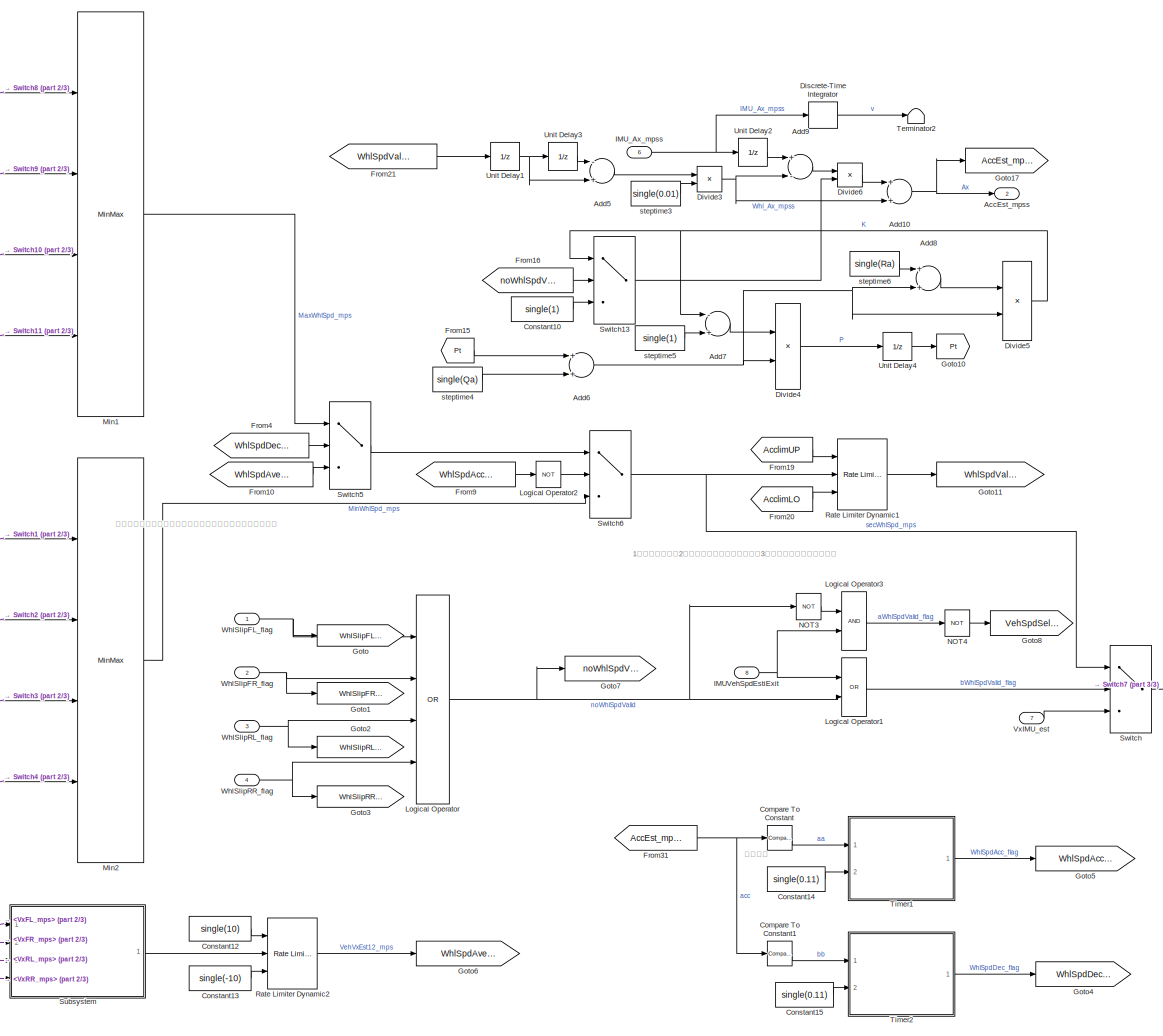
[diagram: Input_Processing/Subsystem/WhlSpdSelect - part 1/3, center side, full height]
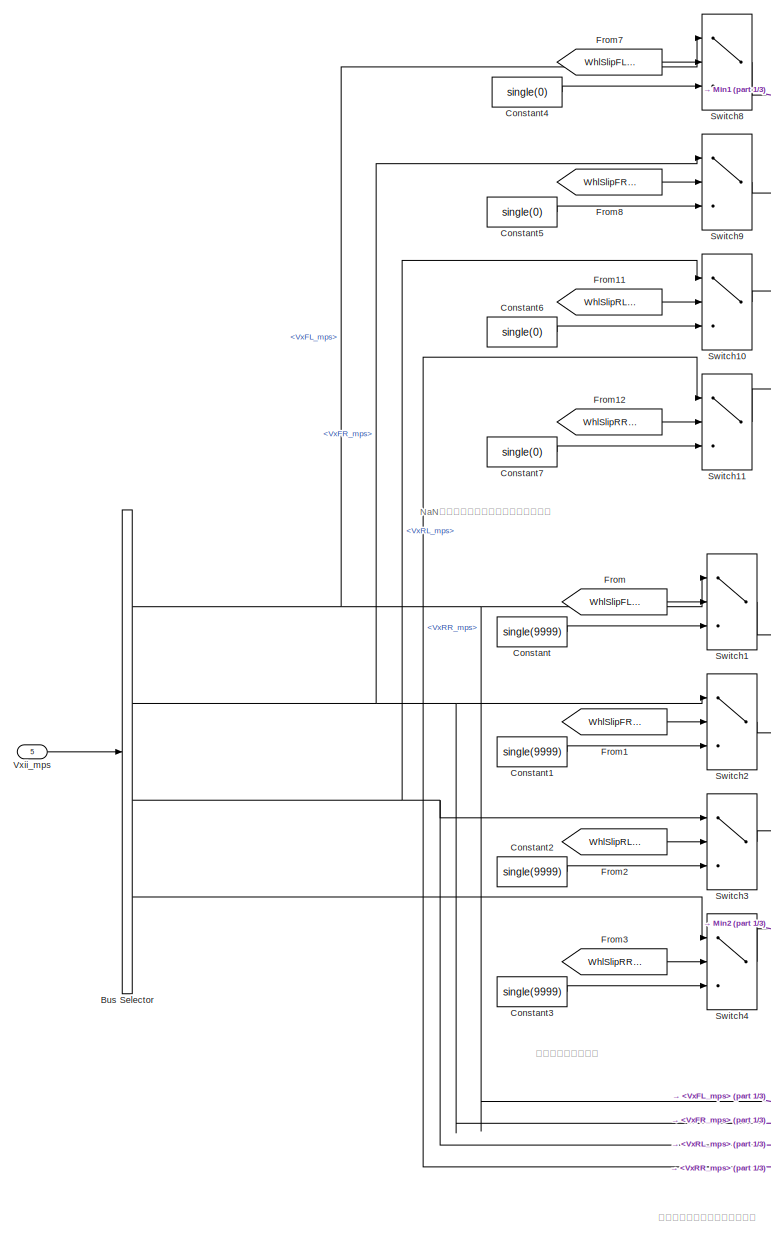
[diagram: Input_Processing/Subsystem/WhlSpdSelect - part 2/3, left side, full height]
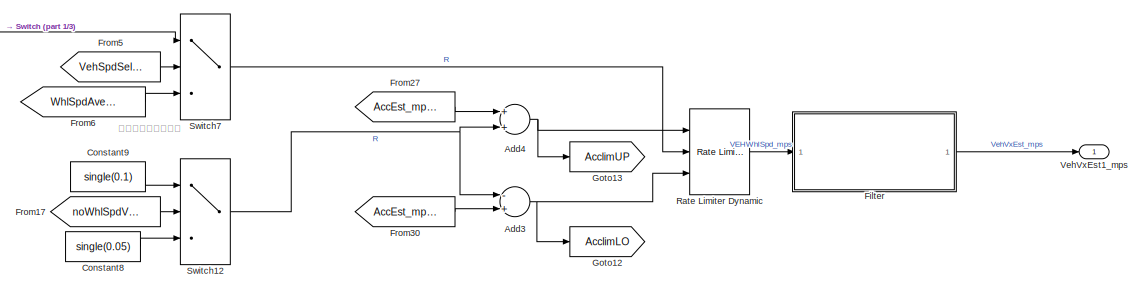
[diagram: Input_Processing/Subsystem/WhlSpdSelect - part 3/3, bottom right region]
BLOCK [SubSystem] Input_Processing/Subsystem/WhlSpdSelect
  Ports = [8, 2]
  RequestExecContextInheritance = off
BLOCK [Outport] Input_Processing/Subsystem/WhlSpdSelect/AccEst_mpss
  IconDisplay = Port number
  Port = 2
BLOCK [Sum] Input_Processing/Subsystem/WhlSpdSelect/Add10
  InputSameDT = off
  OutDataTypeStr = Inherit: Inherit via internal rule
  Ports = [2, 1]
  SaturateOnIntegerOverflow = off
BLOCK [Sum] Input_Processing/Subsystem/WhlSpdSelect/Add3
  InputSameDT = off
  Inputs = -+
  OutDataTypeStr = Inherit: Inherit via internal rule
  Ports = [2, 1]
  SaturateOnIntegerOverflow = off
BLOCK [Sum] Input_Processing/Subsystem/WhlSpdSelect/Add4
  InputSameDT = off
  OutDataTypeStr = Inherit: Inherit via internal rule
  Ports = [2, 1]
  SaturateOnIntegerOverflow = off
BLOCK [Sum] Input_Processing/Subsystem/WhlSpdSelect/Add5
  InputSameDT = off
  Inputs = -+
  OutDataTypeStr = Inherit: Inherit via internal rule
  Ports = [2, 1]
  SaturateOnIntegerOverflow = off
BLOCK [Sum] Input_Processing/Subsystem/WhlSpdSelect/Add6
  InputSameDT = off
  OutDataTypeStr = Inherit: Inherit via internal rule
  Ports = [2, 1]
  SaturateOnIntegerOverflow = off
BLOCK [Sum] Input_Processing/Subsystem/WhlSpdSelect/Add7
  InputSameDT = off
  Inputs = -+
  OutDataTypeStr = Inherit: Inherit via internal rule
  Ports = [2, 1]
  SaturateOnIntegerOverflow = off
BLOCK [Sum] Input_Processing/Subsystem/WhlSpdSelect/Add8
  InputSameDT = off
  OutDataTypeStr = Inherit: Inherit via internal rule
  Ports = [2, 1]
  SaturateOnIntegerOverflow = off
BLOCK [Sum] Input_Processing/Subsystem/WhlSpdSelect/Add9
  InputSameDT = off
  Inputs = +-
  OutDataTypeStr = Inherit: Inherit via internal rule
  Ports = [2, 1]
  SaturateOnIntegerOverflow = off
BLOCK [BusSelector] Input_Processing/Subsystem/WhlSpdSelect/Bus Selector
  OutputAsBus = off
  OutputSignals = VxFL_mps,VxFR_mps,VxRL_mps,VxRR_mps
  Ports = [1, 4]
BLOCK [Reference] Input_Processing/Subsystem/WhlSpdSelect/Compare To Constant  REF=simulink/Logic and Bit
Operations/Compare
To Constant
  Ports = [1, 1]
  SourceBlock = simulink/Logic and Bit\nOperations/Compare\nTo Constant
  SourceProductBaseCode = SL
  SourceProductName = Simulink
  SourceType = Compare To Constant
BLOCK [Reference] Input_Processing/Subsystem/WhlSpdSelect/Compare To Constant1  REF=simulink/Logic and Bit
Operations/Compare
To Constant
  Ports = [1, 1]
  SourceBlock = simulink/Logic and Bit\nOperations/Compare\nTo Constant
  SourceProductBaseCode = SL
  SourceProductName = Simulink
  SourceType = Compare To Constant
BLOCK [Constant] Input_Processing/Subsystem/WhlSpdSelect/Constant
  Value = single(9999)
BLOCK [Constant] Input_Processing/Subsystem/WhlSpdSelect/Constant1
  Value = single(9999)
BLOCK [Constant] Input_Processing/Subsystem/WhlSpdSelect/Constant10
  Value = single(1)
BLOCK [Constant] Input_Processing/Subsystem/WhlSpdSelect/Constant12
  Value = single(10)
BLOCK [Constant] Input_Processing/Subsystem/WhlSpdSelect/Constant13
  Value = single(-10)
BLOCK [Constant] Input_Processing/Subsystem/WhlSpdSelect/Constant14
  Value = single(0.11)
BLOCK [Constant] Input_Processing/Subsystem/WhlSpdSelect/Constant15
  Value = single(0.11)
BLOCK [Constant] Input_Processing/Subsystem/WhlSpdSelect/Constant2
  Value = single(9999)
BLOCK [Constant] Input_Processing/Subsystem/WhlSpdSelect/Constant3
  Value = single(9999)
BLOCK [Constant] Input_Processing/Subsystem/WhlSpdSelect/Constant4
  Value = single(0)
BLOCK [Constant] Input_Processing/Subsystem/WhlSpdSelect/Constant5
  Value = single(0)
BLOCK [Constant] Input_Processing/Subsystem/WhlSpdSelect/Constant6
  Value = single(0)
BLOCK [Constant] Input_Processing/Subsystem/WhlSpdSelect/Constant7
  Value = single(0)
BLOCK [Constant] Input_Processing/Subsystem/WhlSpdSelect/Constant8
  Value = single(0.05)
BLOCK [Constant] Input_Processing/Subsystem/WhlSpdSelect/Constant9
  Value = single(0.1)
BLOCK [DiscreteIntegrator] Input_Processing/Subsystem/WhlSpdSelect/Discrete-Time Integrator
  ICPrevOutput = DiscIntNeverNeededParam
  ICPrevScaledInput = DiscIntNeverNeededParam
  InitialConditionSetting = Auto
  Ports = [1, 1]
  SampleTime = -1
BLOCK [Product] Input_Processing/Subsystem/WhlSpdSelect/Divide3
  InputSameDT = off
  Inputs = */
  OutDataTypeStr = Inherit: Inherit via internal rule
  Ports = [2, 1]
  RndMeth = Floor
  SaturateOnIntegerOverflow = off
BLOCK [Product] Input_Processing/Subsystem/WhlSpdSelect/Divide4
  InputSameDT = off
  Inputs = **
  OutDataTypeStr = Inherit: Inherit via internal rule
  Ports = [2, 1]
  RndMeth = Floor
  SaturateOnIntegerOverflow = off
BLOCK [Product] Input_Processing/Subsystem/WhlSpdSelect/Divide5
  InputSameDT = off
  Inputs = /*
  OutDataTypeStr = Inherit: Inherit via internal rule
  Ports = [2, 1]
  RndMeth = Floor
  SaturateOnIntegerOverflow = off
BLOCK [Product] Input_Processing/Subsystem/WhlSpdSelect/Divide6
  InputSameDT = off
  Inputs = **
  OutDataTypeStr = Inherit: Inherit via internal rule
  Ports = [2, 1]
  RndMeth = Floor
  SaturateOnIntegerOverflow = off
BLOCK [SubSystem] Input_Processing/Subsystem/WhlSpdSelect/Filter
  Ports = [1, 1]
  RequestExecContextInheritance = off
BLOCK [Sum] Input_Processing/Subsystem/WhlSpdSelect/Filter/Add
  InputSameDT = off
  OutDataTypeStr = Inherit: Inherit via internal rule
  Ports = [2, 1]
  SaturateOnIntegerOverflow = off
BLOCK [Constant] Input_Processing/Subsystem/WhlSpdSelect/Filter/Constant
  Value = single(0)
BLOCK [Constant] Input_Processing/Subsystem/WhlSpdSelect/Filter/Constant1
  Value = single(100)
BLOCK [Constant] Input_Processing/Subsystem/WhlSpdSelect/Filter/Constant2
  Value = single(15)
BLOCK [Constant] Input_Processing/Subsystem/WhlSpdSelect/Filter/Constant3
  Value = single(-15)
BLOCK [Gain] Input_Processing/Subsystem/WhlSpdSelect/Filter/Gain
  Gain = 0
  OutDataTypeStr = Inherit: Inherit via internal rule
  ParamDataTypeStr = Inherit: Inherit via internal rule
  SaturateOnIntegerOverflow = off
BLOCK [Gain] Input_Processing/Subsystem/WhlSpdSelect/Filter/Gain1
  OutDataTypeStr = Inherit: Inherit via internal rule
  ParamDataTypeStr = Inherit: Inherit via internal rule
  SaturateOnIntegerOverflow = off
BLOCK [Inport] Input_Processing/Subsystem/WhlSpdSelect/Filter/In
  IconDisplay = Port number
BLOCK [Reference] Input_Processing/Subsystem/WhlSpdSelect/Filter/Rate Limiter Dynamic  REF=simulink/Discontinuities/Rate Limiter
Dynamic
  Ports = [3, 1]
  SourceBlock = simulink/Discontinuities/Rate Limiter\nDynamic
  SourceProductBaseCode = SL
  SourceProductName = Simulink
  SourceType = Rate Limiter Dynamic
BLOCK [Reference] Input_Processing/Subsystem/WhlSpdSelect/Filter/Saturation Dynamic  REF=simulink/Discontinuities/Saturation
Dynamic
  Ports = [3, 1]
  SourceBlock = simulink/Discontinuities/Saturation\nDynamic
  SourceProductBaseCode = SL
  SourceProductName = Simulink
  SourceType = Saturation Dynamic
BLOCK [UnitDelay] Input_Processing/Subsystem/WhlSpdSelect/Filter/Unit Delay
  HasFrameUpgradeWarning = on
  SampleTime = -1
BLOCK [Outport] Input_Processing/Subsystem/WhlSpdSelect/Filter/VehVxEst_mps
  IconDisplay = Port number
BLOCK [From] Input_Processing/Subsystem/WhlSpdSelect/From
  GotoTag = WhlSlipFL_flag
BLOCK [From] Input_Processing/Subsystem/WhlSpdSelect/From1
  GotoTag = WhlSlipFR_flag
BLOCK [From] Input_Processing/Subsystem/WhlSpdSelect/From10
  GotoTag = WhlSpdAve_mps
BLOCK [From] Input_Processing/Subsystem/WhlSpdSelect/From11
  GotoTag = WhlSlipRL_flag
BLOCK [From] Input_Processing/Subsystem/WhlSpdSelect/From12
  GotoTag = WhlSlipRR_flag
BLOCK [From] Input_Processing/Subsystem/WhlSpdSelect/From15
  GotoTag = Pt
BLOCK [From] Input_Processing/Subsystem/WhlSpdSelect/From16
  GotoTag = noWhlSpdValid
BLOCK [From] Input_Processing/Subsystem/WhlSpdSelect/From17
  GotoTag = noWhlSpdValid
BLOCK [From] Input_Processing/Subsystem/WhlSpdSelect/From19
  GotoTag = AcclimUP
BLOCK [From] Input_Processing/Subsystem/WhlSpdSelect/From2
  GotoTag = WhlSlipRL_flag
BLOCK [From] Input_Processing/Subsystem/WhlSpdSelect/From20
  GotoTag = AcclimLO
BLOCK [From] Input_Processing/Subsystem/WhlSpdSelect/From21
  GotoTag = WhlSpdValid_mps
BLOCK [From] Input_Processing/Subsystem/WhlSpdSelect/From27
  GotoTag = AccEst_mpss
BLOCK [From] Input_Processing/Subsystem/WhlSpdSelect/From3
  GotoTag = WhlSlipRR_flag
BLOCK [From] Input_Processing/Subsystem/WhlSpdSelect/From30
  GotoTag = AccEst_mpss
BLOCK [From] Input_Processing/Subsystem/WhlSpdSelect/From31
  GotoTag = AccEst_mpss
BLOCK [From] Input_Processing/Subsystem/WhlSpdSelect/From4
  GotoTag = WhlSpdDec_flag
BLOCK [From] Input_Processing/Subsystem/WhlSpdSelect/From5
  GotoTag = VehSpdSel_flag
BLOCK [From] Input_Processing/Subsystem/WhlSpdSelect/From6
  GotoTag = WhlSpdAve_mps
BLOCK [From] Input_Processing/Subsystem/WhlSpdSelect/From7
  GotoTag = WhlSlipFL_flag
BLOCK [From] Input_Processing/Subsystem/WhlSpdSelect/From8
  GotoTag = WhlSlipFR_flag
BLOCK [From] Input_Processing/Subsystem/WhlSpdSelect/From9
  GotoTag = WhlSpdAcc_flag
BLOCK [Goto] Input_Processing/Subsystem/WhlSpdSelect/Goto
  GotoTag = WhlSlipFL_flag
BLOCK [Goto] Input_Processing/Subsystem/WhlSpdSelect/Goto1
  GotoTag = WhlSlipFR_flag
BLOCK [Goto] Input_Processing/Subsystem/WhlSpdSelect/Goto10
  GotoTag = Pt
BLOCK [Goto] Input_Processing/Subsystem/WhlSpdSelect/Goto11
  GotoTag = WhlSpdValid_mps
BLOCK [Goto] Input_Processing/Subsystem/WhlSpdSelect/Goto12
  GotoTag = AcclimLO
BLOCK [Goto] Input_Processing/Subsystem/WhlSpdSelect/Goto13
  GotoTag = AcclimUP
BLOCK [Goto] Input_Processing/Subsystem/WhlSpdSelect/Goto17
  GotoTag = AccEst_mpss
BLOCK [Goto] Input_Processing/Subsystem/WhlSpdSelect/Goto2
  GotoTag = WhlSlipRL_flag
BLOCK [Goto] Input_Processing/Subsystem/WhlSpdSelect/Goto3
  GotoTag = WhlSlipRR_flag
BLOCK [Goto] Input_Processing/Subsystem/WhlSpdSelect/Goto4
  GotoTag = WhlSpdDec_flag
BLOCK [Goto] Input_Processing/Subsystem/WhlSpdSelect/Goto5
  GotoTag = WhlSpdAcc_flag
BLOCK [Goto] Input_Processing/Subsystem/WhlSpdSelect/Goto6
  GotoTag = WhlSpdAve_mps
BLOCK [Goto] Input_Processing/Subsystem/WhlSpdSelect/Goto7
  GotoTag = noWhlSpdValid
BLOCK [Goto] Input_Processing/Subsystem/WhlSpdSelect/Goto8
  GotoTag = VehSpdSel_flag
BLOCK [Inport] Input_Processing/Subsystem/WhlSpdSelect/IMUVehSpdEstiExit
  IconDisplay = Port number
  Port = 8
BLOCK [Inport] Input_Processing/Subsystem/WhlSpdSelect/IMU_Ax_mpss
  IconDisplay = Port number
  Port = 6
BLOCK [Logic] Input_Processing/Subsystem/WhlSpdSelect/Logical Operator
  AllPortsSameDT = off
  Inputs = 4
  Operator = OR
  OutDataTypeStr = boolean
  Ports = [4, 1]
BLOCK [Logic] Input_Processing/Subsystem/WhlSpdSelect/Logical Operator1
  AllPortsSameDT = off
  Operator = OR
  OutDataTypeStr = boolean
  Ports = [2, 1]
BLOCK [Logic] Input_Processing/Subsystem/WhlSpdSelect/Logical Operator2
  AllPortsSameDT = off
  Operator = NOT
  OutDataTypeStr = boolean
  Ports = [1, 1]
BLOCK [Logic] Input_Processing/Subsystem/WhlSpdSelect/Logical Operator3
  AllPortsSameDT = off
  OutDataTypeStr = boolean
  Ports = [2, 1]
BLOCK [MinMax] Input_Processing/Subsystem/WhlSpdSelect/Min1
  Function = max
  InputSameDT = off
  Inputs = 4
  Ports = [4, 1]
  SaturateOnIntegerOverflow = off
BLOCK [MinMax] Input_Processing/Subsystem/WhlSpdSelect/Min2
  InputSameDT = off
  Inputs = 4
  Ports = [4, 1]
  SaturateOnIntegerOverflow = off
BLOCK [Logic] Input_Processing/Subsystem/WhlSpdSelect/NOT3
  AllPortsSameDT = off
  Operator = NOT
  OutDataTypeStr = boolean
  Ports = [1, 1]
BLOCK [Logic] Input_Processing/Subsystem/WhlSpdSelect/NOT4
  AllPortsSameDT = off
  Operator = NOT
  OutDataTypeStr = boolean
  Ports = [1, 1]
BLOCK [Reference] Input_Processing/Subsystem/WhlSpdSelect/Rate Limiter Dynamic  REF=simulink/Discontinuities/Rate Limiter
Dynamic
  Ports = [3, 1]
  SourceBlock = simulink/Discontinuities/Rate Limiter\nDynamic
  SourceProductBaseCode = SL
  SourceProductName = Simulink
  SourceType = Rate Limiter Dynamic
BLOCK [Reference] Input_Processing/Subsystem/WhlSpdSelect/Rate Limiter Dynamic1  REF=simulink/Discontinuities/Rate Limiter
Dynamic
  Ports = [3, 1]
  SourceBlock = simulink/Discontinuities/Rate Limiter\nDynamic
  SourceProductBaseCode = SL
  SourceProductName = Simulink
  SourceType = Rate Limiter Dynamic
BLOCK [Reference] Input_Processing/Subsystem/WhlSpdSelect/Rate Limiter Dynamic2  REF=simulink/Discontinuities/Rate Limiter
Dynamic
  Ports = [3, 1]
  SourceBlock = simulink/Discontinuities/Rate Limiter\nDynamic
  SourceProductBaseCode = SL
  SourceProductName = Simulink
  SourceType = Rate Limiter Dynamic
BLOCK [SubSystem] Input_Processing/Subsystem/WhlSpdSelect/Subsystem
  Ports = [4, 1]
  RequestExecContextInheritance = off
BLOCK [Inport] Input_Processing/Subsystem/WhlSpdSelect/Subsystem/<VxFL_mps>
  IconDisplay = Port number
BLOCK [Inport] Input_Processing/Subsystem/WhlSpdSelect/Subsystem/<VxFR_mps>
  IconDisplay = Port number
  Port = 2
BLOCK [Inport] Input_Processing/Subsystem/WhlSpdSelect/Subsystem/<VxRL_mps>
  IconDisplay = Port number
  Port = 3
BLOCK [Inport] Input_Processing/Subsystem/WhlSpdSelect/Subsystem/<VxRR_mps>
  IconDisplay = Port number
  Port = 4
BLOCK [Sum] Input_Processing/Subsystem/WhlSpdSelect/Subsystem/Add3
  InputSameDT = off
  Inputs = ++++
  OutDataTypeStr = Inherit: Inherit via internal rule
  Ports = [4, 1]
  SaturateOnIntegerOverflow = off
BLOCK [Sum] Input_Processing/Subsystem/WhlSpdSelect/Subsystem/Add4
  InputSameDT = off
  Inputs = +--
  OutDataTypeStr = Inherit: Inherit via internal rule
  Ports = [3, 1]
  SaturateOnIntegerOverflow = off
BLOCK [Gain] Input_Processing/Subsystem/WhlSpdSelect/Subsystem/Gain1
  Gain = 1/2
  OutDataTypeStr = Inherit: Inherit via internal rule
  ParamDataTypeStr = Inherit: Inherit via internal rule
  SaturateOnIntegerOverflow = off
BLOCK [Outport] Input_Processing/Subsystem/WhlSpdSelect/Subsystem/MiddleWhlSpd_mps
  IconDisplay = Port number
BLOCK [MinMax] Input_Processing/Subsystem/WhlSpdSelect/Subsystem/Min3
  Function = max
  InputSameDT = off
  Inputs = 4
  Ports = [4, 1]
  SaturateOnIntegerOverflow = off
BLOCK [MinMax] Input_Processing/Subsystem/WhlSpdSelect/Subsystem/Min4
  InputSameDT = off
  Inputs = 4
  Ports = [4, 1]
  SaturateOnIntegerOverflow = off
BLOCK [SubSystem] Input_Processing/Subsystem/WhlSpdSelect/Subsystem/Subsystem
  Commented = on
  Ports = [4, 1]
  RequestExecContextInheritance = off
BLOCK [Sum] Input_Processing/Subsystem/WhlSpdSelect/Subsystem/Subsystem/Add
  Commented = on
  InputSameDT = off
  Inputs = ++++
  OutDataTypeStr = Inherit: Inherit via internal rule
  Ports = [4, 1]
  SaturateOnIntegerOverflow = off
BLOCK [Sum] Input_Processing/Subsystem/WhlSpdSelect/Subsystem/Subsystem/Add1
  Commented = on
  InputSameDT = off
  Inputs = +--
  OutDataTypeStr = Inherit: Inherit via internal rule
  Ports = [3, 1]
  SaturateOnIntegerOverflow = off
BLOCK [Sum] Input_Processing/Subsystem/WhlSpdSelect/Subsystem/Subsystem/Add2
  Commented = on
  InputSameDT = off
  Inputs = -+
  OutDataTypeStr = Inherit: Inherit via internal rule
  Ports = [2, 1]
  SaturateOnIntegerOverflow = off
BLOCK [Reference] Input_Processing/Subsystem/WhlSpdSelect/Subsystem/Subsystem/Compare To Constant1  REF=simulink/Logic and Bit
Operations/Compare
To Constant
  Commented = on
  Ports = [1, 1]
  SourceBlock = simulink/Logic and Bit\nOperations/Compare\nTo Constant
  SourceProductBaseCode = SL
  SourceProductName = Simulink
  SourceType = Compare To Constant
BLOCK [Reference] Input_Processing/Subsystem/WhlSpdSelect/Subsystem/Subsystem/Compare To Constant2  REF=simulink/Logic and Bit
Operations/Compare
To Constant
  Commented = on
  Ports = [1, 1]
  SourceBlock = simulink/Logic and Bit\nOperations/Compare\nTo Constant
  SourceProductBaseCode = SL
  SourceProductName = Simulink
  SourceType = Compare To Constant
BLOCK [Product] Input_Processing/Subsystem/WhlSpdSelect/Subsystem/Subsystem/Divide1
  Commented = on
  InputSameDT = off
  Inputs = */
  OutDataTypeStr = Inherit: Inherit via internal rule
  Ports = [2, 1]
  RndMeth = Floor
  SaturateOnIntegerOverflow = off
BLOCK [Gain] Input_Processing/Subsystem/WhlSpdSelect/Subsystem/Subsystem/Gain
  Commented = on
  Gain = 1/2
  OutDataTypeStr = Inherit: Inherit via internal rule
  ParamDataTypeStr = Inherit: Inherit via internal rule
  SaturateOnIntegerOverflow = off
BLOCK [Inport] Input_Processing/Subsystem/WhlSpdSelect/Subsystem/Subsystem/In1
  IconDisplay = Port number
BLOCK [Inport] Input_Processing/Subsystem/WhlSpdSelect/Subsystem/Subsystem/In2
  IconDisplay = Port number
  Port = 2
BLOCK [Inport] Input_Processing/Subsystem/WhlSpdSelect/Subsystem/Subsystem/In3
  IconDisplay = Port number
  Port = 3
BLOCK [Inport] Input_Processing/Subsystem/WhlSpdSelect/Subsystem/Subsystem/In4
  IconDisplay = Port number
  Port = 4
BLOCK [MinMax] Input_Processing/Subsystem/WhlSpdSelect/Subsystem/Subsystem/Max
  Commented = on
  Function = max
  InputSameDT = off
  Inputs = 3
  Ports = [3, 1]
  SaturateOnIntegerOverflow = off
BLOCK [MinMax] Input_Processing/Subsystem/WhlSpdSelect/Subsystem/Subsystem/Max1
  Commented = on
  Function = max
  InputSameDT = off
  Inputs = 3
  Ports = [3, 1]
  SaturateOnIntegerOverflow = off
BLOCK [MinMax] Input_Processing/Subsystem/WhlSpdSelect/Subsystem/Subsystem/Max2
  Commented = on
  InputSameDT = off
  Inputs = 2
  Ports = [2, 1]
  SaturateOnIntegerOverflow = off
BLOCK [MinMax] Input_Processing/Subsystem/WhlSpdSelect/Subsystem/Subsystem/Max3
  Commented = on
  InputSameDT = off
  Inputs = 3
  Ports = [3, 1]
  SaturateOnIntegerOverflow = off
BLOCK [MinMax] Input_Processing/Subsystem/WhlSpdSelect/Subsystem/Subsystem/Max4
  Commented = on
  InputSameDT = off
  Inputs = 3
  Ports = [3, 1]
  SaturateOnIntegerOverflow = off
BLOCK [MinMax] Input_Processing/Subsystem/WhlSpdSelect/Subsystem/Subsystem/Max5
  Commented = on
  Function = max
  InputSameDT = off
  Inputs = 2
  Ports = [2, 1]
  SaturateOnIntegerOverflow = off
BLOCK [MinMax] Input_Processing/Subsystem/WhlSpdSelect/Subsystem/Subsystem/Min1
  Commented = on
  Function = max
  InputSameDT = off
  Inputs = 4
  Ports = [4, 1]
  SaturateOnIntegerOverflow = off
BLOCK [MinMax] Input_Processing/Subsystem/WhlSpdSelect/Subsystem/Subsystem/Min2
  Commented = on
  InputSameDT = off
  Inputs = 4
  Ports = [4, 1]
  SaturateOnIntegerOverflow = off
BLOCK [Logic] Input_Processing/Subsystem/WhlSpdSelect/Subsystem/Subsystem/NOT
  AllPortsSameDT = off
  Commented = on
  Operator = NOT
  OutDataTypeStr = boolean
  Ports = [1, 1]
BLOCK [Outport] Input_Processing/Subsystem/WhlSpdSelect/Subsystem/Subsystem/Out1
  IconDisplay = Port number
BLOCK [Switch] Input_Processing/Subsystem/WhlSpdSelect/Subsystem/Subsystem/Switch
  Commented = on
  Criteria = u2 ~= 0
  InputSameDT = off
  SaturateOnIntegerOverflow = off
BLOCK [Switch] Input_Processing/Subsystem/WhlSpdSelect/Subsystem/Subsystem/Switch1
  Commented = on
  Criteria = u2 ~= 0
  InputSameDT = off
  SaturateOnIntegerOverflow = off
BLOCK [UnitDelay] Input_Processing/Subsystem/WhlSpdSelect/Subsystem/Subsystem/Unit Delay1
  Commented = on
  HasFrameUpgradeWarning = on
  SampleTime = -1
BLOCK [Constant] Input_Processing/Subsystem/WhlSpdSelect/Subsystem/Subsystem/steptime1
  Commented = on
  Value = single(0.01)
BLOCK [Switch] Input_Processing/Subsystem/WhlSpdSelect/Switch
  Criteria = u2 ~= 0
  InputSameDT = off
  SaturateOnIntegerOverflow = off
BLOCK [Switch] Input_Processing/Subsystem/WhlSpdSelect/Switch1
  Criteria = u2 ~= 0
  InputSameDT = off
  SaturateOnIntegerOverflow = off
BLOCK [Switch] Input_Processing/Subsystem/WhlSpdSelect/Switch10
  Criteria = u2 ~= 0
  InputSameDT = off
  SaturateOnIntegerOverflow = off
BLOCK [Switch] Input_Processing/Subsystem/WhlSpdSelect/Switch11
  Criteria = u2 ~= 0
  InputSameDT = off
  SaturateOnIntegerOverflow = off
BLOCK [Switch] Input_Processing/Subsystem/WhlSpdSelect/Switch12
  Criteria = u2 ~= 0
  InputSameDT = off
  SaturateOnIntegerOverflow = off
BLOCK [Switch] Input_Processing/Subsystem/WhlSpdSelect/Switch13
  Criteria = u2 ~= 0
  InputSameDT = off
  SaturateOnIntegerOverflow = off
BLOCK [Switch] Input_Processing/Subsystem/WhlSpdSelect/Switch2
  Criteria = u2 ~= 0
  InputSameDT = off
  SaturateOnIntegerOverflow = off
BLOCK [Switch] Input_Processing/Subsystem/WhlSpdSelect/Switch3
  Criteria = u2 ~= 0
  InputSameDT = off
  SaturateOnIntegerOverflow = off
BLOCK [Switch] Input_Processing/Subsystem/WhlSpdSelect/Switch4
  Criteria = u2 ~= 0
  InputSameDT = off
  SaturateOnIntegerOverflow = off
BLOCK [Switch] Input_Processing/Subsystem/WhlSpdSelect/Switch5
  Criteria = u2 ~= 0
  InputSameDT = off
  SaturateOnIntegerOverflow = off
BLOCK [Switch] Input_Processing/Subsystem/WhlSpdSelect/Switch6
  Criteria = u2 ~= 0
  InputSameDT = off
  SaturateOnIntegerOverflow = off
BLOCK [Switch] Input_Processing/Subsystem/WhlSpdSelect/Switch7
  Criteria = u2 ~= 0
  InputSameDT = off
  SaturateOnIntegerOverflow = off
BLOCK [Switch] Input_Processing/Subsystem/WhlSpdSelect/Switch8
  Criteria = u2 ~= 0
  InputSameDT = off
  SaturateOnIntegerOverflow = off
BLOCK [Switch] Input_Processing/Subsystem/WhlSpdSelect/Switch9
  Criteria = u2 ~= 0
  InputSameDT = off
  SaturateOnIntegerOverflow = off
BLOCK [Terminator] Input_Processing/Subsystem/WhlSpdSelect/Terminator2
BLOCK [SubSystem] Input_Processing/Subsystem/WhlSpdSelect/Timer1
  ErrorFcn = Stateflow.Translate.translate
  PermitHierarchicalResolution = ExplicitOnly
  Ports = [2, 1]
  RequestExecContextInheritance = off
  SFBlockType = Chart
  TreatAsAtomicUnit = on
BLOCK [Demux] Input_Processing/Subsystem/WhlSpdSelect/Timer1/ Demux 
  Outputs = 1
  Ports = [1, 1]
BLOCK [S-Function] Input_Processing/Subsystem/WhlSpdSelect/Timer1/ SFunction 
  EnableBusSupport = off
  FunctionName = sf_sfun
  Parameters = 0
  PortCounts = [2 2]
  Ports = [2, 2]
  SFcnIsStateOwnerBlock = off
  SFunctionDeploymentMode = off
  Tag = Stateflow S-Function 15
BLOCK [Terminator] Input_Processing/Subsystem/WhlSpdSelect/Timer1/ Terminator 
BLOCK [Inport] Input_Processing/Subsystem/WhlSpdSelect/Timer1/CountTime
  IconDisplay = Port number
  Port = 2
BLOCK [Outport] Input_Processing/Subsystem/WhlSpdSelect/Timer1/Exit
  IconDisplay = Port number
BLOCK [Inport] Input_Processing/Subsystem/WhlSpdSelect/Timer1/Trigger
  IconDisplay = Port number
BLOCK [SubSystem] Input_Processing/Subsystem/WhlSpdSelect/Timer2
  ErrorFcn = Stateflow.Translate.translate
  PermitHierarchicalResolution = ExplicitOnly
  Ports = [2, 1]
  RequestExecContextInheritance = off
  SFBlockType = Chart
  TreatAsAtomicUnit = on
BLOCK [Demux] Input_Processing/Subsystem/WhlSpdSelect/Timer2/ Demux 
  Outputs = 1
  Ports = [1, 1]
BLOCK [S-Function] Input_Processing/Subsystem/WhlSpdSelect/Timer2/ SFunction 
  EnableBusSupport = off
  FunctionName = sf_sfun
  Parameters = 0
  PortCounts = [2 2]
  Ports = [2, 2]
  SFcnIsStateOwnerBlock = off
  SFunctionDeploymentMode = off
  Tag = Stateflow S-Function 16
BLOCK [Terminator] Input_Processing/Subsystem/WhlSpdSelect/Timer2/ Terminator 
BLOCK [Inport] Input_Processing/Subsystem/WhlSpdSelect/Timer2/CountTime
  IconDisplay = Port number
  Port = 2
BLOCK [Outport] Input_Processing/Subsystem/WhlSpdSelect/Timer2/Exit
  IconDisplay = Port number
BLOCK [Inport] Input_Processing/Subsystem/WhlSpdSelect/Timer2/Trigger
  IconDisplay = Port number
BLOCK [UnitDelay] Input_Processing/Subsystem/WhlSpdSelect/Unit Delay1
  HasFrameUpgradeWarning = on
  SampleTime = -1
BLOCK [UnitDelay] Input_Processing/Subsystem/WhlSpdSelect/Unit Delay2
  HasFrameUpgradeWarning = on
  SampleTime = -1
BLOCK [UnitDelay] Input_Processing/Subsystem/WhlSpdSelect/Unit Delay3
  HasFrameUpgradeWarning = on
  SampleTime = -1
BLOCK [UnitDelay] Input_Processing/Subsystem/WhlSpdSelect/Unit Delay4
  HasFrameUpgradeWarning = on
  InitialCondition = 0.01
  SampleTime = -1
BLOCK [Outport] Input_Processing/Subsystem/WhlSpdSelect/VehVxEst1_mps
  IconDisplay = Port number
BLOCK [Inport] Input_Processing/Subsystem/WhlSpdSelect/VxIMU_est
  IconDisplay = Port number
  Port = 7
BLOCK [Inport] Input_Processing/Subsystem/WhlSpdSelect/Vxii_mps
  IconDisplay = Port number
  Port = 5
BLOCK [Inport] Input_Processing/Subsystem/WhlSpdSelect/WhlSlipFL_flag
  IconDisplay = Port number
BLOCK [Inport] Input_Processing/Subsystem/WhlSpdSelect/WhlSlipFR_flag
  IconDisplay = Port number
  Port = 2
BLOCK [Inport] Input_Processing/Subsystem/WhlSpdSelect/WhlSlipRL_flag
  IconDisplay = Port number
  Port = 3
BLOCK [Inport] Input_Processing/Subsystem/WhlSpdSelect/WhlSlipRR_flag
  IconDisplay = Port number
  Port = 4
BLOCK [Constant] Input_Processing/Subsystem/WhlSpdSelect/steptime3
  Value = single(0.01)
BLOCK [Constant] Input_Processing/Subsystem/WhlSpdSelect/steptime4
  Value = single(Qa)
BLOCK [Constant] Input_Processing/Subsystem/WhlSpdSelect/steptime5
  Value = single(1)
BLOCK [Constant] Input_Processing/Subsystem/WhlSpdSelect/steptime6
  Value = single(Ra)
BLOCK [TriggerPort] Input_Processing/Subsystem/function
  Ports = []
  StatesWhenEnabling = held
  TriggerType = function-call
  VariantControl = (inherit)
BLOCK [SubSystem] Input_Processing/Subsystem/坐标系转换
  Ports = [7, 2]
  RequestExecContextInheritance = off
BLOCK [Sum] Input_Processing/Subsystem/坐标系转换/Add
  InputSameDT = off
  Inputs = +-
  OutDataTypeStr = Inherit: Inherit via internal rule
  Ports = [2, 1]
  SaturateOnIntegerOverflow = off
BLOCK [Sum] Input_Processing/Subsystem/坐标系转换/Add1
  InputSameDT = off
  OutDataTypeStr = Inherit: Inherit via internal rule
  Ports = [2, 1]
  SaturateOnIntegerOverflow = off
BLOCK [Sum] Input_Processing/Subsystem/坐标系转换/Add2
  InputSameDT = off
  Inputs = +-
  OutDataTypeStr = Inherit: Inherit via internal rule
  Ports = [2, 1]
  SaturateOnIntegerOverflow = off
BLOCK [Sum] Input_Processing/Subsystem/坐标系转换/Add3
  InputSameDT = off
  OutDataTypeStr = Inherit: Inherit via internal rule
  Ports = [2, 1]
  SaturateOnIntegerOverflow = off
BLOCK [Trigonometry] Input_Processing/Subsystem/坐标系转换/Asin
  Operator = cos
  Ports = [1, 1]
BLOCK [Trigonometry] Input_Processing/Subsystem/坐标系转换/Asin1
  Operator = cos
  Ports = [1, 1]
BLOCK [BusCreator] Input_Processing/Subsystem/坐标系转换/Bus Creator
  DisplayOption = bar
  InheritFromInputs = on
  Inputs = 4
  Ports = [4, 1]
BLOCK [Constant] Input_Processing/Subsystem/坐标系转换/Constant
  Value = single(Ldwr)
BLOCK [Constant] Input_Processing/Subsystem/坐标系转换/Constant1
  Value = single(Ldwf)
BLOCK [From] Input_Processing/Subsystem/坐标系转换/From
  GotoTag = Vldwr
BLOCK [From] Input_Processing/Subsystem/坐标系转换/From2
  GotoTag = Vldwf
BLOCK [Gain] Input_Processing/Subsystem/坐标系转换/Gain
  Gain = 1/2
  OutDataTypeStr = Inherit: Inherit via internal rule
  ParamDataTypeStr = Inherit: Inherit via internal rule
  SaturateOnIntegerOverflow = off
BLOCK [Gain] Input_Processing/Subsystem/坐标系转换/Gain1
  Gain = 1/2
  OutDataTypeStr = Inherit: Inherit via internal rule
  ParamDataTypeStr = Inherit: Inherit via internal rule
  SaturateOnIntegerOverflow = off
BLOCK [Gain] Input_Processing/Subsystem/坐标系转换/Gain2
  Gain = pi/180
  OutDataTypeStr = Inherit: Inherit via internal rule
  ParamDataTypeStr = Inherit: Inherit via internal rule
  SaturateOnIntegerOverflow = off
BLOCK [Gain] Input_Processing/Subsystem/坐标系转换/Gain3
  Gain = pi/180
  OutDataTypeStr = Inherit: Inherit via internal rule
  ParamDataTypeStr = Inherit: Inherit via internal rule
  SaturateOnIntegerOverflow = off
BLOCK [Gain] Input_Processing/Subsystem/坐标系转换/Gain4
  Gain = pi/180
  OutDataTypeStr = Inherit: Inherit via internal rule
  ParamDataTypeStr = Inherit: Inherit via internal rule
  SaturateOnIntegerOverflow = off
BLOCK [Goto] Input_Processing/Subsystem/坐标系转换/Goto
  GotoTag = Vldwr
BLOCK [Goto] Input_Processing/Subsystem/坐标系转换/Goto1
  GotoTag = Vldwf
BLOCK [Inport] Input_Processing/Subsystem/坐标系转换/IMU_YawRate_dps
  IconDisplay = Port number
  Port = 5
BLOCK [Outport] Input_Processing/Subsystem/坐标系转换/IMU_YawRate_dps1
  IconDisplay = Port number
  Port = 2
BLOCK [Product] Input_Processing/Subsystem/坐标系转换/Product
  InputSameDT = off
  OutDataTypeStr = Inherit: Inherit via internal rule
  Ports = [2, 1]
  RndMeth = Floor
  SaturateOnIntegerOverflow = off
BLOCK [Product] Input_Processing/Subsystem/坐标系转换/Product1
  InputSameDT = off
  OutDataTypeStr = Inherit: Inherit via internal rule
  Ports = [2, 1]
  RndMeth = Floor
  SaturateOnIntegerOverflow = off
BLOCK [Product] Input_Processing/Subsystem/坐标系转换/Product2
  InputSameDT = off
  OutDataTypeStr = Inherit: Inherit via internal rule
  Ports = [2, 1]
  RndMeth = Floor
  SaturateOnIntegerOverflow = off
BLOCK [Product] Input_Processing/Subsystem/坐标系转换/Product3
  InputSameDT = off
  OutDataTypeStr = Inherit: Inherit via internal rule
  Ports = [2, 1]
  RndMeth = Floor
  SaturateOnIntegerOverflow = off
BLOCK [Outport] Input_Processing/Subsystem/坐标系转换/Vxii_mps
  IconDisplay = Port number
BLOCK [Inport] Input_Processing/Subsystem/坐标系转换/WhlSpdFL_mps
  IconDisplay = Port number
BLOCK [Inport] Input_Processing/Subsystem/坐标系转换/WhlSpdFR_mps
  IconDisplay = Port number
  Port = 2
BLOCK [Inport] Input_Processing/Subsystem/坐标系转换/WhlSpdRL_mps
  IconDisplay = Port number
  Port = 3
BLOCK [Inport] Input_Processing/Subsystem/坐标系转换/WhlSpdRR_mps
  IconDisplay = Port number
  Port = 4
BLOCK [Inport] Input_Processing/Subsystem/坐标系转换/WhlStrAngL_deg
  IconDisplay = Port number
  Port = 6
BLOCK [Inport] Input_Processing/Subsystem/坐标系转换/WhlStrAngR_deg
  IconDisplay = Port number
  Port = 7
BLOCK [SubSystem] OUTPUT
  Ports = [1]
  RequestExecContextInheritance = off
BLOCK [Reference] OUTPUT/10ms  REF=simulink/Ports &
Subsystems/Function-Call
Generator
  Commented = on
  Ports = [0, 1]
  SourceBlock = simulink/Ports &\nSubsystems/Function-Call\nGenerator
  SourceProductBaseCode = SL
  SourceProductName = Simulink
  SourceType = Function-Call Generator
BLOCK [Reference] OUTPUT/10ms1  REF=simulink/Ports &
Subsystems/Function-Call
Generator
  Ports = [0, 1]
  SourceBlock = simulink/Ports &\nSubsystems/Function-Call\nGenerator
  SourceProductBaseCode = SL
  SourceProductName = Simulink
  SourceType = Function-Call Generator
BLOCK [Reference] OUTPUT/10ms2  REF=simulink/Ports &
Subsystems/Function-Call
Generator
  Ports = [0, 1]
  SourceBlock = simulink/Ports &\nSubsystems/Function-Call\nGenerator
  SourceProductBaseCode = SL
  SourceProductName = Simulink
  SourceType = Function-Call Generator
BLOCK [Reference] OUTPUT/10ms3  REF=simulink/Ports &
Subsystems/Function-Call
Generator
  Ports = [0, 1]
  SourceBlock = simulink/Ports &\nSubsystems/Function-Call\nGenerator
  SourceProductBaseCode = SL
  SourceProductName = Simulink
  SourceType = Function-Call Generator
BLOCK [Reference] OUTPUT/10ms4  REF=simulink/Ports &
Subsystems/Function-Call
Generator
  Ports = [0, 1]
  SourceBlock = simulink/Ports &\nSubsystems/Function-Call\nGenerator
  SourceProductBaseCode = SL
  SourceProductName = Simulink
  SourceType = Function-Call Generator
BLOCK [Reference] OUTPUT/10ms6  REF=simulink/Ports &
Subsystems/Function-Call
Generator
  Ports = [0, 1]
  SourceBlock = simulink/Ports &\nSubsystems/Function-Call\nGenerator
  SourceProductBaseCode = SL
  SourceProductName = Simulink
  SourceType = Function-Call Generator
BLOCK [SubSystem] OUTPUT/Beeper
  Ports = [1, 0, 0, 1]
  RequestExecContextInheritance = off
  TreatAsAtomicUnit = on
BLOCK [Inport] OUTPUT/Beeper/Beeper_state
  IconDisplay = Port number
BLOCK [Reference] OUTPUT/Beeper/MeaModule  REF=ec5744lib/RapidECU_U3/07Calibration/MeaModule
  Ports = [1, 1]
  SourceBlock = ec5744lib/RapidECU_U3/07Calibration/MeaModule
  SourceProductName = ECUCoder for MPC5744
  SourceType = Measurement Module
BLOCK [Reference] OUTPUT/Beeper/PowerDriverSwitch(HS)  REF=ec5744lib/RapidECU_U3/02PowerDriverSwitch/PowerDriverSwitch(HS)
  Ports = [1]
  SourceBlock = ec5744lib/RapidECU_U3/02PowerDriverSwitch/PowerDriverSwitch(HS)
  SourceProductName = ECUCoder for MPC5744
  SourceType = RapidECU Power Driver Switch
BLOCK [TriggerPort] OUTPUT/Beeper/function
  Ports = []
  StatesWhenEnabling = held
  TriggerType = function-call
  VariantControl = (inherit)
BLOCK [BusSelector] OUTPUT/Bus Selector
  OutputAsBus = off
  OutputSignals = Motor_CtrlBus,Motor_CtrlBus.TrqFL_cmd,BUS,Motor_CtrlBus.TrqFR_cmd,WP_CTRL.aWaterPumpON,WP_CTRL.LoadOfbWaterPump,BUS.BeeperStOut
  Ports = [1, 7]
BLOCK [Inport] OUTPUT/In1
  IconDisplay = Port number
BLOCK [SubSystem] OUTPUT/VCU2AMKMCUFL
  Ports = [2, 0, 0, 1]
  RequestExecContextInheritance = off
  TreatAsAtomicUnit = on
BLOCK [BusSelector] OUTPUT/VCU2AMKMCUFL/Bus Selector
  OutputAsBus = off
  OutputSignals = MCFL_DCOn_setpoints,MCFL_DCEnable,errorReset,MCFL_InverterOn
  Ports = [1, 4]
BLOCK [Reference] OUTPUT/VCU2AMKMCUFL/CAN Pack1  REF=canmsglib/CAN Pack
  Ports = [9, 1]
  SourceBlock = canmsglib/CAN Pack
  SourceProductBaseCode = VN
  SourceProductName = Vehicle Network Toolbox
  SourceType = CAN Pack
BLOCK [Reference] OUTPUT/VCU2AMKMCUFL/CANPackMessage  REF=ec5744lib/RapidECU_U3/04CANCommunication/CANPackMessage
  Ports = [1, 1]
  SourceBlock = ec5744lib/RapidECU_U3/04CANCommunication/CANPackMessage
  SourceProductName = ECUCoder for MPC5744
  SourceType = CAN Pack Message Transmit
BLOCK [Reference] OUTPUT/VCU2AMKMCUFL/CANTransmit  REF=ec5744lib/RapidECU_U3/04CANCommunication/CANTransmit
  Ports = [1, 1]
  SourceBlock = ec5744lib/RapidECU_U3/04CANCommunication/CANTransmit
  SourceProductName = ECUCoder for MPC5744
  SourceType = MPC5744 CAN Transmit
BLOCK [Constant] OUTPUT/VCU2AMKMCUFL/Constant
  Value = 1000
BLOCK [Constant] OUTPUT/VCU2AMKMCUFL/Constant1
  Value = 0
BLOCK [Ground] OUTPUT/VCU2AMKMCUFL/Ground1
BLOCK [Ground] OUTPUT/VCU2AMKMCUFL/Ground2
BLOCK [Inport] OUTPUT/VCU2AMKMCUFL/In2
  IconDisplay = Port number
  Port = 2
BLOCK [Inport] OUTPUT/VCU2AMKMCUFL/MCFL_TargetTorque
  IconDisplay = Port number
BLOCK [Terminator] OUTPUT/VCU2AMKMCUFL/Terminator3
BLOCK [TriggerPort] OUTPUT/VCU2AMKMCUFL/function
  Ports = []
  StatesWhenEnabling = held
  TriggerType = function-call
  VariantControl = (inherit)
BLOCK [SubSystem] OUTPUT/VCU2AMKMCUFR
  Ports = [2, 0, 0, 1]
  RequestExecContextInheritance = off
  TreatAsAtomicUnit = on
BLOCK [Inport] OUTPUT/VCU2AMKMCUFR/<BUS>
  IconDisplay = Port number
BLOCK [BusSelector] OUTPUT/VCU2AMKMCUFR/Bus Selector
  OutputAsBus = off
  OutputSignals = MCFL_DCOn_setpoints,MCFL_DCEnable,errorReset,MCFL_InverterOn
  Ports = [1, 4]
BLOCK [Reference] OUTPUT/VCU2AMKMCUFR/CAN Pack1  REF=canmsglib/CAN Pack
  Ports = [9, 1]
  SourceBlock = canmsglib/CAN Pack
  SourceProductBaseCode = VN
  SourceProductName = Vehicle Network Toolbox
  SourceType = CAN Pack
BLOCK [Reference] OUTPUT/VCU2AMKMCUFR/CANPackMessage  REF=ec5744lib/RapidECU_U3/04CANCommunication/CANPackMessage
  Ports = [1, 1]
  SourceBlock = ec5744lib/RapidECU_U3/04CANCommunication/CANPackMessage
  SourceProductName = ECUCoder for MPC5744
  SourceType = CAN Pack Message Transmit
BLOCK [Reference] OUTPUT/VCU2AMKMCUFR/CANTransmit  REF=ec5744lib/RapidECU_U3/04CANCommunication/CANTransmit
  Ports = [1, 1]
  SourceBlock = ec5744lib/RapidECU_U3/04CANCommunication/CANTransmit
  SourceProductName = ECUCoder for MPC5744
  SourceType = MPC5744 CAN Transmit
BLOCK [Constant] OUTPUT/VCU2AMKMCUFR/Constant
  Value = 0
BLOCK [Constant] OUTPUT/VCU2AMKMCUFR/Constant1
  Value = 1000
BLOCK [Ground] OUTPUT/VCU2AMKMCUFR/Ground
BLOCK [Ground] OUTPUT/VCU2AMKMCUFR/Ground1
BLOCK [Inport] OUTPUT/VCU2AMKMCUFR/In1
  IconDisplay = Port number
  Port = 2
BLOCK [Terminator] OUTPUT/VCU2AMKMCUFR/Terminator3
BLOCK [TriggerPort] OUTPUT/VCU2AMKMCUFR/function
  Ports = []
  StatesWhenEnabling = held
  TriggerType = function-call
  VariantControl = (inherit)
BLOCK [SubSystem] OUTPUT/VCU2CLUSTER
  Commented = on
  Ports = [2, 0, 0, 1]
  RequestExecContextInheritance = off
  TreatAsAtomicUnit = on
BLOCK [BusSelector] OUTPUT/VCU2CLUSTER/Bus Selector
  OutputAsBus = off
  OutputSignals = signal2.APPBrk_BUS.Brk_F,signal2.MCU.MCU_state.Trq,signal2.APPBrk_BUS.Acc_POS,signal2.MCU.MCU_pwr.motor_temp,signal2.VehSpd_FLkph,signal2.MCU.MCU_state.Spd_R_kph,signal2.APPBrk_BUS.Brk_R,signal2.MCU.MCU_state.RPM
  Ports = [1, 8]
BLOCK [BusSelector] OUTPUT/VCU2CLUSTER/Bus Selector1
  OutputAsBus = off
  OutputSignals = TCS_TrqRequestFinal_Nm,TCS_flgActv
  Ports = [1, 2]
BLOCK [Reference] OUTPUT/VCU2CLUSTER/CAN Pack  REF=canmsglib/CAN Pack
  Ports = [8, 1]
  SourceBlock = canmsglib/CAN Pack
  SourceProductBaseCode = VN
  SourceProductName = Vehicle Network Toolbox
  SourceType = CAN Pack
BLOCK [Reference] OUTPUT/VCU2CLUSTER/CAN Pack1  REF=canmsglib/CAN Pack
  Ports = [2, 1]
  SourceBlock = canmsglib/CAN Pack
  SourceProductBaseCode = XP
  SourceProductName = Simulink Real-Time
  SourceType = CAN Pack
BLOCK [Reference] OUTPUT/VCU2CLUSTER/CANPackMessage  REF=ec5744lib/RapidECU_U3/04CANCommunication/CANPackMessage
  Ports = [1, 1]
  SourceBlock = ec5744lib/RapidECU_U3/04CANCommunication/CANPackMessage
  SourceProductName = ECUCoder for MPC5744
  SourceType = CAN Pack Message Transmit
BLOCK [Reference] OUTPUT/VCU2CLUSTER/CANPackMessage1  REF=ec5744lib/HYFCU001/04CANCommunication/CANPackMessage
  Ports = [1, 1]
  SourceBlock = ec5744lib/HYFCU001/04CANCommunication/CANPackMessage
  SourceProductName = ECUCoder for MPC5744
  SourceType = CAN Pack Message Transmit
BLOCK [Reference] OUTPUT/VCU2CLUSTER/CANTransmit  REF=ec5744lib/RapidECU_U3/04CANCommunication/CANTransmit
  Ports = [1, 1]
  SourceBlock = ec5744lib/RapidECU_U3/04CANCommunication/CANTransmit
  SourceProductName = ECUCoder for MPC5744
  SourceType = MPC5744 CAN Transmit
BLOCK [Reference] OUTPUT/VCU2CLUSTER/CANTransmit1  REF=ec5744lib/RapidECU_U3/04CANCommunication/CANTransmit
  Ports = [1, 1]
  SourceBlock = ec5744lib/RapidECU_U3/04CANCommunication/CANTransmit
  SourceProductName = ECUCoder for MPC5744
  SourceType = MPC5744 CAN Transmit
BLOCK [Inport] OUTPUT/VCU2CLUSTER/In1
  IconDisplay = Port number
BLOCK [Inport] OUTPUT/VCU2CLUSTER/TCS
  IconDisplay = Port number
  Port = 2
BLOCK [Terminator] OUTPUT/VCU2CLUSTER/Terminator1
BLOCK [Terminator] OUTPUT/VCU2CLUSTER/Terminator3
BLOCK [TriggerPort] OUTPUT/VCU2CLUSTER/function
  Ports = []
  StatesWhenEnabling = held
  TriggerType = function-call
  VariantControl = Variant
BLOCK [SubSystem] OUTPUT/VCU2EmraxMCU
  Ports = [1, 0, 0, 1]
  RequestExecContextInheritance = off
  TreatAsAtomicUnit = on
BLOCK [BusSelector] OUTPUT/VCU2EmraxMCU/Bus Selector
  OutputAsBus = off
  OutputSignals = Trq_CUT,TrqR_cmd,VCU_SpdCmd_Emrax
  Ports = [1, 3]
BLOCK [Reference] OUTPUT/VCU2EmraxMCU/CAN Pack1  REF=canmsglib/CAN Pack
  Ports = [4, 1]
  SourceBlock = canmsglib/CAN Pack
  SourceProductBaseCode = VN
  SourceProductName = Vehicle Network Toolbox
  SourceType = CAN Pack
BLOCK [Reference] OUTPUT/VCU2EmraxMCU/CANPackMessage  REF=ec5744lib/RapidECU_U3/04CANCommunication/CANPackMessage
  Ports = [1, 1]
  SourceBlock = ec5744lib/RapidECU_U3/04CANCommunication/CANPackMessage
  SourceProductName = ECUCoder for MPC5744
  SourceType = CAN Pack Message Transmit
BLOCK [Reference] OUTPUT/VCU2EmraxMCU/CANTransmit  REF=ec5744lib/RapidECU_U3/04CANCommunication/CANTransmit
  Ports = [1, 1]
  SourceBlock = ec5744lib/RapidECU_U3/04CANCommunication/CANTransmit
  SourceProductName = ECUCoder for MPC5744
  SourceType = MPC5744 CAN Transmit
BLOCK [DataTypeConversion] OUTPUT/VCU2EmraxMCU/Cast To Boolean4
  OutDataTypeStr = uint16
  RndMeth = Floor
  SaturateOnIntegerOverflow = off
BLOCK [DataTypeConversion] OUTPUT/VCU2EmraxMCU/Cast To Boolean6
  OutDataTypeStr = uint16
  RndMeth = Floor
  SaturateOnIntegerOverflow = off
BLOCK [Constant] OUTPUT/VCU2EmraxMCU/Constant13
  Value = 2
BLOCK [Constant] OUTPUT/VCU2EmraxMCU/Constant17
  Value = 0
BLOCK [Constant] OUTPUT/VCU2EmraxMCU/Constant19
  Value = 2
BLOCK [Constant] OUTPUT/VCU2EmraxMCU/Constant20
  Value = 0
BLOCK [DataTypeConversion] OUTPUT/VCU2EmraxMCU/Data Type Conversion1
  OutDataTypeStr = single
  RndMeth = Floor
  SaturateOnIntegerOverflow = off
BLOCK [DataTypeConversion] OUTPUT/VCU2EmraxMCU/Data Type Conversion2
  OutDataTypeStr = int32
  RndMeth = Floor
  SaturateOnIntegerOverflow = off
BLOCK [Inport] OUTPUT/VCU2EmraxMCU/In1
  IconDisplay = Port number
BLOCK [Reference] OUTPUT/VCU2EmraxMCU/MeaModule1  REF=ec5744lib/HYFCU001/07Calibration/MeaModule
  Ports = [1, 1]
  SourceBlock = ec5744lib/HYFCU001/07Calibration/MeaModule
  SourceProductName = ECUCoder for MPC5744
  SourceType = Measurement Module
BLOCK [Reference] OUTPUT/VCU2EmraxMCU/MeaModule2  REF=ec5744lib/HYFCU001/07Calibration/MeaModule
  Ports = [1, 1]
  SourceBlock = ec5744lib/HYFCU001/07Calibration/MeaModule
  SourceProductName = ECUCoder for MPC5744
  SourceType = Measurement Module
BLOCK [Reference] OUTPUT/VCU2EmraxMCU/Ramp  REF=simulink/Sources/Ramp
  Commented = on
  Ports = [0, 1]
  SourceBlock = simulink/Sources/Ramp
  SourceProductBaseCode = SL
  SourceProductName = Simulink
  SourceType = Ramp
BLOCK [Switch] OUTPUT/VCU2EmraxMCU/Switch2
  Criteria = u2 > Threshold
  InputSameDT = off
  SaturateOnIntegerOverflow = off
BLOCK [Switch] OUTPUT/VCU2EmraxMCU/Switch3
  Criteria = u2 > Threshold
  InputSameDT = off
  SaturateOnIntegerOverflow = off
BLOCK [Terminator] OUTPUT/VCU2EmraxMCU/Terminator3
BLOCK [TriggerPort] OUTPUT/VCU2EmraxMCU/function
  Ports = []
  StatesWhenEnabling = held
  TriggerType = function-call
  VariantControl = (inherit)
BLOCK [SubSystem] OUTPUT/WP_OUTPUT
  Ports = [2, 0, 0, 1]
  RequestExecContextInheritance = off
  TreatAsAtomicUnit = on
BLOCK [DataTypeConversion] OUTPUT/WP_OUTPUT/Cast To Single
  OutDataTypeStr = boolean
  RndMeth = Floor
  SaturateOnIntegerOverflow = off
BLOCK [DataTypeConversion] OUTPUT/WP_OUTPUT/Cast To Single1
  OutDataTypeStr = uint16
  RndMeth = Floor
  SaturateOnIntegerOverflow = off
BLOCK [Constant] OUTPUT/WP_OUTPUT/Constant
  OutDataTypeStr = uint16
  SampleTime = -1
  Value = uint16(1000)
BLOCK [Inport] OUTPUT/WP_OUTPUT/LoadOfbWaterPump
  IconDisplay = Port number
  Port = 2
BLOCK [Reference] OUTPUT/WP_OUTPUT/PowerDriverPWM  REF=ec5744lib/RapidECU_U3/03PowerDriverPWM/PowerDriverPWM
  Ports = [2]
  SourceBlock = ec5744lib/RapidECU_U3/03PowerDriverPWM/PowerDriverPWM
  SourceProductName = ECUCoder for MPC5744
  SourceType = RapidECU Power Driver PWM
BLOCK [Reference] OUTPUT/WP_OUTPUT/PowerDriverSwitch(HS)  REF=ec5744lib/RapidECU_U3/02PowerDriverSwitch/PowerDriverSwitch(HS)
  Ports = [1]
  SourceBlock = ec5744lib/RapidECU_U3/02PowerDriverSwitch/PowerDriverSwitch(HS)
  SourceProductName = ECUCoder for MPC5744
  SourceType = RapidECU Power Driver Switch
BLOCK [Inport] OUTPUT/WP_OUTPUT/aWaterPumpON
  IconDisplay = Port number
BLOCK [TriggerPort] OUTPUT/WP_OUTPUT/function
  Ports = []
  StatesWhenEnabling = held
  TriggerType = function-call
  VariantControl = (inherit)
BLOCK [Reference] RapidECUSetting  REF=ec5744lib/RapidECU_U3/RapidECUSetting
  Ports = []
  SourceBlock = ec5744lib/RapidECU_U3/RapidECUSetting
  SourceProductName = ECUCoder for MPC5744
  SourceType = RapidECUSetting
ANNOTATION CTRL/MoTrqReq/TCS_PI+FF_Ctrl_FL: 特殊设置：V error = Vtarget-Vactual <= 0
ANNOTATION CTRL/MoTrqReq/TCS_PI+FF_Ctrl_FR: 特殊设置：V error = Vtarget-Vactual <= 0
ANNOTATION CTRL/MoTrqReq/TCS_PI+FF_Ctrl_R: 特殊设置：V error = Vtarget-Vactual <= 0
ANNOTATION Input_Processing/Function-Call Subsystem/AccBrkPedal: 1.制动电压有效值与转矩输出有逻辑错误 2.制动逻辑和app逻辑分开
ANNOTATION Input_Processing/Function-Call Subsystem/AccBrkPedal: valid
ANNOTATION Input_Processing/Subsystem: 信号的滤波去噪应该在其他模块完成
ANNOTATION Input_Processing/Subsystem: 和实车相反
ANNOTATION Input_Processing/Subsystem/IntglJudgment : 对加速度进行积分
ANNOTATION Input_Processing/Subsystem/IntglJudgment : 积分开始时，需要给初始值
ANNOTATION Input_Processing/Subsystem/IntglJudgment : 计时器，当积分速度大于轮速一个时间后，退出积分速度。
ANNOTATION Input_Processing/Subsystem/WhlSlpageJudgment: 实践中很难同时满足这三个条件。 一般只满足后两个其中一个即可。
ANNOTATION Input_Processing/Subsystem/WhlSlpageJudgment: 更改记录：1、理了信号线，更整齐。 2、加速度差，加速度差的微分的判断加入滤波模块。 3、轮速选取改为选取最大轮速。
ANNOTATION Input_Processing/Subsystem/WhlSlpageJudgment: 选取一个最大轮速
ANNOTATION Input_Processing/Subsystem/WhlSlpageJudgment/加速度差判断: 输出“1”代表判定有效
ANNOTATION Input_Processing/Subsystem/WhlSlpageJudgment/加速度差的微分的判断: 此处应当是比较重的滤波
ANNOTATION Input_Processing/Subsystem/WhlSlpageJudgment/加速度差的微分的判断: 输出“1”代表判定有效
ANNOTATION Input_Processing/Subsystem/WhlSlpageJudgment/速差判断: 输出“1”代表判定有效
ANNOTATION Input_Processing/Subsystem/WhlSpdSelect: 1、有可信轮速。2、无可信轮速，积分未退出。3、无可信轮速，积分退出。
ANNOTATION Input_Processing/Subsystem/WhlSpdSelect: NaN用法存疑，对自动代码生成影响未知
ANNOTATION Input_Processing/Subsystem/WhlSpdSelect: 判断阈值
ANNOTATION Input_Processing/Subsystem/WhlSpdSelect: 对可信车速求最小值
ANNOTATION Input_Processing/Subsystem/WhlSpdSelect: 用于计算车辆加减速状态的车速
ANNOTATION Input_Processing/Subsystem/WhlSpdSelect: 若轮速加速，则选取小轮速；若轮速减速，则选取最大轮速。
ANNOTATION Input_Processing/Subsystem/WhlSpdSelect: 选取什么轮速合适？
ANNOTATION Input_Processing/Subsystem/WhlSpdSelect/Subsystem/Subsystem: 可在去掉最大最小值里再取最大、最小
ANNOTATION Input_Processing/Subsystem/坐标系转换: cos模块的单位是弧度制、
ANNOTATION Input_Processing/Subsystem/坐标系转换: 未考虑漂移工况
ANNOTATION Input_Processing/Subsystem/坐标系转换: 顺时针为正，逆时针为负。
ANNOTATION OUTPUT/VCU2EmraxMCU: 0: 0Nm 2: Trq mode
ANNOTATION OUTPUT/VCU2EmraxMCU: 0: N 2:D
ANNOTATION OUTPUT/VCU2EmraxMCU: 1.spd改成motor_rpm 2.APP_bad改成acc_error 3.设置模式的优先级 4.车轮低负载（悬空），加最高车速限制
ANNOTATION OUTPUT/VCU2EmraxMCU: 加ramp
ANNOTATION OUTPUT/WP_OUTPUT: 数据类型转换
LINE CTRL/10ms1:1 -> CTRL/MoTrqReq:trigger
LINE CTRL/Bus Creator:1 -> CTRL/Out1:1
LINE CTRL/From1:1 -> CTRL/Bus Creator:3
LINE CTRL/From:1 -> CTRL/MoTrqReq:1
LINE CTRL/Function-Call Generator:1 -> CTRL/PwrTrainTempPrtct:trigger
NET CTRL/In1:1 -> CTRL/Goto1:1, CTRL/MoTrqReq:2, CTRL/PwrTrainTempPrtct:1
NET CTRL/MoTrqReq/2-D Lookup Table1:1 -> CTRL/MoTrqReq/Goto:1, CTRL/MoTrqReq/Product:1
LINE CTRL/MoTrqReq/Add1:1 -> CTRL/MoTrqReq/Gain2:1
LINE CTRL/MoTrqReq/Add2:1 -> CTRL/MoTrqReq/RPM_Saturation1:1
NET CTRL/MoTrqReq/Add3:1 -> CTRL/MoTrqReq/Switch6:3, CTRL/MoTrqReq/TCS_PI+FF_Ctrl_FR:3
NET CTRL/MoTrqReq/Add4:1 -> CTRL/MoTrqReq/Switch7:3, CTRL/MoTrqReq/TCS_PI+FF_Ctrl_FL:3
LINE CTRL/MoTrqReq/BrakeCompensateCoefFront1:1 -> CTRL/MoTrqReq/Saturation Dynamic2:1
LINE CTRL/MoTrqReq/BrakeCompensateCoefFront2:1 -> CTRL/MoTrqReq/Saturation Dynamic3:1
LINE CTRL/MoTrqReq/BrakeCompensateCoefRear:1 -> CTRL/MoTrqReq/Saturation Dynamic1:1
LINE CTRL/MoTrqReq/Bus Creator:1 -> CTRL/MoTrqReq/Motor_CtrlBus:1
LINE CTRL/MoTrqReq/Bus Selector1:1 -> CTRL/MoTrqReq/Goto3:1
LINE CTRL/MoTrqReq/Bus Selector1:2 -> CTRL/MoTrqReq/Goto11:1
LINE CTRL/MoTrqReq/Bus Selector1:3 -> CTRL/MoTrqReq/Logical Operator4:1
LINE CTRL/MoTrqReq/Bus Selector1:4 -> CTRL/MoTrqReq/Logical Operator1:1
LINE CTRL/MoTrqReq/Bus Selector:1 -> CTRL/MoTrqReq/Logical Operator2:1
LINE CTRL/MoTrqReq/Bus Selector:10 -> CTRL/MoTrqReq/Goto8:1
LINE CTRL/MoTrqReq/Bus Selector:11 -> CTRL/MoTrqReq/Goto9:1
LINE CTRL/MoTrqReq/Bus Selector:12 -> CTRL/MoTrqReq/Add1:1
LINE CTRL/MoTrqReq/Bus Selector:13 -> CTRL/MoTrqReq/Add1:2
LINE CTRL/MoTrqReq/Bus Selector:14 -> CTRL/MoTrqReq/DYC:3
LINE CTRL/MoTrqReq/Bus Selector:15 -> CTRL/MoTrqReq/DYC:4
NET CTRL/MoTrqReq/Bus Selector:16 -> CTRL/MoTrqReq/DYC:5, CTRL/MoTrqReq/Goto2:1
LINE CTRL/MoTrqReq/Bus Selector:17 -> CTRL/MoTrqReq/DYC:6
LINE CTRL/MoTrqReq/Bus Selector:18 -> CTRL/MoTrqReq/DYC:7
LINE CTRL/MoTrqReq/Bus Selector:19 -> CTRL/MoTrqReq/DYC:8
LINE CTRL/MoTrqReq/Bus Selector:2 -> CTRL/MoTrqReq/Logical Operator3:2
LINE CTRL/MoTrqReq/Bus Selector:20 -> CTRL/MoTrqReq/Chart:8
LINE CTRL/MoTrqReq/Bus Selector:21 -> CTRL/MoTrqReq/Chart:9
NET CTRL/MoTrqReq/Bus Selector:3 -> CTRL/MoTrqReq/BrakeCompensateCoefRear:1, CTRL/MoTrqReq/Goto4:1
LINE CTRL/MoTrqReq/Bus Selector:4 -> CTRL/MoTrqReq/2-D Lookup Table1:1
NET CTRL/MoTrqReq/Bus Selector:5 -> CTRL/MoTrqReq/2-D Lookup Table1:2, CTRL/MoTrqReq/Goto1:1
LINE CTRL/MoTrqReq/Bus Selector:6 -> CTRL/MoTrqReq/Subsystem:3
LINE CTRL/MoTrqReq/Bus Selector:7 -> CTRL/MoTrqReq/Subsystem:4
NET CTRL/MoTrqReq/Bus Selector:8 -> CTRL/MoTrqReq/Add2:2, CTRL/MoTrqReq/Subsystem:5
LINE CTRL/MoTrqReq/Bus Selector:9 -> CTRL/MoTrqReq/Goto14:1
LINE CTRL/MoTrqReq/Chart:1 -> CTRL/MoTrqReq/Goto17:1
LINE CTRL/MoTrqReq/Chart:2 -> CTRL/MoTrqReq/Goto18:1
LINE CTRL/MoTrqReq/Chart:3 -> CTRL/MoTrqReq/Goto20:1
NET CTRL/MoTrqReq/Constant10:1 -> CTRL/MoTrqReq/Data Type Conversion2:1, CTRL/MoTrqReq/Gain3:1
NET CTRL/MoTrqReq/Constant11:1 -> CTRL/MoTrqReq/Data Type Conversion8:1, CTRL/MoTrqReq/Gain4:1
NET CTRL/MoTrqReq/Constant12:1 -> CTRL/MoTrqReq/Data Type Conversion11:1, CTRL/MoTrqReq/Gain5:1
LINE CTRL/MoTrqReq/Constant13:1 -> CTRL/MoTrqReq/Weighted Sample Time1:1
LINE CTRL/MoTrqReq/Constant1:1 -> CTRL/MoTrqReq/Product1:2
LINE CTRL/MoTrqReq/Constant2:1 -> CTRL/MoTrqReq/Product2:2
LINE CTRL/MoTrqReq/Constant4:1 -> CTRL/MoTrqReq/Switch2:1
LINE CTRL/MoTrqReq/Constant5:1 -> CTRL/MoTrqReq/Saturation Dynamic1:3
LINE CTRL/MoTrqReq/Constant6:1 -> CTRL/MoTrqReq/Switch3:1
LINE CTRL/MoTrqReq/Constant7:1 -> CTRL/MoTrqReq/Saturation Dynamic2:3
LINE CTRL/MoTrqReq/Constant8:1 -> CTRL/MoTrqReq/Switch4:1
LINE CTRL/MoTrqReq/Constant9:1 -> CTRL/MoTrqReq/Saturation Dynamic3:3
LINE CTRL/MoTrqReq/Constant:1 -> CTRL/MoTrqReq/Product:2
LINE CTRL/MoTrqReq/DTC_Enable:1 -> CTRL/MoTrqReq/Chart:1
NET CTRL/MoTrqReq/DYC/AND:1 -> CTRL/MoTrqReq/DYC/Goto2:1, CTRL/MoTrqReq/DYC/TVD_Trigger:1
LINE CTRL/MoTrqReq/DYC/Abs1:1 -> CTRL/MoTrqReq/DYC/Compare To Constant2:1
LINE CTRL/MoTrqReq/DYC/Abs2:1 -> CTRL/MoTrqReq/DYC/Product7:1
LINE CTRL/MoTrqReq/DYC/Abs3:1 -> CTRL/MoTrqReq/DYC/Product8:2
LINE CTRL/MoTrqReq/DYC/Abs4:1 -> CTRL/MoTrqReq/DYC/Add5:1
LINE CTRL/MoTrqReq/DYC/Abs5:1 -> CTRL/MoTrqReq/DYC/Add5:2
LINE CTRL/MoTrqReq/DYC/Acos1:1 -> CTRL/MoTrqReq/DYC/Product4:1
LINE CTRL/MoTrqReq/DYC/Acos2:1 -> CTRL/MoTrqReq/DYC/Product6:1
NET CTRL/MoTrqReq/DYC/Add1:1 -> CTRL/MoTrqReq/DYC/Product1:1, CTRL/MoTrqReq/DYC/Saturation:1
NET CTRL/MoTrqReq/DYC/Add2:1 -> CTRL/MoTrqReq/DYC/Divide1:1, CTRL/MoTrqReq/DYC/Divide3:1
LINE CTRL/MoTrqReq/DYC/Add3:1 -> CTRL/MoTrqReq/DYC/Divide1:2
LINE CTRL/MoTrqReq/DYC/Add4:1 -> CTRL/MoTrqReq/DYC/Divide3:2
LINE CTRL/MoTrqReq/DYC/Add5:1 -> CTRL/MoTrqReq/DYC/Sign2:1
NET CTRL/MoTrqReq/DYC/Add:1 -> CTRL/MoTrqReq/DYC/Goto5:1, CTRL/MoTrqReq/DYC/Switch4:1
LINE CTRL/MoTrqReq/DYC/Compare To Constant2:1 -> CTRL/MoTrqReq/DYC/Timer1:1
LINE CTRL/MoTrqReq/DYC/Compare To Zero:1 -> CTRL/MoTrqReq/DYC/Goto:1
LINE CTRL/MoTrqReq/DYC/Constant10:1 -> CTRL/MoTrqReq/DYC/Gain3:1
LINE CTRL/MoTrqReq/DYC/Constant11:1 -> CTRL/MoTrqReq/DYC/Product4:2
LINE CTRL/MoTrqReq/DYC/Constant12:1 -> CTRL/MoTrqReq/DYC/Product6:2
LINE CTRL/MoTrqReq/DYC/Constant13:1 -> CTRL/MoTrqReq/DYC/Divide2:2
LINE CTRL/MoTrqReq/DYC/Constant14:1 -> CTRL/MoTrqReq/DYC/MATLAB Function:3
LINE CTRL/MoTrqReq/DYC/Constant15:1 -> CTRL/MoTrqReq/DYC/Rate Limiter Dynamic:1
LINE CTRL/MoTrqReq/DYC/Constant16:1 -> CTRL/MoTrqReq/DYC/Rate Limiter Dynamic:3
LINE CTRL/MoTrqReq/DYC/Constant17:1 -> CTRL/MoTrqReq/DYC/Gain4:1
LINE CTRL/MoTrqReq/DYC/Constant18:1 -> CTRL/MoTrqReq/DYC/Divide:2
LINE CTRL/MoTrqReq/DYC/Constant19:1 -> CTRL/MoTrqReq/DYC/Switch4:3
LINE CTRL/MoTrqReq/DYC/Constant1:1 -> CTRL/MoTrqReq/DYC/Wtarget:3
LINE CTRL/MoTrqReq/DYC/Constant20:1 -> CTRL/MoTrqReq/DYC/Rate Limiter Dynamic1:1
LINE CTRL/MoTrqReq/DYC/Constant21:1 -> CTRL/MoTrqReq/DYC/Rate Limiter Dynamic1:3
LINE CTRL/MoTrqReq/DYC/Constant22:1 -> CTRL/MoTrqReq/DYC/MATLAB Function:4
LINE CTRL/MoTrqReq/DYC/Constant23:1 -> CTRL/MoTrqReq/DYC/MATLAB Function:5
LINE CTRL/MoTrqReq/DYC/Constant24:1 -> CTRL/MoTrqReq/DYC/MATLAB Function:6
LINE CTRL/MoTrqReq/DYC/Constant25:1 -> CTRL/MoTrqReq/DYC/MATLAB Function:7
LINE CTRL/MoTrqReq/DYC/Constant26:1 -> CTRL/MoTrqReq/DYC/MATLAB Function:8
LINE CTRL/MoTrqReq/DYC/Constant2:1 -> CTRL/MoTrqReq/DYC/Wtarget:4
LINE CTRL/MoTrqReq/DYC/Constant3:1 -> CTRL/MoTrqReq/DYC/Wtarget:6
LINE CTRL/MoTrqReq/DYC/Constant4:1 -> CTRL/MoTrqReq/DYC/Wtarget:5
LINE CTRL/MoTrqReq/DYC/Constant5:1 -> CTRL/MoTrqReq/DYC/Wtarget:7
LINE CTRL/MoTrqReq/DYC/Constant6:1 -> CTRL/MoTrqReq/DYC/Wtarget:8
LINE CTRL/MoTrqReq/DYC/Constant7:1 -> CTRL/MoTrqReq/DYC/Product1:2
LINE CTRL/MoTrqReq/DYC/Constant8:1 -> CTRL/MoTrqReq/DYC/Switch2:1
LINE CTRL/MoTrqReq/DYC/Constant9:1 -> CTRL/MoTrqReq/DYC/Timer1:2
LINE CTRL/MoTrqReq/DYC/Constant:1 -> CTRL/MoTrqReq/DYC/Product:2
NET CTRL/MoTrqReq/DYC/DYC_Enable :1 -> CTRL/MoTrqReq/DYC/Switch1:2, CTRL/MoTrqReq/DYC/Switch:2
LINE CTRL/MoTrqReq/DYC/Divide1:1 -> CTRL/MoTrqReq/DYC/Divide:1
LINE CTRL/MoTrqReq/DYC/Divide2:1 -> CTRL/MoTrqReq/DYC/Abs3:1
LINE CTRL/MoTrqReq/DYC/Divide3:1 -> CTRL/MoTrqReq/DYC/Divide2:1
LINE CTRL/MoTrqReq/DYC/Divide:1 -> CTRL/MoTrqReq/DYC/Abs2:1
LINE CTRL/MoTrqReq/DYC/From1:1 -> CTRL/MoTrqReq/DYC/MATLAB Function:1
LINE CTRL/MoTrqReq/DYC/From2:1 -> CTRL/MoTrqReq/DYC/Switch4:2
LINE CTRL/MoTrqReq/DYC/From3:1 -> CTRL/MoTrqReq/DYC/Product9:2
LINE CTRL/MoTrqReq/DYC/From4:1 -> CTRL/MoTrqReq/DYC/Sign1:1
LINE CTRL/MoTrqReq/DYC/From5:1 -> CTRL/MoTrqReq/DYC/MATLAB Function:9
LINE CTRL/MoTrqReq/DYC/From6:1 -> CTRL/MoTrqReq/DYC/Abs1:1
LINE CTRL/MoTrqReq/DYC/From:1 -> CTRL/MoTrqReq/DYC/Switch2:2
NET CTRL/MoTrqReq/DYC/Gain1:1 -> CTRL/MoTrqReq/DYC/Acos2:1, CTRL/MoTrqReq/DYC/cos1:1
NET CTRL/MoTrqReq/DYC/Gain2:1 -> CTRL/MoTrqReq/DYC/Acos1:1, CTRL/MoTrqReq/DYC/cos:1
LINE CTRL/MoTrqReq/DYC/Gain3:1 -> CTRL/MoTrqReq/DYC/Product3:1
LINE CTRL/MoTrqReq/DYC/Gain4:1 -> CTRL/MoTrqReq/DYC/Product5:1
LINE CTRL/MoTrqReq/DYC/Gain5:1 -> CTRL/MoTrqReq/DYC/Product8:1
LINE CTRL/MoTrqReq/DYC/IMU_Yaw_Valid:1 -> CTRL/MoTrqReq/DYC/AND:2
LINE CTRL/MoTrqReq/DYC/MATLAB Function:1 -> CTRL/MoTrqReq/DYC/Add2:3
LINE CTRL/MoTrqReq/DYC/Product1:1 -> CTRL/MoTrqReq/DYC/Add2:1
LINE CTRL/MoTrqReq/DYC/Product2:1 -> CTRL/MoTrqReq/DYC/Compare To Zero:1
LINE CTRL/MoTrqReq/DYC/Product3:1 -> CTRL/MoTrqReq/DYC/Add3:1
LINE CTRL/MoTrqReq/DYC/Product4:1 -> CTRL/MoTrqReq/DYC/Add3:2
LINE CTRL/MoTrqReq/DYC/Product5:1 -> CTRL/MoTrqReq/DYC/Add4:1
LINE CTRL/MoTrqReq/DYC/Product6:1 -> CTRL/MoTrqReq/DYC/Add4:2
LINE CTRL/MoTrqReq/DYC/Product7:1 -> CTRL/MoTrqReq/DYC/Switch1:1
LINE CTRL/MoTrqReq/DYC/Product8:1 -> CTRL/MoTrqReq/DYC/Switch:1
NET CTRL/MoTrqReq/DYC/Product9:1 -> CTRL/MoTrqReq/DYC/Gain5:1, CTRL/MoTrqReq/DYC/Product7:2
LINE CTRL/MoTrqReq/DYC/Product:1 -> CTRL/MoTrqReq/DYC/Add2:2
LINE CTRL/MoTrqReq/DYC/Rate Limiter Dynamic1:1 -> CTRL/MoTrqReq/DYC/Saturation2:1
LINE CTRL/MoTrqReq/DYC/Rate Limiter Dynamic:1 -> CTRL/MoTrqReq/DYC/Saturation1:1
LINE CTRL/MoTrqReq/DYC/SWAW_WhlStrAng_Valid:1 -> CTRL/MoTrqReq/DYC/AND:1
LINE CTRL/MoTrqReq/DYC/Saturation1:1 -> CTRL/MoTrqReq/DYC/AdditionalYawMomentFL:1
LINE CTRL/MoTrqReq/DYC/Saturation2:1 -> CTRL/MoTrqReq/DYC/AdditionalYawMomentFR:1
LINE CTRL/MoTrqReq/DYC/Saturation:1 -> CTRL/MoTrqReq/DYC/Unit Delay:1
LINE CTRL/MoTrqReq/DYC/Sign1:1 -> CTRL/MoTrqReq/DYC/Product9:1
LINE CTRL/MoTrqReq/DYC/Sign2:1 -> CTRL/MoTrqReq/DYC/Goto3:1
LINE CTRL/MoTrqReq/DYC/StrWhlAngV:1 -> CTRL/MoTrqReq/DYC/MATLAB Function:2
LINE CTRL/MoTrqReq/DYC/Switch1:1 -> CTRL/MoTrqReq/DYC/Rate Limiter Dynamic:2
LINE CTRL/MoTrqReq/DYC/Switch2:1 -> CTRL/MoTrqReq/DYC/Add1:2
NET CTRL/MoTrqReq/DYC/Switch4:1 -> CTRL/MoTrqReq/DYC/Add1:1, CTRL/MoTrqReq/DYC/Product2:2, CTRL/MoTrqReq/DYC/Product:1, CTRL/MoTrqReq/DYC/Unit Delay1:1
LINE CTRL/MoTrqReq/DYC/Switch:1 -> CTRL/MoTrqReq/DYC/Rate Limiter Dynamic1:2
LINE CTRL/MoTrqReq/DYC/Timer1:1 -> CTRL/MoTrqReq/DYC/AND:3
LINE CTRL/MoTrqReq/DYC/Unit Delay1:1 -> CTRL/MoTrqReq/DYC/Product2:1
LINE CTRL/MoTrqReq/DYC/Unit Delay:1 -> CTRL/MoTrqReq/DYC/Switch2:3
NET CTRL/MoTrqReq/DYC/Vx:1 -> CTRL/MoTrqReq/DYC/Goto1:1, CTRL/MoTrqReq/DYC/Wtarget:1
NET CTRL/MoTrqReq/DYC/WAcut:1 -> CTRL/MoTrqReq/DYC/Abs4:1, CTRL/MoTrqReq/DYC/Add:2
LINE CTRL/MoTrqReq/DYC/WhlStrL:1 -> CTRL/MoTrqReq/DYC/Gain1:1
LINE CTRL/MoTrqReq/DYC/WhlStrR:1 -> CTRL/MoTrqReq/DYC/Gain2:1
NET CTRL/MoTrqReq/DYC/Wtarget:1 -> CTRL/MoTrqReq/DYC/Abs5:1, CTRL/MoTrqReq/DYC/Add:1
LINE CTRL/MoTrqReq/DYC/Wtarget:2 -> CTRL/MoTrqReq/DYC/Terminator:1
LINE CTRL/MoTrqReq/DYC/cos1:1 -> CTRL/MoTrqReq/DYC/Product5:2
LINE CTRL/MoTrqReq/DYC/cos:1 -> CTRL/MoTrqReq/DYC/Product3:2
LINE CTRL/MoTrqReq/DYC/zero1:1 -> CTRL/MoTrqReq/DYC/Switch1:3
LINE CTRL/MoTrqReq/DYC/zero:1 -> CTRL/MoTrqReq/DYC/Switch:3
NET CTRL/MoTrqReq/DYC/α:1 -> CTRL/MoTrqReq/DYC/Goto4:1, CTRL/MoTrqReq/DYC/Wtarget:2
LINE CTRL/MoTrqReq/DYC:1 -> CTRL/MoTrqReq/Goto12:1
LINE CTRL/MoTrqReq/DYC:2 -> CTRL/MoTrqReq/Goto13:1
LINE CTRL/MoTrqReq/DYC:3 -> CTRL/MoTrqReq/Chart:7
LINE CTRL/MoTrqReq/Data Type Conversion10:1 -> CTRL/MoTrqReq/Rate Limiter Dynamic3:2
LINE CTRL/MoTrqReq/Data Type Conversion11:1 -> CTRL/MoTrqReq/Rate Limiter Dynamic3:1
LINE CTRL/MoTrqReq/Data Type Conversion12:1 -> CTRL/MoTrqReq/Rate Limiter Dynamic3:3
LINE CTRL/MoTrqReq/Data Type Conversion1:1 -> CTRL/MoTrqReq/Rate Limiter Dynamic1:2
LINE CTRL/MoTrqReq/Data Type Conversion2:1 -> CTRL/MoTrqReq/Rate Limiter Dynamic1:1
LINE CTRL/MoTrqReq/Data Type Conversion6:1 -> CTRL/MoTrqReq/Rate Limiter Dynamic1:3
LINE CTRL/MoTrqReq/Data Type Conversion7:1 -> CTRL/MoTrqReq/Rate Limiter Dynamic2:2
LINE CTRL/MoTrqReq/Data Type Conversion8:1 -> CTRL/MoTrqReq/Rate Limiter Dynamic2:1
LINE CTRL/MoTrqReq/Data Type Conversion9:1 -> CTRL/MoTrqReq/Rate Limiter Dynamic2:3
LINE CTRL/MoTrqReq/From10:1 -> CTRL/MoTrqReq/Bus Creator:6
LINE CTRL/MoTrqReq/From11:1 -> CTRL/MoTrqReq/Bus Creator:7
LINE CTRL/MoTrqReq/From12:1 -> CTRL/MoTrqReq/TCS_PI+FF_Ctrl_R:2
LINE CTRL/MoTrqReq/From13:1 -> CTRL/MoTrqReq/TCS_PI+FF_Ctrl_FR:2
LINE CTRL/MoTrqReq/From14:1 -> CTRL/MoTrqReq/TCS_PI+FF_Ctrl_FL:2
LINE CTRL/MoTrqReq/From15:1 -> CTRL/MoTrqReq/Subsystem:1
LINE CTRL/MoTrqReq/From16:1 -> CTRL/MoTrqReq/Subsystem:2
LINE CTRL/MoTrqReq/From17:1 -> CTRL/MoTrqReq/Add3:2
LINE CTRL/MoTrqReq/From18:1 -> CTRL/MoTrqReq/Add4:2
LINE CTRL/MoTrqReq/From19:1 -> CTRL/MoTrqReq/DYC:1
LINE CTRL/MoTrqReq/From1:1 -> CTRL/MoTrqReq/Product1:1
LINE CTRL/MoTrqReq/From20:1 -> CTRL/MoTrqReq/TCS_PI+FF_Ctrl_R:4
LINE CTRL/MoTrqReq/From23:1 -> CTRL/MoTrqReq/DYC:9
LINE CTRL/MoTrqReq/From24:1 -> CTRL/MoTrqReq/Switch7:2
LINE CTRL/MoTrqReq/From25:1 -> CTRL/MoTrqReq/Switch6:2
LINE CTRL/MoTrqReq/From26:1 -> CTRL/MoTrqReq/Switch5:2
LINE CTRL/MoTrqReq/From27:1 -> CTRL/MoTrqReq/Switch3:2
LINE CTRL/MoTrqReq/From28:1 -> CTRL/MoTrqReq/Chart:4
LINE CTRL/MoTrqReq/From29:1 -> CTRL/MoTrqReq/Chart:6
LINE CTRL/MoTrqReq/From2:1 -> CTRL/MoTrqReq/Product2:1
LINE CTRL/MoTrqReq/From30:1 -> CTRL/MoTrqReq/Chart:10
LINE CTRL/MoTrqReq/From31:1 -> CTRL/MoTrqReq/DYC:2
LINE CTRL/MoTrqReq/From3:1 -> CTRL/MoTrqReq/TCS_PI+FF_Ctrl_R:1
LINE CTRL/MoTrqReq/From4:1 -> CTRL/MoTrqReq/TCS_PI+FF_Ctrl_FR:1
LINE CTRL/MoTrqReq/From5:1 -> CTRL/MoTrqReq/TCS_PI+FF_Ctrl_FL:1
LINE CTRL/MoTrqReq/From6:1 -> CTRL/MoTrqReq/BrakeCompensateCoefFront1:1
LINE CTRL/MoTrqReq/From7:1 -> CTRL/MoTrqReq/BrakeCompensateCoefFront2:1
LINE CTRL/MoTrqReq/From8:1 -> CTRL/MoTrqReq/Switch4:2
LINE CTRL/MoTrqReq/From9:1 -> CTRL/MoTrqReq/Bus Creator:5
LINE CTRL/MoTrqReq/From:1 -> CTRL/MoTrqReq/Chart:5
LINE CTRL/MoTrqReq/Gain2:1 -> CTRL/MoTrqReq/Goto10:1
LINE CTRL/MoTrqReq/Gain3:1 -> CTRL/MoTrqReq/Data Type Conversion6:1
LINE CTRL/MoTrqReq/Gain4:1 -> CTRL/MoTrqReq/Data Type Conversion9:1
LINE CTRL/MoTrqReq/Gain5:1 -> CTRL/MoTrqReq/Data Type Conversion12:1
LINE CTRL/MoTrqReq/Gain6:1 -> CTRL/MoTrqReq/Saturation Dynamic1:2
LINE CTRL/MoTrqReq/In1:1 -> CTRL/MoTrqReq/Bus Selector1:1
LINE CTRL/MoTrqReq/In:1 -> CTRL/MoTrqReq/Bus Selector:1
NET CTRL/MoTrqReq/Logical Operator1:1 -> CTRL/MoTrqReq/Bus Creator:1, CTRL/MoTrqReq/Logical Operator4:3, CTRL/MoTrqReq/Switch2:2
LINE CTRL/MoTrqReq/Logical Operator2:1 -> CTRL/MoTrqReq/Logical Operator3:1
NET CTRL/MoTrqReq/Logical Operator3:1 -> CTRL/MoTrqReq/Logical Operator1:2, CTRL/MoTrqReq/Logical Operator4:2
LINE CTRL/MoTrqReq/Logical Operator4:1 -> CTRL/MoTrqReq/Goto21:1
LINE CTRL/MoTrqReq/Min1:1 -> CTRL/MoTrqReq/Add3:1
LINE CTRL/MoTrqReq/Min2:1 -> CTRL/MoTrqReq/Add4:1
NET CTRL/MoTrqReq/Min:1 -> CTRL/MoTrqReq/Switch5:3, CTRL/MoTrqReq/TCS_PI+FF_Ctrl_R:3
LINE CTRL/MoTrqReq/Product1:1 -> CTRL/MoTrqReq/Min1:1
LINE CTRL/MoTrqReq/Product2:1 -> CTRL/MoTrqReq/Min2:1
LINE CTRL/MoTrqReq/Product:1 -> CTRL/MoTrqReq/Min:1
LINE CTRL/MoTrqReq/RPM_Saturation1:1 -> CTRL/MoTrqReq/Bus Creator:8
LINE CTRL/MoTrqReq/Rate Limiter Dynamic1:1 -> CTRL/MoTrqReq/Saturation1:1
LINE CTRL/MoTrqReq/Rate Limiter Dynamic2:1 -> CTRL/MoTrqReq/Saturation2:1
LINE CTRL/MoTrqReq/Rate Limiter Dynamic3:1 -> CTRL/MoTrqReq/Saturation3:1
LINE CTRL/MoTrqReq/Saturation Dynamic1:1 -> CTRL/MoTrqReq/Switch2:3
LINE CTRL/MoTrqReq/Saturation Dynamic2:1 -> CTRL/MoTrqReq/Switch3:3
LINE CTRL/MoTrqReq/Saturation Dynamic3:1 -> CTRL/MoTrqReq/Switch4:3
LINE CTRL/MoTrqReq/Saturation1:1 -> CTRL/MoTrqReq/Bus Creator:2
LINE CTRL/MoTrqReq/Saturation2:1 -> CTRL/MoTrqReq/Bus Creator:3
LINE CTRL/MoTrqReq/Saturation3:1 -> CTRL/MoTrqReq/Bus Creator:4
LINE CTRL/MoTrqReq/Subsystem/Add1:1 -> CTRL/MoTrqReq/Subsystem/Max:1
LINE CTRL/MoTrqReq/Subsystem/Add2:1 -> CTRL/MoTrqReq/Subsystem/Max1:1
LINE CTRL/MoTrqReq/Subsystem/Add3:1 -> CTRL/MoTrqReq/Subsystem/Max2:1
NET CTRL/MoTrqReq/Subsystem/Add4:1 -> CTRL/MoTrqReq/Subsystem/Product3:2, CTRL/MoTrqReq/Subsystem/Product4:2
LINE CTRL/MoTrqReq/Subsystem/Add:1 -> CTRL/MoTrqReq/Subsystem/Product5:2
LINE CTRL/MoTrqReq/Subsystem/Constant1:1 -> CTRL/MoTrqReq/Subsystem/Product1:2
LINE CTRL/MoTrqReq/Subsystem/Constant2:1 -> CTRL/MoTrqReq/Subsystem/Product2:2
LINE CTRL/MoTrqReq/Subsystem/Constant3:1 -> CTRL/MoTrqReq/Subsystem/Add:1
LINE CTRL/MoTrqReq/Subsystem/Constant5:1 -> CTRL/MoTrqReq/Subsystem/Product:2
LINE CTRL/MoTrqReq/Subsystem/Constant:1 -> CTRL/MoTrqReq/Subsystem/Add4:1
LINE CTRL/MoTrqReq/Subsystem/Divide1:1 -> CTRL/MoTrqReq/Subsystem/TrqLimFR_Nm:1
LINE CTRL/MoTrqReq/Subsystem/Divide2:1 -> CTRL/MoTrqReq/Subsystem/TrqLimFL_Nm:1
LINE CTRL/MoTrqReq/Subsystem/Divide:1 -> CTRL/MoTrqReq/Subsystem/TrqLimEmrax_Nm:1
LINE CTRL/MoTrqReq/Subsystem/MCFL_ActualVelocity:1 -> CTRL/MoTrqReq/Subsystem/Add3:1
LINE CTRL/MoTrqReq/Subsystem/MCFR_ActualVelocity:1 -> CTRL/MoTrqReq/Subsystem/Add2:1
LINE CTRL/MoTrqReq/Subsystem/Max1:1 -> CTRL/MoTrqReq/Subsystem/Divide1:2
LINE CTRL/MoTrqReq/Subsystem/Max2:1 -> CTRL/MoTrqReq/Subsystem/Divide2:2
LINE CTRL/MoTrqReq/Subsystem/Max:1 -> CTRL/MoTrqReq/Subsystem/Divide:2
LINE CTRL/MoTrqReq/Subsystem/MaxPwr1:1 -> CTRL/MoTrqReq/Subsystem/Product4:1
LINE CTRL/MoTrqReq/Subsystem/MaxPwr2:1 -> CTRL/MoTrqReq/Subsystem/Product3:1
LINE CTRL/MoTrqReq/Subsystem/MaxPwr:1 -> CTRL/MoTrqReq/Subsystem/Product5:1
LINE CTRL/MoTrqReq/Subsystem/Product1:1 -> CTRL/MoTrqReq/Subsystem/Divide1:1
LINE CTRL/MoTrqReq/Subsystem/Product2:1 -> CTRL/MoTrqReq/Subsystem/Divide2:1
LINE CTRL/MoTrqReq/Subsystem/Product3:1 -> CTRL/MoTrqReq/Subsystem/Product2:1
LINE CTRL/MoTrqReq/Subsystem/Product4:1 -> CTRL/MoTrqReq/Subsystem/Product1:1
LINE CTRL/MoTrqReq/Subsystem/Product5:1 -> CTRL/MoTrqReq/Subsystem/Product:1
LINE CTRL/MoTrqReq/Subsystem/Product:1 -> CTRL/MoTrqReq/Subsystem/Divide:1
LINE CTRL/MoTrqReq/Subsystem/RPM:1 -> CTRL/MoTrqReq/Subsystem/Add1:1
LINE CTRL/MoTrqReq/Subsystem/RPM_min1:1 -> CTRL/MoTrqReq/Subsystem/Max:2
LINE CTRL/MoTrqReq/Subsystem/RPM_min2:1 -> CTRL/MoTrqReq/Subsystem/Add2:2
LINE CTRL/MoTrqReq/Subsystem/RPM_min3:1 -> CTRL/MoTrqReq/Subsystem/Max1:2
LINE CTRL/MoTrqReq/Subsystem/RPM_min4:1 -> CTRL/MoTrqReq/Subsystem/Add3:2
LINE CTRL/MoTrqReq/Subsystem/RPM_min5:1 -> CTRL/MoTrqReq/Subsystem/Max2:2
LINE CTRL/MoTrqReq/Subsystem/RPM_min:1 -> CTRL/MoTrqReq/Subsystem/Add1:2
LINE CTRL/MoTrqReq/Subsystem/SingleAMKPowerLimit_KW:1 -> CTRL/MoTrqReq/Subsystem/Add4:2
LINE CTRL/MoTrqReq/Subsystem/SingleEmraxPowerLimit_KW:1 -> CTRL/MoTrqReq/Subsystem/Add:2
LINE CTRL/MoTrqReq/Subsystem:1 -> CTRL/MoTrqReq/Min:2
LINE CTRL/MoTrqReq/Subsystem:2 -> CTRL/MoTrqReq/Min1:2
LINE CTRL/MoTrqReq/Subsystem:3 -> CTRL/MoTrqReq/Min2:2
LINE CTRL/MoTrqReq/Switch2:1 -> CTRL/MoTrqReq/Data Type Conversion1:1
LINE CTRL/MoTrqReq/Switch3:1 -> CTRL/MoTrqReq/Data Type Conversion7:1
LINE CTRL/MoTrqReq/Switch4:1 -> CTRL/MoTrqReq/Data Type Conversion10:1
LINE CTRL/MoTrqReq/Switch5:1 -> CTRL/MoTrqReq/Gain6:1
LINE CTRL/MoTrqReq/Switch6:1 -> CTRL/MoTrqReq/Saturation Dynamic2:2
LINE CTRL/MoTrqReq/Switch7:1 -> CTRL/MoTrqReq/Saturation Dynamic3:2
LINE CTRL/MoTrqReq/TCSF_Enable:1 -> CTRL/MoTrqReq/Chart:2
LINE CTRL/MoTrqReq/TCSR_Enable:1 -> CTRL/MoTrqReq/Chart:3
LINE CTRL/MoTrqReq/TCS_PI+FF_Ctrl_FL/Add10:1 -> CTRL/MoTrqReq/TCS_PI+FF_Ctrl_FL/Relational Operator:1
LINE CTRL/MoTrqReq/TCS_PI+FF_Ctrl_FL/Add11:1 -> CTRL/MoTrqReq/TCS_PI+FF_Ctrl_FL/Saturation Dynamic:1
LINE CTRL/MoTrqReq/TCS_PI+FF_Ctrl_FL/Add12:1 -> CTRL/MoTrqReq/TCS_PI+FF_Ctrl_FL/Relational Operator1:1
LINE CTRL/MoTrqReq/TCS_PI+FF_Ctrl_FL/Add13:1 -> CTRL/MoTrqReq/TCS_PI+FF_Ctrl_FL/Add12:2
NET CTRL/MoTrqReq/TCS_PI+FF_Ctrl_FL/Add1:1 -> CTRL/MoTrqReq/TCS_PI+FF_Ctrl_FL/Goto1:1, CTRL/MoTrqReq/TCS_PI+FF_Ctrl_FL/Product2:1, CTRL/MoTrqReq/TCS_PI+FF_Ctrl_FL/Switch6:1, CTRL/MoTrqReq/TCS_PI+FF_Ctrl_FL/Unit Delay5:1
LINE CTRL/MoTrqReq/TCS_PI+FF_Ctrl_FL/Add2:1 -> CTRL/MoTrqReq/TCS_PI+FF_Ctrl_FL/Saturation2:1
LINE CTRL/MoTrqReq/TCS_PI+FF_Ctrl_FL/Add4:1 -> CTRL/MoTrqReq/TCS_PI+FF_Ctrl_FL/Switch:1
LINE CTRL/MoTrqReq/TCS_PI+FF_Ctrl_FL/Add5:1 -> CTRL/MoTrqReq/TCS_PI+FF_Ctrl_FL/Add10:2
LINE CTRL/MoTrqReq/TCS_PI+FF_Ctrl_FL/Add6:1 -> CTRL/MoTrqReq/TCS_PI+FF_Ctrl_FL/Product1:1
NET CTRL/MoTrqReq/TCS_PI+FF_Ctrl_FL/Add7:1 -> CTRL/MoTrqReq/TCS_PI+FF_Ctrl_FL/Goto5:1, CTRL/MoTrqReq/TCS_PI+FF_Ctrl_FL/Saturation Dynamic1:2
LINE CTRL/MoTrqReq/TCS_PI+FF_Ctrl_FL/Add9:1 -> CTRL/MoTrqReq/TCS_PI+FF_Ctrl_FL/Add1:1
LINE CTRL/MoTrqReq/TCS_PI+FF_Ctrl_FL/Cal_DeltaV_mps1:1 -> CTRL/MoTrqReq/TCS_PI+FF_Ctrl_FL/Relational Operator8:2
LINE CTRL/MoTrqReq/TCS_PI+FF_Ctrl_FL/Cal_DeltaV_mps:1 -> CTRL/MoTrqReq/TCS_PI+FF_Ctrl_FL/Relational Operator7:2
LINE CTRL/MoTrqReq/TCS_PI+FF_Ctrl_FL/Compare To Constant2:1 -> CTRL/MoTrqReq/TCS_PI+FF_Ctrl_FL/OR:2
LINE CTRL/MoTrqReq/TCS_PI+FF_Ctrl_FL/Compare To Constant:1 -> CTRL/MoTrqReq/TCS_PI+FF_Ctrl_FL/Goto8:1
LINE CTRL/MoTrqReq/TCS_PI+FF_Ctrl_FL/Detect Rise Positive:1 -> CTRL/MoTrqReq/TCS_PI+FF_Ctrl_FL/Switch:2
LINE CTRL/MoTrqReq/TCS_PI+FF_Ctrl_FL/From18:1 -> CTRL/MoTrqReq/TCS_PI+FF_Ctrl_FL/Relational Operator7:1
LINE CTRL/MoTrqReq/TCS_PI+FF_Ctrl_FL/From19:1 -> CTRL/MoTrqReq/TCS_PI+FF_Ctrl_FL/Unit Delay4:1
LINE CTRL/MoTrqReq/TCS_PI+FF_Ctrl_FL/From1:1 -> CTRL/MoTrqReq/TCS_PI+FF_Ctrl_FL/Unit Delay1:1
LINE CTRL/MoTrqReq/TCS_PI+FF_Ctrl_FL/From20:1 -> CTRL/MoTrqReq/TCS_PI+FF_Ctrl_FL/Switch6:2
LINE CTRL/MoTrqReq/TCS_PI+FF_Ctrl_FL/From21:1 -> CTRL/MoTrqReq/TCS_PI+FF_Ctrl_FL/Switch2:2
LINE CTRL/MoTrqReq/TCS_PI+FF_Ctrl_FL/From22:1 -> CTRL/MoTrqReq/TCS_PI+FF_Ctrl_FL/Switch7:1
NET CTRL/MoTrqReq/TCS_PI+FF_Ctrl_FL/From23:1 -> CTRL/MoTrqReq/TCS_PI+FF_Ctrl_FL/Add13:1, CTRL/MoTrqReq/TCS_PI+FF_Ctrl_FL/VehicleStableTarget_mps1:1
LINE CTRL/MoTrqReq/TCS_PI+FF_Ctrl_FL/From24:1 -> CTRL/MoTrqReq/TCS_PI+FF_Ctrl_FL/Add12:1
NET CTRL/MoTrqReq/TCS_PI+FF_Ctrl_FL/From25:1 -> CTRL/MoTrqReq/TCS_PI+FF_Ctrl_FL/Compare To Constant2:1, CTRL/MoTrqReq/TCS_PI+FF_Ctrl_FL/Relational Operator2:1
LINE CTRL/MoTrqReq/TCS_PI+FF_Ctrl_FL/From26:1 -> CTRL/MoTrqReq/TCS_PI+FF_Ctrl_FL/Relational Operator2:2
LINE CTRL/MoTrqReq/TCS_PI+FF_Ctrl_FL/From27:1 -> CTRL/MoTrqReq/TCS_PI+FF_Ctrl_FL/Logical Operator3:2
NET CTRL/MoTrqReq/TCS_PI+FF_Ctrl_FL/From2:1 -> CTRL/MoTrqReq/TCS_PI+FF_Ctrl_FL/Add5:1, CTRL/MoTrqReq/TCS_PI+FF_Ctrl_FL/VehicleStableTarget_mps:1
LINE CTRL/MoTrqReq/TCS_PI+FF_Ctrl_FL/From3:1 -> CTRL/MoTrqReq/TCS_PI+FF_Ctrl_FL/Add10:1
LINE CTRL/MoTrqReq/TCS_PI+FF_Ctrl_FL/From4:1 -> CTRL/MoTrqReq/TCS_PI+FF_Ctrl_FL/Logical Operator4:2
LINE CTRL/MoTrqReq/TCS_PI+FF_Ctrl_FL/From5:1 -> CTRL/MoTrqReq/TCS_PI+FF_Ctrl_FL/Add11:2
LINE CTRL/MoTrqReq/TCS_PI+FF_Ctrl_FL/From6:1 -> CTRL/MoTrqReq/TCS_PI+FF_Ctrl_FL/Add11:1
LINE CTRL/MoTrqReq/TCS_PI+FF_Ctrl_FL/From7:1 -> CTRL/MoTrqReq/TCS_PI+FF_Ctrl_FL/Gain3:1
LINE CTRL/MoTrqReq/TCS_PI+FF_Ctrl_FL/From8:1 -> CTRL/MoTrqReq/TCS_PI+FF_Ctrl_FL/Switch3:2
LINE CTRL/MoTrqReq/TCS_PI+FF_Ctrl_FL/From9:1 -> CTRL/MoTrqReq/TCS_PI+FF_Ctrl_FL/Saturation Dynamic2:2
LINE CTRL/MoTrqReq/TCS_PI+FF_Ctrl_FL/From:1 -> CTRL/MoTrqReq/TCS_PI+FF_Ctrl_FL/Detect Rise Positive:1
LINE CTRL/MoTrqReq/TCS_PI+FF_Ctrl_FL/Gain3:1 -> CTRL/MoTrqReq/TCS_PI+FF_Ctrl_FL/Saturation Dynamic:3
LINE CTRL/MoTrqReq/TCS_PI+FF_Ctrl_FL/I_Gain:1 -> CTRL/MoTrqReq/TCS_PI+FF_Ctrl_FL/Product1:2
LINE CTRL/MoTrqReq/TCS_PI+FF_Ctrl_FL/Integr_StartPoint:1 -> CTRL/MoTrqReq/TCS_PI+FF_Ctrl_FL/Switch:3
LINE CTRL/MoTrqReq/TCS_PI+FF_Ctrl_FL/Latch_on/Logical Operator4:1 -> CTRL/MoTrqReq/TCS_PI+FF_Ctrl_FL/Latch_on/Logical Operator5:1
NET CTRL/MoTrqReq/TCS_PI+FF_Ctrl_FL/Latch_on/Logical Operator5:1 -> CTRL/MoTrqReq/TCS_PI+FF_Ctrl_FL/Latch_on/Unit Delay1:1, CTRL/MoTrqReq/TCS_PI+FF_Ctrl_FL/Latch_on/flg_TCSActv:1
LINE CTRL/MoTrqReq/TCS_PI+FF_Ctrl_FL/Latch_on/Reset:1 -> CTRL/MoTrqReq/TCS_PI+FF_Ctrl_FL/Latch_on/Logical Operator5:2
LINE CTRL/MoTrqReq/TCS_PI+FF_Ctrl_FL/Latch_on/Set:1 -> CTRL/MoTrqReq/TCS_PI+FF_Ctrl_FL/Latch_on/Logical Operator4:2
LINE CTRL/MoTrqReq/TCS_PI+FF_Ctrl_FL/Latch_on/Unit Delay1:1 -> CTRL/MoTrqReq/TCS_PI+FF_Ctrl_FL/Latch_on/Logical Operator4:1
NET CTRL/MoTrqReq/TCS_PI+FF_Ctrl_FL/Latch_on:1 -> CTRL/MoTrqReq/TCS_PI+FF_Ctrl_FL/Goto6:1, CTRL/MoTrqReq/TCS_PI+FF_Ctrl_FL/TCSFL_flgActv:1
LINE CTRL/MoTrqReq/TCS_PI+FF_Ctrl_FL/Logical Operator1:1 -> CTRL/MoTrqReq/TCS_PI+FF_Ctrl_FL/RisingTimer:1
LINE CTRL/MoTrqReq/TCS_PI+FF_Ctrl_FL/Logical Operator2:1 -> CTRL/MoTrqReq/TCS_PI+FF_Ctrl_FL/Logical Operator1:1
LINE CTRL/MoTrqReq/TCS_PI+FF_Ctrl_FL/Logical Operator3:1 -> CTRL/MoTrqReq/TCS_PI+FF_Ctrl_FL/Latch_on:2
LINE CTRL/MoTrqReq/TCS_PI+FF_Ctrl_FL/Logical Operator4:1 -> CTRL/MoTrqReq/TCS_PI+FF_Ctrl_FL/Switch1:2
NET CTRL/MoTrqReq/TCS_PI+FF_Ctrl_FL/Logical Operator5:1 -> CTRL/MoTrqReq/TCS_PI+FF_Ctrl_FL/Switch7:2, CTRL/MoTrqReq/TCS_PI+FF_Ctrl_FL/Unit Delay3:1
LINE CTRL/MoTrqReq/TCS_PI+FF_Ctrl_FL/OR:1 -> CTRL/MoTrqReq/TCS_PI+FF_Ctrl_FL/Logical Operator5:2
LINE CTRL/MoTrqReq/TCS_PI+FF_Ctrl_FL/P_Gain:1 -> CTRL/MoTrqReq/TCS_PI+FF_Ctrl_FL/Product:2
LINE CTRL/MoTrqReq/TCS_PI+FF_Ctrl_FL/Product1:1 -> CTRL/MoTrqReq/TCS_PI+FF_Ctrl_FL/Saturation Dynamic:2
LINE CTRL/MoTrqReq/TCS_PI+FF_Ctrl_FL/Product2:1 -> CTRL/MoTrqReq/TCS_PI+FF_Ctrl_FL/Compare To Constant:1
NET CTRL/MoTrqReq/TCS_PI+FF_Ctrl_FL/Product:1 -> CTRL/MoTrqReq/TCS_PI+FF_Ctrl_FL/Add7:1, CTRL/MoTrqReq/TCS_PI+FF_Ctrl_FL/Goto4:1
LINE CTRL/MoTrqReq/TCS_PI+FF_Ctrl_FL/Relational Operator1:1 -> CTRL/MoTrqReq/TCS_PI+FF_Ctrl_FL/Logical Operator5:1
LINE CTRL/MoTrqReq/TCS_PI+FF_Ctrl_FL/Relational Operator2:1 -> CTRL/MoTrqReq/TCS_PI+FF_Ctrl_FL/OR:1
NET CTRL/MoTrqReq/TCS_PI+FF_Ctrl_FL/Relational Operator7:1 -> CTRL/MoTrqReq/TCS_PI+FF_Ctrl_FL/Latch_on:1, CTRL/MoTrqReq/TCS_PI+FF_Ctrl_FL/Logical Operator2:1
LINE CTRL/MoTrqReq/TCS_PI+FF_Ctrl_FL/Relational Operator8:1 -> CTRL/MoTrqReq/TCS_PI+FF_Ctrl_FL/Logical Operator1:2
LINE CTRL/MoTrqReq/TCS_PI+FF_Ctrl_FL/Relational Operator:1 -> CTRL/MoTrqReq/TCS_PI+FF_Ctrl_FL/Logical Operator4:1
LINE CTRL/MoTrqReq/TCS_PI+FF_Ctrl_FL/ResetDelay:1 -> CTRL/MoTrqReq/TCS_PI+FF_Ctrl_FL/RisingTimer:2
LINE CTRL/MoTrqReq/TCS_PI+FF_Ctrl_FL/RisingTimer/Add10:1 -> CTRL/MoTrqReq/TCS_PI+FF_Ctrl_FL/RisingTimer/Switch6:1
NET CTRL/MoTrqReq/TCS_PI+FF_Ctrl_FL/RisingTimer/Min:1 -> CTRL/MoTrqReq/TCS_PI+FF_Ctrl_FL/RisingTimer/Relational Operator9:1, CTRL/MoTrqReq/TCS_PI+FF_Ctrl_FL/RisingTimer/Unit Delay1:1
LINE CTRL/MoTrqReq/TCS_PI+FF_Ctrl_FL/RisingTimer/Relational Operator9:1 -> CTRL/MoTrqReq/TCS_PI+FF_Ctrl_FL/RisingTimer/TCSExit:1
LINE CTRL/MoTrqReq/TCS_PI+FF_Ctrl_FL/RisingTimer/Reset:1 -> CTRL/MoTrqReq/TCS_PI+FF_Ctrl_FL/RisingTimer/Switch6:3
LINE CTRL/MoTrqReq/TCS_PI+FF_Ctrl_FL/RisingTimer/Set:1 -> CTRL/MoTrqReq/TCS_PI+FF_Ctrl_FL/RisingTimer/Switch6:2
LINE CTRL/MoTrqReq/TCS_PI+FF_Ctrl_FL/RisingTimer/Steptime:1 -> CTRL/MoTrqReq/TCS_PI+FF_Ctrl_FL/RisingTimer/Add10:2
LINE CTRL/MoTrqReq/TCS_PI+FF_Ctrl_FL/RisingTimer/Switch6:1 -> CTRL/MoTrqReq/TCS_PI+FF_Ctrl_FL/RisingTimer/Min:1
NET CTRL/MoTrqReq/TCS_PI+FF_Ctrl_FL/RisingTimer/Timer:1 -> CTRL/MoTrqReq/TCS_PI+FF_Ctrl_FL/RisingTimer/Min:2, CTRL/MoTrqReq/TCS_PI+FF_Ctrl_FL/RisingTimer/Relational Operator9:2
LINE CTRL/MoTrqReq/TCS_PI+FF_Ctrl_FL/RisingTimer/Unit Delay1:1 -> CTRL/MoTrqReq/TCS_PI+FF_Ctrl_FL/RisingTimer/Add10:1
LINE CTRL/MoTrqReq/TCS_PI+FF_Ctrl_FL/RisingTimer:1 -> CTRL/MoTrqReq/TCS_PI+FF_Ctrl_FL/Logical Operator3:1
LINE CTRL/MoTrqReq/TCS_PI+FF_Ctrl_FL/Saturation Dynamic1:1 -> CTRL/MoTrqReq/TCS_PI+FF_Ctrl_FL/Saturation Dynamic2:1
LINE CTRL/MoTrqReq/TCS_PI+FF_Ctrl_FL/Saturation Dynamic2:1 -> CTRL/MoTrqReq/TCS_PI+FF_Ctrl_FL/Switch2:1
LINE CTRL/MoTrqReq/TCS_PI+FF_Ctrl_FL/Saturation Dynamic:1 -> CTRL/MoTrqReq/TCS_PI+FF_Ctrl_FL/Add7:2
NET CTRL/MoTrqReq/TCS_PI+FF_Ctrl_FL/Saturation1:1 -> CTRL/MoTrqReq/TCS_PI+FF_Ctrl_FL/Add1:2, CTRL/MoTrqReq/TCS_PI+FF_Ctrl_FL/Goto2:1
NET CTRL/MoTrqReq/TCS_PI+FF_Ctrl_FL/Saturation2:1 -> CTRL/MoTrqReq/TCS_PI+FF_Ctrl_FL/Add6:1, CTRL/MoTrqReq/TCS_PI+FF_Ctrl_FL/Unit Delay:1
NET CTRL/MoTrqReq/TCS_PI+FF_Ctrl_FL/Saturation:1 -> CTRL/MoTrqReq/TCS_PI+FF_Ctrl_FL/Add9:2, CTRL/MoTrqReq/TCS_PI+FF_Ctrl_FL/Goto:1, CTRL/MoTrqReq/TCS_PI+FF_Ctrl_FL/VehSpd_SlipTarget_mps:1
LINE CTRL/MoTrqReq/TCS_PI+FF_Ctrl_FL/Switch1:1 -> CTRL/MoTrqReq/TCS_PI+FF_Ctrl_FL/Add6:3
NET CTRL/MoTrqReq/TCS_PI+FF_Ctrl_FL/Switch2:1 -> CTRL/MoTrqReq/TCS_PI+FF_Ctrl_FL/TCSFL_TrqRequestFinal_Nm:1, CTRL/MoTrqReq/TCS_PI+FF_Ctrl_FL/Unit Delay2:1
LINE CTRL/MoTrqReq/TCS_PI+FF_Ctrl_FL/Switch3:1 -> CTRL/MoTrqReq/TCS_PI+FF_Ctrl_FL/Add2:1
NET CTRL/MoTrqReq/TCS_PI+FF_Ctrl_FL/Switch6:1 -> CTRL/MoTrqReq/TCS_PI+FF_Ctrl_FL/Add2:2, CTRL/MoTrqReq/TCS_PI+FF_Ctrl_FL/Product:1
LINE CTRL/MoTrqReq/TCS_PI+FF_Ctrl_FL/Switch7:1 -> CTRL/MoTrqReq/TCS_PI+FF_Ctrl_FL/Switch2:3
LINE CTRL/MoTrqReq/TCS_PI+FF_Ctrl_FL/Switch:1 -> CTRL/MoTrqReq/TCS_PI+FF_Ctrl_FL/Add6:2
LINE CTRL/MoTrqReq/TCS_PI+FF_Ctrl_FL/TCS_TrqRequest_Max2:1 -> CTRL/MoTrqReq/TCS_PI+FF_Ctrl_FL/Saturation Dynamic1:1
LINE CTRL/MoTrqReq/TCS_PI+FF_Ctrl_FL/TCS_TrqRequest_Min1:1 -> CTRL/MoTrqReq/TCS_PI+FF_Ctrl_FL/Saturation Dynamic2:3
LINE CTRL/MoTrqReq/TCS_PI+FF_Ctrl_FL/TCS_TrqRequest_Min2:1 -> CTRL/MoTrqReq/TCS_PI+FF_Ctrl_FL/Saturation Dynamic1:3
NET CTRL/MoTrqReq/TCS_PI+FF_Ctrl_FL/TrqRequst_Act_Nm:1 -> CTRL/MoTrqReq/TCS_PI+FF_Ctrl_FL/Add4:1, CTRL/MoTrqReq/TCS_PI+FF_Ctrl_FL/Goto3:1
LINE CTRL/MoTrqReq/TCS_PI+FF_Ctrl_FL/Trq_IReset:1 -> CTRL/MoTrqReq/TCS_PI+FF_Ctrl_FL/Switch1:3
LINE CTRL/MoTrqReq/TCS_PI+FF_Ctrl_FL/Trq_I_FF:1 -> CTRL/MoTrqReq/TCS_PI+FF_Ctrl_FL/Switch1:1
LINE CTRL/MoTrqReq/TCS_PI+FF_Ctrl_FL/Unit Delay1:1 -> CTRL/MoTrqReq/TCS_PI+FF_Ctrl_FL/Add4:2
LINE CTRL/MoTrqReq/TCS_PI+FF_Ctrl_FL/Unit Delay2:1 -> CTRL/MoTrqReq/TCS_PI+FF_Ctrl_FL/Switch7:3
LINE CTRL/MoTrqReq/TCS_PI+FF_Ctrl_FL/Unit Delay3:1 -> CTRL/MoTrqReq/TCS_PI+FF_Ctrl_FL/Goto7:1
LINE CTRL/MoTrqReq/TCS_PI+FF_Ctrl_FL/Unit Delay4:1 -> CTRL/MoTrqReq/TCS_PI+FF_Ctrl_FL/Relational Operator8:1
LINE CTRL/MoTrqReq/TCS_PI+FF_Ctrl_FL/Unit Delay5:1 -> CTRL/MoTrqReq/TCS_PI+FF_Ctrl_FL/Product2:2
LINE CTRL/MoTrqReq/TCS_PI+FF_Ctrl_FL/Unit Delay:1 -> CTRL/MoTrqReq/TCS_PI+FF_Ctrl_FL/Switch3:3
LINE CTRL/MoTrqReq/TCS_PI+FF_Ctrl_FL/VehSpdFL_mps:1 -> CTRL/MoTrqReq/TCS_PI+FF_Ctrl_FL/Saturation1:1
LINE CTRL/MoTrqReq/TCS_PI+FF_Ctrl_FL/VehSpd_SlipTarget_mps:1 -> CTRL/MoTrqReq/TCS_PI+FF_Ctrl_FL/Add9:1
LINE CTRL/MoTrqReq/TCS_PI+FF_Ctrl_FL/VehSpd_mps:1 -> CTRL/MoTrqReq/TCS_PI+FF_Ctrl_FL/Saturation:1
LINE CTRL/MoTrqReq/TCS_PI+FF_Ctrl_FL/VehicleStableTarget_mps1:1 -> CTRL/MoTrqReq/TCS_PI+FF_Ctrl_FL/Add13:2
LINE CTRL/MoTrqReq/TCS_PI+FF_Ctrl_FL/VehicleStableTarget_mps:1 -> CTRL/MoTrqReq/TCS_PI+FF_Ctrl_FL/Add5:2
LINE CTRL/MoTrqReq/TCS_PI+FF_Ctrl_FL/Verror1:1 -> CTRL/MoTrqReq/TCS_PI+FF_Ctrl_FL/Relational Operator1:2
LINE CTRL/MoTrqReq/TCS_PI+FF_Ctrl_FL/Verror:1 -> CTRL/MoTrqReq/TCS_PI+FF_Ctrl_FL/Relational Operator:2
LINE CTRL/MoTrqReq/TCS_PI+FF_Ctrl_FL/Verror_Reset1:1 -> CTRL/MoTrqReq/TCS_PI+FF_Ctrl_FL/Switch3:1
LINE CTRL/MoTrqReq/TCS_PI+FF_Ctrl_FL/Verror_Reset:1 -> CTRL/MoTrqReq/TCS_PI+FF_Ctrl_FL/Switch6:3
LINE CTRL/MoTrqReq/TCS_PI+FF_Ctrl_FL:1 -> CTRL/MoTrqReq/Goto7:1
LINE CTRL/MoTrqReq/TCS_PI+FF_Ctrl_FL:2 -> CTRL/MoTrqReq/Switch7:1
LINE CTRL/MoTrqReq/TCS_PI+FF_Ctrl_FR/Add10:1 -> CTRL/MoTrqReq/TCS_PI+FF_Ctrl_FR/Relational Operator:1
LINE CTRL/MoTrqReq/TCS_PI+FF_Ctrl_FR/Add11:1 -> CTRL/MoTrqReq/TCS_PI+FF_Ctrl_FR/Saturation Dynamic:1
LINE CTRL/MoTrqReq/TCS_PI+FF_Ctrl_FR/Add12:1 -> CTRL/MoTrqReq/TCS_PI+FF_Ctrl_FR/Relational Operator1:1
LINE CTRL/MoTrqReq/TCS_PI+FF_Ctrl_FR/Add13:1 -> CTRL/MoTrqReq/TCS_PI+FF_Ctrl_FR/Add12:2
NET CTRL/MoTrqReq/TCS_PI+FF_Ctrl_FR/Add1:1 -> CTRL/MoTrqReq/TCS_PI+FF_Ctrl_FR/Goto1:1, CTRL/MoTrqReq/TCS_PI+FF_Ctrl_FR/Product2:1, CTRL/MoTrqReq/TCS_PI+FF_Ctrl_FR/Switch6:1, CTRL/MoTrqReq/TCS_PI+FF_Ctrl_FR/Unit Delay5:1
LINE CTRL/MoTrqReq/TCS_PI+FF_Ctrl_FR/Add2:1 -> CTRL/MoTrqReq/TCS_PI+FF_Ctrl_FR/Saturation2:1
LINE CTRL/MoTrqReq/TCS_PI+FF_Ctrl_FR/Add4:1 -> CTRL/MoTrqReq/TCS_PI+FF_Ctrl_FR/Switch:1
LINE CTRL/MoTrqReq/TCS_PI+FF_Ctrl_FR/Add5:1 -> CTRL/MoTrqReq/TCS_PI+FF_Ctrl_FR/Add10:2
LINE CTRL/MoTrqReq/TCS_PI+FF_Ctrl_FR/Add6:1 -> CTRL/MoTrqReq/TCS_PI+FF_Ctrl_FR/Product1:1
NET CTRL/MoTrqReq/TCS_PI+FF_Ctrl_FR/Add7:1 -> CTRL/MoTrqReq/TCS_PI+FF_Ctrl_FR/Goto5:1, CTRL/MoTrqReq/TCS_PI+FF_Ctrl_FR/Saturation Dynamic1:2
LINE CTRL/MoTrqReq/TCS_PI+FF_Ctrl_FR/Add9:1 -> CTRL/MoTrqReq/TCS_PI+FF_Ctrl_FR/Add1:1
LINE CTRL/MoTrqReq/TCS_PI+FF_Ctrl_FR/Cal_DeltaV_mps1:1 -> CTRL/MoTrqReq/TCS_PI+FF_Ctrl_FR/Relational Operator8:2
LINE CTRL/MoTrqReq/TCS_PI+FF_Ctrl_FR/Cal_DeltaV_mps:1 -> CTRL/MoTrqReq/TCS_PI+FF_Ctrl_FR/Relational Operator7:2
LINE CTRL/MoTrqReq/TCS_PI+FF_Ctrl_FR/Compare To Constant2:1 -> CTRL/MoTrqReq/TCS_PI+FF_Ctrl_FR/OR:2
LINE CTRL/MoTrqReq/TCS_PI+FF_Ctrl_FR/Compare To Constant:1 -> CTRL/MoTrqReq/TCS_PI+FF_Ctrl_FR/Goto8:1
LINE CTRL/MoTrqReq/TCS_PI+FF_Ctrl_FR/Detect Rise Positive:1 -> CTRL/MoTrqReq/TCS_PI+FF_Ctrl_FR/Switch:2
LINE CTRL/MoTrqReq/TCS_PI+FF_Ctrl_FR/From18:1 -> CTRL/MoTrqReq/TCS_PI+FF_Ctrl_FR/Relational Operator7:1
LINE CTRL/MoTrqReq/TCS_PI+FF_Ctrl_FR/From19:1 -> CTRL/MoTrqReq/TCS_PI+FF_Ctrl_FR/Unit Delay4:1
LINE CTRL/MoTrqReq/TCS_PI+FF_Ctrl_FR/From1:1 -> CTRL/MoTrqReq/TCS_PI+FF_Ctrl_FR/Unit Delay1:1
LINE CTRL/MoTrqReq/TCS_PI+FF_Ctrl_FR/From20:1 -> CTRL/MoTrqReq/TCS_PI+FF_Ctrl_FR/Switch6:2
LINE CTRL/MoTrqReq/TCS_PI+FF_Ctrl_FR/From21:1 -> CTRL/MoTrqReq/TCS_PI+FF_Ctrl_FR/Switch2:2
LINE CTRL/MoTrqReq/TCS_PI+FF_Ctrl_FR/From22:1 -> CTRL/MoTrqReq/TCS_PI+FF_Ctrl_FR/Switch7:1
NET CTRL/MoTrqReq/TCS_PI+FF_Ctrl_FR/From23:1 -> CTRL/MoTrqReq/TCS_PI+FF_Ctrl_FR/Add13:1, CTRL/MoTrqReq/TCS_PI+FF_Ctrl_FR/VehicleStableTarget_mps1:1
LINE CTRL/MoTrqReq/TCS_PI+FF_Ctrl_FR/From24:1 -> CTRL/MoTrqReq/TCS_PI+FF_Ctrl_FR/Add12:1
NET CTRL/MoTrqReq/TCS_PI+FF_Ctrl_FR/From25:1 -> CTRL/MoTrqReq/TCS_PI+FF_Ctrl_FR/Compare To Constant2:1, CTRL/MoTrqReq/TCS_PI+FF_Ctrl_FR/Relational Operator2:1
LINE CTRL/MoTrqReq/TCS_PI+FF_Ctrl_FR/From26:1 -> CTRL/MoTrqReq/TCS_PI+FF_Ctrl_FR/Relational Operator2:2
LINE CTRL/MoTrqReq/TCS_PI+FF_Ctrl_FR/From27:1 -> CTRL/MoTrqReq/TCS_PI+FF_Ctrl_FR/Logical Operator3:2
NET CTRL/MoTrqReq/TCS_PI+FF_Ctrl_FR/From2:1 -> CTRL/MoTrqReq/TCS_PI+FF_Ctrl_FR/Add5:1, CTRL/MoTrqReq/TCS_PI+FF_Ctrl_FR/VehicleStableTarget_mps:1
LINE CTRL/MoTrqReq/TCS_PI+FF_Ctrl_FR/From3:1 -> CTRL/MoTrqReq/TCS_PI+FF_Ctrl_FR/Add10:1
LINE CTRL/MoTrqReq/TCS_PI+FF_Ctrl_FR/From4:1 -> CTRL/MoTrqReq/TCS_PI+FF_Ctrl_FR/Logical Operator4:2
LINE CTRL/MoTrqReq/TCS_PI+FF_Ctrl_FR/From5:1 -> CTRL/MoTrqReq/TCS_PI+FF_Ctrl_FR/Add11:2
LINE CTRL/MoTrqReq/TCS_PI+FF_Ctrl_FR/From6:1 -> CTRL/MoTrqReq/TCS_PI+FF_Ctrl_FR/Add11:1
LINE CTRL/MoTrqReq/TCS_PI+FF_Ctrl_FR/From7:1 -> CTRL/MoTrqReq/TCS_PI+FF_Ctrl_FR/Gain3:1
LINE CTRL/MoTrqReq/TCS_PI+FF_Ctrl_FR/From8:1 -> CTRL/MoTrqReq/TCS_PI+FF_Ctrl_FR/Switch3:2
LINE CTRL/MoTrqReq/TCS_PI+FF_Ctrl_FR/From9:1 -> CTRL/MoTrqReq/TCS_PI+FF_Ctrl_FR/Saturation Dynamic2:2
LINE CTRL/MoTrqReq/TCS_PI+FF_Ctrl_FR/From:1 -> CTRL/MoTrqReq/TCS_PI+FF_Ctrl_FR/Detect Rise Positive:1
LINE CTRL/MoTrqReq/TCS_PI+FF_Ctrl_FR/Gain3:1 -> CTRL/MoTrqReq/TCS_PI+FF_Ctrl_FR/Saturation Dynamic:3
LINE CTRL/MoTrqReq/TCS_PI+FF_Ctrl_FR/I_Gain:1 -> CTRL/MoTrqReq/TCS_PI+FF_Ctrl_FR/Product1:2
LINE CTRL/MoTrqReq/TCS_PI+FF_Ctrl_FR/Integr_StartPoint:1 -> CTRL/MoTrqReq/TCS_PI+FF_Ctrl_FR/Switch:3
LINE CTRL/MoTrqReq/TCS_PI+FF_Ctrl_FR/Latch_on/Logical Operator4:1 -> CTRL/MoTrqReq/TCS_PI+FF_Ctrl_FR/Latch_on/Logical Operator5:1
NET CTRL/MoTrqReq/TCS_PI+FF_Ctrl_FR/Latch_on/Logical Operator5:1 -> CTRL/MoTrqReq/TCS_PI+FF_Ctrl_FR/Latch_on/Unit Delay1:1, CTRL/MoTrqReq/TCS_PI+FF_Ctrl_FR/Latch_on/flg_TCSActv:1
LINE CTRL/MoTrqReq/TCS_PI+FF_Ctrl_FR/Latch_on/Reset:1 -> CTRL/MoTrqReq/TCS_PI+FF_Ctrl_FR/Latch_on/Logical Operator5:2
LINE CTRL/MoTrqReq/TCS_PI+FF_Ctrl_FR/Latch_on/Set:1 -> CTRL/MoTrqReq/TCS_PI+FF_Ctrl_FR/Latch_on/Logical Operator4:2
LINE CTRL/MoTrqReq/TCS_PI+FF_Ctrl_FR/Latch_on/Unit Delay1:1 -> CTRL/MoTrqReq/TCS_PI+FF_Ctrl_FR/Latch_on/Logical Operator4:1
NET CTRL/MoTrqReq/TCS_PI+FF_Ctrl_FR/Latch_on:1 -> CTRL/MoTrqReq/TCS_PI+FF_Ctrl_FR/Goto6:1, CTRL/MoTrqReq/TCS_PI+FF_Ctrl_FR/TCSFR_flgActv:1
LINE CTRL/MoTrqReq/TCS_PI+FF_Ctrl_FR/Logical Operator1:1 -> CTRL/MoTrqReq/TCS_PI+FF_Ctrl_FR/RisingTimer:1
LINE CTRL/MoTrqReq/TCS_PI+FF_Ctrl_FR/Logical Operator2:1 -> CTRL/MoTrqReq/TCS_PI+FF_Ctrl_FR/Logical Operator1:1
LINE CTRL/MoTrqReq/TCS_PI+FF_Ctrl_FR/Logical Operator3:1 -> CTRL/MoTrqReq/TCS_PI+FF_Ctrl_FR/Latch_on:2
LINE CTRL/MoTrqReq/TCS_PI+FF_Ctrl_FR/Logical Operator4:1 -> CTRL/MoTrqReq/TCS_PI+FF_Ctrl_FR/Switch1:2
NET CTRL/MoTrqReq/TCS_PI+FF_Ctrl_FR/Logical Operator5:1 -> CTRL/MoTrqReq/TCS_PI+FF_Ctrl_FR/Switch7:2, CTRL/MoTrqReq/TCS_PI+FF_Ctrl_FR/Unit Delay3:1
LINE CTRL/MoTrqReq/TCS_PI+FF_Ctrl_FR/OR:1 -> CTRL/MoTrqReq/TCS_PI+FF_Ctrl_FR/Logical Operator5:2
LINE CTRL/MoTrqReq/TCS_PI+FF_Ctrl_FR/P_Gain:1 -> CTRL/MoTrqReq/TCS_PI+FF_Ctrl_FR/Product:2
LINE CTRL/MoTrqReq/TCS_PI+FF_Ctrl_FR/Product1:1 -> CTRL/MoTrqReq/TCS_PI+FF_Ctrl_FR/Saturation Dynamic:2
LINE CTRL/MoTrqReq/TCS_PI+FF_Ctrl_FR/Product2:1 -> CTRL/MoTrqReq/TCS_PI+FF_Ctrl_FR/Compare To Constant:1
NET CTRL/MoTrqReq/TCS_PI+FF_Ctrl_FR/Product:1 -> CTRL/MoTrqReq/TCS_PI+FF_Ctrl_FR/Add7:1, CTRL/MoTrqReq/TCS_PI+FF_Ctrl_FR/Goto4:1
LINE CTRL/MoTrqReq/TCS_PI+FF_Ctrl_FR/Relational Operator1:1 -> CTRL/MoTrqReq/TCS_PI+FF_Ctrl_FR/Logical Operator5:1
LINE CTRL/MoTrqReq/TCS_PI+FF_Ctrl_FR/Relational Operator2:1 -> CTRL/MoTrqReq/TCS_PI+FF_Ctrl_FR/OR:1
NET CTRL/MoTrqReq/TCS_PI+FF_Ctrl_FR/Relational Operator7:1 -> CTRL/MoTrqReq/TCS_PI+FF_Ctrl_FR/Latch_on:1, CTRL/MoTrqReq/TCS_PI+FF_Ctrl_FR/Logical Operator2:1
LINE CTRL/MoTrqReq/TCS_PI+FF_Ctrl_FR/Relational Operator8:1 -> CTRL/MoTrqReq/TCS_PI+FF_Ctrl_FR/Logical Operator1:2
LINE CTRL/MoTrqReq/TCS_PI+FF_Ctrl_FR/Relational Operator:1 -> CTRL/MoTrqReq/TCS_PI+FF_Ctrl_FR/Logical Operator4:1
LINE CTRL/MoTrqReq/TCS_PI+FF_Ctrl_FR/ResetDelay:1 -> CTRL/MoTrqReq/TCS_PI+FF_Ctrl_FR/RisingTimer:2
LINE CTRL/MoTrqReq/TCS_PI+FF_Ctrl_FR/RisingTimer/Add10:1 -> CTRL/MoTrqReq/TCS_PI+FF_Ctrl_FR/RisingTimer/Switch6:1
NET CTRL/MoTrqReq/TCS_PI+FF_Ctrl_FR/RisingTimer/Min:1 -> CTRL/MoTrqReq/TCS_PI+FF_Ctrl_FR/RisingTimer/Relational Operator9:1, CTRL/MoTrqReq/TCS_PI+FF_Ctrl_FR/RisingTimer/Unit Delay1:1
LINE CTRL/MoTrqReq/TCS_PI+FF_Ctrl_FR/RisingTimer/Relational Operator9:1 -> CTRL/MoTrqReq/TCS_PI+FF_Ctrl_FR/RisingTimer/TCSExit:1
LINE CTRL/MoTrqReq/TCS_PI+FF_Ctrl_FR/RisingTimer/Reset:1 -> CTRL/MoTrqReq/TCS_PI+FF_Ctrl_FR/RisingTimer/Switch6:3
LINE CTRL/MoTrqReq/TCS_PI+FF_Ctrl_FR/RisingTimer/Set:1 -> CTRL/MoTrqReq/TCS_PI+FF_Ctrl_FR/RisingTimer/Switch6:2
LINE CTRL/MoTrqReq/TCS_PI+FF_Ctrl_FR/RisingTimer/Steptime:1 -> CTRL/MoTrqReq/TCS_PI+FF_Ctrl_FR/RisingTimer/Add10:2
LINE CTRL/MoTrqReq/TCS_PI+FF_Ctrl_FR/RisingTimer/Switch6:1 -> CTRL/MoTrqReq/TCS_PI+FF_Ctrl_FR/RisingTimer/Min:1
NET CTRL/MoTrqReq/TCS_PI+FF_Ctrl_FR/RisingTimer/Timer:1 -> CTRL/MoTrqReq/TCS_PI+FF_Ctrl_FR/RisingTimer/Min:2, CTRL/MoTrqReq/TCS_PI+FF_Ctrl_FR/RisingTimer/Relational Operator9:2
LINE CTRL/MoTrqReq/TCS_PI+FF_Ctrl_FR/RisingTimer/Unit Delay1:1 -> CTRL/MoTrqReq/TCS_PI+FF_Ctrl_FR/RisingTimer/Add10:1
LINE CTRL/MoTrqReq/TCS_PI+FF_Ctrl_FR/RisingTimer:1 -> CTRL/MoTrqReq/TCS_PI+FF_Ctrl_FR/Logical Operator3:1
LINE CTRL/MoTrqReq/TCS_PI+FF_Ctrl_FR/Saturation Dynamic1:1 -> CTRL/MoTrqReq/TCS_PI+FF_Ctrl_FR/Saturation Dynamic2:1
LINE CTRL/MoTrqReq/TCS_PI+FF_Ctrl_FR/Saturation Dynamic2:1 -> CTRL/MoTrqReq/TCS_PI+FF_Ctrl_FR/Switch2:1
LINE CTRL/MoTrqReq/TCS_PI+FF_Ctrl_FR/Saturation Dynamic:1 -> CTRL/MoTrqReq/TCS_PI+FF_Ctrl_FR/Add7:2
NET CTRL/MoTrqReq/TCS_PI+FF_Ctrl_FR/Saturation1:1 -> CTRL/MoTrqReq/TCS_PI+FF_Ctrl_FR/Add1:2, CTRL/MoTrqReq/TCS_PI+FF_Ctrl_FR/Goto2:1
NET CTRL/MoTrqReq/TCS_PI+FF_Ctrl_FR/Saturation2:1 -> CTRL/MoTrqReq/TCS_PI+FF_Ctrl_FR/Add6:1, CTRL/MoTrqReq/TCS_PI+FF_Ctrl_FR/Unit Delay:1
NET CTRL/MoTrqReq/TCS_PI+FF_Ctrl_FR/Saturation:1 -> CTRL/MoTrqReq/TCS_PI+FF_Ctrl_FR/Add9:2, CTRL/MoTrqReq/TCS_PI+FF_Ctrl_FR/Goto:1, CTRL/MoTrqReq/TCS_PI+FF_Ctrl_FR/VehSpd_SlipTarget_mps:1
LINE CTRL/MoTrqReq/TCS_PI+FF_Ctrl_FR/Switch1:1 -> CTRL/MoTrqReq/TCS_PI+FF_Ctrl_FR/Add6:3
NET CTRL/MoTrqReq/TCS_PI+FF_Ctrl_FR/Switch2:1 -> CTRL/MoTrqReq/TCS_PI+FF_Ctrl_FR/TCSFR_TrqRequestFinal_Nm:1, CTRL/MoTrqReq/TCS_PI+FF_Ctrl_FR/Unit Delay2:1
LINE CTRL/MoTrqReq/TCS_PI+FF_Ctrl_FR/Switch3:1 -> CTRL/MoTrqReq/TCS_PI+FF_Ctrl_FR/Add2:1
NET CTRL/MoTrqReq/TCS_PI+FF_Ctrl_FR/Switch6:1 -> CTRL/MoTrqReq/TCS_PI+FF_Ctrl_FR/Add2:2, CTRL/MoTrqReq/TCS_PI+FF_Ctrl_FR/Product:1
LINE CTRL/MoTrqReq/TCS_PI+FF_Ctrl_FR/Switch7:1 -> CTRL/MoTrqReq/TCS_PI+FF_Ctrl_FR/Switch2:3
LINE CTRL/MoTrqReq/TCS_PI+FF_Ctrl_FR/Switch:1 -> CTRL/MoTrqReq/TCS_PI+FF_Ctrl_FR/Add6:2
LINE CTRL/MoTrqReq/TCS_PI+FF_Ctrl_FR/TCS_TrqRequest_Max2:1 -> CTRL/MoTrqReq/TCS_PI+FF_Ctrl_FR/Saturation Dynamic1:1
LINE CTRL/MoTrqReq/TCS_PI+FF_Ctrl_FR/TCS_TrqRequest_Min1:1 -> CTRL/MoTrqReq/TCS_PI+FF_Ctrl_FR/Saturation Dynamic2:3
LINE CTRL/MoTrqReq/TCS_PI+FF_Ctrl_FR/TCS_TrqRequest_Min2:1 -> CTRL/MoTrqReq/TCS_PI+FF_Ctrl_FR/Saturation Dynamic1:3
NET CTRL/MoTrqReq/TCS_PI+FF_Ctrl_FR/TrqRequst_Act_Nm:1 -> CTRL/MoTrqReq/TCS_PI+FF_Ctrl_FR/Add4:1, CTRL/MoTrqReq/TCS_PI+FF_Ctrl_FR/Goto3:1
LINE CTRL/MoTrqReq/TCS_PI+FF_Ctrl_FR/Trq_IReset:1 -> CTRL/MoTrqReq/TCS_PI+FF_Ctrl_FR/Switch1:3
LINE CTRL/MoTrqReq/TCS_PI+FF_Ctrl_FR/Trq_I_FF:1 -> CTRL/MoTrqReq/TCS_PI+FF_Ctrl_FR/Switch1:1
LINE CTRL/MoTrqReq/TCS_PI+FF_Ctrl_FR/Unit Delay1:1 -> CTRL/MoTrqReq/TCS_PI+FF_Ctrl_FR/Add4:2
LINE CTRL/MoTrqReq/TCS_PI+FF_Ctrl_FR/Unit Delay2:1 -> CTRL/MoTrqReq/TCS_PI+FF_Ctrl_FR/Switch7:3
LINE CTRL/MoTrqReq/TCS_PI+FF_Ctrl_FR/Unit Delay3:1 -> CTRL/MoTrqReq/TCS_PI+FF_Ctrl_FR/Goto7:1
LINE CTRL/MoTrqReq/TCS_PI+FF_Ctrl_FR/Unit Delay4:1 -> CTRL/MoTrqReq/TCS_PI+FF_Ctrl_FR/Relational Operator8:1
LINE CTRL/MoTrqReq/TCS_PI+FF_Ctrl_FR/Unit Delay5:1 -> CTRL/MoTrqReq/TCS_PI+FF_Ctrl_FR/Product2:2
LINE CTRL/MoTrqReq/TCS_PI+FF_Ctrl_FR/Unit Delay:1 -> CTRL/MoTrqReq/TCS_PI+FF_Ctrl_FR/Switch3:3
LINE CTRL/MoTrqReq/TCS_PI+FF_Ctrl_FR/VehSpdFR_mps:1 -> CTRL/MoTrqReq/TCS_PI+FF_Ctrl_FR/Saturation1:1
LINE CTRL/MoTrqReq/TCS_PI+FF_Ctrl_FR/VehSpd_SlipTarget_mps:1 -> CTRL/MoTrqReq/TCS_PI+FF_Ctrl_FR/Add9:1
LINE CTRL/MoTrqReq/TCS_PI+FF_Ctrl_FR/VehSpd_mps:1 -> CTRL/MoTrqReq/TCS_PI+FF_Ctrl_FR/Saturation:1
LINE CTRL/MoTrqReq/TCS_PI+FF_Ctrl_FR/VehicleStableTarget_mps1:1 -> CTRL/MoTrqReq/TCS_PI+FF_Ctrl_FR/Add13:2
LINE CTRL/MoTrqReq/TCS_PI+FF_Ctrl_FR/VehicleStableTarget_mps:1 -> CTRL/MoTrqReq/TCS_PI+FF_Ctrl_FR/Add5:2
LINE CTRL/MoTrqReq/TCS_PI+FF_Ctrl_FR/Verror1:1 -> CTRL/MoTrqReq/TCS_PI+FF_Ctrl_FR/Relational Operator1:2
LINE CTRL/MoTrqReq/TCS_PI+FF_Ctrl_FR/Verror:1 -> CTRL/MoTrqReq/TCS_PI+FF_Ctrl_FR/Relational Operator:2
LINE CTRL/MoTrqReq/TCS_PI+FF_Ctrl_FR/Verror_Reset1:1 -> CTRL/MoTrqReq/TCS_PI+FF_Ctrl_FR/Switch3:1
LINE CTRL/MoTrqReq/TCS_PI+FF_Ctrl_FR/Verror_Reset:1 -> CTRL/MoTrqReq/TCS_PI+FF_Ctrl_FR/Switch6:3
LINE CTRL/MoTrqReq/TCS_PI+FF_Ctrl_FR:1 -> CTRL/MoTrqReq/Goto6:1
LINE CTRL/MoTrqReq/TCS_PI+FF_Ctrl_FR:2 -> CTRL/MoTrqReq/Switch6:1
LINE CTRL/MoTrqReq/TCS_PI+FF_Ctrl_R/<StrWhlAng>:1 -> CTRL/MoTrqReq/TCS_PI+FF_Ctrl_R/Abs:1
LINE CTRL/MoTrqReq/TCS_PI+FF_Ctrl_R/Abs:1 -> CTRL/MoTrqReq/TCS_PI+FF_Ctrl_R/Compare To Constant1:1
LINE CTRL/MoTrqReq/TCS_PI+FF_Ctrl_R/Add10:1 -> CTRL/MoTrqReq/TCS_PI+FF_Ctrl_R/Relational Operator:1
LINE CTRL/MoTrqReq/TCS_PI+FF_Ctrl_R/Add11:1 -> CTRL/MoTrqReq/TCS_PI+FF_Ctrl_R/Saturation Dynamic:1
LINE CTRL/MoTrqReq/TCS_PI+FF_Ctrl_R/Add12:1 -> CTRL/MoTrqReq/TCS_PI+FF_Ctrl_R/Relational Operator1:1
LINE CTRL/MoTrqReq/TCS_PI+FF_Ctrl_R/Add13:1 -> CTRL/MoTrqReq/TCS_PI+FF_Ctrl_R/Add12:2
NET CTRL/MoTrqReq/TCS_PI+FF_Ctrl_R/Add1:1 -> CTRL/MoTrqReq/TCS_PI+FF_Ctrl_R/Goto1:1, CTRL/MoTrqReq/TCS_PI+FF_Ctrl_R/Product2:1, CTRL/MoTrqReq/TCS_PI+FF_Ctrl_R/Switch6:1, CTRL/MoTrqReq/TCS_PI+FF_Ctrl_R/Unit Delay5:1
LINE CTRL/MoTrqReq/TCS_PI+FF_Ctrl_R/Add2:1 -> CTRL/MoTrqReq/TCS_PI+FF_Ctrl_R/Saturation2:1
LINE CTRL/MoTrqReq/TCS_PI+FF_Ctrl_R/Add4:1 -> CTRL/MoTrqReq/TCS_PI+FF_Ctrl_R/Switch:1
LINE CTRL/MoTrqReq/TCS_PI+FF_Ctrl_R/Add5:1 -> CTRL/MoTrqReq/TCS_PI+FF_Ctrl_R/Add10:2
LINE CTRL/MoTrqReq/TCS_PI+FF_Ctrl_R/Add6:1 -> CTRL/MoTrqReq/TCS_PI+FF_Ctrl_R/Product1:1
NET CTRL/MoTrqReq/TCS_PI+FF_Ctrl_R/Add7:1 -> CTRL/MoTrqReq/TCS_PI+FF_Ctrl_R/Goto5:1, CTRL/MoTrqReq/TCS_PI+FF_Ctrl_R/Saturation Dynamic1:2
LINE CTRL/MoTrqReq/TCS_PI+FF_Ctrl_R/Add9:1 -> CTRL/MoTrqReq/TCS_PI+FF_Ctrl_R/Add1:1
LINE CTRL/MoTrqReq/TCS_PI+FF_Ctrl_R/Cal_DeltaV_mps1:1 -> CTRL/MoTrqReq/TCS_PI+FF_Ctrl_R/Relational Operator8:2
LINE CTRL/MoTrqReq/TCS_PI+FF_Ctrl_R/Cal_DeltaV_mps:1 -> CTRL/MoTrqReq/TCS_PI+FF_Ctrl_R/Relational Operator7:2
LINE CTRL/MoTrqReq/TCS_PI+FF_Ctrl_R/Compare To Constant1:1 -> CTRL/MoTrqReq/TCS_PI+FF_Ctrl_R/Logical Operator6:2
LINE CTRL/MoTrqReq/TCS_PI+FF_Ctrl_R/Compare To Constant2:1 -> CTRL/MoTrqReq/TCS_PI+FF_Ctrl_R/OR:2
LINE CTRL/MoTrqReq/TCS_PI+FF_Ctrl_R/Compare To Constant:1 -> CTRL/MoTrqReq/TCS_PI+FF_Ctrl_R/Goto8:1
LINE CTRL/MoTrqReq/TCS_PI+FF_Ctrl_R/Compare To Zero:1 -> CTRL/MoTrqReq/TCS_PI+FF_Ctrl_R/Logical Operator6:1
LINE CTRL/MoTrqReq/TCS_PI+FF_Ctrl_R/Detect Rise Positive:1 -> CTRL/MoTrqReq/TCS_PI+FF_Ctrl_R/Switch:2
LINE CTRL/MoTrqReq/TCS_PI+FF_Ctrl_R/From10:1 -> CTRL/MoTrqReq/TCS_PI+FF_Ctrl_R/Compare To Zero:1
LINE CTRL/MoTrqReq/TCS_PI+FF_Ctrl_R/From12:1 -> CTRL/MoTrqReq/TCS_PI+FF_Ctrl_R/Switch5:3
LINE CTRL/MoTrqReq/TCS_PI+FF_Ctrl_R/From18:1 -> CTRL/MoTrqReq/TCS_PI+FF_Ctrl_R/Relational Operator7:1
LINE CTRL/MoTrqReq/TCS_PI+FF_Ctrl_R/From19:1 -> CTRL/MoTrqReq/TCS_PI+FF_Ctrl_R/Unit Delay4:1
LINE CTRL/MoTrqReq/TCS_PI+FF_Ctrl_R/From1:1 -> CTRL/MoTrqReq/TCS_PI+FF_Ctrl_R/Unit Delay1:1
LINE CTRL/MoTrqReq/TCS_PI+FF_Ctrl_R/From20:1 -> CTRL/MoTrqReq/TCS_PI+FF_Ctrl_R/Switch6:2
LINE CTRL/MoTrqReq/TCS_PI+FF_Ctrl_R/From21:1 -> CTRL/MoTrqReq/TCS_PI+FF_Ctrl_R/Switch2:2
LINE CTRL/MoTrqReq/TCS_PI+FF_Ctrl_R/From22:1 -> CTRL/MoTrqReq/TCS_PI+FF_Ctrl_R/Switch7:1
NET CTRL/MoTrqReq/TCS_PI+FF_Ctrl_R/From23:1 -> CTRL/MoTrqReq/TCS_PI+FF_Ctrl_R/Add13:1, CTRL/MoTrqReq/TCS_PI+FF_Ctrl_R/VehicleStableTarget_mps1:1
LINE CTRL/MoTrqReq/TCS_PI+FF_Ctrl_R/From24:1 -> CTRL/MoTrqReq/TCS_PI+FF_Ctrl_R/Add12:1
NET CTRL/MoTrqReq/TCS_PI+FF_Ctrl_R/From25:1 -> CTRL/MoTrqReq/TCS_PI+FF_Ctrl_R/Compare To Constant2:1, CTRL/MoTrqReq/TCS_PI+FF_Ctrl_R/Relational Operator2:1
LINE CTRL/MoTrqReq/TCS_PI+FF_Ctrl_R/From26:1 -> CTRL/MoTrqReq/TCS_PI+FF_Ctrl_R/Relational Operator2:2
LINE CTRL/MoTrqReq/TCS_PI+FF_Ctrl_R/From27:1 -> CTRL/MoTrqReq/TCS_PI+FF_Ctrl_R/Logical Operator3:2
NET CTRL/MoTrqReq/TCS_PI+FF_Ctrl_R/From2:1 -> CTRL/MoTrqReq/TCS_PI+FF_Ctrl_R/Add5:1, CTRL/MoTrqReq/TCS_PI+FF_Ctrl_R/VehicleStableTarget_mps:1
LINE CTRL/MoTrqReq/TCS_PI+FF_Ctrl_R/From3:1 -> CTRL/MoTrqReq/TCS_PI+FF_Ctrl_R/Add10:1
LINE CTRL/MoTrqReq/TCS_PI+FF_Ctrl_R/From4:1 -> CTRL/MoTrqReq/TCS_PI+FF_Ctrl_R/Logical Operator4:2
LINE CTRL/MoTrqReq/TCS_PI+FF_Ctrl_R/From5:1 -> CTRL/MoTrqReq/TCS_PI+FF_Ctrl_R/Add11:2
LINE CTRL/MoTrqReq/TCS_PI+FF_Ctrl_R/From6:1 -> CTRL/MoTrqReq/TCS_PI+FF_Ctrl_R/Add11:1
LINE CTRL/MoTrqReq/TCS_PI+FF_Ctrl_R/From7:1 -> CTRL/MoTrqReq/TCS_PI+FF_Ctrl_R/Gain3:1
LINE CTRL/MoTrqReq/TCS_PI+FF_Ctrl_R/From8:1 -> CTRL/MoTrqReq/TCS_PI+FF_Ctrl_R/Switch3:2
LINE CTRL/MoTrqReq/TCS_PI+FF_Ctrl_R/From9:1 -> CTRL/MoTrqReq/TCS_PI+FF_Ctrl_R/Saturation Dynamic2:2
LINE CTRL/MoTrqReq/TCS_PI+FF_Ctrl_R/From:1 -> CTRL/MoTrqReq/TCS_PI+FF_Ctrl_R/Detect Rise Positive:1
LINE CTRL/MoTrqReq/TCS_PI+FF_Ctrl_R/Gain3:1 -> CTRL/MoTrqReq/TCS_PI+FF_Ctrl_R/Saturation Dynamic:3
LINE CTRL/MoTrqReq/TCS_PI+FF_Ctrl_R/I_Gain:1 -> CTRL/MoTrqReq/TCS_PI+FF_Ctrl_R/Product1:2
LINE CTRL/MoTrqReq/TCS_PI+FF_Ctrl_R/Integr_StartPoint:1 -> CTRL/MoTrqReq/TCS_PI+FF_Ctrl_R/Switch:3
LINE CTRL/MoTrqReq/TCS_PI+FF_Ctrl_R/Latch_on/Logical Operator4:1 -> CTRL/MoTrqReq/TCS_PI+FF_Ctrl_R/Latch_on/Logical Operator5:1
NET CTRL/MoTrqReq/TCS_PI+FF_Ctrl_R/Latch_on/Logical Operator5:1 -> CTRL/MoTrqReq/TCS_PI+FF_Ctrl_R/Latch_on/Unit Delay1:1, CTRL/MoTrqReq/TCS_PI+FF_Ctrl_R/Latch_on/flg_TCSActv:1
LINE CTRL/MoTrqReq/TCS_PI+FF_Ctrl_R/Latch_on/Reset:1 -> CTRL/MoTrqReq/TCS_PI+FF_Ctrl_R/Latch_on/Logical Operator5:2
LINE CTRL/MoTrqReq/TCS_PI+FF_Ctrl_R/Latch_on/Set:1 -> CTRL/MoTrqReq/TCS_PI+FF_Ctrl_R/Latch_on/Logical Operator4:2
LINE CTRL/MoTrqReq/TCS_PI+FF_Ctrl_R/Latch_on/Unit Delay1:1 -> CTRL/MoTrqReq/TCS_PI+FF_Ctrl_R/Latch_on/Logical Operator4:1
NET CTRL/MoTrqReq/TCS_PI+FF_Ctrl_R/Latch_on:1 -> CTRL/MoTrqReq/TCS_PI+FF_Ctrl_R/Goto6:1, CTRL/MoTrqReq/TCS_PI+FF_Ctrl_R/TCSR_flgActv:1
LINE CTRL/MoTrqReq/TCS_PI+FF_Ctrl_R/Logical Operator1:1 -> CTRL/MoTrqReq/TCS_PI+FF_Ctrl_R/RisingTimer:1
LINE CTRL/MoTrqReq/TCS_PI+FF_Ctrl_R/Logical Operator2:1 -> CTRL/MoTrqReq/TCS_PI+FF_Ctrl_R/Logical Operator1:1
LINE CTRL/MoTrqReq/TCS_PI+FF_Ctrl_R/Logical Operator3:1 -> CTRL/MoTrqReq/TCS_PI+FF_Ctrl_R/Latch_on:2
LINE CTRL/MoTrqReq/TCS_PI+FF_Ctrl_R/Logical Operator4:1 -> CTRL/MoTrqReq/TCS_PI+FF_Ctrl_R/Switch1:2
NET CTRL/MoTrqReq/TCS_PI+FF_Ctrl_R/Logical Operator5:1 -> CTRL/MoTrqReq/TCS_PI+FF_Ctrl_R/Switch7:2, CTRL/MoTrqReq/TCS_PI+FF_Ctrl_R/Unit Delay3:1
LINE CTRL/MoTrqReq/TCS_PI+FF_Ctrl_R/Logical Operator6:1 -> CTRL/MoTrqReq/TCS_PI+FF_Ctrl_R/Switch5:2
LINE CTRL/MoTrqReq/TCS_PI+FF_Ctrl_R/OR:1 -> CTRL/MoTrqReq/TCS_PI+FF_Ctrl_R/Logical Operator5:2
LINE CTRL/MoTrqReq/TCS_PI+FF_Ctrl_R/P_Gain:1 -> CTRL/MoTrqReq/TCS_PI+FF_Ctrl_R/Product:2
LINE CTRL/MoTrqReq/TCS_PI+FF_Ctrl_R/Product1:1 -> CTRL/MoTrqReq/TCS_PI+FF_Ctrl_R/Saturation Dynamic:2
LINE CTRL/MoTrqReq/TCS_PI+FF_Ctrl_R/Product2:1 -> CTRL/MoTrqReq/TCS_PI+FF_Ctrl_R/Compare To Constant:1
NET CTRL/MoTrqReq/TCS_PI+FF_Ctrl_R/Product:1 -> CTRL/MoTrqReq/TCS_PI+FF_Ctrl_R/Add7:1, CTRL/MoTrqReq/TCS_PI+FF_Ctrl_R/Goto4:1
LINE CTRL/MoTrqReq/TCS_PI+FF_Ctrl_R/Relational Operator1:1 -> CTRL/MoTrqReq/TCS_PI+FF_Ctrl_R/Logical Operator5:1
LINE CTRL/MoTrqReq/TCS_PI+FF_Ctrl_R/Relational Operator2:1 -> CTRL/MoTrqReq/TCS_PI+FF_Ctrl_R/OR:1
NET CTRL/MoTrqReq/TCS_PI+FF_Ctrl_R/Relational Operator7:1 -> CTRL/MoTrqReq/TCS_PI+FF_Ctrl_R/Latch_on:1, CTRL/MoTrqReq/TCS_PI+FF_Ctrl_R/Logical Operator2:1
LINE CTRL/MoTrqReq/TCS_PI+FF_Ctrl_R/Relational Operator8:1 -> CTRL/MoTrqReq/TCS_PI+FF_Ctrl_R/Logical Operator1:2
LINE CTRL/MoTrqReq/TCS_PI+FF_Ctrl_R/Relational Operator:1 -> CTRL/MoTrqReq/TCS_PI+FF_Ctrl_R/Logical Operator4:1
LINE CTRL/MoTrqReq/TCS_PI+FF_Ctrl_R/ResetDelay:1 -> CTRL/MoTrqReq/TCS_PI+FF_Ctrl_R/RisingTimer:2
LINE CTRL/MoTrqReq/TCS_PI+FF_Ctrl_R/RisingTimer/Add10:1 -> CTRL/MoTrqReq/TCS_PI+FF_Ctrl_R/RisingTimer/Switch6:1
NET CTRL/MoTrqReq/TCS_PI+FF_Ctrl_R/RisingTimer/Min:1 -> CTRL/MoTrqReq/TCS_PI+FF_Ctrl_R/RisingTimer/Relational Operator9:1, CTRL/MoTrqReq/TCS_PI+FF_Ctrl_R/RisingTimer/Unit Delay1:1
LINE CTRL/MoTrqReq/TCS_PI+FF_Ctrl_R/RisingTimer/Relational Operator9:1 -> CTRL/MoTrqReq/TCS_PI+FF_Ctrl_R/RisingTimer/TCSExit:1
LINE CTRL/MoTrqReq/TCS_PI+FF_Ctrl_R/RisingTimer/Reset:1 -> CTRL/MoTrqReq/TCS_PI+FF_Ctrl_R/RisingTimer/Switch6:3
LINE CTRL/MoTrqReq/TCS_PI+FF_Ctrl_R/RisingTimer/Set:1 -> CTRL/MoTrqReq/TCS_PI+FF_Ctrl_R/RisingTimer/Switch6:2
LINE CTRL/MoTrqReq/TCS_PI+FF_Ctrl_R/RisingTimer/Steptime:1 -> CTRL/MoTrqReq/TCS_PI+FF_Ctrl_R/RisingTimer/Add10:2
LINE CTRL/MoTrqReq/TCS_PI+FF_Ctrl_R/RisingTimer/Switch6:1 -> CTRL/MoTrqReq/TCS_PI+FF_Ctrl_R/RisingTimer/Min:1
NET CTRL/MoTrqReq/TCS_PI+FF_Ctrl_R/RisingTimer/Timer:1 -> CTRL/MoTrqReq/TCS_PI+FF_Ctrl_R/RisingTimer/Min:2, CTRL/MoTrqReq/TCS_PI+FF_Ctrl_R/RisingTimer/Relational Operator9:2
LINE CTRL/MoTrqReq/TCS_PI+FF_Ctrl_R/RisingTimer/Unit Delay1:1 -> CTRL/MoTrqReq/TCS_PI+FF_Ctrl_R/RisingTimer/Add10:1
LINE CTRL/MoTrqReq/TCS_PI+FF_Ctrl_R/RisingTimer:1 -> CTRL/MoTrqReq/TCS_PI+FF_Ctrl_R/Logical Operator3:1
LINE CTRL/MoTrqReq/TCS_PI+FF_Ctrl_R/Saturation Dynamic1:1 -> CTRL/MoTrqReq/TCS_PI+FF_Ctrl_R/Saturation Dynamic2:1
LINE CTRL/MoTrqReq/TCS_PI+FF_Ctrl_R/Saturation Dynamic2:1 -> CTRL/MoTrqReq/TCS_PI+FF_Ctrl_R/Switch2:1
LINE CTRL/MoTrqReq/TCS_PI+FF_Ctrl_R/Saturation Dynamic:1 -> CTRL/MoTrqReq/TCS_PI+FF_Ctrl_R/Add7:2
NET CTRL/MoTrqReq/TCS_PI+FF_Ctrl_R/Saturation1:1 -> CTRL/MoTrqReq/TCS_PI+FF_Ctrl_R/Add1:2, CTRL/MoTrqReq/TCS_PI+FF_Ctrl_R/Goto2:1
NET CTRL/MoTrqReq/TCS_PI+FF_Ctrl_R/Saturation2:1 -> CTRL/MoTrqReq/TCS_PI+FF_Ctrl_R/Add6:1, CTRL/MoTrqReq/TCS_PI+FF_Ctrl_R/Unit Delay:1
NET CTRL/MoTrqReq/TCS_PI+FF_Ctrl_R/Saturation:1 -> CTRL/MoTrqReq/TCS_PI+FF_Ctrl_R/Add9:2, CTRL/MoTrqReq/TCS_PI+FF_Ctrl_R/Goto:1, CTRL/MoTrqReq/TCS_PI+FF_Ctrl_R/VehSpd_SlipTarget_mps:1
LINE CTRL/MoTrqReq/TCS_PI+FF_Ctrl_R/Switch1:1 -> CTRL/MoTrqReq/TCS_PI+FF_Ctrl_R/Add6:3
NET CTRL/MoTrqReq/TCS_PI+FF_Ctrl_R/Switch2:1 -> CTRL/MoTrqReq/TCS_PI+FF_Ctrl_R/Switch5:1, CTRL/MoTrqReq/TCS_PI+FF_Ctrl_R/Unit Delay2:1
LINE CTRL/MoTrqReq/TCS_PI+FF_Ctrl_R/Switch3:1 -> CTRL/MoTrqReq/TCS_PI+FF_Ctrl_R/Add2:1
LINE CTRL/MoTrqReq/TCS_PI+FF_Ctrl_R/Switch5:1 -> CTRL/MoTrqReq/TCS_PI+FF_Ctrl_R/TCSR_TrqRequestFinal_Nm:1
NET CTRL/MoTrqReq/TCS_PI+FF_Ctrl_R/Switch6:1 -> CTRL/MoTrqReq/TCS_PI+FF_Ctrl_R/Add2:2, CTRL/MoTrqReq/TCS_PI+FF_Ctrl_R/Product:1
LINE CTRL/MoTrqReq/TCS_PI+FF_Ctrl_R/Switch7:1 -> CTRL/MoTrqReq/TCS_PI+FF_Ctrl_R/Switch2:3
LINE CTRL/MoTrqReq/TCS_PI+FF_Ctrl_R/Switch:1 -> CTRL/MoTrqReq/TCS_PI+FF_Ctrl_R/Add6:2
LINE CTRL/MoTrqReq/TCS_PI+FF_Ctrl_R/TCS_TrqRequest_Max2:1 -> CTRL/MoTrqReq/TCS_PI+FF_Ctrl_R/Saturation Dynamic1:1
LINE CTRL/MoTrqReq/TCS_PI+FF_Ctrl_R/TCS_TrqRequest_Min1:1 -> CTRL/MoTrqReq/TCS_PI+FF_Ctrl_R/Saturation Dynamic2:3
LINE CTRL/MoTrqReq/TCS_PI+FF_Ctrl_R/TCS_TrqRequest_Min2:1 -> CTRL/MoTrqReq/TCS_PI+FF_Ctrl_R/Saturation Dynamic1:3
NET CTRL/MoTrqReq/TCS_PI+FF_Ctrl_R/TrqRequst_Act_Nm:1 -> CTRL/MoTrqReq/TCS_PI+FF_Ctrl_R/Add4:1, CTRL/MoTrqReq/TCS_PI+FF_Ctrl_R/Goto3:1
LINE CTRL/MoTrqReq/TCS_PI+FF_Ctrl_R/Trq_IReset:1 -> CTRL/MoTrqReq/TCS_PI+FF_Ctrl_R/Switch1:3
LINE CTRL/MoTrqReq/TCS_PI+FF_Ctrl_R/Trq_I_FF:1 -> CTRL/MoTrqReq/TCS_PI+FF_Ctrl_R/Switch1:1
LINE CTRL/MoTrqReq/TCS_PI+FF_Ctrl_R/Unit Delay1:1 -> CTRL/MoTrqReq/TCS_PI+FF_Ctrl_R/Add4:2
LINE CTRL/MoTrqReq/TCS_PI+FF_Ctrl_R/Unit Delay2:1 -> CTRL/MoTrqReq/TCS_PI+FF_Ctrl_R/Switch7:3
LINE CTRL/MoTrqReq/TCS_PI+FF_Ctrl_R/Unit Delay3:1 -> CTRL/MoTrqReq/TCS_PI+FF_Ctrl_R/Goto7:1
LINE CTRL/MoTrqReq/TCS_PI+FF_Ctrl_R/Unit Delay4:1 -> CTRL/MoTrqReq/TCS_PI+FF_Ctrl_R/Relational Operator8:1
LINE CTRL/MoTrqReq/TCS_PI+FF_Ctrl_R/Unit Delay5:1 -> CTRL/MoTrqReq/TCS_PI+FF_Ctrl_R/Product2:2
LINE CTRL/MoTrqReq/TCS_PI+FF_Ctrl_R/Unit Delay:1 -> CTRL/MoTrqReq/TCS_PI+FF_Ctrl_R/Switch3:3
LINE CTRL/MoTrqReq/TCS_PI+FF_Ctrl_R/VehSpdFL_mps:1 -> CTRL/MoTrqReq/TCS_PI+FF_Ctrl_R/Saturation1:1
LINE CTRL/MoTrqReq/TCS_PI+FF_Ctrl_R/VehSpd_SlipTarget_mps:1 -> CTRL/MoTrqReq/TCS_PI+FF_Ctrl_R/Add9:1
LINE CTRL/MoTrqReq/TCS_PI+FF_Ctrl_R/VehSpd_mps:1 -> CTRL/MoTrqReq/TCS_PI+FF_Ctrl_R/Saturation:1
LINE CTRL/MoTrqReq/TCS_PI+FF_Ctrl_R/VehicleStableTarget_mps1:1 -> CTRL/MoTrqReq/TCS_PI+FF_Ctrl_R/Add13:2
LINE CTRL/MoTrqReq/TCS_PI+FF_Ctrl_R/VehicleStableTarget_mps:1 -> CTRL/MoTrqReq/TCS_PI+FF_Ctrl_R/Add5:2
LINE CTRL/MoTrqReq/TCS_PI+FF_Ctrl_R/Verror1:1 -> CTRL/MoTrqReq/TCS_PI+FF_Ctrl_R/Relational Operator1:2
LINE CTRL/MoTrqReq/TCS_PI+FF_Ctrl_R/Verror:1 -> CTRL/MoTrqReq/TCS_PI+FF_Ctrl_R/Relational Operator:2
LINE CTRL/MoTrqReq/TCS_PI+FF_Ctrl_R/Verror_Reset1:1 -> CTRL/MoTrqReq/TCS_PI+FF_Ctrl_R/Switch3:1
LINE CTRL/MoTrqReq/TCS_PI+FF_Ctrl_R/Verror_Reset:1 -> CTRL/MoTrqReq/TCS_PI+FF_Ctrl_R/Switch6:3
LINE CTRL/MoTrqReq/TCS_PI+FF_Ctrl_R:1 -> CTRL/MoTrqReq/Goto5:1
LINE CTRL/MoTrqReq/TCS_PI+FF_Ctrl_R:2 -> CTRL/MoTrqReq/Switch5:1
LINE CTRL/MoTrqReq/Weighted Sample Time1:1 -> CTRL/MoTrqReq/Add2:1
LINE CTRL/MoTrqReq:1 -> CTRL/Bus Creator:2
LINE CTRL/PwrTrainTempPrtct/2-D Lookup Table1:1 -> CTRL/PwrTrainTempPrtct/Switch:1
LINE CTRL/PwrTrainTempPrtct/2-D Lookup Table2:1 -> CTRL/PwrTrainTempPrtct/Cast To Single:1
LINE CTRL/PwrTrainTempPrtct/2-D Lookup Table3:1 -> CTRL/PwrTrainTempPrtct/Switch1:1
LINE CTRL/PwrTrainTempPrtct/AND1:1 -> CTRL/PwrTrainTempPrtct/Switch1:2
LINE CTRL/PwrTrainTempPrtct/AND:1 -> CTRL/PwrTrainTempPrtct/Switch:2
LINE CTRL/PwrTrainTempPrtct/Bus Creator:1 -> CTRL/PwrTrainTempPrtct/Out1:1
LINE CTRL/PwrTrainTempPrtct/Bus Selector:1 -> CTRL/PwrTrainTempPrtct/Max:1
LINE CTRL/PwrTrainTempPrtct/Bus Selector:2 -> CTRL/PwrTrainTempPrtct/Max:2
NET CTRL/PwrTrainTempPrtct/Bus Selector:3 -> CTRL/PwrTrainTempPrtct/Compare To Constant2:1, CTRL/PwrTrainTempPrtct/Compare To Constant3:1, CTRL/PwrTrainTempPrtct/Max1:1
LINE CTRL/PwrTrainTempPrtct/Bus Selector:4 -> CTRL/PwrTrainTempPrtct/Max1:2
LINE CTRL/PwrTrainTempPrtct/Cast To Boolean1:1 -> CTRL/PwrTrainTempPrtct/Timer2:1
LINE CTRL/PwrTrainTempPrtct/Cast To Boolean2:1 -> CTRL/PwrTrainTempPrtct/Bus Creator:3
LINE CTRL/PwrTrainTempPrtct/Cast To Boolean:1 -> CTRL/PwrTrainTempPrtct/Timer1:1
LINE CTRL/PwrTrainTempPrtct/Cast To Single:1 -> CTRL/PwrTrainTempPrtct/Gain:1
NET CTRL/PwrTrainTempPrtct/Compare To Constant1:1 -> CTRL/PwrTrainTempPrtct/Cast To Boolean:1, CTRL/PwrTrainTempPrtct/NOT:1
LINE CTRL/PwrTrainTempPrtct/Compare To Constant2:1 -> CTRL/PwrTrainTempPrtct/AND1:1
NET CTRL/PwrTrainTempPrtct/Compare To Constant3:1 -> CTRL/PwrTrainTempPrtct/Cast To Boolean1:1, CTRL/PwrTrainTempPrtct/NOT1:1
LINE CTRL/PwrTrainTempPrtct/Compare To Constant4:1 -> CTRL/PwrTrainTempPrtct/Cast To Boolean2:1
LINE CTRL/PwrTrainTempPrtct/Compare To Constant:1 -> CTRL/PwrTrainTempPrtct/AND:1
LINE CTRL/PwrTrainTempPrtct/Constant1:1 -> CTRL/PwrTrainTempPrtct/Switch1:3
LINE CTRL/PwrTrainTempPrtct/Constant2:1 -> CTRL/PwrTrainTempPrtct/Timer1:2
LINE CTRL/PwrTrainTempPrtct/Constant3:1 -> CTRL/PwrTrainTempPrtct/Timer2:2
LINE CTRL/PwrTrainTempPrtct/Constant:1 -> CTRL/PwrTrainTempPrtct/Switch:3
LINE CTRL/PwrTrainTempPrtct/From:1 -> CTRL/PwrTrainTempPrtct/2-D Lookup Table3:1
LINE CTRL/PwrTrainTempPrtct/Gain:1 -> CTRL/PwrTrainTempPrtct/Bus Creator:6
LINE CTRL/PwrTrainTempPrtct/In1:1 -> CTRL/PwrTrainTempPrtct/Bus Selector:1
NET CTRL/PwrTrainTempPrtct/Max1:1 -> CTRL/PwrTrainTempPrtct/2-D Lookup Table2:1, CTRL/PwrTrainTempPrtct/Goto:1
NET CTRL/PwrTrainTempPrtct/Max:1 -> CTRL/PwrTrainTempPrtct/2-D Lookup Table1:1, CTRL/PwrTrainTempPrtct/Compare To Constant1:1, CTRL/PwrTrainTempPrtct/Compare To Constant4:1, CTRL/PwrTrainTempPrtct/Compare To Constant:1
LINE CTRL/PwrTrainTempPrtct/NOT1:1 -> CTRL/PwrTrainTempPrtct/AND1:2
LINE CTRL/PwrTrainTempPrtct/NOT:1 -> CTRL/PwrTrainTempPrtct/AND:2
LINE CTRL/PwrTrainTempPrtct/Switch1:1 -> CTRL/PwrTrainTempPrtct/Bus Creator:4
LINE CTRL/PwrTrainTempPrtct/Switch:1 -> CTRL/PwrTrainTempPrtct/Bus Creator:1
LINE CTRL/PwrTrainTempPrtct/Timer1:1 -> CTRL/PwrTrainTempPrtct/Bus Creator:2
LINE CTRL/PwrTrainTempPrtct/Timer2:1 -> CTRL/PwrTrainTempPrtct/Bus Creator:5
NET CTRL/PwrTrainTempPrtct:1 -> CTRL/Bus Creator:1, CTRL/Goto:1
LINE CTRL:1 -> OUTPUT:1
LINE Drive_Ready/10ms:1 -> Drive_Ready/Subsystem:trigger
LINE Drive_Ready/Bus Creator:1 -> Drive_Ready/Out1:1
LINE Drive_Ready/Subsystem/Bus Selector:1 -> Drive_Ready/Subsystem/Compare To Constant:1
LINE Drive_Ready/Subsystem/Bus Selector:10 -> Drive_Ready/Subsystem/Chart2:12
LINE Drive_Ready/Subsystem/Bus Selector:2 -> Drive_Ready/Subsystem/Cast To Boolean:1
LINE Drive_Ready/Subsystem/Bus Selector:3 -> Drive_Ready/Subsystem/Compare To Constant1:1
LINE Drive_Ready/Subsystem/Bus Selector:4 -> Drive_Ready/Subsystem/Chart2:4
NET Drive_Ready/Subsystem/Bus Selector:5 -> Drive_Ready/Subsystem/Chart2:5, Drive_Ready/Subsystem/Chart2:9
NET Drive_Ready/Subsystem/Bus Selector:6 -> Drive_Ready/Subsystem/Chart2:10, Drive_Ready/Subsystem/Chart2:6
LINE Drive_Ready/Subsystem/Bus Selector:7 -> Drive_Ready/Subsystem/Chart2:8
LINE Drive_Ready/Subsystem/Bus Selector:8 -> Drive_Ready/Subsystem/Chart2:7
LINE Drive_Ready/Subsystem/Bus Selector:9 -> Drive_Ready/Subsystem/Chart2:11
LINE Drive_Ready/Subsystem/Cast To Boolean:1 -> Drive_Ready/Subsystem/Chart2:2
LINE Drive_Ready/Subsystem/Chart2:1 -> Drive_Ready/Subsystem/VehReady:1
LINE Drive_Ready/Subsystem/Chart2:10 -> Drive_Ready/Subsystem/MCFL_InverterOn:1
LINE Drive_Ready/Subsystem/Chart2:11 -> Drive_Ready/Subsystem/MCFL_DCEnable:1
LINE Drive_Ready/Subsystem/Chart2:12 -> Drive_Ready/Subsystem/errorReset:1
LINE Drive_Ready/Subsystem/Chart2:2 -> Drive_Ready/Subsystem/BeeperStOut:1
LINE Drive_Ready/Subsystem/Chart2:3 -> Drive_Ready/Subsystem/VehStandby:1
LINE Drive_Ready/Subsystem/Chart2:4 -> Drive_Ready/Subsystem/AMKCANready:1
LINE Drive_Ready/Subsystem/Chart2:5 -> Drive_Ready/Subsystem/MCFL_DCOn_setpoints:1
LINE Drive_Ready/Subsystem/Chart2:6 -> Drive_Ready/Subsystem/MCFR_DCOn_setpoints:1
LINE Drive_Ready/Subsystem/Chart2:7 -> Drive_Ready/Subsystem/MCFR_DCEnable:1
LINE Drive_Ready/Subsystem/Chart2:8 -> Drive_Ready/Subsystem/MCFR_InverterOn:1
LINE Drive_Ready/Subsystem/Chart2:9 -> Drive_Ready/Subsystem/MC_DCOnError:1
LINE Drive_Ready/Subsystem/Compare To Constant1:1 -> Drive_Ready/Subsystem/Chart2:3
LINE Drive_Ready/Subsystem/Compare To Constant:1 -> Drive_Ready/Subsystem/Chart2:1
LINE Drive_Ready/Subsystem/VCUReceive:1 -> Drive_Ready/Subsystem/Bus Selector:1
LINE Drive_Ready/Subsystem:1 -> Drive_Ready/Bus Creator:1
LINE Drive_Ready/Subsystem:10 -> Drive_Ready/Bus Creator:10
LINE Drive_Ready/Subsystem:11 -> Drive_Ready/Bus Creator:11
LINE Drive_Ready/Subsystem:12 -> Drive_Ready/Bus Creator:12
LINE Drive_Ready/Subsystem:2 -> Drive_Ready/Bus Creator:2
LINE Drive_Ready/Subsystem:3 -> Drive_Ready/Bus Creator:3
LINE Drive_Ready/Subsystem:4 -> Drive_Ready/Bus Creator:4
LINE Drive_Ready/Subsystem:5 -> Drive_Ready/Bus Creator:5
LINE Drive_Ready/Subsystem:6 -> Drive_Ready/Bus Creator:6
LINE Drive_Ready/Subsystem:7 -> Drive_Ready/Bus Creator:7
LINE Drive_Ready/Subsystem:8 -> Drive_Ready/Bus Creator:8
LINE Drive_Ready/Subsystem:9 -> Drive_Ready/Bus Creator:9
NET Drive_Ready/VCUReceive:1 -> Drive_Ready/Bus Creator:13, Drive_Ready/Subsystem:1
LINE Drive_Ready:1 -> CTRL:1
LINE Init/Constant:1 -> Init/Data Type Conversion:1
LINE Init/Data Type Conversion:1 -> Init/AfterRunSwitch1:1
LINE Initialization1:1 -> Init:trigger
LINE Input/10ms1:1 -> Input/BMS_Recive:trigger
LINE Input/10ms2:1 -> Input/IMU_Recieve:trigger
LINE Input/10ms3:1 -> Input/ABS_Receive:trigger
LINE Input/10ms4:1 -> Input/StrSnis_Receive:trigger
LINE Input/10ms5:1 -> Input/AMKMCU_Receive:trigger
LINE Input/10ms6:1 -> Input/EMRAXMCU_RECIEVE:trigger
LINE Input/10ms7:1 -> Input/key:trigger
LINE Input/10ms:1 -> Input/AccBrk_BUS:trigger
LINE Input/ABS_Receive/ABS_BUS_state/Bus Creator3:1 -> Input/ABS_Receive/ABS_BUS_state/ABS_BUS:1
LINE Input/ABS_Receive/ABS_BUS_state/CANOK:1 -> Input/ABS_Receive/ABS_BUS_state/IMU_state:enable
LINE Input/ABS_Receive/ABS_BUS_state/ID:1 -> Input/ABS_Receive/ABS_BUS_state/IMU_state:1
LINE Input/ABS_Receive/ABS_BUS_state/IMU_state/CAN Unpack1:1 -> Input/ABS_Receive/ABS_BUS_state/IMU_state/ABS_WS_FL:1
LINE Input/ABS_Receive/ABS_BUS_state/IMU_state/CAN Unpack1:2 -> Input/ABS_Receive/ABS_BUS_state/IMU_state/ABS_WS_FR:1
LINE Input/ABS_Receive/ABS_BUS_state/IMU_state/CAN Unpack1:3 -> Input/ABS_Receive/ABS_BUS_state/IMU_state/ABS_WS_RL:1
LINE Input/ABS_Receive/ABS_BUS_state/IMU_state/CAN Unpack1:4 -> Input/ABS_Receive/ABS_BUS_state/IMU_state/ABS_WS_RR:1
LINE Input/ABS_Receive/ABS_BUS_state/IMU_state/CANUnPackMessage4:1 -> Input/ABS_Receive/ABS_BUS_state/IMU_state/CAN Unpack1:1
LINE Input/ABS_Receive/ABS_BUS_state/IMU_state/ID:1 -> Input/ABS_Receive/ABS_BUS_state/IMU_state/CANUnPackMessage4:1
LINE Input/ABS_Receive/ABS_BUS_state/IMU_state/Msg:1 -> Input/ABS_Receive/ABS_BUS_state/IMU_state/CANUnPackMessage4:2
LINE Input/ABS_Receive/ABS_BUS_state/IMU_state:1 -> Input/ABS_Receive/ABS_BUS_state/Bus Creator3:1
LINE Input/ABS_Receive/ABS_BUS_state/IMU_state:2 -> Input/ABS_Receive/ABS_BUS_state/Bus Creator3:2
LINE Input/ABS_Receive/ABS_BUS_state/IMU_state:3 -> Input/ABS_Receive/ABS_BUS_state/Bus Creator3:3
LINE Input/ABS_Receive/ABS_BUS_state/IMU_state:4 -> Input/ABS_Receive/ABS_BUS_state/Bus Creator3:4
LINE Input/ABS_Receive/ABS_BUS_state/Msg:1 -> Input/ABS_Receive/ABS_BUS_state/IMU_state:2
LINE Input/ABS_Receive/ABS_BUS_state:1 -> Input/ABS_Receive/ABS_BUS:1
LINE Input/ABS_Receive/CANReceive3:1 -> Input/ABS_Receive/ABS_BUS_state:trigger
LINE Input/ABS_Receive/CANReceive3:2 -> Input/ABS_Receive/ABS_BUS_state:1
LINE Input/ABS_Receive/CANReceive3:3 -> Input/ABS_Receive/ABS_BUS_state:2
LINE Input/ABS_Receive/CANReceive3:4 -> Input/ABS_Receive/ABS_BUS_state:3
LINE Input/ABS_Receive/CANReceive3:5 -> Input/ABS_Receive/Terminator3:1
LINE Input/ABS_Receive:1 -> Input/Bus Creator:6
LINE Input/AMKMCU_Receive/Bus Creator:1 -> Input/AMKMCU_Receive/AMKMCUtoVCU_BUS:1
LINE Input/AMKMCU_Receive/FLAMKMCU/AMKMCU_state/CANOK:1 -> Input/AMKMCU_Receive/FLAMKMCU/AMKMCU_state/MCU_state:enable
LINE Input/AMKMCU_Receive/FLAMKMCU/AMKMCU_state/ID:1 -> Input/AMKMCU_Receive/FLAMKMCU/AMKMCU_state/MCU_state:1
LINE Input/AMKMCU_Receive/FLAMKMCU/AMKMCU_state/MCU_state/Bus Creator:1 -> Input/AMKMCU_Receive/FLAMKMCU/AMKMCU_state/MCU_state/FLAMKMCUtoVCU1:1
LINE Input/AMKMCU_Receive/FLAMKMCU/AMKMCU_state/MCU_state/CAN Unpack:1 -> Input/AMKMCU_Receive/FLAMKMCU/AMKMCU_state/MCU_state/Bus Creator:1
LINE Input/AMKMCU_Receive/FLAMKMCU/AMKMCU_state/MCU_state/CAN Unpack:10 -> Input/AMKMCU_Receive/FLAMKMCU/AMKMCU_state/MCU_state/Bus Creator:10
LINE Input/AMKMCU_Receive/FLAMKMCU/AMKMCU_state/MCU_state/CAN Unpack:11 -> Input/AMKMCU_Receive/FLAMKMCU/AMKMCU_state/MCU_state/Bus Creator:11
LINE Input/AMKMCU_Receive/FLAMKMCU/AMKMCU_state/MCU_state/CAN Unpack:12 -> Input/AMKMCU_Receive/FLAMKMCU/AMKMCU_state/MCU_state/Bus Creator:12
LINE Input/AMKMCU_Receive/FLAMKMCU/AMKMCU_state/MCU_state/CAN Unpack:2 -> Input/AMKMCU_Receive/FLAMKMCU/AMKMCU_state/MCU_state/Bus Creator:2
LINE Input/AMKMCU_Receive/FLAMKMCU/AMKMCU_state/MCU_state/CAN Unpack:3 -> Input/AMKMCU_Receive/FLAMKMCU/AMKMCU_state/MCU_state/Bus Creator:3
LINE Input/AMKMCU_Receive/FLAMKMCU/AMKMCU_state/MCU_state/CAN Unpack:4 -> Input/AMKMCU_Receive/FLAMKMCU/AMKMCU_state/MCU_state/Bus Creator:4
LINE Input/AMKMCU_Receive/FLAMKMCU/AMKMCU_state/MCU_state/CAN Unpack:5 -> Input/AMKMCU_Receive/FLAMKMCU/AMKMCU_state/MCU_state/Bus Creator:5
LINE Input/AMKMCU_Receive/FLAMKMCU/AMKMCU_state/MCU_state/CAN Unpack:6 -> Input/AMKMCU_Receive/FLAMKMCU/AMKMCU_state/MCU_state/Bus Creator:6
LINE Input/AMKMCU_Receive/FLAMKMCU/AMKMCU_state/MCU_state/CAN Unpack:7 -> Input/AMKMCU_Receive/FLAMKMCU/AMKMCU_state/MCU_state/Bus Creator:7
LINE Input/AMKMCU_Receive/FLAMKMCU/AMKMCU_state/MCU_state/CAN Unpack:8 -> Input/AMKMCU_Receive/FLAMKMCU/AMKMCU_state/MCU_state/Bus Creator:8
LINE Input/AMKMCU_Receive/FLAMKMCU/AMKMCU_state/MCU_state/CAN Unpack:9 -> Input/AMKMCU_Receive/FLAMKMCU/AMKMCU_state/MCU_state/Bus Creator:9
LINE Input/AMKMCU_Receive/FLAMKMCU/AMKMCU_state/MCU_state/CANUnPackMessage4:1 -> Input/AMKMCU_Receive/FLAMKMCU/AMKMCU_state/MCU_state/CAN Unpack:1
LINE Input/AMKMCU_Receive/FLAMKMCU/AMKMCU_state/MCU_state/ID:1 -> Input/AMKMCU_Receive/FLAMKMCU/AMKMCU_state/MCU_state/CANUnPackMessage4:1
LINE Input/AMKMCU_Receive/FLAMKMCU/AMKMCU_state/MCU_state/Msg:1 -> Input/AMKMCU_Receive/FLAMKMCU/AMKMCU_state/MCU_state/CANUnPackMessage4:2
LINE Input/AMKMCU_Receive/FLAMKMCU/AMKMCU_state/MCU_state:1 -> Input/AMKMCU_Receive/FLAMKMCU/AMKMCU_state/FLAMKtoVCU1:1
LINE Input/AMKMCU_Receive/FLAMKMCU/AMKMCU_state/Msg:1 -> Input/AMKMCU_Receive/FLAMKMCU/AMKMCU_state/MCU_state:2
LINE Input/AMKMCU_Receive/FLAMKMCU/AMKMCU_state1/Bus Creator:1 -> Input/AMKMCU_Receive/FLAMKMCU/AMKMCU_state1/FLAMKMCUtoVCU2:1
LINE Input/AMKMCU_Receive/FLAMKMCU/AMKMCU_state1/CANOK:1 -> Input/AMKMCU_Receive/FLAMKMCU/AMKMCU_state1/MCU_state:enable
LINE Input/AMKMCU_Receive/FLAMKMCU/AMKMCU_state1/ID:1 -> Input/AMKMCU_Receive/FLAMKMCU/AMKMCU_state1/MCU_state:1
LINE Input/AMKMCU_Receive/FLAMKMCU/AMKMCU_state1/MCU_state/CAN Unpack:1 -> Input/AMKMCU_Receive/FLAMKMCU/AMKMCU_state1/MCU_state/MCFL_DiagnosticNum:1
LINE Input/AMKMCU_Receive/FLAMKMCU/AMKMCU_state1/MCU_state/CAN Unpack:2 -> Input/AMKMCU_Receive/FLAMKMCU/AMKMCU_state1/MCU_state/MCFL_ErrorInfo:1
LINE Input/AMKMCU_Receive/FLAMKMCU/AMKMCU_state1/MCU_state/CANUnPackMessage4:1 -> Input/AMKMCU_Receive/FLAMKMCU/AMKMCU_state1/MCU_state/CAN Unpack:1
LINE Input/AMKMCU_Receive/FLAMKMCU/AMKMCU_state1/MCU_state/ID:1 -> Input/AMKMCU_Receive/FLAMKMCU/AMKMCU_state1/MCU_state/CANUnPackMessage4:1
LINE Input/AMKMCU_Receive/FLAMKMCU/AMKMCU_state1/MCU_state/Msg:1 -> Input/AMKMCU_Receive/FLAMKMCU/AMKMCU_state1/MCU_state/CANUnPackMessage4:2
LINE Input/AMKMCU_Receive/FLAMKMCU/AMKMCU_state1/MCU_state:1 -> Input/AMKMCU_Receive/FLAMKMCU/AMKMCU_state1/Bus Creator:1
LINE Input/AMKMCU_Receive/FLAMKMCU/AMKMCU_state1/MCU_state:2 -> Input/AMKMCU_Receive/FLAMKMCU/AMKMCU_state1/Bus Creator:2
LINE Input/AMKMCU_Receive/FLAMKMCU/AMKMCU_state1/Msg:1 -> Input/AMKMCU_Receive/FLAMKMCU/AMKMCU_state1/MCU_state:2
LINE Input/AMKMCU_Receive/FLAMKMCU/AMKMCU_state1:1 -> Input/AMKMCU_Receive/FLAMKMCU/FLAMKMCUtoVCU2:1
LINE Input/AMKMCU_Receive/FLAMKMCU/AMKMCU_state2/Bus Creator:1 -> Input/AMKMCU_Receive/FLAMKMCU/AMKMCU_state2/FLAMKMCUtoVCU3:1
LINE Input/AMKMCU_Receive/FLAMKMCU/AMKMCU_state2/CANOK:1 -> Input/AMKMCU_Receive/FLAMKMCU/AMKMCU_state2/MCU_state:enable
LINE Input/AMKMCU_Receive/FLAMKMCU/AMKMCU_state2/ID:1 -> Input/AMKMCU_Receive/FLAMKMCU/AMKMCU_state2/MCU_state:1
LINE Input/AMKMCU_Receive/FLAMKMCU/AMKMCU_state2/MCU_state/CAN Unpack:1 -> Input/AMKMCU_Receive/FLAMKMCU/AMKMCU_state2/MCU_state/MCFL_TempIGBT:1
LINE Input/AMKMCU_Receive/FLAMKMCU/AMKMCU_state2/MCU_state/CAN Unpack:2 -> Input/AMKMCU_Receive/FLAMKMCU/AMKMCU_state2/MCU_state/MCFL_TempInverter:1
LINE Input/AMKMCU_Receive/FLAMKMCU/AMKMCU_state2/MCU_state/CAN Unpack:3 -> Input/AMKMCU_Receive/FLAMKMCU/AMKMCU_state2/MCU_state/MCFL_TempMotor:1
LINE Input/AMKMCU_Receive/FLAMKMCU/AMKMCU_state2/MCU_state/CANUnPackMessage4:1 -> Input/AMKMCU_Receive/FLAMKMCU/AMKMCU_state2/MCU_state/CAN Unpack:1
LINE Input/AMKMCU_Receive/FLAMKMCU/AMKMCU_state2/MCU_state/ID:1 -> Input/AMKMCU_Receive/FLAMKMCU/AMKMCU_state2/MCU_state/CANUnPackMessage4:1
LINE Input/AMKMCU_Receive/FLAMKMCU/AMKMCU_state2/MCU_state/Msg:1 -> Input/AMKMCU_Receive/FLAMKMCU/AMKMCU_state2/MCU_state/CANUnPackMessage4:2
LINE Input/AMKMCU_Receive/FLAMKMCU/AMKMCU_state2/MCU_state:1 -> Input/AMKMCU_Receive/FLAMKMCU/AMKMCU_state2/Bus Creator:1
LINE Input/AMKMCU_Receive/FLAMKMCU/AMKMCU_state2/MCU_state:2 -> Input/AMKMCU_Receive/FLAMKMCU/AMKMCU_state2/Bus Creator:2
LINE Input/AMKMCU_Receive/FLAMKMCU/AMKMCU_state2/MCU_state:3 -> Input/AMKMCU_Receive/FLAMKMCU/AMKMCU_state2/Bus Creator:3
LINE Input/AMKMCU_Receive/FLAMKMCU/AMKMCU_state2/Msg:1 -> Input/AMKMCU_Receive/FLAMKMCU/AMKMCU_state2/MCU_state:2
LINE Input/AMKMCU_Receive/FLAMKMCU/AMKMCU_state2:1 -> Input/AMKMCU_Receive/FLAMKMCU/FLAMKMCUtoVCU3:1
LINE Input/AMKMCU_Receive/FLAMKMCU/AMKMCU_state:1 -> Input/AMKMCU_Receive/FLAMKMCU/FLAMKMCUtoVCU1:1
LINE Input/AMKMCU_Receive/FLAMKMCU/CANReceive1:1 -> Input/AMKMCU_Receive/FLAMKMCU/AMKMCU_state1:trigger
LINE Input/AMKMCU_Receive/FLAMKMCU/CANReceive1:2 -> Input/AMKMCU_Receive/FLAMKMCU/AMKMCU_state1:1
LINE Input/AMKMCU_Receive/FLAMKMCU/CANReceive1:3 -> Input/AMKMCU_Receive/FLAMKMCU/AMKMCU_state1:2
LINE Input/AMKMCU_Receive/FLAMKMCU/CANReceive1:4 -> Input/AMKMCU_Receive/FLAMKMCU/AMKMCU_state1:3
LINE Input/AMKMCU_Receive/FLAMKMCU/CANReceive1:5 -> Input/AMKMCU_Receive/FLAMKMCU/Terminator1:1
LINE Input/AMKMCU_Receive/FLAMKMCU/CANReceive2:1 -> Input/AMKMCU_Receive/FLAMKMCU/AMKMCU_state2:trigger
LINE Input/AMKMCU_Receive/FLAMKMCU/CANReceive2:2 -> Input/AMKMCU_Receive/FLAMKMCU/AMKMCU_state2:1
LINE Input/AMKMCU_Receive/FLAMKMCU/CANReceive2:3 -> Input/AMKMCU_Receive/FLAMKMCU/AMKMCU_state2:2
LINE Input/AMKMCU_Receive/FLAMKMCU/CANReceive2:4 -> Input/AMKMCU_Receive/FLAMKMCU/AMKMCU_state2:3
LINE Input/AMKMCU_Receive/FLAMKMCU/CANReceive2:5 -> Input/AMKMCU_Receive/FLAMKMCU/Terminator2:1
LINE Input/AMKMCU_Receive/FLAMKMCU/CANReceive3:1 -> Input/AMKMCU_Receive/FLAMKMCU/AMKMCU_state:trigger
LINE Input/AMKMCU_Receive/FLAMKMCU/CANReceive3:2 -> Input/AMKMCU_Receive/FLAMKMCU/AMKMCU_state:1
LINE Input/AMKMCU_Receive/FLAMKMCU/CANReceive3:3 -> Input/AMKMCU_Receive/FLAMKMCU/AMKMCU_state:2
LINE Input/AMKMCU_Receive/FLAMKMCU/CANReceive3:4 -> Input/AMKMCU_Receive/FLAMKMCU/AMKMCU_state:3
LINE Input/AMKMCU_Receive/FLAMKMCU/CANReceive3:5 -> Input/AMKMCU_Receive/FLAMKMCU/Terminator3:1
LINE Input/AMKMCU_Receive/FLAMKMCU:1 -> Input/AMKMCU_Receive/Bus Creator:1
LINE Input/AMKMCU_Receive/FLAMKMCU:2 -> Input/AMKMCU_Receive/Bus Creator:2
LINE Input/AMKMCU_Receive/FLAMKMCU:3 -> Input/AMKMCU_Receive/Bus Creator:3
LINE Input/AMKMCU_Receive/FRAMKMCU/AMKMCU_state/Bus Creator:1 -> Input/AMKMCU_Receive/FRAMKMCU/AMKMCU_state/FRAMKMCUtoVCU1:1
LINE Input/AMKMCU_Receive/FRAMKMCU/AMKMCU_state/CANOK:1 -> Input/AMKMCU_Receive/FRAMKMCU/AMKMCU_state/MCU_state:enable
LINE Input/AMKMCU_Receive/FRAMKMCU/AMKMCU_state/ID:1 -> Input/AMKMCU_Receive/FRAMKMCU/AMKMCU_state/MCU_state:1
LINE Input/AMKMCU_Receive/FRAMKMCU/AMKMCU_state/MCU_state/CAN Unpack:1 -> Input/AMKMCU_Receive/FRAMKMCU/AMKMCU_state/MCU_state/MCFR_ActualTorque:1
LINE Input/AMKMCU_Receive/FRAMKMCU/AMKMCU_state/MCU_state/CAN Unpack:10 -> Input/AMKMCU_Receive/FRAMKMCU/AMKMCU_state/MCU_state/MCFR_bReserve:1
LINE Input/AMKMCU_Receive/FRAMKMCU/AMKMCU_state/MCU_state/CAN Unpack:11 -> Input/AMKMCU_Receive/FRAMKMCU/AMKMCU_state/MCU_state/MCFR_bSystemReady:1
LINE Input/AMKMCU_Receive/FRAMKMCU/AMKMCU_state/MCU_state/CAN Unpack:12 -> Input/AMKMCU_Receive/FRAMKMCU/AMKMCU_state/MCU_state/MCFR_bWarn:1
LINE Input/AMKMCU_Receive/FRAMKMCU/AMKMCU_state/MCU_state/CAN Unpack:2 -> Input/AMKMCU_Receive/FRAMKMCU/AMKMCU_state/MCU_state/MCFR_ActualVelocity:1
LINE Input/AMKMCU_Receive/FRAMKMCU/AMKMCU_state/MCU_state/CAN Unpack:3 -> Input/AMKMCU_Receive/FRAMKMCU/AMKMCU_state/MCU_state/MCFR_DCVoltage:1
LINE Input/AMKMCU_Receive/FRAMKMCU/AMKMCU_state/MCU_state/CAN Unpack:4 -> Input/AMKMCU_Receive/FRAMKMCU/AMKMCU_state/MCU_state/MCFR_bDCOn:1
LINE Input/AMKMCU_Receive/FRAMKMCU/AMKMCU_state/MCU_state/CAN Unpack:5 -> Input/AMKMCU_Receive/FRAMKMCU/AMKMCU_state/MCU_state/MCFR_bDerating:1
LINE Input/AMKMCU_Receive/FRAMKMCU/AMKMCU_state/MCU_state/CAN Unpack:6 -> Input/AMKMCU_Receive/FRAMKMCU/AMKMCU_state/MCU_state/MCFR_bError:1
LINE Input/AMKMCU_Receive/FRAMKMCU/AMKMCU_state/MCU_state/CAN Unpack:7 -> Input/AMKMCU_Receive/FRAMKMCU/AMKMCU_state/MCU_state/MCFR_bInverterOn:1
LINE Input/AMKMCU_Receive/FRAMKMCU/AMKMCU_state/MCU_state/CAN Unpack:8 -> Input/AMKMCU_Receive/FRAMKMCU/AMKMCU_state/MCU_state/MCFR_bQuitDCOn:1
LINE Input/AMKMCU_Receive/FRAMKMCU/AMKMCU_state/MCU_state/CAN Unpack:9 -> Input/AMKMCU_Receive/FRAMKMCU/AMKMCU_state/MCU_state/MCFR_bQuitInverterOn:1
LINE Input/AMKMCU_Receive/FRAMKMCU/AMKMCU_state/MCU_state/CANUnPackMessage4:1 -> Input/AMKMCU_Receive/FRAMKMCU/AMKMCU_state/MCU_state/CAN Unpack:1
LINE Input/AMKMCU_Receive/FRAMKMCU/AMKMCU_state/MCU_state/ID:1 -> Input/AMKMCU_Receive/FRAMKMCU/AMKMCU_state/MCU_state/CANUnPackMessage4:1
LINE Input/AMKMCU_Receive/FRAMKMCU/AMKMCU_state/MCU_state/Msg:1 -> Input/AMKMCU_Receive/FRAMKMCU/AMKMCU_state/MCU_state/CANUnPackMessage4:2
LINE Input/AMKMCU_Receive/FRAMKMCU/AMKMCU_state/MCU_state:1 -> Input/AMKMCU_Receive/FRAMKMCU/AMKMCU_state/Bus Creator:1
LINE Input/AMKMCU_Receive/FRAMKMCU/AMKMCU_state/MCU_state:10 -> Input/AMKMCU_Receive/FRAMKMCU/AMKMCU_state/Bus Creator:10
LINE Input/AMKMCU_Receive/FRAMKMCU/AMKMCU_state/MCU_state:11 -> Input/AMKMCU_Receive/FRAMKMCU/AMKMCU_state/Bus Creator:11
LINE Input/AMKMCU_Receive/FRAMKMCU/AMKMCU_state/MCU_state:12 -> Input/AMKMCU_Receive/FRAMKMCU/AMKMCU_state/Bus Creator:12
LINE Input/AMKMCU_Receive/FRAMKMCU/AMKMCU_state/MCU_state:2 -> Input/AMKMCU_Receive/FRAMKMCU/AMKMCU_state/Bus Creator:2
LINE Input/AMKMCU_Receive/FRAMKMCU/AMKMCU_state/MCU_state:3 -> Input/AMKMCU_Receive/FRAMKMCU/AMKMCU_state/Bus Creator:3
LINE Input/AMKMCU_Receive/FRAMKMCU/AMKMCU_state/MCU_state:4 -> Input/AMKMCU_Receive/FRAMKMCU/AMKMCU_state/Bus Creator:4
LINE Input/AMKMCU_Receive/FRAMKMCU/AMKMCU_state/MCU_state:5 -> Input/AMKMCU_Receive/FRAMKMCU/AMKMCU_state/Bus Creator:5
LINE Input/AMKMCU_Receive/FRAMKMCU/AMKMCU_state/MCU_state:6 -> Input/AMKMCU_Receive/FRAMKMCU/AMKMCU_state/Bus Creator:6
LINE Input/AMKMCU_Receive/FRAMKMCU/AMKMCU_state/MCU_state:7 -> Input/AMKMCU_Receive/FRAMKMCU/AMKMCU_state/Bus Creator:7
LINE Input/AMKMCU_Receive/FRAMKMCU/AMKMCU_state/MCU_state:8 -> Input/AMKMCU_Receive/FRAMKMCU/AMKMCU_state/Bus Creator:8
LINE Input/AMKMCU_Receive/FRAMKMCU/AMKMCU_state/MCU_state:9 -> Input/AMKMCU_Receive/FRAMKMCU/AMKMCU_state/Bus Creator:9
LINE Input/AMKMCU_Receive/FRAMKMCU/AMKMCU_state/Msg:1 -> Input/AMKMCU_Receive/FRAMKMCU/AMKMCU_state/MCU_state:2
LINE Input/AMKMCU_Receive/FRAMKMCU/AMKMCU_state1/Bus Creator:1 -> Input/AMKMCU_Receive/FRAMKMCU/AMKMCU_state1/FRAMKMCUtoVCU2:1
LINE Input/AMKMCU_Receive/FRAMKMCU/AMKMCU_state1/CANOK:1 -> Input/AMKMCU_Receive/FRAMKMCU/AMKMCU_state1/MCU_state:enable
LINE Input/AMKMCU_Receive/FRAMKMCU/AMKMCU_state1/ID:1 -> Input/AMKMCU_Receive/FRAMKMCU/AMKMCU_state1/MCU_state:1
LINE Input/AMKMCU_Receive/FRAMKMCU/AMKMCU_state1/MCU_state/CAN Unpack:1 -> Input/AMKMCU_Receive/FRAMKMCU/AMKMCU_state1/MCU_state/MCFR_DiagnosticNum:1
LINE Input/AMKMCU_Receive/FRAMKMCU/AMKMCU_state1/MCU_state/CAN Unpack:2 -> Input/AMKMCU_Receive/FRAMKMCU/AMKMCU_state1/MCU_state/MCFR_ErrorInfo:1
LINE Input/AMKMCU_Receive/FRAMKMCU/AMKMCU_state1/MCU_state/CANUnPackMessage4:1 -> Input/AMKMCU_Receive/FRAMKMCU/AMKMCU_state1/MCU_state/CAN Unpack:1
LINE Input/AMKMCU_Receive/FRAMKMCU/AMKMCU_state1/MCU_state/ID:1 -> Input/AMKMCU_Receive/FRAMKMCU/AMKMCU_state1/MCU_state/CANUnPackMessage4:1
LINE Input/AMKMCU_Receive/FRAMKMCU/AMKMCU_state1/MCU_state/Msg:1 -> Input/AMKMCU_Receive/FRAMKMCU/AMKMCU_state1/MCU_state/CANUnPackMessage4:2
LINE Input/AMKMCU_Receive/FRAMKMCU/AMKMCU_state1/MCU_state:1 -> Input/AMKMCU_Receive/FRAMKMCU/AMKMCU_state1/Bus Creator:1
LINE Input/AMKMCU_Receive/FRAMKMCU/AMKMCU_state1/MCU_state:2 -> Input/AMKMCU_Receive/FRAMKMCU/AMKMCU_state1/Bus Creator:2
LINE Input/AMKMCU_Receive/FRAMKMCU/AMKMCU_state1/Msg:1 -> Input/AMKMCU_Receive/FRAMKMCU/AMKMCU_state1/MCU_state:2
LINE Input/AMKMCU_Receive/FRAMKMCU/AMKMCU_state1:1 -> Input/AMKMCU_Receive/FRAMKMCU/FRAMKMCUtoVCU2:1
LINE Input/AMKMCU_Receive/FRAMKMCU/AMKMCU_state2/Bus Creator:1 -> Input/AMKMCU_Receive/FRAMKMCU/AMKMCU_state2/FRAMKMCUtoVCU3:1
LINE Input/AMKMCU_Receive/FRAMKMCU/AMKMCU_state2/CANOK:1 -> Input/AMKMCU_Receive/FRAMKMCU/AMKMCU_state2/MCU_state:enable
LINE Input/AMKMCU_Receive/FRAMKMCU/AMKMCU_state2/ID:1 -> Input/AMKMCU_Receive/FRAMKMCU/AMKMCU_state2/MCU_state:1
LINE Input/AMKMCU_Receive/FRAMKMCU/AMKMCU_state2/MCU_state/CAN Unpack:1 -> Input/AMKMCU_Receive/FRAMKMCU/AMKMCU_state2/MCU_state/MCFR_TempIGBT:1
LINE Input/AMKMCU_Receive/FRAMKMCU/AMKMCU_state2/MCU_state/CAN Unpack:2 -> Input/AMKMCU_Receive/FRAMKMCU/AMKMCU_state2/MCU_state/MCFR_TempInverter:1
LINE Input/AMKMCU_Receive/FRAMKMCU/AMKMCU_state2/MCU_state/CAN Unpack:3 -> Input/AMKMCU_Receive/FRAMKMCU/AMKMCU_state2/MCU_state/MCFR_TempMotor:1
LINE Input/AMKMCU_Receive/FRAMKMCU/AMKMCU_state2/MCU_state/CANUnPackMessage4:1 -> Input/AMKMCU_Receive/FRAMKMCU/AMKMCU_state2/MCU_state/CAN Unpack:1
LINE Input/AMKMCU_Receive/FRAMKMCU/AMKMCU_state2/MCU_state/ID:1 -> Input/AMKMCU_Receive/FRAMKMCU/AMKMCU_state2/MCU_state/CANUnPackMessage4:1
LINE Input/AMKMCU_Receive/FRAMKMCU/AMKMCU_state2/MCU_state/Msg:1 -> Input/AMKMCU_Receive/FRAMKMCU/AMKMCU_state2/MCU_state/CANUnPackMessage4:2
LINE Input/AMKMCU_Receive/FRAMKMCU/AMKMCU_state2/MCU_state:1 -> Input/AMKMCU_Receive/FRAMKMCU/AMKMCU_state2/Bus Creator:1
LINE Input/AMKMCU_Receive/FRAMKMCU/AMKMCU_state2/MCU_state:2 -> Input/AMKMCU_Receive/FRAMKMCU/AMKMCU_state2/Bus Creator:2
LINE Input/AMKMCU_Receive/FRAMKMCU/AMKMCU_state2/MCU_state:3 -> Input/AMKMCU_Receive/FRAMKMCU/AMKMCU_state2/Bus Creator:3
LINE Input/AMKMCU_Receive/FRAMKMCU/AMKMCU_state2/Msg:1 -> Input/AMKMCU_Receive/FRAMKMCU/AMKMCU_state2/MCU_state:2
LINE Input/AMKMCU_Receive/FRAMKMCU/AMKMCU_state2:1 -> Input/AMKMCU_Receive/FRAMKMCU/FRAMKMCUtoVCU3:1
LINE Input/AMKMCU_Receive/FRAMKMCU/AMKMCU_state:1 -> Input/AMKMCU_Receive/FRAMKMCU/FRAMKMCUtoVCU1:1
LINE Input/AMKMCU_Receive/FRAMKMCU/CANReceive1:1 -> Input/AMKMCU_Receive/FRAMKMCU/AMKMCU_state1:trigger
LINE Input/AMKMCU_Receive/FRAMKMCU/CANReceive1:2 -> Input/AMKMCU_Receive/FRAMKMCU/AMKMCU_state1:1
LINE Input/AMKMCU_Receive/FRAMKMCU/CANReceive1:3 -> Input/AMKMCU_Receive/FRAMKMCU/AMKMCU_state1:2
LINE Input/AMKMCU_Receive/FRAMKMCU/CANReceive1:4 -> Input/AMKMCU_Receive/FRAMKMCU/AMKMCU_state1:3
LINE Input/AMKMCU_Receive/FRAMKMCU/CANReceive1:5 -> Input/AMKMCU_Receive/FRAMKMCU/Terminator1:1
LINE Input/AMKMCU_Receive/FRAMKMCU/CANReceive2:1 -> Input/AMKMCU_Receive/FRAMKMCU/AMKMCU_state2:trigger
LINE Input/AMKMCU_Receive/FRAMKMCU/CANReceive2:2 -> Input/AMKMCU_Receive/FRAMKMCU/AMKMCU_state2:1
LINE Input/AMKMCU_Receive/FRAMKMCU/CANReceive2:3 -> Input/AMKMCU_Receive/FRAMKMCU/AMKMCU_state2:2
LINE Input/AMKMCU_Receive/FRAMKMCU/CANReceive2:4 -> Input/AMKMCU_Receive/FRAMKMCU/AMKMCU_state2:3
LINE Input/AMKMCU_Receive/FRAMKMCU/CANReceive2:5 -> Input/AMKMCU_Receive/FRAMKMCU/Terminator2:1
LINE Input/AMKMCU_Receive/FRAMKMCU/CANReceive3:1 -> Input/AMKMCU_Receive/FRAMKMCU/AMKMCU_state:trigger
LINE Input/AMKMCU_Receive/FRAMKMCU/CANReceive3:2 -> Input/AMKMCU_Receive/FRAMKMCU/AMKMCU_state:1
LINE Input/AMKMCU_Receive/FRAMKMCU/CANReceive3:3 -> Input/AMKMCU_Receive/FRAMKMCU/AMKMCU_state:2
LINE Input/AMKMCU_Receive/FRAMKMCU/CANReceive3:4 -> Input/AMKMCU_Receive/FRAMKMCU/AMKMCU_state:3
LINE Input/AMKMCU_Receive/FRAMKMCU/CANReceive3:5 -> Input/AMKMCU_Receive/FRAMKMCU/Terminator3:1
LINE Input/AMKMCU_Receive/FRAMKMCU:1 -> Input/AMKMCU_Receive/Bus Creator:4
LINE Input/AMKMCU_Receive/FRAMKMCU:2 -> Input/AMKMCU_Receive/Bus Creator:5
LINE Input/AMKMCU_Receive/FRAMKMCU:3 -> Input/AMKMCU_Receive/Bus Creator:6
LINE Input/AMKMCU_Receive:1 -> Input/Bus Creator:3
LINE Input/AccBrk_BUS/Acc1:1 -> Input/AccBrk_BUS/Bus Creator:1
LINE Input/AccBrk_BUS/Acc2:1 -> Input/AccBrk_BUS/Bus Creator:3
LINE Input/AccBrk_BUS/Brk1:1 -> Input/AccBrk_BUS/Bus Creator:2
LINE Input/AccBrk_BUS/Bus Creator:1 -> Input/AccBrk_BUS/AccBrk_BUS:1
LINE Input/AccBrk_BUS:1 -> Input/Bus Creator:2
LINE Input/BMS_Recive/ABS_BUS_state/Bus Creator:1 -> Input/BMS_Recive/ABS_BUS_state/BMS_BUS:1
LINE Input/BMS_Recive/ABS_BUS_state/CANOK:1 -> Input/BMS_Recive/ABS_BUS_state/IMU_state:enable
LINE Input/BMS_Recive/ABS_BUS_state/ID:1 -> Input/BMS_Recive/ABS_BUS_state/IMU_state:1
LINE Input/BMS_Recive/ABS_BUS_state/IMU_state/CAN Unpack1:1 -> Input/BMS_Recive/ABS_BUS_state/IMU_state/BatAlmlv:1
LINE Input/BMS_Recive/ABS_BUS_state/IMU_state/CAN Unpack1:2 -> Input/BMS_Recive/ABS_BUS_state/IMU_state/BatLife:1
LINE Input/BMS_Recive/ABS_BUS_state/IMU_state/CAN Unpack1:3 -> Input/BMS_Recive/ABS_BUS_state/IMU_state/BatState:1
LINE Input/BMS_Recive/ABS_BUS_state/IMU_state/CAN Unpack1:4 -> Input/BMS_Recive/ABS_BUS_state/IMU_state/LSBAz:1
LINE Input/BMS_Recive/ABS_BUS_state/IMU_state/CAN Unpack1:5 -> Input/BMS_Recive/ABS_BUS_state/IMU_state/LSBVz:1
LINE Input/BMS_Recive/ABS_BUS_state/IMU_state/CAN Unpack1:6 -> Input/BMS_Recive/ABS_BUS_state/IMU_state/MSBAz:1
LINE Input/BMS_Recive/ABS_BUS_state/IMU_state/CAN Unpack1:7 -> Input/BMS_Recive/ABS_BUS_state/IMU_state/MSBVz:1
LINE Input/BMS_Recive/ABS_BUS_state/IMU_state/CAN Unpack1:8 -> Input/BMS_Recive/ABS_BUS_state/IMU_state/SOCz:1
LINE Input/BMS_Recive/ABS_BUS_state/IMU_state/CAN Unpack1:9 -> Input/BMS_Recive/ABS_BUS_state/IMU_state/SOHz:1
LINE Input/BMS_Recive/ABS_BUS_state/IMU_state/CANUnPackMessage4:1 -> Input/BMS_Recive/ABS_BUS_state/IMU_state/CAN Unpack1:1
LINE Input/BMS_Recive/ABS_BUS_state/IMU_state/ID:1 -> Input/BMS_Recive/ABS_BUS_state/IMU_state/CANUnPackMessage4:1
LINE Input/BMS_Recive/ABS_BUS_state/IMU_state/Msg:1 -> Input/BMS_Recive/ABS_BUS_state/IMU_state/CANUnPackMessage4:2
LINE Input/BMS_Recive/ABS_BUS_state/IMU_state:1 -> Input/BMS_Recive/ABS_BUS_state/Bus Creator:1
LINE Input/BMS_Recive/ABS_BUS_state/IMU_state:2 -> Input/BMS_Recive/ABS_BUS_state/Bus Creator:2
LINE Input/BMS_Recive/ABS_BUS_state/IMU_state:3 -> Input/BMS_Recive/ABS_BUS_state/Bus Creator:3
LINE Input/BMS_Recive/ABS_BUS_state/IMU_state:4 -> Input/BMS_Recive/ABS_BUS_state/Bus Creator:4
LINE Input/BMS_Recive/ABS_BUS_state/IMU_state:5 -> Input/BMS_Recive/ABS_BUS_state/Bus Creator:5
LINE Input/BMS_Recive/ABS_BUS_state/IMU_state:6 -> Input/BMS_Recive/ABS_BUS_state/Bus Creator:6
LINE Input/BMS_Recive/ABS_BUS_state/IMU_state:7 -> Input/BMS_Recive/ABS_BUS_state/Bus Creator:7
LINE Input/BMS_Recive/ABS_BUS_state/IMU_state:8 -> Input/BMS_Recive/ABS_BUS_state/Bus Creator:8
LINE Input/BMS_Recive/ABS_BUS_state/IMU_state:9 -> Input/BMS_Recive/ABS_BUS_state/Bus Creator:9
LINE Input/BMS_Recive/ABS_BUS_state/Msg:1 -> Input/BMS_Recive/ABS_BUS_state/IMU_state:2
LINE Input/BMS_Recive/ABS_BUS_state:1 -> Input/BMS_Recive/BMS_BUS:1
LINE Input/BMS_Recive/CANReceive3:1 -> Input/BMS_Recive/ABS_BUS_state:trigger
LINE Input/BMS_Recive/CANReceive3:2 -> Input/BMS_Recive/ABS_BUS_state:1
LINE Input/BMS_Recive/CANReceive3:3 -> Input/BMS_Recive/ABS_BUS_state:2
LINE Input/BMS_Recive/CANReceive3:4 -> Input/BMS_Recive/ABS_BUS_state:3
LINE Input/BMS_Recive/CANReceive3:5 -> Input/BMS_Recive/Terminator3:1
LINE Input/BMS_Recive:1 -> Input/Bus Creator:5
LINE Input/Bus Creator:1 -> Input/INPUT_BUS:1
LINE Input/EMRAXMCU_RECIEVE/Bus Creator2:1 -> Input/EMRAXMCU_RECIEVE/EMRAXMCU_Receive:1
LINE Input/EMRAXMCU_RECIEVE/CANReceive1:1 -> Input/EMRAXMCU_RECIEVE/MCU_pwr:trigger
LINE Input/EMRAXMCU_RECIEVE/CANReceive1:2 -> Input/EMRAXMCU_RECIEVE/MCU_pwr:1
LINE Input/EMRAXMCU_RECIEVE/CANReceive1:3 -> Input/EMRAXMCU_RECIEVE/MCU_pwr:2
LINE Input/EMRAXMCU_RECIEVE/CANReceive1:4 -> Input/EMRAXMCU_RECIEVE/MCU_pwr:3
LINE Input/EMRAXMCU_RECIEVE/CANReceive1:5 -> Input/EMRAXMCU_RECIEVE/Terminator1:1
LINE Input/EMRAXMCU_RECIEVE/CANReceive3:1 -> Input/EMRAXMCU_RECIEVE/MCU_state:trigger
LINE Input/EMRAXMCU_RECIEVE/CANReceive3:2 -> Input/EMRAXMCU_RECIEVE/MCU_state:1
LINE Input/EMRAXMCU_RECIEVE/CANReceive3:3 -> Input/EMRAXMCU_RECIEVE/MCU_state:2
LINE Input/EMRAXMCU_RECIEVE/CANReceive3:4 -> Input/EMRAXMCU_RECIEVE/MCU_state:3
LINE Input/EMRAXMCU_RECIEVE/CANReceive3:5 -> Input/EMRAXMCU_RECIEVE/Terminator3:1
LINE Input/EMRAXMCU_RECIEVE/MCU_pwr/Bus Creator3:1 -> Input/EMRAXMCU_RECIEVE/MCU_pwr/MCU_pwr:1
LINE Input/EMRAXMCU_RECIEVE/MCU_pwr/CANOK:1 -> Input/EMRAXMCU_RECIEVE/MCU_pwr/MCU_VCUMeter1:enable
LINE Input/EMRAXMCU_RECIEVE/MCU_pwr/ID:1 -> Input/EMRAXMCU_RECIEVE/MCU_pwr/MCU_VCUMeter1:1
LINE Input/EMRAXMCU_RECIEVE/MCU_pwr/MCU_VCUMeter1/CAN Unpack:1 -> Input/EMRAXMCU_RECIEVE/MCU_pwr/MCU_VCUMeter1/MeaModule1:1
LINE Input/EMRAXMCU_RECIEVE/MCU_pwr/MCU_VCUMeter1/CAN Unpack:2 -> Input/EMRAXMCU_RECIEVE/MCU_pwr/MCU_VCUMeter1/MeaModule2:1
LINE Input/EMRAXMCU_RECIEVE/MCU_pwr/MCU_VCUMeter1/CAN Unpack:3 -> Input/EMRAXMCU_RECIEVE/MCU_pwr/MCU_VCUMeter1/MeaModule3:1
LINE Input/EMRAXMCU_RECIEVE/MCU_pwr/MCU_VCUMeter1/CAN Unpack:4 -> Input/EMRAXMCU_RECIEVE/MCU_pwr/MCU_VCUMeter1/MeaModule4:1
LINE Input/EMRAXMCU_RECIEVE/MCU_pwr/MCU_VCUMeter1/CAN Unpack:5 -> Input/EMRAXMCU_RECIEVE/MCU_pwr/MCU_VCUMeter1/voltage:1
LINE Input/EMRAXMCU_RECIEVE/MCU_pwr/MCU_VCUMeter1/CANUnPackMessage4:1 -> Input/EMRAXMCU_RECIEVE/MCU_pwr/MCU_VCUMeter1/CAN Unpack:1
LINE Input/EMRAXMCU_RECIEVE/MCU_pwr/MCU_VCUMeter1/ID:1 -> Input/EMRAXMCU_RECIEVE/MCU_pwr/MCU_VCUMeter1/CANUnPackMessage4:1
LINE Input/EMRAXMCU_RECIEVE/MCU_pwr/MCU_VCUMeter1/MeaModule1:1 -> Input/EMRAXMCU_RECIEVE/MCU_pwr/MCU_VCUMeter1/AC_current :1
LINE Input/EMRAXMCU_RECIEVE/MCU_pwr/MCU_VCUMeter1/MeaModule2:1 -> Input/EMRAXMCU_RECIEVE/MCU_pwr/MCU_VCUMeter1/current:1
LINE Input/EMRAXMCU_RECIEVE/MCU_pwr/MCU_VCUMeter1/MeaModule3:1 -> Input/EMRAXMCU_RECIEVE/MCU_pwr/MCU_VCUMeter1/MCU_temp:1
LINE Input/EMRAXMCU_RECIEVE/MCU_pwr/MCU_VCUMeter1/MeaModule4:1 -> Input/EMRAXMCU_RECIEVE/MCU_pwr/MCU_VCUMeter1/motor_temp:1
LINE Input/EMRAXMCU_RECIEVE/MCU_pwr/MCU_VCUMeter1/Msg:1 -> Input/EMRAXMCU_RECIEVE/MCU_pwr/MCU_VCUMeter1/CANUnPackMessage4:2
LINE Input/EMRAXMCU_RECIEVE/MCU_pwr/MCU_VCUMeter1:1 -> Input/EMRAXMCU_RECIEVE/MCU_pwr/Bus Creator3:1
LINE Input/EMRAXMCU_RECIEVE/MCU_pwr/MCU_VCUMeter1:2 -> Input/EMRAXMCU_RECIEVE/MCU_pwr/Bus Creator3:2
LINE Input/EMRAXMCU_RECIEVE/MCU_pwr/MCU_VCUMeter1:3 -> Input/EMRAXMCU_RECIEVE/MCU_pwr/Bus Creator3:3
LINE Input/EMRAXMCU_RECIEVE/MCU_pwr/MCU_VCUMeter1:4 -> Input/EMRAXMCU_RECIEVE/MCU_pwr/Bus Creator3:4
LINE Input/EMRAXMCU_RECIEVE/MCU_pwr/MCU_VCUMeter1:5 -> Input/EMRAXMCU_RECIEVE/MCU_pwr/Bus Creator3:5
LINE Input/EMRAXMCU_RECIEVE/MCU_pwr/Msg:1 -> Input/EMRAXMCU_RECIEVE/MCU_pwr/MCU_VCUMeter1:2
LINE Input/EMRAXMCU_RECIEVE/MCU_pwr:1 -> Input/EMRAXMCU_RECIEVE/Bus Creator2:2
LINE Input/EMRAXMCU_RECIEVE/MCU_state/Bus Creator3:1 -> Input/EMRAXMCU_RECIEVE/MCU_state/Out1:1
LINE Input/EMRAXMCU_RECIEVE/MCU_state/CANOK:1 -> Input/EMRAXMCU_RECIEVE/MCU_state/MCU_state:enable
LINE Input/EMRAXMCU_RECIEVE/MCU_state/ID:1 -> Input/EMRAXMCU_RECIEVE/MCU_state/MCU_state:1
LINE Input/EMRAXMCU_RECIEVE/MCU_state/MCU_state/CAN Unpack:1 -> Input/EMRAXMCU_RECIEVE/MCU_state/MCU_state/MeaModule2:1
LINE Input/EMRAXMCU_RECIEVE/MCU_state/MCU_state/CAN Unpack:10 -> Input/EMRAXMCU_RECIEVE/MCU_state/MCU_state/overvol:1
LINE Input/EMRAXMCU_RECIEVE/MCU_state/MCU_state/CAN Unpack:11 -> Input/EMRAXMCU_RECIEVE/MCU_state/MCU_state/precharge:1
LINE Input/EMRAXMCU_RECIEVE/MCU_state/MCU_state/CAN Unpack:12 -> Input/EMRAXMCU_RECIEVE/MCU_state/MCU_state/rotation_warn:1
LINE Input/EMRAXMCU_RECIEVE/MCU_state/MCU_state/CAN Unpack:13 -> Input/EMRAXMCU_RECIEVE/MCU_state/MCU_state/MeaModule5:1
LINE Input/EMRAXMCU_RECIEVE/MCU_state/MCU_state/CAN Unpack:14 -> Input/EMRAXMCU_RECIEVE/MCU_state/MCU_state/MeaModule:1
LINE Input/EMRAXMCU_RECIEVE/MCU_state/MCU_state/CAN Unpack:15 -> Input/EMRAXMCU_RECIEVE/MCU_state/MCU_state/MeaModule6:1
LINE Input/EMRAXMCU_RECIEVE/MCU_state/MCU_state/CAN Unpack:2 -> Input/EMRAXMCU_RECIEVE/MCU_state/MCU_state/MeaModule1:1
LINE Input/EMRAXMCU_RECIEVE/MCU_state/MCU_state/CAN Unpack:3 -> Input/EMRAXMCU_RECIEVE/MCU_state/MCU_state/undervol:1
LINE Input/EMRAXMCU_RECIEVE/MCU_state/MCU_state/CAN Unpack:4 -> Input/EMRAXMCU_RECIEVE/MCU_state/MCU_state/MeaModule3:1
LINE Input/EMRAXMCU_RECIEVE/MCU_state/MCU_state/CAN Unpack:5 -> Input/EMRAXMCU_RECIEVE/MCU_state/MCU_state/MCU_temp_warn:1
LINE Input/EMRAXMCU_RECIEVE/MCU_state/MCU_state/CAN Unpack:6 -> Input/EMRAXMCU_RECIEVE/MCU_state/MCU_state/mode_cmd8:1
LINE Input/EMRAXMCU_RECIEVE/MCU_state/MCU_state/CAN Unpack:7 -> Input/EMRAXMCU_RECIEVE/MCU_state/MCU_state/motor_temp_warn:1
LINE Input/EMRAXMCU_RECIEVE/MCU_state/MCU_state/CAN Unpack:8 -> Input/EMRAXMCU_RECIEVE/MCU_state/MCU_state/overcur:1
LINE Input/EMRAXMCU_RECIEVE/MCU_state/MCU_state/CAN Unpack:9 -> Input/EMRAXMCU_RECIEVE/MCU_state/MCU_state/pow_lim_warn:1
LINE Input/EMRAXMCU_RECIEVE/MCU_state/MCU_state/CANUnPackMessage4:1 -> Input/EMRAXMCU_RECIEVE/MCU_state/MCU_state/CAN Unpack:1
LINE Input/EMRAXMCU_RECIEVE/MCU_state/MCU_state/ID:1 -> Input/EMRAXMCU_RECIEVE/MCU_state/MCU_state/CANUnPackMessage4:1
LINE Input/EMRAXMCU_RECIEVE/MCU_state/MCU_state/MeaModule1:1 -> Input/EMRAXMCU_RECIEVE/MCU_state/MCU_state/alarm:1
LINE Input/EMRAXMCU_RECIEVE/MCU_state/MCU_state/MeaModule2:1 -> Input/EMRAXMCU_RECIEVE/MCU_state/MCU_state/12V_error:1
LINE Input/EMRAXMCU_RECIEVE/MCU_state/MCU_state/MeaModule3:1 -> Input/EMRAXMCU_RECIEVE/MCU_state/MCU_state/controller_ready:1
LINE Input/EMRAXMCU_RECIEVE/MCU_state/MCU_state/MeaModule5:1 -> Input/EMRAXMCU_RECIEVE/MCU_state/MCU_state/selfcech:1
LINE Input/EMRAXMCU_RECIEVE/MCU_state/MCU_state/MeaModule6:1 -> Input/EMRAXMCU_RECIEVE/MCU_state/MCU_state/torque:1
LINE Input/EMRAXMCU_RECIEVE/MCU_state/MCU_state/MeaModule:1 -> Input/EMRAXMCU_RECIEVE/MCU_state/MCU_state/RPM:1
LINE Input/EMRAXMCU_RECIEVE/MCU_state/MCU_state/Msg:1 -> Input/EMRAXMCU_RECIEVE/MCU_state/MCU_state/CANUnPackMessage4:2
LINE Input/EMRAXMCU_RECIEVE/MCU_state/MCU_state:1 -> Input/EMRAXMCU_RECIEVE/MCU_state/Bus Creator3:1
LINE Input/EMRAXMCU_RECIEVE/MCU_state/MCU_state:10 -> Input/EMRAXMCU_RECIEVE/MCU_state/Bus Creator3:10
LINE Input/EMRAXMCU_RECIEVE/MCU_state/MCU_state:11 -> Input/EMRAXMCU_RECIEVE/MCU_state/Bus Creator3:11
LINE Input/EMRAXMCU_RECIEVE/MCU_state/MCU_state:12 -> Input/EMRAXMCU_RECIEVE/MCU_state/Bus Creator3:12
LINE Input/EMRAXMCU_RECIEVE/MCU_state/MCU_state:13 -> Input/EMRAXMCU_RECIEVE/MCU_state/Bus Creator3:13
LINE Input/EMRAXMCU_RECIEVE/MCU_state/MCU_state:14 -> Input/EMRAXMCU_RECIEVE/MCU_state/Bus Creator3:14
LINE Input/EMRAXMCU_RECIEVE/MCU_state/MCU_state:15 -> Input/EMRAXMCU_RECIEVE/MCU_state/Bus Creator3:15
LINE Input/EMRAXMCU_RECIEVE/MCU_state/MCU_state:2 -> Input/EMRAXMCU_RECIEVE/MCU_state/Bus Creator3:2
LINE Input/EMRAXMCU_RECIEVE/MCU_state/MCU_state:3 -> Input/EMRAXMCU_RECIEVE/MCU_state/Bus Creator3:3
LINE Input/EMRAXMCU_RECIEVE/MCU_state/MCU_state:4 -> Input/EMRAXMCU_RECIEVE/MCU_state/Bus Creator3:4
LINE Input/EMRAXMCU_RECIEVE/MCU_state/MCU_state:5 -> Input/EMRAXMCU_RECIEVE/MCU_state/Bus Creator3:5
LINE Input/EMRAXMCU_RECIEVE/MCU_state/MCU_state:6 -> Input/EMRAXMCU_RECIEVE/MCU_state/Bus Creator3:6
LINE Input/EMRAXMCU_RECIEVE/MCU_state/MCU_state:7 -> Input/EMRAXMCU_RECIEVE/MCU_state/Bus Creator3:7
LINE Input/EMRAXMCU_RECIEVE/MCU_state/MCU_state:8 -> Input/EMRAXMCU_RECIEVE/MCU_state/Bus Creator3:8
LINE Input/EMRAXMCU_RECIEVE/MCU_state/MCU_state:9 -> Input/EMRAXMCU_RECIEVE/MCU_state/Bus Creator3:9
LINE Input/EMRAXMCU_RECIEVE/MCU_state/Msg:1 -> Input/EMRAXMCU_RECIEVE/MCU_state/MCU_state:2
LINE Input/EMRAXMCU_RECIEVE/MCU_state:1 -> Input/EMRAXMCU_RECIEVE/Bus Creator2:1
LINE Input/EMRAXMCU_RECIEVE:1 -> Input/Bus Creator:7
LINE Input/IMU_Recieve/CANReceive3:1 -> Input/IMU_Recieve/IMU_state:trigger
LINE Input/IMU_Recieve/CANReceive3:2 -> Input/IMU_Recieve/IMU_state:1
LINE Input/IMU_Recieve/CANReceive3:3 -> Input/IMU_Recieve/IMU_state:2
LINE Input/IMU_Recieve/CANReceive3:4 -> Input/IMU_Recieve/IMU_state:3
LINE Input/IMU_Recieve/CANReceive3:5 -> Input/IMU_Recieve/Terminator3:1
LINE Input/IMU_Recieve/IMU_state/Bus Creator3:1 -> Input/IMU_Recieve/IMU_state/IMU_BUS:1
LINE Input/IMU_Recieve/IMU_state/CANOK:1 -> Input/IMU_Recieve/IMU_state/MCU_state:enable
LINE Input/IMU_Recieve/IMU_state/ID:1 -> Input/IMU_Recieve/IMU_state/MCU_state:1
LINE Input/IMU_Recieve/IMU_state/MCU_state/CAN Unpack:1 -> Input/IMU_Recieve/IMU_state/MCU_state/IMU_Ax_Valid:1
LINE Input/IMU_Recieve/IMU_state/MCU_state/CAN Unpack:2 -> Input/IMU_Recieve/IMU_state/MCU_state/IMU_Ax_Value:1
LINE Input/IMU_Recieve/IMU_state/MCU_state/CAN Unpack:3 -> Input/IMU_Recieve/IMU_state/MCU_state/IMU_Ay_Valid:1
LINE Input/IMU_Recieve/IMU_state/MCU_state/CAN Unpack:4 -> Input/IMU_Recieve/IMU_state/MCU_state/IMU_Ay_Value:1
LINE Input/IMU_Recieve/IMU_state/MCU_state/CAN Unpack:5 -> Input/IMU_Recieve/IMU_state/MCU_state/IMU_DTC:1
LINE Input/IMU_Recieve/IMU_state/MCU_state/CAN Unpack:6 -> Input/IMU_Recieve/IMU_state/MCU_state/IMU_Yaw_Valid:1
LINE Input/IMU_Recieve/IMU_state/MCU_state/CAN Unpack:7 -> Input/IMU_Recieve/IMU_state/MCU_state/IMU_Taw_Value:1
LINE Input/IMU_Recieve/IMU_state/MCU_state/CANUnPackMessage4:1 -> Input/IMU_Recieve/IMU_state/MCU_state/CAN Unpack:1
LINE Input/IMU_Recieve/IMU_state/MCU_state/ID:1 -> Input/IMU_Recieve/IMU_state/MCU_state/CANUnPackMessage4:1
LINE Input/IMU_Recieve/IMU_state/MCU_state/Msg:1 -> Input/IMU_Recieve/IMU_state/MCU_state/CANUnPackMessage4:2
LINE Input/IMU_Recieve/IMU_state/MCU_state:1 -> Input/IMU_Recieve/IMU_state/MeaModule1:1
LINE Input/IMU_Recieve/IMU_state/MCU_state:2 -> Input/IMU_Recieve/IMU_state/MeaModule3:1
LINE Input/IMU_Recieve/IMU_state/MCU_state:3 -> Input/IMU_Recieve/IMU_state/MeaModule6:1
LINE Input/IMU_Recieve/IMU_state/MCU_state:4 -> Input/IMU_Recieve/IMU_state/MeaModule2:1
LINE Input/IMU_Recieve/IMU_state/MCU_state:5 -> Input/IMU_Recieve/IMU_state/MeaModule4:1
LINE Input/IMU_Recieve/IMU_state/MCU_state:6 -> Input/IMU_Recieve/IMU_state/MeaModule5:1
LINE Input/IMU_Recieve/IMU_state/MCU_state:7 -> Input/IMU_Recieve/IMU_state/MeaModule7:1
LINE Input/IMU_Recieve/IMU_state/MeaModule1:1 -> Input/IMU_Recieve/IMU_state/Bus Creator3:1
LINE Input/IMU_Recieve/IMU_state/MeaModule2:1 -> Input/IMU_Recieve/IMU_state/Bus Creator3:4
LINE Input/IMU_Recieve/IMU_state/MeaModule3:1 -> Input/IMU_Recieve/IMU_state/Bus Creator3:2
LINE Input/IMU_Recieve/IMU_state/MeaModule4:1 -> Input/IMU_Recieve/IMU_state/Bus Creator3:5
LINE Input/IMU_Recieve/IMU_state/MeaModule5:1 -> Input/IMU_Recieve/IMU_state/Bus Creator3:6
LINE Input/IMU_Recieve/IMU_state/MeaModule6:1 -> Input/IMU_Recieve/IMU_state/Bus Creator3:3
LINE Input/IMU_Recieve/IMU_state/MeaModule7:1 -> Input/IMU_Recieve/IMU_state/Bus Creator3:7
LINE Input/IMU_Recieve/IMU_state/Msg:1 -> Input/IMU_Recieve/IMU_state/MCU_state:2
LINE Input/IMU_Recieve/IMU_state:1 -> Input/IMU_Recieve/IMU_BUS:1
LINE Input/IMU_Recieve:1 -> Input/Bus Creator:1
LINE Input/StrSnis_Receive/CANReceive3:1 -> Input/StrSnis_Receive/StrWhSnis_state:trigger
LINE Input/StrSnis_Receive/CANReceive3:2 -> Input/StrSnis_Receive/StrWhSnis_state:1
LINE Input/StrSnis_Receive/CANReceive3:3 -> Input/StrSnis_Receive/StrWhSnis_state:2
LINE Input/StrSnis_Receive/CANReceive3:4 -> Input/StrSnis_Receive/StrWhSnis_state:3
LINE Input/StrSnis_Receive/CANReceive3:5 -> Input/StrSnis_Receive/Terminator3:1
LINE Input/StrSnis_Receive/StrWhSnis_state/Bus Creator3:1 -> Input/StrSnis_Receive/StrWhSnis_state/IMU_BUS:1
LINE Input/StrSnis_Receive/StrWhSnis_state/CANOK:1 -> Input/StrSnis_Receive/StrWhSnis_state/IMU_state:enable
LINE Input/StrSnis_Receive/StrWhSnis_state/ID:1 -> Input/StrSnis_Receive/StrWhSnis_state/IMU_state:1
LINE Input/StrSnis_Receive/StrWhSnis_state/IMU_state/CAN Unpack1:1 -> Input/StrSnis_Receive/StrWhSnis_state/IMU_state/StrWhlAngAliveRollCnt:1
LINE Input/StrSnis_Receive/StrWhSnis_state/IMU_state/CAN Unpack1:2 -> Input/StrSnis_Receive/StrWhSnis_state/IMU_state/StrWhlAng:1
LINE Input/StrSnis_Receive/StrWhSnis_state/IMU_state/CAN Unpack1:3 -> Input/StrSnis_Receive/StrWhSnis_state/IMU_state/StrWhlAngV:1
LINE Input/StrSnis_Receive/StrWhSnis_state/IMU_state/CANUnPackMessage4:1 -> Input/StrSnis_Receive/StrWhSnis_state/IMU_state/CAN Unpack1:1
LINE Input/StrSnis_Receive/StrWhSnis_state/IMU_state/ID:1 -> Input/StrSnis_Receive/StrWhSnis_state/IMU_state/CANUnPackMessage4:1
LINE Input/StrSnis_Receive/StrWhSnis_state/IMU_state/Msg:1 -> Input/StrSnis_Receive/StrWhSnis_state/IMU_state/CANUnPackMessage4:2
LINE Input/StrSnis_Receive/StrWhSnis_state/IMU_state:1 -> Input/StrSnis_Receive/StrWhSnis_state/MeaModule1:1
LINE Input/StrSnis_Receive/StrWhSnis_state/IMU_state:2 -> Input/StrSnis_Receive/StrWhSnis_state/MeaModule2:1
LINE Input/StrSnis_Receive/StrWhSnis_state/IMU_state:3 -> Input/StrSnis_Receive/StrWhSnis_state/MeaModule6:1
LINE Input/StrSnis_Receive/StrWhSnis_state/MeaModule1:1 -> Input/StrSnis_Receive/StrWhSnis_state/Bus Creator3:1
LINE Input/StrSnis_Receive/StrWhSnis_state/MeaModule2:1 -> Input/StrSnis_Receive/StrWhSnis_state/Bus Creator3:2
LINE Input/StrSnis_Receive/StrWhSnis_state/MeaModule6:1 -> Input/StrSnis_Receive/StrWhSnis_state/Bus Creator3:3
LINE Input/StrSnis_Receive/StrWhSnis_state/Msg:1 -> Input/StrSnis_Receive/StrWhSnis_state/IMU_state:2
LINE Input/StrSnis_Receive/StrWhSnis_state:1 -> Input/StrSnis_Receive/StrWhSnis_BUS:1
LINE Input/StrSnis_Receive:1 -> Input/Bus Creator:4
LINE Input/key/Bus Creator:1 -> Input/key/key:1
LINE Input/key/Logical Operator:1 -> Input/key/MeaModule:1
LINE Input/key/MeaModule:1 -> Input/key/Bus Creator:2
LINE Input/key/SwitchInput1:1 -> Input/key/Bus Creator:1
LINE Input/key/SwitchInput2:1 -> Input/key/Bus Creator:3
LINE Input/key/SwitchInput:1 -> Input/key/Logical Operator:1
LINE Input/key:1 -> Input/Bus Creator:8
LINE Input:1 -> Input_Processing:1
LINE Input_Processing/10ms1:1 -> Input_Processing/Subsystem:trigger
LINE Input_Processing/10ms:1 -> Input_Processing/Function-Call Subsystem:trigger
LINE Input_Processing/Bus Creator:1 -> Input_Processing/Out1:1
LINE Input_Processing/From:1 -> Input_Processing/Subsystem:1
LINE Input_Processing/Function-Call Subsystem/AccBrkPedal/1-D Lookup Table1:1 -> Input_Processing/Function-Call Subsystem/AccBrkPedal/MeaModule5:1
LINE Input_Processing/Function-Call Subsystem/AccBrkPedal/1-D Lookup Table3:1 -> Input_Processing/Function-Call Subsystem/AccBrkPedal/MeaModule7:1
LINE Input_Processing/Function-Call Subsystem/AccBrkPedal/1-D Lookup Table:1 -> Input_Processing/Function-Call Subsystem/AccBrkPedal/MeaModule1:1
LINE Input_Processing/Function-Call Subsystem/AccBrkPedal/Abs:1 -> Input_Processing/Function-Call Subsystem/AccBrkPedal/Compare To Constant6:1
LINE Input_Processing/Function-Call Subsystem/AccBrkPedal/AccBrk_BUS:1 -> Input_Processing/Function-Call Subsystem/AccBrkPedal/Bus Selector:1
LINE Input_Processing/Function-Call Subsystem/AccBrkPedal/Add1:1 -> Input_Processing/Function-Call Subsystem/AccBrkPedal/Abs:1
NET Input_Processing/Function-Call Subsystem/AccBrkPedal/Add2:1 -> Input_Processing/Function-Call Subsystem/AccBrkPedal/Compare To Constant1:1, Input_Processing/Function-Call Subsystem/AccBrkPedal/Compare To Constant:1, Input_Processing/Function-Call Subsystem/AccBrkPedal/MeaModule2:1
NET Input_Processing/Function-Call Subsystem/AccBrkPedal/Add3:1 -> Input_Processing/Function-Call Subsystem/AccBrkPedal/Compare To Constant2:1, Input_Processing/Function-Call Subsystem/AccBrkPedal/Compare To Constant3:1, Input_Processing/Function-Call Subsystem/AccBrkPedal/MeaModule3:1
LINE Input_Processing/Function-Call Subsystem/AccBrkPedal/Add:1 -> Input_Processing/Function-Call Subsystem/AccBrkPedal/Divide:1
LINE Input_Processing/Function-Call Subsystem/AccBrkPedal/Bus Creator:1 -> Input_Processing/Function-Call Subsystem/AccBrkPedal/AccBrk:1
NET Input_Processing/Function-Call Subsystem/AccBrkPedal/Bus Selector:1 -> Input_Processing/Function-Call Subsystem/AccBrkPedal/Gain:1, Input_Processing/Function-Call Subsystem/AccBrkPedal/Unit Delay:1
NET Input_Processing/Function-Call Subsystem/AccBrkPedal/Bus Selector:2 -> Input_Processing/Function-Call Subsystem/AccBrkPedal/Gain2:1, Input_Processing/Function-Call Subsystem/AccBrkPedal/Unit Delay1:1
NET Input_Processing/Function-Call Subsystem/AccBrkPedal/Bus Selector:3 -> Input_Processing/Function-Call Subsystem/AccBrkPedal/1-D Lookup Table1:1, Input_Processing/Function-Call Subsystem/AccBrkPedal/Compare To Constant7:1, Input_Processing/Function-Call Subsystem/AccBrkPedal/Compare To Constant8:1
LINE Input_Processing/Function-Call Subsystem/AccBrkPedal/Compare To Constant1:1 -> Input_Processing/Function-Call Subsystem/AccBrkPedal/Logical Operator:2
LINE Input_Processing/Function-Call Subsystem/AccBrkPedal/Compare To Constant2:1 -> Input_Processing/Function-Call Subsystem/AccBrkPedal/Logical Operator1:1
LINE Input_Processing/Function-Call Subsystem/AccBrkPedal/Compare To Constant3:1 -> Input_Processing/Function-Call Subsystem/AccBrkPedal/Logical Operator1:2
LINE Input_Processing/Function-Call Subsystem/AccBrkPedal/Compare To Constant4:1 -> Input_Processing/Function-Call Subsystem/AccBrkPedal/Logical Operator3:1
LINE Input_Processing/Function-Call Subsystem/AccBrkPedal/Compare To Constant5:1 -> Input_Processing/Function-Call Subsystem/AccBrkPedal/Logical Operator3:2
LINE Input_Processing/Function-Call Subsystem/AccBrkPedal/Compare To Constant6:1 -> Input_Processing/Function-Call Subsystem/AccBrkPedal/Logical Operator4:2
LINE Input_Processing/Function-Call Subsystem/AccBrkPedal/Compare To Constant7:1 -> Input_Processing/Function-Call Subsystem/AccBrkPedal/Logical Operator5:1
LINE Input_Processing/Function-Call Subsystem/AccBrkPedal/Compare To Constant8:1 -> Input_Processing/Function-Call Subsystem/AccBrkPedal/Logical Operator5:2
LINE Input_Processing/Function-Call Subsystem/AccBrkPedal/Compare To Constant:1 -> Input_Processing/Function-Call Subsystem/AccBrkPedal/Logical Operator:1
LINE Input_Processing/Function-Call Subsystem/AccBrkPedal/Constant1:1 -> Input_Processing/Function-Call Subsystem/AccBrkPedal/Timer:2
LINE Input_Processing/Function-Call Subsystem/AccBrkPedal/Constant:1 -> Input_Processing/Function-Call Subsystem/AccBrkPedal/Divide:2
NET Input_Processing/Function-Call Subsystem/AccBrkPedal/Data Type Conversion1:1 -> Input_Processing/Function-Call Subsystem/AccBrkPedal/Add1:1, Input_Processing/Function-Call Subsystem/AccBrkPedal/Add:1, Input_Processing/Function-Call Subsystem/AccBrkPedal/Compare To Constant4:1
NET Input_Processing/Function-Call Subsystem/AccBrkPedal/Data Type Conversion4:1 -> Input_Processing/Function-Call Subsystem/AccBrkPedal/Add1:2, Input_Processing/Function-Call Subsystem/AccBrkPedal/Add:2, Input_Processing/Function-Call Subsystem/AccBrkPedal/Compare To Constant5:1
LINE Input_Processing/Function-Call Subsystem/AccBrkPedal/Data Type Conversion:1 -> Input_Processing/Function-Call Subsystem/AccBrkPedal/Bus Creator:3
LINE Input_Processing/Function-Call Subsystem/AccBrkPedal/Divide:1 -> Input_Processing/Function-Call Subsystem/AccBrkPedal/Bus Creator:1
LINE Input_Processing/Function-Call Subsystem/AccBrkPedal/Gain1:1 -> Input_Processing/Function-Call Subsystem/AccBrkPedal/Add2:2
LINE Input_Processing/Function-Call Subsystem/AccBrkPedal/Gain2:1 -> Input_Processing/Function-Call Subsystem/AccBrkPedal/Add3:1
LINE Input_Processing/Function-Call Subsystem/AccBrkPedal/Gain3:1 -> Input_Processing/Function-Call Subsystem/AccBrkPedal/Add3:2
LINE Input_Processing/Function-Call Subsystem/AccBrkPedal/Gain:1 -> Input_Processing/Function-Call Subsystem/AccBrkPedal/Add2:1
LINE Input_Processing/Function-Call Subsystem/AccBrkPedal/Logical Operator1:1 -> Input_Processing/Function-Call Subsystem/AccBrkPedal/Logical Operator2:2
LINE Input_Processing/Function-Call Subsystem/AccBrkPedal/Logical Operator2:1 -> Input_Processing/Function-Call Subsystem/AccBrkPedal/Logical Operator4:3
LINE Input_Processing/Function-Call Subsystem/AccBrkPedal/Logical Operator3:1 -> Input_Processing/Function-Call Subsystem/AccBrkPedal/Logical Operator4:1
LINE Input_Processing/Function-Call Subsystem/AccBrkPedal/Logical Operator4:1 -> Input_Processing/Function-Call Subsystem/AccBrkPedal/Timer:1
LINE Input_Processing/Function-Call Subsystem/AccBrkPedal/Logical Operator5:1 -> Input_Processing/Function-Call Subsystem/AccBrkPedal/Logical Operator4:4
LINE Input_Processing/Function-Call Subsystem/AccBrkPedal/Logical Operator:1 -> Input_Processing/Function-Call Subsystem/AccBrkPedal/Logical Operator2:1
LINE Input_Processing/Function-Call Subsystem/AccBrkPedal/MeaModule1:1 -> Input_Processing/Function-Call Subsystem/AccBrkPedal/Data Type Conversion1:1
LINE Input_Processing/Function-Call Subsystem/AccBrkPedal/MeaModule2:1 -> Input_Processing/Function-Call Subsystem/AccBrkPedal/1-D Lookup Table:1
LINE Input_Processing/Function-Call Subsystem/AccBrkPedal/MeaModule3:1 -> Input_Processing/Function-Call Subsystem/AccBrkPedal/1-D Lookup Table3:1
LINE Input_Processing/Function-Call Subsystem/AccBrkPedal/MeaModule5:1 -> Input_Processing/Function-Call Subsystem/AccBrkPedal/Data Type Conversion:1
LINE Input_Processing/Function-Call Subsystem/AccBrkPedal/MeaModule7:1 -> Input_Processing/Function-Call Subsystem/AccBrkPedal/Data Type Conversion4:1
LINE Input_Processing/Function-Call Subsystem/AccBrkPedal/MeaModule8:1 -> Input_Processing/Function-Call Subsystem/AccBrkPedal/Bus Creator:2
LINE Input_Processing/Function-Call Subsystem/AccBrkPedal/Timer:1 -> Input_Processing/Function-Call Subsystem/AccBrkPedal/MeaModule8:1
LINE Input_Processing/Function-Call Subsystem/AccBrkPedal/Unit Delay1:1 -> Input_Processing/Function-Call Subsystem/AccBrkPedal/Gain3:1
LINE Input_Processing/Function-Call Subsystem/AccBrkPedal/Unit Delay:1 -> Input_Processing/Function-Call Subsystem/AccBrkPedal/Gain1:1
LINE Input_Processing/Function-Call Subsystem/AccBrkPedal:1 -> Input_Processing/Function-Call Subsystem/Bus Creator:2
LINE Input_Processing/Function-Call Subsystem/Bus Creator:1 -> Input_Processing/Function-Call Subsystem/Out1:1
LINE Input_Processing/Function-Call Subsystem/Bus Selector:1 -> Input_Processing/Function-Call Subsystem/IMU:1
LINE Input_Processing/Function-Call Subsystem/Bus Selector:2 -> Input_Processing/Function-Call Subsystem/AccBrkPedal:1
LINE Input_Processing/Function-Call Subsystem/Bus Selector:3 -> Input_Processing/Function-Call Subsystem/SWAS:1
LINE Input_Processing/Function-Call Subsystem/Bus Selector:4 -> Input_Processing/Function-Call Subsystem/WhlSpdii_mps:1
LINE Input_Processing/Function-Call Subsystem/Bus Selector:5 -> Input_Processing/Function-Call Subsystem/WhlSpdii_mps:2
LINE Input_Processing/Function-Call Subsystem/From:1 -> Input_Processing/Function-Call Subsystem/Bus Creator:5
LINE Input_Processing/Function-Call Subsystem/IMU/Bus Creator:1 -> Input_Processing/Function-Call Subsystem/IMU/IMU_BUS:1
LINE Input_Processing/Function-Call Subsystem/IMU/Bus Selector:1 -> Input_Processing/Function-Call Subsystem/IMU/g_mpss:1
LINE Input_Processing/Function-Call Subsystem/IMU/Bus Selector:2 -> Input_Processing/Function-Call Subsystem/IMU/g_mpss1:1
LINE Input_Processing/Function-Call Subsystem/IMU/Bus Selector:3 -> Input_Processing/Function-Call Subsystem/IMU/Subsystem:3
LINE Input_Processing/Function-Call Subsystem/IMU/Bus Selector:4 -> Input_Processing/Function-Call Subsystem/IMU/Bus Creator:4
LINE Input_Processing/Function-Call Subsystem/IMU/Bus Selector:5 -> Input_Processing/Function-Call Subsystem/IMU/Bus Creator:5
LINE Input_Processing/Function-Call Subsystem/IMU/Bus Selector:6 -> Input_Processing/Function-Call Subsystem/IMU/Bus Creator:6
LINE Input_Processing/Function-Call Subsystem/IMU/Bus Selector:7 -> Input_Processing/Function-Call Subsystem/IMU/Bus Creator:7
LINE Input_Processing/Function-Call Subsystem/IMU/IMU:1 -> Input_Processing/Function-Call Subsystem/IMU/Bus Selector:1
LINE Input_Processing/Function-Call Subsystem/IMU/Subsystem/Add1:1 -> Input_Processing/Function-Call Subsystem/IMU/Subsystem/Rate Limiter Dynamic1:2
LINE Input_Processing/Function-Call Subsystem/IMU/Subsystem/Add2:1 -> Input_Processing/Function-Call Subsystem/IMU/Subsystem/Rate Limiter Dynamic:2
LINE Input_Processing/Function-Call Subsystem/IMU/Subsystem/Add3:1 -> Input_Processing/Function-Call Subsystem/IMU/Subsystem/Rate Limiter Dynamic2:2
LINE Input_Processing/Function-Call Subsystem/IMU/Subsystem/Add4:1 -> Input_Processing/Function-Call Subsystem/IMU/Subsystem/Product1:1
LINE Input_Processing/Function-Call Subsystem/IMU/Subsystem/Add5:1 -> Input_Processing/Function-Call Subsystem/IMU/Subsystem/IMU_Yaw_Valid:1
LINE Input_Processing/Function-Call Subsystem/IMU/Subsystem/Add:1 -> Input_Processing/Function-Call Subsystem/IMU/Subsystem/Product:1
LINE Input_Processing/Function-Call Subsystem/IMU/Subsystem/Constant10:1 -> Input_Processing/Function-Call Subsystem/IMU/Subsystem/Saturation Dynamic2:1
LINE Input_Processing/Function-Call Subsystem/IMU/Subsystem/Constant11:1 -> Input_Processing/Function-Call Subsystem/IMU/Subsystem/Saturation Dynamic2:3
LINE Input_Processing/Function-Call Subsystem/IMU/Subsystem/Constant12:1 -> Input_Processing/Function-Call Subsystem/IMU/Subsystem/Add:2
LINE Input_Processing/Function-Call Subsystem/IMU/Subsystem/Constant13:1 -> Input_Processing/Function-Call Subsystem/IMU/Subsystem/Add4:2
LINE Input_Processing/Function-Call Subsystem/IMU/Subsystem/Constant14:1 -> Input_Processing/Function-Call Subsystem/IMU/Subsystem/Add5:2
LINE Input_Processing/Function-Call Subsystem/IMU/Subsystem/Constant15:1 -> Input_Processing/Function-Call Subsystem/IMU/Subsystem/Cos:1
LINE Input_Processing/Function-Call Subsystem/IMU/Subsystem/Constant16:1 -> Input_Processing/Function-Call Subsystem/IMU/Subsystem/Cos1:1
LINE Input_Processing/Function-Call Subsystem/IMU/Subsystem/Constant1:1 -> Input_Processing/Function-Call Subsystem/IMU/Subsystem/Rate Limiter Dynamic:3
LINE Input_Processing/Function-Call Subsystem/IMU/Subsystem/Constant2:1 -> Input_Processing/Function-Call Subsystem/IMU/Subsystem/Rate Limiter Dynamic1:1
LINE Input_Processing/Function-Call Subsystem/IMU/Subsystem/Constant3:1 -> Input_Processing/Function-Call Subsystem/IMU/Subsystem/Rate Limiter Dynamic2:1
LINE Input_Processing/Function-Call Subsystem/IMU/Subsystem/Constant4:1 -> Input_Processing/Function-Call Subsystem/IMU/Subsystem/Rate Limiter Dynamic1:3
LINE Input_Processing/Function-Call Subsystem/IMU/Subsystem/Constant5:1 -> Input_Processing/Function-Call Subsystem/IMU/Subsystem/Rate Limiter Dynamic2:3
LINE Input_Processing/Function-Call Subsystem/IMU/Subsystem/Constant6:1 -> Input_Processing/Function-Call Subsystem/IMU/Subsystem/Saturation Dynamic:1
LINE Input_Processing/Function-Call Subsystem/IMU/Subsystem/Constant7:1 -> Input_Processing/Function-Call Subsystem/IMU/Subsystem/Saturation Dynamic:3
LINE Input_Processing/Function-Call Subsystem/IMU/Subsystem/Constant8:1 -> Input_Processing/Function-Call Subsystem/IMU/Subsystem/Saturation Dynamic1:1
LINE Input_Processing/Function-Call Subsystem/IMU/Subsystem/Constant9:1 -> Input_Processing/Function-Call Subsystem/IMU/Subsystem/Saturation Dynamic1:3
LINE Input_Processing/Function-Call Subsystem/IMU/Subsystem/Constant:1 -> Input_Processing/Function-Call Subsystem/IMU/Subsystem/Rate Limiter Dynamic:1
LINE Input_Processing/Function-Call Subsystem/IMU/Subsystem/Cos1:1 -> Input_Processing/Function-Call Subsystem/IMU/Subsystem/Product1:2
LINE Input_Processing/Function-Call Subsystem/IMU/Subsystem/Cos:1 -> Input_Processing/Function-Call Subsystem/IMU/Subsystem/Product:2
LINE Input_Processing/Function-Call Subsystem/IMU/Subsystem/Gain1:1 -> Input_Processing/Function-Call Subsystem/IMU/Subsystem/Add2:1
LINE Input_Processing/Function-Call Subsystem/IMU/Subsystem/Gain2:1 -> Input_Processing/Function-Call Subsystem/IMU/Subsystem/Add1:1
LINE Input_Processing/Function-Call Subsystem/IMU/Subsystem/Gain3:1 -> Input_Processing/Function-Call Subsystem/IMU/Subsystem/Add1:2
LINE Input_Processing/Function-Call Subsystem/IMU/Subsystem/Gain4:1 -> Input_Processing/Function-Call Subsystem/IMU/Subsystem/Add3:1
LINE Input_Processing/Function-Call Subsystem/IMU/Subsystem/Gain5:1 -> Input_Processing/Function-Call Subsystem/IMU/Subsystem/Add3:2
LINE Input_Processing/Function-Call Subsystem/IMU/Subsystem/Gain:1 -> Input_Processing/Function-Call Subsystem/IMU/Subsystem/Add2:2
NET Input_Processing/Function-Call Subsystem/IMU/Subsystem/IMU_Ax_Value:1 -> Input_Processing/Function-Call Subsystem/IMU/Subsystem/Gain:1, Input_Processing/Function-Call Subsystem/IMU/Subsystem/Unit Delay:1
NET Input_Processing/Function-Call Subsystem/IMU/Subsystem/IMU_Ay_Value:1 -> Input_Processing/Function-Call Subsystem/IMU/Subsystem/Gain2:1, Input_Processing/Function-Call Subsystem/IMU/Subsystem/Unit Delay1:1
NET Input_Processing/Function-Call Subsystem/IMU/Subsystem/IMU_Yaw_Value:1 -> Input_Processing/Function-Call Subsystem/IMU/Subsystem/Gain4:1, Input_Processing/Function-Call Subsystem/IMU/Subsystem/Unit Delay2:1
LINE Input_Processing/Function-Call Subsystem/IMU/Subsystem/Product1:1 -> Input_Processing/Function-Call Subsystem/IMU/Subsystem/IMU_Ay_Valid:1
LINE Input_Processing/Function-Call Subsystem/IMU/Subsystem/Product:1 -> Input_Processing/Function-Call Subsystem/IMU/Subsystem/IMU_Ax_Valid:1
LINE Input_Processing/Function-Call Subsystem/IMU/Subsystem/Rate Limiter Dynamic1:1 -> Input_Processing/Function-Call Subsystem/IMU/Subsystem/Saturation Dynamic1:2
LINE Input_Processing/Function-Call Subsystem/IMU/Subsystem/Rate Limiter Dynamic2:1 -> Input_Processing/Function-Call Subsystem/IMU/Subsystem/Saturation2:1
LINE Input_Processing/Function-Call Subsystem/IMU/Subsystem/Rate Limiter Dynamic:1 -> Input_Processing/Function-Call Subsystem/IMU/Subsystem/Saturation Dynamic:2
LINE Input_Processing/Function-Call Subsystem/IMU/Subsystem/Saturation Dynamic1:1 -> Input_Processing/Function-Call Subsystem/IMU/Subsystem/Add4:1
LINE Input_Processing/Function-Call Subsystem/IMU/Subsystem/Saturation Dynamic2:1 -> Input_Processing/Function-Call Subsystem/IMU/Subsystem/Add5:1
LINE Input_Processing/Function-Call Subsystem/IMU/Subsystem/Saturation Dynamic:1 -> Input_Processing/Function-Call Subsystem/IMU/Subsystem/Add:1
LINE Input_Processing/Function-Call Subsystem/IMU/Subsystem/Saturation2:1 -> Input_Processing/Function-Call Subsystem/IMU/Subsystem/Saturation Dynamic2:2
LINE Input_Processing/Function-Call Subsystem/IMU/Subsystem/Unit Delay1:1 -> Input_Processing/Function-Call Subsystem/IMU/Subsystem/Gain3:1
LINE Input_Processing/Function-Call Subsystem/IMU/Subsystem/Unit Delay2:1 -> Input_Processing/Function-Call Subsystem/IMU/Subsystem/Gain5:1
LINE Input_Processing/Function-Call Subsystem/IMU/Subsystem/Unit Delay:1 -> Input_Processing/Function-Call Subsystem/IMU/Subsystem/Gain1:1
LINE Input_Processing/Function-Call Subsystem/IMU/Subsystem:1 -> Input_Processing/Function-Call Subsystem/IMU/Bus Creator:1
LINE Input_Processing/Function-Call Subsystem/IMU/Subsystem:2 -> Input_Processing/Function-Call Subsystem/IMU/Bus Creator:2
LINE Input_Processing/Function-Call Subsystem/IMU/Subsystem:3 -> Input_Processing/Function-Call Subsystem/IMU/Bus Creator:3
LINE Input_Processing/Function-Call Subsystem/IMU/g_mpss1:1 -> Input_Processing/Function-Call Subsystem/IMU/Subsystem:2
LINE Input_Processing/Function-Call Subsystem/IMU/g_mpss:1 -> Input_Processing/Function-Call Subsystem/IMU/Subsystem:1
LINE Input_Processing/Function-Call Subsystem/IMU:1 -> Input_Processing/Function-Call Subsystem/Bus Creator:1
NET Input_Processing/Function-Call Subsystem/INPUT_BUS:1 -> Input_Processing/Function-Call Subsystem/Bus Selector:1, Input_Processing/Function-Call Subsystem/Goto:1
LINE Input_Processing/Function-Call Subsystem/SWAS/1-D Lookup Table1:1 -> Input_Processing/Function-Call Subsystem/SWAS/Bus Creator:3
LINE Input_Processing/Function-Call Subsystem/SWAS/1-D Lookup Table:1 -> Input_Processing/Function-Call Subsystem/SWAS/Bus Creator:2
LINE Input_Processing/Function-Call Subsystem/SWAS/Abs:1 -> Input_Processing/Function-Call Subsystem/SWAS/Compare To Constant:1
LINE Input_Processing/Function-Call Subsystem/SWAS/Add1:1 -> Input_Processing/Function-Call Subsystem/SWAS/Bus Creator:5
NET Input_Processing/Function-Call Subsystem/SWAS/Add2:1 -> Input_Processing/Function-Call Subsystem/SWAS/1-D Lookup Table1:1, Input_Processing/Function-Call Subsystem/SWAS/1-D Lookup Table:1, Input_Processing/Function-Call Subsystem/SWAS/Bus Creator:4
LINE Input_Processing/Function-Call Subsystem/SWAS/Bus Creator:1 -> Input_Processing/Function-Call Subsystem/SWAS/StrWhlAng&V:1
LINE Input_Processing/Function-Call Subsystem/SWAS/Bus Selector:1 -> Input_Processing/Function-Call Subsystem/SWAS/Rate Limiter Dynamic:2
LINE Input_Processing/Function-Call Subsystem/SWAS/Bus Selector:2 -> Input_Processing/Function-Call Subsystem/SWAS/Rate Limiter Dynamic1:2
LINE Input_Processing/Function-Call Subsystem/SWAS/Compare To Constant:1 -> Input_Processing/Function-Call Subsystem/SWAS/Timer:1
LINE Input_Processing/Function-Call Subsystem/SWAS/Constant1:1 -> Input_Processing/Function-Call Subsystem/SWAS/Rate Limiter Dynamic1:1
LINE Input_Processing/Function-Call Subsystem/SWAS/Constant2:1 -> Input_Processing/Function-Call Subsystem/SWAS/Rate Limiter Dynamic:1
LINE Input_Processing/Function-Call Subsystem/SWAS/Constant3:1 -> Input_Processing/Function-Call Subsystem/SWAS/Rate Limiter Dynamic:3
LINE Input_Processing/Function-Call Subsystem/SWAS/Constant4:1 -> Input_Processing/Function-Call Subsystem/SWAS/Rate Limiter Dynamic1:3
LINE Input_Processing/Function-Call Subsystem/SWAS/Constant5:1 -> Input_Processing/Function-Call Subsystem/SWAS/Timer:2
LINE Input_Processing/Function-Call Subsystem/SWAS/Gain1:1 -> Input_Processing/Function-Call Subsystem/SWAS/Add2:2
LINE Input_Processing/Function-Call Subsystem/SWAS/Gain2:1 -> Input_Processing/Function-Call Subsystem/SWAS/Add1:1
LINE Input_Processing/Function-Call Subsystem/SWAS/Gain3:1 -> Input_Processing/Function-Call Subsystem/SWAS/Add1:2
LINE Input_Processing/Function-Call Subsystem/SWAS/Gain:1 -> Input_Processing/Function-Call Subsystem/SWAS/Add2:1
LINE Input_Processing/Function-Call Subsystem/SWAS/NOT:1 -> Input_Processing/Function-Call Subsystem/SWAS/Bus Creator:1
LINE Input_Processing/Function-Call Subsystem/SWAS/Rate Limiter Dynamic1:1 -> Input_Processing/Function-Call Subsystem/SWAS/Saturation1:1
NET Input_Processing/Function-Call Subsystem/SWAS/Rate Limiter Dynamic:1 -> Input_Processing/Function-Call Subsystem/SWAS/Abs:1, Input_Processing/Function-Call Subsystem/SWAS/Gain:1, Input_Processing/Function-Call Subsystem/SWAS/Unit Delay:1
LINE Input_Processing/Function-Call Subsystem/SWAS/SWAS:1 -> Input_Processing/Function-Call Subsystem/SWAS/Bus Selector:1
NET Input_Processing/Function-Call Subsystem/SWAS/Saturation1:1 -> Input_Processing/Function-Call Subsystem/SWAS/Gain2:1, Input_Processing/Function-Call Subsystem/SWAS/Unit Delay1:1
LINE Input_Processing/Function-Call Subsystem/SWAS/Timer:1 -> Input_Processing/Function-Call Subsystem/SWAS/NOT:1
LINE Input_Processing/Function-Call Subsystem/SWAS/Unit Delay1:1 -> Input_Processing/Function-Call Subsystem/SWAS/Gain3:1
LINE Input_Processing/Function-Call Subsystem/SWAS/Unit Delay:1 -> Input_Processing/Function-Call Subsystem/SWAS/Gain1:1
LINE Input_Processing/Function-Call Subsystem/SWAS:1 -> Input_Processing/Function-Call Subsystem/Bus Creator:3
LINE Input_Processing/Function-Call Subsystem/WhlSpdii_mps/Bus Creator:1 -> Input_Processing/Function-Call Subsystem/WhlSpdii_mps/WhlSpdii_mps:1
LINE Input_Processing/Function-Call Subsystem/WhlSpdii_mps/Bus Selector1:1 -> Input_Processing/Function-Call Subsystem/WhlSpdii_mps/Rate Limiter Dynamic2:2
LINE Input_Processing/Function-Call Subsystem/WhlSpdii_mps/Bus Selector1:2 -> Input_Processing/Function-Call Subsystem/WhlSpdii_mps/Rate Limiter Dynamic3:2
LINE Input_Processing/Function-Call Subsystem/WhlSpdii_mps/Bus Selector:1 -> Input_Processing/Function-Call Subsystem/WhlSpdii_mps/Rate Limiter Dynamic:2
LINE Input_Processing/Function-Call Subsystem/WhlSpdii_mps/Bus Selector:2 -> Input_Processing/Function-Call Subsystem/WhlSpdii_mps/Rate Limiter Dynamic1:2
LINE Input_Processing/Function-Call Subsystem/WhlSpdii_mps/Compare To Constant1:1 -> Input_Processing/Function-Call Subsystem/WhlSpdii_mps/OR:2
LINE Input_Processing/Function-Call Subsystem/WhlSpdii_mps/Compare To Constant2:1 -> Input_Processing/Function-Call Subsystem/WhlSpdii_mps/OR1:1
LINE Input_Processing/Function-Call Subsystem/WhlSpdii_mps/Compare To Constant3:1 -> Input_Processing/Function-Call Subsystem/WhlSpdii_mps/OR1:2
LINE Input_Processing/Function-Call Subsystem/WhlSpdii_mps/Compare To Constant4:1 -> Input_Processing/Function-Call Subsystem/WhlSpdii_mps/OR2:1
LINE Input_Processing/Function-Call Subsystem/WhlSpdii_mps/Compare To Constant5:1 -> Input_Processing/Function-Call Subsystem/WhlSpdii_mps/OR2:2
LINE Input_Processing/Function-Call Subsystem/WhlSpdii_mps/Compare To Constant6:1 -> Input_Processing/Function-Call Subsystem/WhlSpdii_mps/OR3:1
LINE Input_Processing/Function-Call Subsystem/WhlSpdii_mps/Compare To Constant7:1 -> Input_Processing/Function-Call Subsystem/WhlSpdii_mps/OR3:2
LINE Input_Processing/Function-Call Subsystem/WhlSpdii_mps/Compare To Constant:1 -> Input_Processing/Function-Call Subsystem/WhlSpdii_mps/OR:1
LINE Input_Processing/Function-Call Subsystem/WhlSpdii_mps/Constant10:1 -> Input_Processing/Function-Call Subsystem/WhlSpdii_mps/Rate Limiter Dynamic2:1
LINE Input_Processing/Function-Call Subsystem/WhlSpdii_mps/Constant11:1 -> Input_Processing/Function-Call Subsystem/WhlSpdii_mps/Rate Limiter Dynamic2:3
LINE Input_Processing/Function-Call Subsystem/WhlSpdii_mps/Constant12:1 -> Input_Processing/Function-Call Subsystem/WhlSpdii_mps/Rate Limiter Dynamic3:1
LINE Input_Processing/Function-Call Subsystem/WhlSpdii_mps/Constant13:1 -> Input_Processing/Function-Call Subsystem/WhlSpdii_mps/Rate Limiter Dynamic3:3
LINE Input_Processing/Function-Call Subsystem/WhlSpdii_mps/Constant1:1 -> Input_Processing/Function-Call Subsystem/WhlSpdii_mps/Timer1:2
LINE Input_Processing/Function-Call Subsystem/WhlSpdii_mps/Constant2:1 -> Input_Processing/Function-Call Subsystem/WhlSpdii_mps/Rate Limiter Dynamic:1
LINE Input_Processing/Function-Call Subsystem/WhlSpdii_mps/Constant3:1 -> Input_Processing/Function-Call Subsystem/WhlSpdii_mps/Rate Limiter Dynamic:3
LINE Input_Processing/Function-Call Subsystem/WhlSpdii_mps/Constant4:1 -> Input_Processing/Function-Call Subsystem/WhlSpdii_mps/Timer2:2
LINE Input_Processing/Function-Call Subsystem/WhlSpdii_mps/Constant5:1 -> Input_Processing/Function-Call Subsystem/WhlSpdii_mps/Timer:2
LINE Input_Processing/Function-Call Subsystem/WhlSpdii_mps/Constant6:1 -> Input_Processing/Function-Call Subsystem/WhlSpdii_mps/Rate Limiter Dynamic1:1
LINE Input_Processing/Function-Call Subsystem/WhlSpdii_mps/Constant7:1 -> Input_Processing/Function-Call Subsystem/WhlSpdii_mps/Rate Limiter Dynamic1:3
LINE Input_Processing/Function-Call Subsystem/WhlSpdii_mps/Constant8:1 -> Input_Processing/Function-Call Subsystem/WhlSpdii_mps/Timer3:2
NET Input_Processing/Function-Call Subsystem/WhlSpdii_mps/Gain1:1 -> Input_Processing/Function-Call Subsystem/WhlSpdii_mps/Bus Creator:6, Input_Processing/Function-Call Subsystem/WhlSpdii_mps/Compare To Constant4:1, Input_Processing/Function-Call Subsystem/WhlSpdii_mps/Compare To Constant5:1
NET Input_Processing/Function-Call Subsystem/WhlSpdii_mps/Gain2:1 -> Input_Processing/Function-Call Subsystem/WhlSpdii_mps/Bus Creator:8, Input_Processing/Function-Call Subsystem/WhlSpdii_mps/Compare To Constant6:1, Input_Processing/Function-Call Subsystem/WhlSpdii_mps/Compare To Constant7:1
NET Input_Processing/Function-Call Subsystem/WhlSpdii_mps/Gain3:1 -> Input_Processing/Function-Call Subsystem/WhlSpdii_mps/Bus Creator:4, Input_Processing/Function-Call Subsystem/WhlSpdii_mps/Compare To Constant2:1, Input_Processing/Function-Call Subsystem/WhlSpdii_mps/Compare To Constant3:1
NET Input_Processing/Function-Call Subsystem/WhlSpdii_mps/Gain:1 -> Input_Processing/Function-Call Subsystem/WhlSpdii_mps/Bus Creator:2, Input_Processing/Function-Call Subsystem/WhlSpdii_mps/Compare To Constant1:1, Input_Processing/Function-Call Subsystem/WhlSpdii_mps/Compare To Constant:1
LINE Input_Processing/Function-Call Subsystem/WhlSpdii_mps/IMU:1 -> Input_Processing/Function-Call Subsystem/WhlSpdii_mps/Bus Selector:1
LINE Input_Processing/Function-Call Subsystem/WhlSpdii_mps/In2:1 -> Input_Processing/Function-Call Subsystem/WhlSpdii_mps/Bus Selector1:1
LINE Input_Processing/Function-Call Subsystem/WhlSpdii_mps/OR1:1 -> Input_Processing/Function-Call Subsystem/WhlSpdii_mps/Timer1:1
LINE Input_Processing/Function-Call Subsystem/WhlSpdii_mps/OR2:1 -> Input_Processing/Function-Call Subsystem/WhlSpdii_mps/Timer2:1
LINE Input_Processing/Function-Call Subsystem/WhlSpdii_mps/OR3:1 -> Input_Processing/Function-Call Subsystem/WhlSpdii_mps/Timer3:1
LINE Input_Processing/Function-Call Subsystem/WhlSpdii_mps/OR:1 -> Input_Processing/Function-Call Subsystem/WhlSpdii_mps/Timer:1
LINE Input_Processing/Function-Call Subsystem/WhlSpdii_mps/Rate Limiter Dynamic1:1 -> Input_Processing/Function-Call Subsystem/WhlSpdii_mps/Saturation1:1
LINE Input_Processing/Function-Call Subsystem/WhlSpdii_mps/Rate Limiter Dynamic2:1 -> Input_Processing/Function-Call Subsystem/WhlSpdii_mps/Saturation2:1
LINE Input_Processing/Function-Call Subsystem/WhlSpdii_mps/Rate Limiter Dynamic3:1 -> Input_Processing/Function-Call Subsystem/WhlSpdii_mps/Saturation3:1
LINE Input_Processing/Function-Call Subsystem/WhlSpdii_mps/Rate Limiter Dynamic:1 -> Input_Processing/Function-Call Subsystem/WhlSpdii_mps/Saturation:1
LINE Input_Processing/Function-Call Subsystem/WhlSpdii_mps/Saturation1:1 -> Input_Processing/Function-Call Subsystem/WhlSpdii_mps/Gain3:1
LINE Input_Processing/Function-Call Subsystem/WhlSpdii_mps/Saturation2:1 -> Input_Processing/Function-Call Subsystem/WhlSpdii_mps/Gain1:1
LINE Input_Processing/Function-Call Subsystem/WhlSpdii_mps/Saturation3:1 -> Input_Processing/Function-Call Subsystem/WhlSpdii_mps/Gain2:1
LINE Input_Processing/Function-Call Subsystem/WhlSpdii_mps/Saturation:1 -> Input_Processing/Function-Call Subsystem/WhlSpdii_mps/Gain:1
LINE Input_Processing/Function-Call Subsystem/WhlSpdii_mps/Timer1:1 -> Input_Processing/Function-Call Subsystem/WhlSpdii_mps/Bus Creator:3
LINE Input_Processing/Function-Call Subsystem/WhlSpdii_mps/Timer2:1 -> Input_Processing/Function-Call Subsystem/WhlSpdii_mps/Bus Creator:5
LINE Input_Processing/Function-Call Subsystem/WhlSpdii_mps/Timer3:1 -> Input_Processing/Function-Call Subsystem/WhlSpdii_mps/Bus Creator:7
LINE Input_Processing/Function-Call Subsystem/WhlSpdii_mps/Timer:1 -> Input_Processing/Function-Call Subsystem/WhlSpdii_mps/Bus Creator:1
LINE Input_Processing/Function-Call Subsystem/WhlSpdii_mps:1 -> Input_Processing/Function-Call Subsystem/Bus Creator:4
NET Input_Processing/Function-Call Subsystem:1 -> Input_Processing/Bus Creator:1, Input_Processing/Goto:1
LINE Input_Processing/INPUT_BUS:1 -> Input_Processing/Function-Call Subsystem:1
LINE Input_Processing/Subsystem/Bus Selector:1 -> Input_Processing/Subsystem/Cast To Double1:1
LINE Input_Processing/Subsystem/Bus Selector:10 -> Input_Processing/Subsystem/IntglJudgment :8
LINE Input_Processing/Subsystem/Bus Selector:2 -> Input_Processing/Subsystem/Cast To Double2:1
LINE Input_Processing/Subsystem/Bus Selector:3 -> Input_Processing/Subsystem/Cast To Double3:1
LINE Input_Processing/Subsystem/Bus Selector:4 -> Input_Processing/Subsystem/Cast To Double4:1
LINE Input_Processing/Subsystem/Bus Selector:5 -> Input_Processing/Subsystem/Cast To Double5:1
LINE Input_Processing/Subsystem/Bus Selector:6 -> Input_Processing/Subsystem/Cast To Double6:1
LINE Input_Processing/Subsystem/Bus Selector:7 -> Input_Processing/Subsystem/Cast To Double7:1
LINE Input_Processing/Subsystem/Bus Selector:8 -> Input_Processing/Subsystem/Gain5:1
LINE Input_Processing/Subsystem/Bus Selector:9 -> Input_Processing/Subsystem/IntglJudgment :5
LINE Input_Processing/Subsystem/Cast To Double1:1 -> Input_Processing/Subsystem/坐标系转换:1
LINE Input_Processing/Subsystem/Cast To Double2:1 -> Input_Processing/Subsystem/坐标系转换:2
LINE Input_Processing/Subsystem/Cast To Double3:1 -> Input_Processing/Subsystem/坐标系转换:3
LINE Input_Processing/Subsystem/Cast To Double4:1 -> Input_Processing/Subsystem/坐标系转换:4
LINE Input_Processing/Subsystem/Cast To Double5:1 -> Input_Processing/Subsystem/坐标系转换:5
LINE Input_Processing/Subsystem/Cast To Double6:1 -> Input_Processing/Subsystem/坐标系转换:6
LINE Input_Processing/Subsystem/Cast To Double7:1 -> Input_Processing/Subsystem/坐标系转换:7
NET Input_Processing/Subsystem/Cast To Double:1 -> Input_Processing/Subsystem/Goto1:1, Input_Processing/Subsystem/WhlSlpageJudgment:3
NET Input_Processing/Subsystem/From1:1 -> Input_Processing/Subsystem/Vxii_mps:1, Input_Processing/Subsystem/WhlSpdSelect:5
LINE Input_Processing/Subsystem/From2:1 -> Input_Processing/Subsystem/Unit Delay1:1
LINE Input_Processing/Subsystem/From3:1 -> Input_Processing/Subsystem/Unit Delay:1
LINE Input_Processing/Subsystem/From4:1 -> Input_Processing/Subsystem/IntglJudgment :9
LINE Input_Processing/Subsystem/From5:1 -> Input_Processing/Subsystem/WhlSpdSelect:6
LINE Input_Processing/Subsystem/From6:1 -> Input_Processing/Subsystem/IntglJudgment :6
LINE Input_Processing/Subsystem/From7:1 -> Input_Processing/Subsystem/WhlSlpageJudgment:5
LINE Input_Processing/Subsystem/Gain5:1 -> Input_Processing/Subsystem/Cast To Double:1
LINE Input_Processing/Subsystem/IntglJudgment /AND:1 -> Input_Processing/Subsystem/IntglJudgment /Goto:1
LINE Input_Processing/Subsystem/IntglJudgment /Acc_POS:1 -> Input_Processing/Subsystem/IntglJudgment /Cast To Double:1
LINE Input_Processing/Subsystem/IntglJudgment /Add10:1 -> Input_Processing/Subsystem/IntglJudgment /Switch6:1
LINE Input_Processing/Subsystem/IntglJudgment /Add1:1 -> Input_Processing/Subsystem/IntglJudgment /Compare To Constant:1
LINE Input_Processing/Subsystem/IntglJudgment /Add2:1 -> Input_Processing/Subsystem/IntglJudgment /Compare To Constant1:1
NET Input_Processing/Subsystem/IntglJudgment /Add3:1 -> Input_Processing/Subsystem/IntglJudgment /Add2:2, Input_Processing/Subsystem/IntglJudgment /VxIMU_est:1
LINE Input_Processing/Subsystem/IntglJudgment /Add4:1 -> Input_Processing/Subsystem/IntglJudgment /Switch4:1
LINE Input_Processing/Subsystem/IntglJudgment /Add:1 -> Input_Processing/Subsystem/IntglJudgment /Switch1:1
LINE Input_Processing/Subsystem/IntglJudgment /Ax_Valid:1 -> Input_Processing/Subsystem/IntglJudgment /AND:1
LINE Input_Processing/Subsystem/IntglJudgment /Cast To Double1:1 -> Input_Processing/Subsystem/IntglJudgment /AND:2
NET Input_Processing/Subsystem/IntglJudgment /Cast To Double:1 -> Input_Processing/Subsystem/IntglJudgment /Add1:2, Input_Processing/Subsystem/IntglJudgment /Unit Delay4:1
LINE Input_Processing/Subsystem/IntglJudgment /Compare To Constant1:1 -> Input_Processing/Subsystem/IntglJudgment /Switch6:2
LINE Input_Processing/Subsystem/IntglJudgment /Compare To Constant:1 -> Input_Processing/Subsystem/IntglJudgment /Logical Operator2:2
LINE Input_Processing/Subsystem/IntglJudgment /Constant:1 -> Input_Processing/Subsystem/IntglJudgment /Switch1:3
LINE Input_Processing/Subsystem/IntglJudgment /FFVehVxEst_mps:1 -> Input_Processing/Subsystem/IntglJudgment /Add4:2
NET Input_Processing/Subsystem/IntglJudgment /From1:1 -> Input_Processing/Subsystem/IntglJudgment /Switch4:2, Input_Processing/Subsystem/IntglJudgment /Unit Delay3:1
LINE Input_Processing/Subsystem/IntglJudgment /From:1 -> Input_Processing/Subsystem/IntglJudgment /Switch1:2
LINE Input_Processing/Subsystem/IntglJudgment /IMU_Ax_mpss:1 -> Input_Processing/Subsystem/IntglJudgment /Product:1
LINE Input_Processing/Subsystem/IntglJudgment /InitZORE:1 -> Input_Processing/Subsystem/IntglJudgment /Switch4:3
LINE Input_Processing/Subsystem/IntglJudgment /Logical Operator1:1 -> Input_Processing/Subsystem/IntglJudgment /Logical Operator2:1
LINE Input_Processing/Subsystem/IntglJudgment /Logical Operator2:1 -> Input_Processing/Subsystem/IntglJudgment /Cast To Double1:1
LINE Input_Processing/Subsystem/IntglJudgment /Logical Operator3:1 -> Input_Processing/Subsystem/IntglJudgment /Switch3:2
LINE Input_Processing/Subsystem/IntglJudgment /Logical Operator:1 -> Input_Processing/Subsystem/IntglJudgment /Logical Operator1:1
NET Input_Processing/Subsystem/IntglJudgment /Min:1 -> Input_Processing/Subsystem/IntglJudgment /Relational Operator9:1, Input_Processing/Subsystem/IntglJudgment /Unit Delay2:1
LINE Input_Processing/Subsystem/IntglJudgment /Product:1 -> Input_Processing/Subsystem/IntglJudgment /Add:1
LINE Input_Processing/Subsystem/IntglJudgment /Relational Operator9:1 -> Input_Processing/Subsystem/IntglJudgment /IMUVehSpdEstiExit:1
LINE Input_Processing/Subsystem/IntglJudgment /Reset:1 -> Input_Processing/Subsystem/IntglJudgment /Switch6:3
NET Input_Processing/Subsystem/IntglJudgment /ResetDelay:1 -> Input_Processing/Subsystem/IntglJudgment /Min:2, Input_Processing/Subsystem/IntglJudgment /Relational Operator9:2
LINE Input_Processing/Subsystem/IntglJudgment /Saturation1:1 -> Input_Processing/Subsystem/IntglJudgment /Add:2
LINE Input_Processing/Subsystem/IntglJudgment /Saturation:1 -> Input_Processing/Subsystem/IntglJudgment /Add3:1
LINE Input_Processing/Subsystem/IntglJudgment /Steptime:1 -> Input_Processing/Subsystem/IntglJudgment /Add10:2
NET Input_Processing/Subsystem/IntglJudgment /Switch1:1 -> Input_Processing/Subsystem/IntglJudgment /Saturation:1, Input_Processing/Subsystem/IntglJudgment /Unit Delay:1
NET Input_Processing/Subsystem/IntglJudgment /Switch3:1 -> Input_Processing/Subsystem/IntglJudgment /Add3:2, Input_Processing/Subsystem/IntglJudgment /Unit Delay1:1
LINE Input_Processing/Subsystem/IntglJudgment /Switch4:1 -> Input_Processing/Subsystem/IntglJudgment /Switch3:1
LINE Input_Processing/Subsystem/IntglJudgment /Switch6:1 -> Input_Processing/Subsystem/IntglJudgment /Min:1
LINE Input_Processing/Subsystem/IntglJudgment /Unit Delay1:1 -> Input_Processing/Subsystem/IntglJudgment /Switch3:3
LINE Input_Processing/Subsystem/IntglJudgment /Unit Delay2:1 -> Input_Processing/Subsystem/IntglJudgment /Add10:1
LINE Input_Processing/Subsystem/IntglJudgment /Unit Delay3:1 -> Input_Processing/Subsystem/IntglJudgment /Logical Operator3:1
LINE Input_Processing/Subsystem/IntglJudgment /Unit Delay4:1 -> Input_Processing/Subsystem/IntglJudgment /Add1:1
LINE Input_Processing/Subsystem/IntglJudgment /Unit Delay:1 -> Input_Processing/Subsystem/IntglJudgment /Saturation1:1
LINE Input_Processing/Subsystem/IntglJudgment /WhlSlipFL_flag:1 -> Input_Processing/Subsystem/IntglJudgment /Logical Operator:1
LINE Input_Processing/Subsystem/IntglJudgment /WhlSlipFR_flag:1 -> Input_Processing/Subsystem/IntglJudgment /Logical Operator:2
LINE Input_Processing/Subsystem/IntglJudgment /WhlSlipRL_flag:1 -> Input_Processing/Subsystem/IntglJudgment /Logical Operator:3
LINE Input_Processing/Subsystem/IntglJudgment /WhlSlipRR_flag:1 -> Input_Processing/Subsystem/IntglJudgment /Logical Operator:4
LINE Input_Processing/Subsystem/IntglJudgment /WhlSpdMax_mps:1 -> Input_Processing/Subsystem/IntglJudgment /Add2:1
LINE Input_Processing/Subsystem/IntglJudgment /steptime1:1 -> Input_Processing/Subsystem/IntglJudgment /Product:2
LINE Input_Processing/Subsystem/IntglJudgment /steptime2:1 -> Input_Processing/Subsystem/IntglJudgment /Add4:1
LINE Input_Processing/Subsystem/IntglJudgment :1 -> Input_Processing/Subsystem/WhlSpdSelect:7
LINE Input_Processing/Subsystem/IntglJudgment :2 -> Input_Processing/Subsystem/WhlSpdSelect:8
NET Input_Processing/Subsystem/OutPutBus:1 -> Input_Processing/Subsystem/Bus Selector:1, Input_Processing/Subsystem/Goto5:1
LINE Input_Processing/Subsystem/Unit Delay1:1 -> Input_Processing/Subsystem/IntglJudgment :7
LINE Input_Processing/Subsystem/Unit Delay:1 -> Input_Processing/Subsystem/WhlSlpageJudgment:4
NET Input_Processing/Subsystem/WhlSlpageJudgment/Bus Selector:1 -> Input_Processing/Subsystem/WhlSlpageJudgment/Min1:1, Input_Processing/Subsystem/WhlSlpageJudgment/加速度差判断:1, Input_Processing/Subsystem/WhlSlpageJudgment/加速度差的微分的判断:1, Input_Processing/Subsystem/WhlSlpageJudgment/速差判断:1
NET Input_Processing/Subsystem/WhlSlpageJudgment/Bus Selector:2 -> Input_Processing/Subsystem/WhlSlpageJudgment/Min1:2, Input_Processing/Subsystem/WhlSlpageJudgment/加速度差判断:2, Input_Processing/Subsystem/WhlSlpageJudgment/加速度差的微分的判断:2, Input_Processing/Subsystem/WhlSlpageJudgment/速差判断:2
NET Input_Processing/Subsystem/WhlSlpageJudgment/Bus Selector:3 -> Input_Processing/Subsystem/WhlSlpageJudgment/Min1:3, Input_Processing/Subsystem/WhlSlpageJudgment/加速度差判断:3, Input_Processing/Subsystem/WhlSlpageJudgment/加速度差的微分的判断:3, Input_Processing/Subsystem/WhlSlpageJudgment/速差判断:3
NET Input_Processing/Subsystem/WhlSlpageJudgment/Bus Selector:4 -> Input_Processing/Subsystem/WhlSlpageJudgment/Min1:4, Input_Processing/Subsystem/WhlSlpageJudgment/加速度差判断:4, Input_Processing/Subsystem/WhlSlpageJudgment/加速度差的微分的判断:4, Input_Processing/Subsystem/WhlSlpageJudgment/速差判断:4
LINE Input_Processing/Subsystem/WhlSlpageJudgment/Cast To Double1:1 -> Input_Processing/Subsystem/WhlSlpageJudgment/Timer1:1
LINE Input_Processing/Subsystem/WhlSlpageJudgment/Cast To Double2:1 -> Input_Processing/Subsystem/WhlSlpageJudgment/Timer2:1
LINE Input_Processing/Subsystem/WhlSlpageJudgment/Cast To Double3:1 -> Input_Processing/Subsystem/WhlSlpageJudgment/Timer3:1
LINE Input_Processing/Subsystem/WhlSlpageJudgment/Cast To Double:1 -> Input_Processing/Subsystem/WhlSlpageJudgment/Timer:1
LINE Input_Processing/Subsystem/WhlSlpageJudgment/Constant1:1 -> Input_Processing/Subsystem/WhlSlpageJudgment/Timer:2
LINE Input_Processing/Subsystem/WhlSlpageJudgment/Constant2:1 -> Input_Processing/Subsystem/WhlSlpageJudgment/Timer1:2
LINE Input_Processing/Subsystem/WhlSlpageJudgment/Constant3:1 -> Input_Processing/Subsystem/WhlSlpageJudgment/Timer2:2
LINE Input_Processing/Subsystem/WhlSlpageJudgment/Constant4:1 -> Input_Processing/Subsystem/WhlSlpageJudgment/Timer3:2
LINE Input_Processing/Subsystem/WhlSlpageJudgment/From1:1 -> Input_Processing/Subsystem/WhlSlpageJudgment/速差判断:5
LINE Input_Processing/Subsystem/WhlSlpageJudgment/From2:1 -> Input_Processing/Subsystem/WhlSlpageJudgment/加速度差的微分的判断:5
LINE Input_Processing/Subsystem/WhlSlpageJudgment/From3:1 -> Input_Processing/Subsystem/WhlSlpageJudgment/Terminator:1
LINE Input_Processing/Subsystem/WhlSlpageJudgment/From:1 -> Input_Processing/Subsystem/WhlSlpageJudgment/加速度差判断:5
LINE Input_Processing/Subsystem/WhlSlpageJudgment/IMU_Aa_mpss:1 -> Input_Processing/Subsystem/WhlSlpageJudgment/Goto1:1
LINE Input_Processing/Subsystem/WhlSlpageJudgment/IMU_YawRate_dps:1 -> Input_Processing/Subsystem/WhlSlpageJudgment/Goto:1
LINE Input_Processing/Subsystem/WhlSlpageJudgment/In5:1 -> Input_Processing/Subsystem/WhlSlpageJudgment/速差判断:6
NET Input_Processing/Subsystem/WhlSlpageJudgment/Logical Operator1:1 -> Input_Processing/Subsystem/WhlSlpageJudgment/Selector1:1, Input_Processing/Subsystem/WhlSlpageJudgment/Selector2:1, Input_Processing/Subsystem/WhlSlpageJudgment/Selector3:1, Input_Processing/Subsystem/WhlSlpageJudgment/Selector:1
LINE Input_Processing/Subsystem/WhlSlpageJudgment/Logical Operator:1 -> Input_Processing/Subsystem/WhlSlpageJudgment/Logical Operator1:2
LINE Input_Processing/Subsystem/WhlSlpageJudgment/Min1:1 -> Input_Processing/Subsystem/WhlSlpageJudgment/WhlSpdMax_mps:1
LINE Input_Processing/Subsystem/WhlSlpageJudgment/Mux1:1 -> Input_Processing/Subsystem/WhlSlpageJudgment/Logical Operator:1
LINE Input_Processing/Subsystem/WhlSlpageJudgment/Mux2:1 -> Input_Processing/Subsystem/WhlSlpageJudgment/Logical Operator:2
LINE Input_Processing/Subsystem/WhlSlpageJudgment/Mux:1 -> Input_Processing/Subsystem/WhlSlpageJudgment/Logical Operator1:1
LINE Input_Processing/Subsystem/WhlSlpageJudgment/Selector1:1 -> Input_Processing/Subsystem/WhlSlpageJudgment/Cast To Double1:1
LINE Input_Processing/Subsystem/WhlSlpageJudgment/Selector2:1 -> Input_Processing/Subsystem/WhlSlpageJudgment/Cast To Double2:1
LINE Input_Processing/Subsystem/WhlSlpageJudgment/Selector3:1 -> Input_Processing/Subsystem/WhlSlpageJudgment/Cast To Double3:1
LINE Input_Processing/Subsystem/WhlSlpageJudgment/Selector:1 -> Input_Processing/Subsystem/WhlSlpageJudgment/Cast To Double:1
LINE Input_Processing/Subsystem/WhlSlpageJudgment/Timer1:1 -> Input_Processing/Subsystem/WhlSlpageJudgment/WhlSlipFRValid_flag:1
LINE Input_Processing/Subsystem/WhlSlpageJudgment/Timer2:1 -> Input_Processing/Subsystem/WhlSlpageJudgment/WhlSlipRLValid_flag:1
LINE Input_Processing/Subsystem/WhlSlpageJudgment/Timer3:1 -> Input_Processing/Subsystem/WhlSlpageJudgment/WhlSlipRRValid_flag:1
LINE Input_Processing/Subsystem/WhlSlpageJudgment/Timer:1 -> Input_Processing/Subsystem/WhlSlpageJudgment/WhlSlipFLValid_flag:1
LINE Input_Processing/Subsystem/WhlSlpageJudgment/VehSpdEstiZ1_mps:1 -> Input_Processing/Subsystem/WhlSlpageJudgment/Goto2:1
LINE Input_Processing/Subsystem/WhlSlpageJudgment/Vxii_mps:1 -> Input_Processing/Subsystem/WhlSlpageJudgment/Bus Selector:1
NET Input_Processing/Subsystem/WhlSlpageJudgment/加速度差判断/<VxFL_mps>:1 -> Input_Processing/Subsystem/WhlSlpageJudgment/加速度差判断/Add4:2, Input_Processing/Subsystem/WhlSlpageJudgment/加速度差判断/Unit Delay:1
NET Input_Processing/Subsystem/WhlSlpageJudgment/加速度差判断/<VxFR_mps>:1 -> Input_Processing/Subsystem/WhlSlpageJudgment/加速度差判断/Add5:2, Input_Processing/Subsystem/WhlSlpageJudgment/加速度差判断/Unit Delay1:1
NET Input_Processing/Subsystem/WhlSlpageJudgment/加速度差判断/<VxRL_mps>:1 -> Input_Processing/Subsystem/WhlSlpageJudgment/加速度差判断/Add6:2, Input_Processing/Subsystem/WhlSlpageJudgment/加速度差判断/Unit Delay2:1
NET Input_Processing/Subsystem/WhlSlpageJudgment/加速度差判断/<VxRR_mps>:1 -> Input_Processing/Subsystem/WhlSlpageJudgment/加速度差判断/Add7:2, Input_Processing/Subsystem/WhlSlpageJudgment/加速度差判断/Unit Delay3:1
LINE Input_Processing/Subsystem/WhlSlpageJudgment/加速度差判断/Abs1:1 -> Input_Processing/Subsystem/WhlSlpageJudgment/加速度差判断/Compare To Constant1:1
LINE Input_Processing/Subsystem/WhlSlpageJudgment/加速度差判断/Abs2:1 -> Input_Processing/Subsystem/WhlSlpageJudgment/加速度差判断/Compare To Constant2:1
LINE Input_Processing/Subsystem/WhlSlpageJudgment/加速度差判断/Abs3:1 -> Input_Processing/Subsystem/WhlSlpageJudgment/加速度差判断/Compare To Constant3:1
LINE Input_Processing/Subsystem/WhlSlpageJudgment/加速度差判断/Abs:1 -> Input_Processing/Subsystem/WhlSlpageJudgment/加速度差判断/Compare To Constant:1
LINE Input_Processing/Subsystem/WhlSlpageJudgment/加速度差判断/Add1:1 -> Input_Processing/Subsystem/WhlSlpageJudgment/加速度差判断/Abs1:1
LINE Input_Processing/Subsystem/WhlSlpageJudgment/加速度差判断/Add2:1 -> Input_Processing/Subsystem/WhlSlpageJudgment/加速度差判断/Abs2:1
LINE Input_Processing/Subsystem/WhlSlpageJudgment/加速度差判断/Add3:1 -> Input_Processing/Subsystem/WhlSlpageJudgment/加速度差判断/Abs3:1
LINE Input_Processing/Subsystem/WhlSlpageJudgment/加速度差判断/Add4:1 -> Input_Processing/Subsystem/WhlSlpageJudgment/加速度差判断/Divide:1
LINE Input_Processing/Subsystem/WhlSlpageJudgment/加速度差判断/Add5:1 -> Input_Processing/Subsystem/WhlSlpageJudgment/加速度差判断/Divide1:1
LINE Input_Processing/Subsystem/WhlSlpageJudgment/加速度差判断/Add6:1 -> Input_Processing/Subsystem/WhlSlpageJudgment/加速度差判断/Divide2:1
LINE Input_Processing/Subsystem/WhlSlpageJudgment/加速度差判断/Add7:1 -> Input_Processing/Subsystem/WhlSlpageJudgment/加速度差判断/Divide3:1
LINE Input_Processing/Subsystem/WhlSlpageJudgment/加速度差判断/Add:1 -> Input_Processing/Subsystem/WhlSlpageJudgment/加速度差判断/Abs:1
LINE Input_Processing/Subsystem/WhlSlpageJudgment/加速度差判断/Compare To Constant1:1 -> Input_Processing/Subsystem/WhlSlpageJudgment/加速度差判断/y1:1
LINE Input_Processing/Subsystem/WhlSlpageJudgment/加速度差判断/Compare To Constant2:1 -> Input_Processing/Subsystem/WhlSlpageJudgment/加速度差判断/y2:1
LINE Input_Processing/Subsystem/WhlSlpageJudgment/加速度差判断/Compare To Constant3:1 -> Input_Processing/Subsystem/WhlSlpageJudgment/加速度差判断/y3:1
LINE Input_Processing/Subsystem/WhlSlpageJudgment/加速度差判断/Compare To Constant:1 -> Input_Processing/Subsystem/WhlSlpageJudgment/加速度差判断/y:1
LINE Input_Processing/Subsystem/WhlSlpageJudgment/加速度差判断/Divide1:1 -> Input_Processing/Subsystem/WhlSlpageJudgment/加速度差判断/Filter1:1
LINE Input_Processing/Subsystem/WhlSlpageJudgment/加速度差判断/Divide2:1 -> Input_Processing/Subsystem/WhlSlpageJudgment/加速度差判断/Filter2:1
LINE Input_Processing/Subsystem/WhlSlpageJudgment/加速度差判断/Divide3:1 -> Input_Processing/Subsystem/WhlSlpageJudgment/加速度差判断/Filter3:1
LINE Input_Processing/Subsystem/WhlSlpageJudgment/加速度差判断/Divide:1 -> Input_Processing/Subsystem/WhlSlpageJudgment/加速度差判断/Filter:1
LINE Input_Processing/Subsystem/WhlSlpageJudgment/加速度差判断/Filter/Add:1 -> Input_Processing/Subsystem/WhlSlpageJudgment/加速度差判断/Filter/Out:1
LINE Input_Processing/Subsystem/WhlSlpageJudgment/加速度差判断/Filter/Constant1:1 -> Input_Processing/Subsystem/WhlSlpageJudgment/加速度差判断/Filter/Saturation Dynamic:1
LINE Input_Processing/Subsystem/WhlSlpageJudgment/加速度差判断/Filter/Constant2:1 -> Input_Processing/Subsystem/WhlSlpageJudgment/加速度差判断/Filter/Rate Limiter Dynamic:1
LINE Input_Processing/Subsystem/WhlSlpageJudgment/加速度差判断/Filter/Constant3:1 -> Input_Processing/Subsystem/WhlSlpageJudgment/加速度差判断/Filter/Rate Limiter Dynamic:3
LINE Input_Processing/Subsystem/WhlSlpageJudgment/加速度差判断/Filter/Constant:1 -> Input_Processing/Subsystem/WhlSlpageJudgment/加速度差判断/Filter/Saturation Dynamic:3
LINE Input_Processing/Subsystem/WhlSlpageJudgment/加速度差判断/Filter/Gain1:1 -> Input_Processing/Subsystem/WhlSlpageJudgment/加速度差判断/Filter/Add:2
LINE Input_Processing/Subsystem/WhlSlpageJudgment/加速度差判断/Filter/Gain:1 -> Input_Processing/Subsystem/WhlSlpageJudgment/加速度差判断/Filter/Add:1
LINE Input_Processing/Subsystem/WhlSlpageJudgment/加速度差判断/Filter/In:1 -> Input_Processing/Subsystem/WhlSlpageJudgment/加速度差判断/Filter/Saturation Dynamic:2
NET Input_Processing/Subsystem/WhlSlpageJudgment/加速度差判断/Filter/Rate Limiter Dynamic:1 -> Input_Processing/Subsystem/WhlSlpageJudgment/加速度差判断/Filter/Gain1:1, Input_Processing/Subsystem/WhlSlpageJudgment/加速度差判断/Filter/Unit Delay:1
LINE Input_Processing/Subsystem/WhlSlpageJudgment/加速度差判断/Filter/Saturation Dynamic:1 -> Input_Processing/Subsystem/WhlSlpageJudgment/加速度差判断/Filter/Rate Limiter Dynamic:2
LINE Input_Processing/Subsystem/WhlSlpageJudgment/加速度差判断/Filter/Unit Delay:1 -> Input_Processing/Subsystem/WhlSlpageJudgment/加速度差判断/Filter/Gain:1
LINE Input_Processing/Subsystem/WhlSlpageJudgment/加速度差判断/Filter1/Add:1 -> Input_Processing/Subsystem/WhlSlpageJudgment/加速度差判断/Filter1/Out:1
LINE Input_Processing/Subsystem/WhlSlpageJudgment/加速度差判断/Filter1/Constant1:1 -> Input_Processing/Subsystem/WhlSlpageJudgment/加速度差判断/Filter1/Saturation Dynamic:1
LINE Input_Processing/Subsystem/WhlSlpageJudgment/加速度差判断/Filter1/Constant2:1 -> Input_Processing/Subsystem/WhlSlpageJudgment/加速度差判断/Filter1/Rate Limiter Dynamic:1
LINE Input_Processing/Subsystem/WhlSlpageJudgment/加速度差判断/Filter1/Constant3:1 -> Input_Processing/Subsystem/WhlSlpageJudgment/加速度差判断/Filter1/Rate Limiter Dynamic:3
LINE Input_Processing/Subsystem/WhlSlpageJudgment/加速度差判断/Filter1/Constant:1 -> Input_Processing/Subsystem/WhlSlpageJudgment/加速度差判断/Filter1/Saturation Dynamic:3
LINE Input_Processing/Subsystem/WhlSlpageJudgment/加速度差判断/Filter1/Gain1:1 -> Input_Processing/Subsystem/WhlSlpageJudgment/加速度差判断/Filter1/Add:2
LINE Input_Processing/Subsystem/WhlSlpageJudgment/加速度差判断/Filter1/Gain:1 -> Input_Processing/Subsystem/WhlSlpageJudgment/加速度差判断/Filter1/Add:1
LINE Input_Processing/Subsystem/WhlSlpageJudgment/加速度差判断/Filter1/In:1 -> Input_Processing/Subsystem/WhlSlpageJudgment/加速度差判断/Filter1/Saturation Dynamic:2
NET Input_Processing/Subsystem/WhlSlpageJudgment/加速度差判断/Filter1/Rate Limiter Dynamic:1 -> Input_Processing/Subsystem/WhlSlpageJudgment/加速度差判断/Filter1/Gain1:1, Input_Processing/Subsystem/WhlSlpageJudgment/加速度差判断/Filter1/Unit Delay:1
LINE Input_Processing/Subsystem/WhlSlpageJudgment/加速度差判断/Filter1/Saturation Dynamic:1 -> Input_Processing/Subsystem/WhlSlpageJudgment/加速度差判断/Filter1/Rate Limiter Dynamic:2
LINE Input_Processing/Subsystem/WhlSlpageJudgment/加速度差判断/Filter1/Unit Delay:1 -> Input_Processing/Subsystem/WhlSlpageJudgment/加速度差判断/Filter1/Gain:1
LINE Input_Processing/Subsystem/WhlSlpageJudgment/加速度差判断/Filter1:1 -> Input_Processing/Subsystem/WhlSlpageJudgment/加速度差判断/Add1:1
LINE Input_Processing/Subsystem/WhlSlpageJudgment/加速度差判断/Filter2/Add:1 -> Input_Processing/Subsystem/WhlSlpageJudgment/加速度差判断/Filter2/Out:1
LINE Input_Processing/Subsystem/WhlSlpageJudgment/加速度差判断/Filter2/Constant1:1 -> Input_Processing/Subsystem/WhlSlpageJudgment/加速度差判断/Filter2/Saturation Dynamic:1
LINE Input_Processing/Subsystem/WhlSlpageJudgment/加速度差判断/Filter2/Constant2:1 -> Input_Processing/Subsystem/WhlSlpageJudgment/加速度差判断/Filter2/Rate Limiter Dynamic:1
LINE Input_Processing/Subsystem/WhlSlpageJudgment/加速度差判断/Filter2/Constant3:1 -> Input_Processing/Subsystem/WhlSlpageJudgment/加速度差判断/Filter2/Rate Limiter Dynamic:3
LINE Input_Processing/Subsystem/WhlSlpageJudgment/加速度差判断/Filter2/Constant:1 -> Input_Processing/Subsystem/WhlSlpageJudgment/加速度差判断/Filter2/Saturation Dynamic:3
LINE Input_Processing/Subsystem/WhlSlpageJudgment/加速度差判断/Filter2/Gain1:1 -> Input_Processing/Subsystem/WhlSlpageJudgment/加速度差判断/Filter2/Add:2
LINE Input_Processing/Subsystem/WhlSlpageJudgment/加速度差判断/Filter2/Gain:1 -> Input_Processing/Subsystem/WhlSlpageJudgment/加速度差判断/Filter2/Add:1
LINE Input_Processing/Subsystem/WhlSlpageJudgment/加速度差判断/Filter2/In:1 -> Input_Processing/Subsystem/WhlSlpageJudgment/加速度差判断/Filter2/Saturation Dynamic:2
NET Input_Processing/Subsystem/WhlSlpageJudgment/加速度差判断/Filter2/Rate Limiter Dynamic:1 -> Input_Processing/Subsystem/WhlSlpageJudgment/加速度差判断/Filter2/Gain1:1, Input_Processing/Subsystem/WhlSlpageJudgment/加速度差判断/Filter2/Unit Delay:1
LINE Input_Processing/Subsystem/WhlSlpageJudgment/加速度差判断/Filter2/Saturation Dynamic:1 -> Input_Processing/Subsystem/WhlSlpageJudgment/加速度差判断/Filter2/Rate Limiter Dynamic:2
LINE Input_Processing/Subsystem/WhlSlpageJudgment/加速度差判断/Filter2/Unit Delay:1 -> Input_Processing/Subsystem/WhlSlpageJudgment/加速度差判断/Filter2/Gain:1
LINE Input_Processing/Subsystem/WhlSlpageJudgment/加速度差判断/Filter2:1 -> Input_Processing/Subsystem/WhlSlpageJudgment/加速度差判断/Add2:1
LINE Input_Processing/Subsystem/WhlSlpageJudgment/加速度差判断/Filter3/Add:1 -> Input_Processing/Subsystem/WhlSlpageJudgment/加速度差判断/Filter3/Out:1
LINE Input_Processing/Subsystem/WhlSlpageJudgment/加速度差判断/Filter3/Constant1:1 -> Input_Processing/Subsystem/WhlSlpageJudgment/加速度差判断/Filter3/Saturation Dynamic:1
LINE Input_Processing/Subsystem/WhlSlpageJudgment/加速度差判断/Filter3/Constant2:1 -> Input_Processing/Subsystem/WhlSlpageJudgment/加速度差判断/Filter3/Rate Limiter Dynamic:1
LINE Input_Processing/Subsystem/WhlSlpageJudgment/加速度差判断/Filter3/Constant3:1 -> Input_Processing/Subsystem/WhlSlpageJudgment/加速度差判断/Filter3/Rate Limiter Dynamic:3
LINE Input_Processing/Subsystem/WhlSlpageJudgment/加速度差判断/Filter3/Constant:1 -> Input_Processing/Subsystem/WhlSlpageJudgment/加速度差判断/Filter3/Saturation Dynamic:3
LINE Input_Processing/Subsystem/WhlSlpageJudgment/加速度差判断/Filter3/Gain1:1 -> Input_Processing/Subsystem/WhlSlpageJudgment/加速度差判断/Filter3/Add:2
LINE Input_Processing/Subsystem/WhlSlpageJudgment/加速度差判断/Filter3/Gain:1 -> Input_Processing/Subsystem/WhlSlpageJudgment/加速度差判断/Filter3/Add:1
LINE Input_Processing/Subsystem/WhlSlpageJudgment/加速度差判断/Filter3/In:1 -> Input_Processing/Subsystem/WhlSlpageJudgment/加速度差判断/Filter3/Saturation Dynamic:2
NET Input_Processing/Subsystem/WhlSlpageJudgment/加速度差判断/Filter3/Rate Limiter Dynamic:1 -> Input_Processing/Subsystem/WhlSlpageJudgment/加速度差判断/Filter3/Gain1:1, Input_Processing/Subsystem/WhlSlpageJudgment/加速度差判断/Filter3/Unit Delay:1
LINE Input_Processing/Subsystem/WhlSlpageJudgment/加速度差判断/Filter3/Saturation Dynamic:1 -> Input_Processing/Subsystem/WhlSlpageJudgment/加速度差判断/Filter3/Rate Limiter Dynamic:2
LINE Input_Processing/Subsystem/WhlSlpageJudgment/加速度差判断/Filter3/Unit Delay:1 -> Input_Processing/Subsystem/WhlSlpageJudgment/加速度差判断/Filter3/Gain:1
LINE Input_Processing/Subsystem/WhlSlpageJudgment/加速度差判断/Filter3:1 -> Input_Processing/Subsystem/WhlSlpageJudgment/加速度差判断/Add3:1
LINE Input_Processing/Subsystem/WhlSlpageJudgment/加速度差判断/Filter:1 -> Input_Processing/Subsystem/WhlSlpageJudgment/加速度差判断/Add:1
LINE Input_Processing/Subsystem/WhlSlpageJudgment/加速度差判断/From1:1 -> Input_Processing/Subsystem/WhlSlpageJudgment/加速度差判断/Add1:2
LINE Input_Processing/Subsystem/WhlSlpageJudgment/加速度差判断/From2:1 -> Input_Processing/Subsystem/WhlSlpageJudgment/加速度差判断/Add2:2
LINE Input_Processing/Subsystem/WhlSlpageJudgment/加速度差判断/From3:1 -> Input_Processing/Subsystem/WhlSlpageJudgment/加速度差判断/Add3:2
LINE Input_Processing/Subsystem/WhlSlpageJudgment/加速度差判断/From:1 -> Input_Processing/Subsystem/WhlSlpageJudgment/加速度差判断/Add:2
LINE Input_Processing/Subsystem/WhlSlpageJudgment/加速度差判断/IMU_Ax_mpss:1 -> Input_Processing/Subsystem/WhlSlpageJudgment/加速度差判断/Goto:1
LINE Input_Processing/Subsystem/WhlSlpageJudgment/加速度差判断/Unit Delay1:1 -> Input_Processing/Subsystem/WhlSlpageJudgment/加速度差判断/Add5:1
LINE Input_Processing/Subsystem/WhlSlpageJudgment/加速度差判断/Unit Delay2:1 -> Input_Processing/Subsystem/WhlSlpageJudgment/加速度差判断/Add6:1
LINE Input_Processing/Subsystem/WhlSlpageJudgment/加速度差判断/Unit Delay3:1 -> Input_Processing/Subsystem/WhlSlpageJudgment/加速度差判断/Add7:1
LINE Input_Processing/Subsystem/WhlSlpageJudgment/加速度差判断/Unit Delay:1 -> Input_Processing/Subsystem/WhlSlpageJudgment/加速度差判断/Add4:1
LINE Input_Processing/Subsystem/WhlSlpageJudgment/加速度差判断/steptime1:1 -> Input_Processing/Subsystem/WhlSlpageJudgment/加速度差判断/Divide1:2
LINE Input_Processing/Subsystem/WhlSlpageJudgment/加速度差判断/steptime2:1 -> Input_Processing/Subsystem/WhlSlpageJudgment/加速度差判断/Divide2:2
LINE Input_Processing/Subsystem/WhlSlpageJudgment/加速度差判断/steptime3:1 -> Input_Processing/Subsystem/WhlSlpageJudgment/加速度差判断/Divide3:2
LINE Input_Processing/Subsystem/WhlSlpageJudgment/加速度差判断/steptime:1 -> Input_Processing/Subsystem/WhlSlpageJudgment/加速度差判断/Divide:2
LINE Input_Processing/Subsystem/WhlSlpageJudgment/加速度差判断:1 -> Input_Processing/Subsystem/WhlSlpageJudgment/Mux1:1
LINE Input_Processing/Subsystem/WhlSlpageJudgment/加速度差判断:2 -> Input_Processing/Subsystem/WhlSlpageJudgment/Mux1:2
LINE Input_Processing/Subsystem/WhlSlpageJudgment/加速度差判断:3 -> Input_Processing/Subsystem/WhlSlpageJudgment/Mux1:3
LINE Input_Processing/Subsystem/WhlSlpageJudgment/加速度差判断:4 -> Input_Processing/Subsystem/WhlSlpageJudgment/Mux1:4
NET Input_Processing/Subsystem/WhlSlpageJudgment/加速度差的微分的判断/<VxFL_mps>:1 -> Input_Processing/Subsystem/WhlSlpageJudgment/加速度差的微分的判断/Add4:2, Input_Processing/Subsystem/WhlSlpageJudgment/加速度差的微分的判断/Unit Delay:1
NET Input_Processing/Subsystem/WhlSlpageJudgment/加速度差的微分的判断/<VxFR_mps>:1 -> Input_Processing/Subsystem/WhlSlpageJudgment/加速度差的微分的判断/Add5:2, Input_Processing/Subsystem/WhlSlpageJudgment/加速度差的微分的判断/Unit Delay1:1
NET Input_Processing/Subsystem/WhlSlpageJudgment/加速度差的微分的判断/<VxRL_mps>:1 -> Input_Processing/Subsystem/WhlSlpageJudgment/加速度差的微分的判断/Add6:2, Input_Processing/Subsystem/WhlSlpageJudgment/加速度差的微分的判断/Unit Delay2:1
NET Input_Processing/Subsystem/WhlSlpageJudgment/加速度差的微分的判断/<VxRR_mps>:1 -> Input_Processing/Subsystem/WhlSlpageJudgment/加速度差的微分的判断/Add7:2, Input_Processing/Subsystem/WhlSlpageJudgment/加速度差的微分的判断/Unit Delay3:1
LINE Input_Processing/Subsystem/WhlSlpageJudgment/加速度差的微分的判断/Abs1:1 -> Input_Processing/Subsystem/WhlSlpageJudgment/加速度差的微分的判断/Compare To Constant1:1
LINE Input_Processing/Subsystem/WhlSlpageJudgment/加速度差的微分的判断/Abs2:1 -> Input_Processing/Subsystem/WhlSlpageJudgment/加速度差的微分的判断/Compare To Constant2:1
LINE Input_Processing/Subsystem/WhlSlpageJudgment/加速度差的微分的判断/Abs3:1 -> Input_Processing/Subsystem/WhlSlpageJudgment/加速度差的微分的判断/Compare To Constant3:1
LINE Input_Processing/Subsystem/WhlSlpageJudgment/加速度差的微分的判断/Abs:1 -> Input_Processing/Subsystem/WhlSlpageJudgment/加速度差的微分的判断/Compare To Constant:1
LINE Input_Processing/Subsystem/WhlSlpageJudgment/加速度差的微分的判断/Add10:1 -> Input_Processing/Subsystem/WhlSlpageJudgment/加速度差的微分的判断/Divide5:1
LINE Input_Processing/Subsystem/WhlSlpageJudgment/加速度差的微分的判断/Add12:1 -> Input_Processing/Subsystem/WhlSlpageJudgment/加速度差的微分的判断/Divide6:1
LINE Input_Processing/Subsystem/WhlSlpageJudgment/加速度差的微分的判断/Add14:1 -> Input_Processing/Subsystem/WhlSlpageJudgment/加速度差的微分的判断/Divide7:1
NET Input_Processing/Subsystem/WhlSlpageJudgment/加速度差的微分的判断/Add1:1 -> Input_Processing/Subsystem/WhlSlpageJudgment/加速度差的微分的判断/Add10:2, Input_Processing/Subsystem/WhlSlpageJudgment/加速度差的微分的判断/Unit Delay5:1
NET Input_Processing/Subsystem/WhlSlpageJudgment/加速度差的微分的判断/Add2:1 -> Input_Processing/Subsystem/WhlSlpageJudgment/加速度差的微分的判断/Add12:2, Input_Processing/Subsystem/WhlSlpageJudgment/加速度差的微分的判断/Unit Delay6:1
NET Input_Processing/Subsystem/WhlSlpageJudgment/加速度差的微分的判断/Add3:1 -> Input_Processing/Subsystem/WhlSlpageJudgment/加速度差的微分的判断/Add14:2, Input_Processing/Subsystem/WhlSlpageJudgment/加速度差的微分的判断/Unit Delay7:1
LINE Input_Processing/Subsystem/WhlSlpageJudgment/加速度差的微分的判断/Add4:1 -> Input_Processing/Subsystem/WhlSlpageJudgment/加速度差的微分的判断/Divide:1
LINE Input_Processing/Subsystem/WhlSlpageJudgment/加速度差的微分的判断/Add5:1 -> Input_Processing/Subsystem/WhlSlpageJudgment/加速度差的微分的判断/Divide1:1
LINE Input_Processing/Subsystem/WhlSlpageJudgment/加速度差的微分的判断/Add6:1 -> Input_Processing/Subsystem/WhlSlpageJudgment/加速度差的微分的判断/Divide2:1
LINE Input_Processing/Subsystem/WhlSlpageJudgment/加速度差的微分的判断/Add7:1 -> Input_Processing/Subsystem/WhlSlpageJudgment/加速度差的微分的判断/Divide3:1
LINE Input_Processing/Subsystem/WhlSlpageJudgment/加速度差的微分的判断/Add8:1 -> Input_Processing/Subsystem/WhlSlpageJudgment/加速度差的微分的判断/Divide4:1
NET Input_Processing/Subsystem/WhlSlpageJudgment/加速度差的微分的判断/Add:1 -> Input_Processing/Subsystem/WhlSlpageJudgment/加速度差的微分的判断/Add8:2, Input_Processing/Subsystem/WhlSlpageJudgment/加速度差的微分的判断/Unit Delay4:1
LINE Input_Processing/Subsystem/WhlSlpageJudgment/加速度差的微分的判断/Compare To Constant1:1 -> Input_Processing/Subsystem/WhlSlpageJudgment/加速度差的微分的判断/y1:1
LINE Input_Processing/Subsystem/WhlSlpageJudgment/加速度差的微分的判断/Compare To Constant2:1 -> Input_Processing/Subsystem/WhlSlpageJudgment/加速度差的微分的判断/y2:1
LINE Input_Processing/Subsystem/WhlSlpageJudgment/加速度差的微分的判断/Compare To Constant3:1 -> Input_Processing/Subsystem/WhlSlpageJudgment/加速度差的微分的判断/y3:1
LINE Input_Processing/Subsystem/WhlSlpageJudgment/加速度差的微分的判断/Compare To Constant:1 -> Input_Processing/Subsystem/WhlSlpageJudgment/加速度差的微分的判断/y:1
LINE Input_Processing/Subsystem/WhlSlpageJudgment/加速度差的微分的判断/Divide1:1 -> Input_Processing/Subsystem/WhlSlpageJudgment/加速度差的微分的判断/Add1:1
LINE Input_Processing/Subsystem/WhlSlpageJudgment/加速度差的微分的判断/Divide2:1 -> Input_Processing/Subsystem/WhlSlpageJudgment/加速度差的微分的判断/Add2:1
LINE Input_Processing/Subsystem/WhlSlpageJudgment/加速度差的微分的判断/Divide3:1 -> Input_Processing/Subsystem/WhlSlpageJudgment/加速度差的微分的判断/Add3:1
LINE Input_Processing/Subsystem/WhlSlpageJudgment/加速度差的微分的判断/Divide4:1 -> Input_Processing/Subsystem/WhlSlpageJudgment/加速度差的微分的判断/Filter:1
LINE Input_Processing/Subsystem/WhlSlpageJudgment/加速度差的微分的判断/Divide5:1 -> Input_Processing/Subsystem/WhlSlpageJudgment/加速度差的微分的判断/Filter1:1
LINE Input_Processing/Subsystem/WhlSlpageJudgment/加速度差的微分的判断/Divide6:1 -> Input_Processing/Subsystem/WhlSlpageJudgment/加速度差的微分的判断/Filter2:1
LINE Input_Processing/Subsystem/WhlSlpageJudgment/加速度差的微分的判断/Divide7:1 -> Input_Processing/Subsystem/WhlSlpageJudgment/加速度差的微分的判断/Filter3:1
LINE Input_Processing/Subsystem/WhlSlpageJudgment/加速度差的微分的判断/Divide:1 -> Input_Processing/Subsystem/WhlSlpageJudgment/加速度差的微分的判断/Add:1
LINE Input_Processing/Subsystem/WhlSlpageJudgment/加速度差的微分的判断/Filter/Add:1 -> Input_Processing/Subsystem/WhlSlpageJudgment/加速度差的微分的判断/Filter/Out:1
LINE Input_Processing/Subsystem/WhlSlpageJudgment/加速度差的微分的判断/Filter/Constant1:1 -> Input_Processing/Subsystem/WhlSlpageJudgment/加速度差的微分的判断/Filter/Saturation Dynamic:1
LINE Input_Processing/Subsystem/WhlSlpageJudgment/加速度差的微分的判断/Filter/Constant2:1 -> Input_Processing/Subsystem/WhlSlpageJudgment/加速度差的微分的判断/Filter/Rate Limiter Dynamic:1
LINE Input_Processing/Subsystem/WhlSlpageJudgment/加速度差的微分的判断/Filter/Constant3:1 -> Input_Processing/Subsystem/WhlSlpageJudgment/加速度差的微分的判断/Filter/Rate Limiter Dynamic:3
LINE Input_Processing/Subsystem/WhlSlpageJudgment/加速度差的微分的判断/Filter/Constant:1 -> Input_Processing/Subsystem/WhlSlpageJudgment/加速度差的微分的判断/Filter/Saturation Dynamic:3
LINE Input_Processing/Subsystem/WhlSlpageJudgment/加速度差的微分的判断/Filter/Gain1:1 -> Input_Processing/Subsystem/WhlSlpageJudgment/加速度差的微分的判断/Filter/Add:2
LINE Input_Processing/Subsystem/WhlSlpageJudgment/加速度差的微分的判断/Filter/Gain:1 -> Input_Processing/Subsystem/WhlSlpageJudgment/加速度差的微分的判断/Filter/Add:1
LINE Input_Processing/Subsystem/WhlSlpageJudgment/加速度差的微分的判断/Filter/In:1 -> Input_Processing/Subsystem/WhlSlpageJudgment/加速度差的微分的判断/Filter/Saturation Dynamic:2
NET Input_Processing/Subsystem/WhlSlpageJudgment/加速度差的微分的判断/Filter/Rate Limiter Dynamic:1 -> Input_Processing/Subsystem/WhlSlpageJudgment/加速度差的微分的判断/Filter/Gain1:1, Input_Processing/Subsystem/WhlSlpageJudgment/加速度差的微分的判断/Filter/Unit Delay:1
LINE Input_Processing/Subsystem/WhlSlpageJudgment/加速度差的微分的判断/Filter/Saturation Dynamic:1 -> Input_Processing/Subsystem/WhlSlpageJudgment/加速度差的微分的判断/Filter/Rate Limiter Dynamic:2
LINE Input_Processing/Subsystem/WhlSlpageJudgment/加速度差的微分的判断/Filter/Unit Delay:1 -> Input_Processing/Subsystem/WhlSlpageJudgment/加速度差的微分的判断/Filter/Gain:1
LINE Input_Processing/Subsystem/WhlSlpageJudgment/加速度差的微分的判断/Filter1/Add:1 -> Input_Processing/Subsystem/WhlSlpageJudgment/加速度差的微分的判断/Filter1/Out:1
LINE Input_Processing/Subsystem/WhlSlpageJudgment/加速度差的微分的判断/Filter1/Constant1:1 -> Input_Processing/Subsystem/WhlSlpageJudgment/加速度差的微分的判断/Filter1/Saturation Dynamic:1
LINE Input_Processing/Subsystem/WhlSlpageJudgment/加速度差的微分的判断/Filter1/Constant2:1 -> Input_Processing/Subsystem/WhlSlpageJudgment/加速度差的微分的判断/Filter1/Rate Limiter Dynamic:1
LINE Input_Processing/Subsystem/WhlSlpageJudgment/加速度差的微分的判断/Filter1/Constant3:1 -> Input_Processing/Subsystem/WhlSlpageJudgment/加速度差的微分的判断/Filter1/Rate Limiter Dynamic:3
LINE Input_Processing/Subsystem/WhlSlpageJudgment/加速度差的微分的判断/Filter1/Constant:1 -> Input_Processing/Subsystem/WhlSlpageJudgment/加速度差的微分的判断/Filter1/Saturation Dynamic:3
LINE Input_Processing/Subsystem/WhlSlpageJudgment/加速度差的微分的判断/Filter1/Gain1:1 -> Input_Processing/Subsystem/WhlSlpageJudgment/加速度差的微分的判断/Filter1/Add:2
LINE Input_Processing/Subsystem/WhlSlpageJudgment/加速度差的微分的判断/Filter1/Gain:1 -> Input_Processing/Subsystem/WhlSlpageJudgment/加速度差的微分的判断/Filter1/Add:1
LINE Input_Processing/Subsystem/WhlSlpageJudgment/加速度差的微分的判断/Filter1/In:1 -> Input_Processing/Subsystem/WhlSlpageJudgment/加速度差的微分的判断/Filter1/Saturation Dynamic:2
NET Input_Processing/Subsystem/WhlSlpageJudgment/加速度差的微分的判断/Filter1/Rate Limiter Dynamic:1 -> Input_Processing/Subsystem/WhlSlpageJudgment/加速度差的微分的判断/Filter1/Gain1:1, Input_Processing/Subsystem/WhlSlpageJudgment/加速度差的微分的判断/Filter1/Unit Delay:1
LINE Input_Processing/Subsystem/WhlSlpageJudgment/加速度差的微分的判断/Filter1/Saturation Dynamic:1 -> Input_Processing/Subsystem/WhlSlpageJudgment/加速度差的微分的判断/Filter1/Rate Limiter Dynamic:2
LINE Input_Processing/Subsystem/WhlSlpageJudgment/加速度差的微分的判断/Filter1/Unit Delay:1 -> Input_Processing/Subsystem/WhlSlpageJudgment/加速度差的微分的判断/Filter1/Gain:1
LINE Input_Processing/Subsystem/WhlSlpageJudgment/加速度差的微分的判断/Filter1:1 -> Input_Processing/Subsystem/WhlSlpageJudgment/加速度差的微分的判断/Abs1:1
LINE Input_Processing/Subsystem/WhlSlpageJudgment/加速度差的微分的判断/Filter2/Add:1 -> Input_Processing/Subsystem/WhlSlpageJudgment/加速度差的微分的判断/Filter2/Out:1
LINE Input_Processing/Subsystem/WhlSlpageJudgment/加速度差的微分的判断/Filter2/Constant1:1 -> Input_Processing/Subsystem/WhlSlpageJudgment/加速度差的微分的判断/Filter2/Saturation Dynamic:1
LINE Input_Processing/Subsystem/WhlSlpageJudgment/加速度差的微分的判断/Filter2/Constant2:1 -> Input_Processing/Subsystem/WhlSlpageJudgment/加速度差的微分的判断/Filter2/Rate Limiter Dynamic:1
LINE Input_Processing/Subsystem/WhlSlpageJudgment/加速度差的微分的判断/Filter2/Constant3:1 -> Input_Processing/Subsystem/WhlSlpageJudgment/加速度差的微分的判断/Filter2/Rate Limiter Dynamic:3
LINE Input_Processing/Subsystem/WhlSlpageJudgment/加速度差的微分的判断/Filter2/Constant:1 -> Input_Processing/Subsystem/WhlSlpageJudgment/加速度差的微分的判断/Filter2/Saturation Dynamic:3
LINE Input_Processing/Subsystem/WhlSlpageJudgment/加速度差的微分的判断/Filter2/Gain1:1 -> Input_Processing/Subsystem/WhlSlpageJudgment/加速度差的微分的判断/Filter2/Add:2
LINE Input_Processing/Subsystem/WhlSlpageJudgment/加速度差的微分的判断/Filter2/Gain:1 -> Input_Processing/Subsystem/WhlSlpageJudgment/加速度差的微分的判断/Filter2/Add:1
LINE Input_Processing/Subsystem/WhlSlpageJudgment/加速度差的微分的判断/Filter2/In:1 -> Input_Processing/Subsystem/WhlSlpageJudgment/加速度差的微分的判断/Filter2/Saturation Dynamic:2
NET Input_Processing/Subsystem/WhlSlpageJudgment/加速度差的微分的判断/Filter2/Rate Limiter Dynamic:1 -> Input_Processing/Subsystem/WhlSlpageJudgment/加速度差的微分的判断/Filter2/Gain1:1, Input_Processing/Subsystem/WhlSlpageJudgment/加速度差的微分的判断/Filter2/Unit Delay:1
LINE Input_Processing/Subsystem/WhlSlpageJudgment/加速度差的微分的判断/Filter2/Saturation Dynamic:1 -> Input_Processing/Subsystem/WhlSlpageJudgment/加速度差的微分的判断/Filter2/Rate Limiter Dynamic:2
LINE Input_Processing/Subsystem/WhlSlpageJudgment/加速度差的微分的判断/Filter2/Unit Delay:1 -> Input_Processing/Subsystem/WhlSlpageJudgment/加速度差的微分的判断/Filter2/Gain:1
LINE Input_Processing/Subsystem/WhlSlpageJudgment/加速度差的微分的判断/Filter2:1 -> Input_Processing/Subsystem/WhlSlpageJudgment/加速度差的微分的判断/Abs2:1
LINE Input_Processing/Subsystem/WhlSlpageJudgment/加速度差的微分的判断/Filter3/Add:1 -> Input_Processing/Subsystem/WhlSlpageJudgment/加速度差的微分的判断/Filter3/Out:1
LINE Input_Processing/Subsystem/WhlSlpageJudgment/加速度差的微分的判断/Filter3/Constant1:1 -> Input_Processing/Subsystem/WhlSlpageJudgment/加速度差的微分的判断/Filter3/Saturation Dynamic:1
LINE Input_Processing/Subsystem/WhlSlpageJudgment/加速度差的微分的判断/Filter3/Constant2:1 -> Input_Processing/Subsystem/WhlSlpageJudgment/加速度差的微分的判断/Filter3/Rate Limiter Dynamic:1
LINE Input_Processing/Subsystem/WhlSlpageJudgment/加速度差的微分的判断/Filter3/Constant3:1 -> Input_Processing/Subsystem/WhlSlpageJudgment/加速度差的微分的判断/Filter3/Rate Limiter Dynamic:3
LINE Input_Processing/Subsystem/WhlSlpageJudgment/加速度差的微分的判断/Filter3/Constant:1 -> Input_Processing/Subsystem/WhlSlpageJudgment/加速度差的微分的判断/Filter3/Saturation Dynamic:3
LINE Input_Processing/Subsystem/WhlSlpageJudgment/加速度差的微分的判断/Filter3/Gain1:1 -> Input_Processing/Subsystem/WhlSlpageJudgment/加速度差的微分的判断/Filter3/Add:2
LINE Input_Processing/Subsystem/WhlSlpageJudgment/加速度差的微分的判断/Filter3/Gain:1 -> Input_Processing/Subsystem/WhlSlpageJudgment/加速度差的微分的判断/Filter3/Add:1
LINE Input_Processing/Subsystem/WhlSlpageJudgment/加速度差的微分的判断/Filter3/In:1 -> Input_Processing/Subsystem/WhlSlpageJudgment/加速度差的微分的判断/Filter3/Saturation Dynamic:2
NET Input_Processing/Subsystem/WhlSlpageJudgment/加速度差的微分的判断/Filter3/Rate Limiter Dynamic:1 -> Input_Processing/Subsystem/WhlSlpageJudgment/加速度差的微分的判断/Filter3/Gain1:1, Input_Processing/Subsystem/WhlSlpageJudgment/加速度差的微分的判断/Filter3/Unit Delay:1
LINE Input_Processing/Subsystem/WhlSlpageJudgment/加速度差的微分的判断/Filter3/Saturation Dynamic:1 -> Input_Processing/Subsystem/WhlSlpageJudgment/加速度差的微分的判断/Filter3/Rate Limiter Dynamic:2
LINE Input_Processing/Subsystem/WhlSlpageJudgment/加速度差的微分的判断/Filter3/Unit Delay:1 -> Input_Processing/Subsystem/WhlSlpageJudgment/加速度差的微分的判断/Filter3/Gain:1
LINE Input_Processing/Subsystem/WhlSlpageJudgment/加速度差的微分的判断/Filter3:1 -> Input_Processing/Subsystem/WhlSlpageJudgment/加速度差的微分的判断/Abs3:1
LINE Input_Processing/Subsystem/WhlSlpageJudgment/加速度差的微分的判断/Filter:1 -> Input_Processing/Subsystem/WhlSlpageJudgment/加速度差的微分的判断/Abs:1
LINE Input_Processing/Subsystem/WhlSlpageJudgment/加速度差的微分的判断/From1:1 -> Input_Processing/Subsystem/WhlSlpageJudgment/加速度差的微分的判断/Add1:2
LINE Input_Processing/Subsystem/WhlSlpageJudgment/加速度差的微分的判断/From2:1 -> Input_Processing/Subsystem/WhlSlpageJudgment/加速度差的微分的判断/Add2:2
LINE Input_Processing/Subsystem/WhlSlpageJudgment/加速度差的微分的判断/From3:1 -> Input_Processing/Subsystem/WhlSlpageJudgment/加速度差的微分的判断/Add3:2
LINE Input_Processing/Subsystem/WhlSlpageJudgment/加速度差的微分的判断/From:1 -> Input_Processing/Subsystem/WhlSlpageJudgment/加速度差的微分的判断/Add:2
LINE Input_Processing/Subsystem/WhlSlpageJudgment/加速度差的微分的判断/IMU_Ax_mpss:1 -> Input_Processing/Subsystem/WhlSlpageJudgment/加速度差的微分的判断/Goto:1
LINE Input_Processing/Subsystem/WhlSlpageJudgment/加速度差的微分的判断/Unit Delay1:1 -> Input_Processing/Subsystem/WhlSlpageJudgment/加速度差的微分的判断/Add5:1
LINE Input_Processing/Subsystem/WhlSlpageJudgment/加速度差的微分的判断/Unit Delay2:1 -> Input_Processing/Subsystem/WhlSlpageJudgment/加速度差的微分的判断/Add6:1
LINE Input_Processing/Subsystem/WhlSlpageJudgment/加速度差的微分的判断/Unit Delay3:1 -> Input_Processing/Subsystem/WhlSlpageJudgment/加速度差的微分的判断/Add7:1
LINE Input_Processing/Subsystem/WhlSlpageJudgment/加速度差的微分的判断/Unit Delay4:1 -> Input_Processing/Subsystem/WhlSlpageJudgment/加速度差的微分的判断/Add8:1
LINE Input_Processing/Subsystem/WhlSlpageJudgment/加速度差的微分的判断/Unit Delay5:1 -> Input_Processing/Subsystem/WhlSlpageJudgment/加速度差的微分的判断/Add10:1
LINE Input_Processing/Subsystem/WhlSlpageJudgment/加速度差的微分的判断/Unit Delay6:1 -> Input_Processing/Subsystem/WhlSlpageJudgment/加速度差的微分的判断/Add12:1
LINE Input_Processing/Subsystem/WhlSlpageJudgment/加速度差的微分的判断/Unit Delay7:1 -> Input_Processing/Subsystem/WhlSlpageJudgment/加速度差的微分的判断/Add14:1
LINE Input_Processing/Subsystem/WhlSlpageJudgment/加速度差的微分的判断/Unit Delay:1 -> Input_Processing/Subsystem/WhlSlpageJudgment/加速度差的微分的判断/Add4:1
LINE Input_Processing/Subsystem/WhlSlpageJudgment/加速度差的微分的判断/steptime1:1 -> Input_Processing/Subsystem/WhlSlpageJudgment/加速度差的微分的判断/Divide1:2
LINE Input_Processing/Subsystem/WhlSlpageJudgment/加速度差的微分的判断/steptime2:1 -> Input_Processing/Subsystem/WhlSlpageJudgment/加速度差的微分的判断/Divide2:2
LINE Input_Processing/Subsystem/WhlSlpageJudgment/加速度差的微分的判断/steptime3:1 -> Input_Processing/Subsystem/WhlSlpageJudgment/加速度差的微分的判断/Divide3:2
LINE Input_Processing/Subsystem/WhlSlpageJudgment/加速度差的微分的判断/steptime4:1 -> Input_Processing/Subsystem/WhlSlpageJudgment/加速度差的微分的判断/Divide4:2
LINE Input_Processing/Subsystem/WhlSlpageJudgment/加速度差的微分的判断/steptime5:1 -> Input_Processing/Subsystem/WhlSlpageJudgment/加速度差的微分的判断/Divide5:2
LINE Input_Processing/Subsystem/WhlSlpageJudgment/加速度差的微分的判断/steptime6:1 -> Input_Processing/Subsystem/WhlSlpageJudgment/加速度差的微分的判断/Divide6:2
LINE Input_Processing/Subsystem/WhlSlpageJudgment/加速度差的微分的判断/steptime7:1 -> Input_Processing/Subsystem/WhlSlpageJudgment/加速度差的微分的判断/Divide7:2
LINE Input_Processing/Subsystem/WhlSlpageJudgment/加速度差的微分的判断/steptime:1 -> Input_Processing/Subsystem/WhlSlpageJudgment/加速度差的微分的判断/Divide:2
LINE Input_Processing/Subsystem/WhlSlpageJudgment/加速度差的微分的判断:1 -> Input_Processing/Subsystem/WhlSlpageJudgment/Mux2:1
LINE Input_Processing/Subsystem/WhlSlpageJudgment/加速度差的微分的判断:2 -> Input_Processing/Subsystem/WhlSlpageJudgment/Mux2:2
LINE Input_Processing/Subsystem/WhlSlpageJudgment/加速度差的微分的判断:3 -> Input_Processing/Subsystem/WhlSlpageJudgment/Mux2:3
LINE Input_Processing/Subsystem/WhlSlpageJudgment/加速度差的微分的判断:4 -> Input_Processing/Subsystem/WhlSlpageJudgment/Mux2:4
LINE Input_Processing/Subsystem/WhlSlpageJudgment/速差判断/<VxFL_mps>:1 -> Input_Processing/Subsystem/WhlSlpageJudgment/速差判断/Add:1
LINE Input_Processing/Subsystem/WhlSlpageJudgment/速差判断/<VxFR_mps>:1 -> Input_Processing/Subsystem/WhlSlpageJudgment/速差判断/Add1:1
LINE Input_Processing/Subsystem/WhlSlpageJudgment/速差判断/<VxRL_mps>:1 -> Input_Processing/Subsystem/WhlSlpageJudgment/速差判断/Add2:1
LINE Input_Processing/Subsystem/WhlSlpageJudgment/速差判断/<VxRR_mps>:1 -> Input_Processing/Subsystem/WhlSlpageJudgment/速差判断/Add3:1
LINE Input_Processing/Subsystem/WhlSlpageJudgment/速差判断/AND1:1 -> Input_Processing/Subsystem/WhlSlpageJudgment/速差判断/y3:1
LINE Input_Processing/Subsystem/WhlSlpageJudgment/速差判断/AND2:1 -> Input_Processing/Subsystem/WhlSlpageJudgment/速差判断/y1:1
LINE Input_Processing/Subsystem/WhlSlpageJudgment/速差判断/AND3:1 -> Input_Processing/Subsystem/WhlSlpageJudgment/速差判断/y:1
LINE Input_Processing/Subsystem/WhlSlpageJudgment/速差判断/AND:1 -> Input_Processing/Subsystem/WhlSlpageJudgment/速差判断/y2:1
LINE Input_Processing/Subsystem/WhlSlpageJudgment/速差判断/Abs1:1 -> Input_Processing/Subsystem/WhlSlpageJudgment/速差判断/Compare To Constant1:1
LINE Input_Processing/Subsystem/WhlSlpageJudgment/速差判断/Abs2:1 -> Input_Processing/Subsystem/WhlSlpageJudgment/速差判断/Compare To Constant2:1
LINE Input_Processing/Subsystem/WhlSlpageJudgment/速差判断/Abs3:1 -> Input_Processing/Subsystem/WhlSlpageJudgment/速差判断/Compare To Constant3:1
LINE Input_Processing/Subsystem/WhlSlpageJudgment/速差判断/Abs:1 -> Input_Processing/Subsystem/WhlSlpageJudgment/速差判断/Compare To Constant:1
LINE Input_Processing/Subsystem/WhlSlpageJudgment/速差判断/Add1:1 -> Input_Processing/Subsystem/WhlSlpageJudgment/速差判断/Abs1:1
LINE Input_Processing/Subsystem/WhlSlpageJudgment/速差判断/Add2:1 -> Input_Processing/Subsystem/WhlSlpageJudgment/速差判断/Abs2:1
LINE Input_Processing/Subsystem/WhlSlpageJudgment/速差判断/Add3:1 -> Input_Processing/Subsystem/WhlSlpageJudgment/速差判断/Abs3:1
LINE Input_Processing/Subsystem/WhlSlpageJudgment/速差判断/Add:1 -> Input_Processing/Subsystem/WhlSlpageJudgment/速差判断/Abs:1
LINE Input_Processing/Subsystem/WhlSlpageJudgment/速差判断/Bus Selector1:1 -> Input_Processing/Subsystem/WhlSlpageJudgment/速差判断/AND:2
LINE Input_Processing/Subsystem/WhlSlpageJudgment/速差判断/Bus Selector1:2 -> Input_Processing/Subsystem/WhlSlpageJudgment/速差判断/AND1:2
LINE Input_Processing/Subsystem/WhlSlpageJudgment/速差判断/Bus Selector1:3 -> Input_Processing/Subsystem/WhlSlpageJudgment/速差判断/AND2:2
LINE Input_Processing/Subsystem/WhlSlpageJudgment/速差判断/Bus Selector1:4 -> Input_Processing/Subsystem/WhlSlpageJudgment/速差判断/AND3:2
LINE Input_Processing/Subsystem/WhlSlpageJudgment/速差判断/Compare To Constant1:1 -> Input_Processing/Subsystem/WhlSlpageJudgment/速差判断/AND2:1
LINE Input_Processing/Subsystem/WhlSlpageJudgment/速差判断/Compare To Constant2:1 -> Input_Processing/Subsystem/WhlSlpageJudgment/速差判断/AND:1
LINE Input_Processing/Subsystem/WhlSlpageJudgment/速差判断/Compare To Constant3:1 -> Input_Processing/Subsystem/WhlSlpageJudgment/速差判断/AND1:1
LINE Input_Processing/Subsystem/WhlSlpageJudgment/速差判断/Compare To Constant:1 -> Input_Processing/Subsystem/WhlSlpageJudgment/速差判断/AND3:1
LINE Input_Processing/Subsystem/WhlSlpageJudgment/速差判断/From1:1 -> Input_Processing/Subsystem/WhlSlpageJudgment/速差判断/Add1:2
LINE Input_Processing/Subsystem/WhlSlpageJudgment/速差判断/From2:1 -> Input_Processing/Subsystem/WhlSlpageJudgment/速差判断/Add2:2
LINE Input_Processing/Subsystem/WhlSlpageJudgment/速差判断/From3:1 -> Input_Processing/Subsystem/WhlSlpageJudgment/速差判断/Add3:2
LINE Input_Processing/Subsystem/WhlSlpageJudgment/速差判断/From:1 -> Input_Processing/Subsystem/WhlSlpageJudgment/速差判断/Add:2
LINE Input_Processing/Subsystem/WhlSlpageJudgment/速差判断/In6:1 -> Input_Processing/Subsystem/WhlSlpageJudgment/速差判断/Bus Selector1:1
LINE Input_Processing/Subsystem/WhlSlpageJudgment/速差判断/VehSpd_mps:1 -> Input_Processing/Subsystem/WhlSlpageJudgment/速差判断/Goto:1
LINE Input_Processing/Subsystem/WhlSlpageJudgment/速差判断:1 -> Input_Processing/Subsystem/WhlSlpageJudgment/Mux:1
LINE Input_Processing/Subsystem/WhlSlpageJudgment/速差判断:2 -> Input_Processing/Subsystem/WhlSlpageJudgment/Mux:2
LINE Input_Processing/Subsystem/WhlSlpageJudgment/速差判断:3 -> Input_Processing/Subsystem/WhlSlpageJudgment/Mux:3
LINE Input_Processing/Subsystem/WhlSlpageJudgment/速差判断:4 -> Input_Processing/Subsystem/WhlSlpageJudgment/Mux:4
NET Input_Processing/Subsystem/WhlSlpageJudgment:1 -> Input_Processing/Subsystem/IntglJudgment :1, Input_Processing/Subsystem/WhlSpdSelect:1
NET Input_Processing/Subsystem/WhlSlpageJudgment:2 -> Input_Processing/Subsystem/IntglJudgment :2, Input_Processing/Subsystem/WhlSpdSelect:2
NET Input_Processing/Subsystem/WhlSlpageJudgment:3 -> Input_Processing/Subsystem/IntglJudgment :3, Input_Processing/Subsystem/WhlSpdSelect:3
NET Input_Processing/Subsystem/WhlSlpageJudgment:4 -> Input_Processing/Subsystem/IntglJudgment :4, Input_Processing/Subsystem/WhlSpdSelect:4
LINE Input_Processing/Subsystem/WhlSlpageJudgment:5 -> Input_Processing/Subsystem/Goto3:1
NET Input_Processing/Subsystem/WhlSpdSelect/Add10:1 -> Input_Processing/Subsystem/WhlSpdSelect/AccEst_mpss:1, Input_Processing/Subsystem/WhlSpdSelect/Goto17:1
NET Input_Processing/Subsystem/WhlSpdSelect/Add3:1 -> Input_Processing/Subsystem/WhlSpdSelect/Goto12:1, Input_Processing/Subsystem/WhlSpdSelect/Rate Limiter Dynamic:3
NET Input_Processing/Subsystem/WhlSpdSelect/Add4:1 -> Input_Processing/Subsystem/WhlSpdSelect/Goto13:1, Input_Processing/Subsystem/WhlSpdSelect/Rate Limiter Dynamic:1
LINE Input_Processing/Subsystem/WhlSpdSelect/Add5:1 -> Input_Processing/Subsystem/WhlSpdSelect/Divide3:1
NET Input_Processing/Subsystem/WhlSpdSelect/Add6:1 -> Input_Processing/Subsystem/WhlSpdSelect/Add8:2, Input_Processing/Subsystem/WhlSpdSelect/Divide4:2, Input_Processing/Subsystem/WhlSpdSelect/Divide5:2
LINE Input_Processing/Subsystem/WhlSpdSelect/Add7:1 -> Input_Processing/Subsystem/WhlSpdSelect/Divide4:1
LINE Input_Processing/Subsystem/WhlSpdSelect/Add8:1 -> Input_Processing/Subsystem/WhlSpdSelect/Divide5:1
LINE Input_Processing/Subsystem/WhlSpdSelect/Add9:1 -> Input_Processing/Subsystem/WhlSpdSelect/Divide6:1
NET Input_Processing/Subsystem/WhlSpdSelect/Bus Selector:1 -> Input_Processing/Subsystem/WhlSpdSelect/Subsystem:1, Input_Processing/Subsystem/WhlSpdSelect/Switch1:1, Input_Processing/Subsystem/WhlSpdSelect/Switch8:1
NET Input_Processing/Subsystem/WhlSpdSelect/Bus Selector:2 -> Input_Processing/Subsystem/WhlSpdSelect/Subsystem:2, Input_Processing/Subsystem/WhlSpdSelect/Switch2:1, Input_Processing/Subsystem/WhlSpdSelect/Switch9:1
NET Input_Processing/Subsystem/WhlSpdSelect/Bus Selector:3 -> Input_Processing/Subsystem/WhlSpdSelect/Subsystem:3, Input_Processing/Subsystem/WhlSpdSelect/Switch10:1, Input_Processing/Subsystem/WhlSpdSelect/Switch3:1
NET Input_Processing/Subsystem/WhlSpdSelect/Bus Selector:4 -> Input_Processing/Subsystem/WhlSpdSelect/Subsystem:4, Input_Processing/Subsystem/WhlSpdSelect/Switch11:1, Input_Processing/Subsystem/WhlSpdSelect/Switch4:1
LINE Input_Processing/Subsystem/WhlSpdSelect/Compare To Constant1:1 -> Input_Processing/Subsystem/WhlSpdSelect/Timer2:1
LINE Input_Processing/Subsystem/WhlSpdSelect/Compare To Constant:1 -> Input_Processing/Subsystem/WhlSpdSelect/Timer1:1
LINE Input_Processing/Subsystem/WhlSpdSelect/Constant10:1 -> Input_Processing/Subsystem/WhlSpdSelect/Switch13:3
LINE Input_Processing/Subsystem/WhlSpdSelect/Constant12:1 -> Input_Processing/Subsystem/WhlSpdSelect/Rate Limiter Dynamic2:1
LINE Input_Processing/Subsystem/WhlSpdSelect/Constant13:1 -> Input_Processing/Subsystem/WhlSpdSelect/Rate Limiter Dynamic2:3
LINE Input_Processing/Subsystem/WhlSpdSelect/Constant14:1 -> Input_Processing/Subsystem/WhlSpdSelect/Timer1:2
LINE Input_Processing/Subsystem/WhlSpdSelect/Constant15:1 -> Input_Processing/Subsystem/WhlSpdSelect/Timer2:2
LINE Input_Processing/Subsystem/WhlSpdSelect/Constant1:1 -> Input_Processing/Subsystem/WhlSpdSelect/Switch2:3
LINE Input_Processing/Subsystem/WhlSpdSelect/Constant2:1 -> Input_Processing/Subsystem/WhlSpdSelect/Switch3:3
LINE Input_Processing/Subsystem/WhlSpdSelect/Constant3:1 -> Input_Processing/Subsystem/WhlSpdSelect/Switch4:3
LINE Input_Processing/Subsystem/WhlSpdSelect/Constant4:1 -> Input_Processing/Subsystem/WhlSpdSelect/Switch8:3
LINE Input_Processing/Subsystem/WhlSpdSelect/Constant5:1 -> Input_Processing/Subsystem/WhlSpdSelect/Switch9:3
LINE Input_Processing/Subsystem/WhlSpdSelect/Constant6:1 -> Input_Processing/Subsystem/WhlSpdSelect/Switch10:3
LINE Input_Processing/Subsystem/WhlSpdSelect/Constant7:1 -> Input_Processing/Subsystem/WhlSpdSelect/Switch11:3
LINE Input_Processing/Subsystem/WhlSpdSelect/Constant8:1 -> Input_Processing/Subsystem/WhlSpdSelect/Switch12:3
LINE Input_Processing/Subsystem/WhlSpdSelect/Constant9:1 -> Input_Processing/Subsystem/WhlSpdSelect/Switch12:1
LINE Input_Processing/Subsystem/WhlSpdSelect/Constant:1 -> Input_Processing/Subsystem/WhlSpdSelect/Switch1:3
LINE Input_Processing/Subsystem/WhlSpdSelect/Discrete-Time Integrator:1 -> Input_Processing/Subsystem/WhlSpdSelect/Terminator2:1
NET Input_Processing/Subsystem/WhlSpdSelect/Divide3:1 -> Input_Processing/Subsystem/WhlSpdSelect/Add10:2, Input_Processing/Subsystem/WhlSpdSelect/Add9:2
LINE Input_Processing/Subsystem/WhlSpdSelect/Divide4:1 -> Input_Processing/Subsystem/WhlSpdSelect/Unit Delay4:1
NET Input_Processing/Subsystem/WhlSpdSelect/Divide5:1 -> Input_Processing/Subsystem/WhlSpdSelect/Add7:1, Input_Processing/Subsystem/WhlSpdSelect/Switch13:1
LINE Input_Processing/Subsystem/WhlSpdSelect/Divide6:1 -> Input_Processing/Subsystem/WhlSpdSelect/Add10:1
LINE Input_Processing/Subsystem/WhlSpdSelect/Filter/Add:1 -> Input_Processing/Subsystem/WhlSpdSelect/Filter/VehVxEst_mps:1
LINE Input_Processing/Subsystem/WhlSpdSelect/Filter/Constant1:1 -> Input_Processing/Subsystem/WhlSpdSelect/Filter/Saturation Dynamic:1
LINE Input_Processing/Subsystem/WhlSpdSelect/Filter/Constant2:1 -> Input_Processing/Subsystem/WhlSpdSelect/Filter/Rate Limiter Dynamic:1
LINE Input_Processing/Subsystem/WhlSpdSelect/Filter/Constant3:1 -> Input_Processing/Subsystem/WhlSpdSelect/Filter/Rate Limiter Dynamic:3
LINE Input_Processing/Subsystem/WhlSpdSelect/Filter/Constant:1 -> Input_Processing/Subsystem/WhlSpdSelect/Filter/Saturation Dynamic:3
LINE Input_Processing/Subsystem/WhlSpdSelect/Filter/Gain1:1 -> Input_Processing/Subsystem/WhlSpdSelect/Filter/Add:2
LINE Input_Processing/Subsystem/WhlSpdSelect/Filter/Gain:1 -> Input_Processing/Subsystem/WhlSpdSelect/Filter/Add:1
LINE Input_Processing/Subsystem/WhlSpdSelect/Filter/In:1 -> Input_Processing/Subsystem/WhlSpdSelect/Filter/Saturation Dynamic:2
NET Input_Processing/Subsystem/WhlSpdSelect/Filter/Rate Limiter Dynamic:1 -> Input_Processing/Subsystem/WhlSpdSelect/Filter/Gain1:1, Input_Processing/Subsystem/WhlSpdSelect/Filter/Unit Delay:1
LINE Input_Processing/Subsystem/WhlSpdSelect/Filter/Saturation Dynamic:1 -> Input_Processing/Subsystem/WhlSpdSelect/Filter/Rate Limiter Dynamic:2
LINE Input_Processing/Subsystem/WhlSpdSelect/Filter/Unit Delay:1 -> Input_Processing/Subsystem/WhlSpdSelect/Filter/Gain:1
LINE Input_Processing/Subsystem/WhlSpdSelect/Filter:1 -> Input_Processing/Subsystem/WhlSpdSelect/VehVxEst1_mps:1
LINE Input_Processing/Subsystem/WhlSpdSelect/From10:1 -> Input_Processing/Subsystem/WhlSpdSelect/Switch5:3
LINE Input_Processing/Subsystem/WhlSpdSelect/From11:1 -> Input_Processing/Subsystem/WhlSpdSelect/Switch10:2
LINE Input_Processing/Subsystem/WhlSpdSelect/From12:1 -> Input_Processing/Subsystem/WhlSpdSelect/Switch11:2
LINE Input_Processing/Subsystem/WhlSpdSelect/From15:1 -> Input_Processing/Subsystem/WhlSpdSelect/Add6:1
LINE Input_Processing/Subsystem/WhlSpdSelect/From16:1 -> Input_Processing/Subsystem/WhlSpdSelect/Switch13:2
LINE Input_Processing/Subsystem/WhlSpdSelect/From17:1 -> Input_Processing/Subsystem/WhlSpdSelect/Switch12:2
LINE Input_Processing/Subsystem/WhlSpdSelect/From19:1 -> Input_Processing/Subsystem/WhlSpdSelect/Rate Limiter Dynamic1:1
LINE Input_Processing/Subsystem/WhlSpdSelect/From1:1 -> Input_Processing/Subsystem/WhlSpdSelect/Switch2:2
LINE Input_Processing/Subsystem/WhlSpdSelect/From20:1 -> Input_Processing/Subsystem/WhlSpdSelect/Rate Limiter Dynamic1:3
LINE Input_Processing/Subsystem/WhlSpdSelect/From21:1 -> Input_Processing/Subsystem/WhlSpdSelect/Unit Delay1:1
LINE Input_Processing/Subsystem/WhlSpdSelect/From27:1 -> Input_Processing/Subsystem/WhlSpdSelect/Add4:1
LINE Input_Processing/Subsystem/WhlSpdSelect/From2:1 -> Input_Processing/Subsystem/WhlSpdSelect/Switch3:2
LINE Input_Processing/Subsystem/WhlSpdSelect/From30:1 -> Input_Processing/Subsystem/WhlSpdSelect/Add3:2
NET Input_Processing/Subsystem/WhlSpdSelect/From31:1 -> Input_Processing/Subsystem/WhlSpdSelect/Compare To Constant1:1, Input_Processing/Subsystem/WhlSpdSelect/Compare To Constant:1
LINE Input_Processing/Subsystem/WhlSpdSelect/From3:1 -> Input_Processing/Subsystem/WhlSpdSelect/Switch4:2
LINE Input_Processing/Subsystem/WhlSpdSelect/From4:1 -> Input_Processing/Subsystem/WhlSpdSelect/Switch5:2
LINE Input_Processing/Subsystem/WhlSpdSelect/From5:1 -> Input_Processing/Subsystem/WhlSpdSelect/Switch7:2
LINE Input_Processing/Subsystem/WhlSpdSelect/From6:1 -> Input_Processing/Subsystem/WhlSpdSelect/Switch7:3
LINE Input_Processing/Subsystem/WhlSpdSelect/From7:1 -> Input_Processing/Subsystem/WhlSpdSelect/Switch8:2
LINE Input_Processing/Subsystem/WhlSpdSelect/From8:1 -> Input_Processing/Subsystem/WhlSpdSelect/Switch9:2
LINE Input_Processing/Subsystem/WhlSpdSelect/From9:1 -> Input_Processing/Subsystem/WhlSpdSelect/Logical Operator2:1
LINE Input_Processing/Subsystem/WhlSpdSelect/From:1 -> Input_Processing/Subsystem/WhlSpdSelect/Switch1:2
NET Input_Processing/Subsystem/WhlSpdSelect/IMUVehSpdEstiExit:1 -> Input_Processing/Subsystem/WhlSpdSelect/Logical Operator1:1, Input_Processing/Subsystem/WhlSpdSelect/Logical Operator3:2
NET Input_Processing/Subsystem/WhlSpdSelect/IMU_Ax_mpss:1 -> Input_Processing/Subsystem/WhlSpdSelect/Discrete-Time Integrator:1, Input_Processing/Subsystem/WhlSpdSelect/Unit Delay2:1
LINE Input_Processing/Subsystem/WhlSpdSelect/Logical Operator1:1 -> Input_Processing/Subsystem/WhlSpdSelect/Switch:2
LINE Input_Processing/Subsystem/WhlSpdSelect/Logical Operator2:1 -> Input_Processing/Subsystem/WhlSpdSelect/Switch6:2
LINE Input_Processing/Subsystem/WhlSpdSelect/Logical Operator3:1 -> Input_Processing/Subsystem/WhlSpdSelect/NOT4:1
NET Input_Processing/Subsystem/WhlSpdSelect/Logical Operator:1 -> Input_Processing/Subsystem/WhlSpdSelect/Goto7:1, Input_Processing/Subsystem/WhlSpdSelect/Logical Operator1:2, Input_Processing/Subsystem/WhlSpdSelect/NOT3:1
LINE Input_Processing/Subsystem/WhlSpdSelect/Min1:1 -> Input_Processing/Subsystem/WhlSpdSelect/Switch5:1
LINE Input_Processing/Subsystem/WhlSpdSelect/Min2:1 -> Input_Processing/Subsystem/WhlSpdSelect/Switch6:3
LINE Input_Processing/Subsystem/WhlSpdSelect/NOT3:1 -> Input_Processing/Subsystem/WhlSpdSelect/Logical Operator3:1
LINE Input_Processing/Subsystem/WhlSpdSelect/NOT4:1 -> Input_Processing/Subsystem/WhlSpdSelect/Goto8:1
LINE Input_Processing/Subsystem/WhlSpdSelect/Rate Limiter Dynamic1:1 -> Input_Processing/Subsystem/WhlSpdSelect/Goto11:1
LINE Input_Processing/Subsystem/WhlSpdSelect/Rate Limiter Dynamic2:1 -> Input_Processing/Subsystem/WhlSpdSelect/Goto6:1
LINE Input_Processing/Subsystem/WhlSpdSelect/Rate Limiter Dynamic:1 -> Input_Processing/Subsystem/WhlSpdSelect/Filter:1
NET Input_Processing/Subsystem/WhlSpdSelect/Subsystem/<VxFL_mps>:1 -> Input_Processing/Subsystem/WhlSpdSelect/Subsystem/Add3:4, Input_Processing/Subsystem/WhlSpdSelect/Subsystem/Min3:1, Input_Processing/Subsystem/WhlSpdSelect/Subsystem/Min4:1
NET Input_Processing/Subsystem/WhlSpdSelect/Subsystem/<VxFR_mps>:1 -> Input_Processing/Subsystem/WhlSpdSelect/Subsystem/Add3:3, Input_Processing/Subsystem/WhlSpdSelect/Subsystem/Min3:2, Input_Processing/Subsystem/WhlSpdSelect/Subsystem/Min4:2
NET Input_Processing/Subsystem/WhlSpdSelect/Subsystem/<VxRL_mps>:1 -> Input_Processing/Subsystem/WhlSpdSelect/Subsystem/Add3:2, Input_Processing/Subsystem/WhlSpdSelect/Subsystem/Min3:3, Input_Processing/Subsystem/WhlSpdSelect/Subsystem/Min4:3
NET Input_Processing/Subsystem/WhlSpdSelect/Subsystem/<VxRR_mps>:1 -> Input_Processing/Subsystem/WhlSpdSelect/Subsystem/Add3:1, Input_Processing/Subsystem/WhlSpdSelect/Subsystem/Min3:4, Input_Processing/Subsystem/WhlSpdSelect/Subsystem/Min4:4
LINE Input_Processing/Subsystem/WhlSpdSelect/Subsystem/Add3:1 -> Input_Processing/Subsystem/WhlSpdSelect/Subsystem/Add4:1
LINE Input_Processing/Subsystem/WhlSpdSelect/Subsystem/Add4:1 -> Input_Processing/Subsystem/WhlSpdSelect/Subsystem/Gain1:1
LINE Input_Processing/Subsystem/WhlSpdSelect/Subsystem/Gain1:1 -> Input_Processing/Subsystem/WhlSpdSelect/Subsystem/MiddleWhlSpd_mps:1
LINE Input_Processing/Subsystem/WhlSpdSelect/Subsystem/Min3:1 -> Input_Processing/Subsystem/WhlSpdSelect/Subsystem/Add4:3
LINE Input_Processing/Subsystem/WhlSpdSelect/Subsystem/Min4:1 -> Input_Processing/Subsystem/WhlSpdSelect/Subsystem/Add4:2
LINE Input_Processing/Subsystem/WhlSpdSelect/Subsystem/Subsystem/Add1:1 -> Input_Processing/Subsystem/WhlSpdSelect/Subsystem/Subsystem/Gain:1
LINE Input_Processing/Subsystem/WhlSpdSelect/Subsystem/Subsystem/Add2:1 -> Input_Processing/Subsystem/WhlSpdSelect/Subsystem/Subsystem/Divide1:1
LINE Input_Processing/Subsystem/WhlSpdSelect/Subsystem/Subsystem/Add:1 -> Input_Processing/Subsystem/WhlSpdSelect/Subsystem/Subsystem/Add1:1
LINE Input_Processing/Subsystem/WhlSpdSelect/Subsystem/Subsystem/Compare To Constant1:1 -> Input_Processing/Subsystem/WhlSpdSelect/Subsystem/Subsystem/NOT:1
LINE Input_Processing/Subsystem/WhlSpdSelect/Subsystem/Subsystem/Compare To Constant2:1 -> Input_Processing/Subsystem/WhlSpdSelect/Subsystem/Subsystem/Switch:2
NET Input_Processing/Subsystem/WhlSpdSelect/Subsystem/Subsystem/Divide1:1 -> Input_Processing/Subsystem/WhlSpdSelect/Subsystem/Subsystem/Compare To Constant1:1, Input_Processing/Subsystem/WhlSpdSelect/Subsystem/Subsystem/Compare To Constant2:1
NET Input_Processing/Subsystem/WhlSpdSelect/Subsystem/Subsystem/Gain:1 -> Input_Processing/Subsystem/WhlSpdSelect/Subsystem/Subsystem/Add2:2, Input_Processing/Subsystem/WhlSpdSelect/Subsystem/Subsystem/Switch:3, Input_Processing/Subsystem/WhlSpdSelect/Subsystem/Subsystem/Unit Delay1:1
NET Input_Processing/Subsystem/WhlSpdSelect/Subsystem/Subsystem/In1:1 -> Input_Processing/Subsystem/WhlSpdSelect/Subsystem/Subsystem/Add:4, Input_Processing/Subsystem/WhlSpdSelect/Subsystem/Subsystem/Max3:1, Input_Processing/Subsystem/WhlSpdSelect/Subsystem/Subsystem/Max:1, Input_Processing/Subsystem/WhlSpdSelect/Subsystem/Subsystem/Min1:1, Input_Processing/Subsystem/WhlSpdSelect/Subsystem/Subsystem/Min2:1
NET Input_Processing/Subsystem/WhlSpdSelect/Subsystem/Subsystem/In2:1 -> Input_Processing/Subsystem/WhlSpdSelect/Subsystem/Subsystem/Add:3, Input_Processing/Subsystem/WhlSpdSelect/Subsystem/Subsystem/Max1:1, Input_Processing/Subsystem/WhlSpdSelect/Subsystem/Subsystem/Max3:2, Input_Processing/Subsystem/WhlSpdSelect/Subsystem/Subsystem/Max4:1, Input_Processing/Subsystem/WhlSpdSelect/Subsystem/Subsystem/Max:2, Input_Processing/Subsystem/WhlSpdSelect/Subsystem/Subsystem/Min1:2, Input_Processing/Subsystem/WhlSpdSelect/Subsystem/Subsystem/Min2:2
NET Input_Processing/Subsystem/WhlSpdSelect/Subsystem/Subsystem/In3:1 -> Input_Processing/Subsystem/WhlSpdSelect/Subsystem/Subsystem/Add:2, Input_Processing/Subsystem/WhlSpdSelect/Subsystem/Subsystem/Max1:2, Input_Processing/Subsystem/WhlSpdSelect/Subsystem/Subsystem/Max3:3, Input_Processing/Subsystem/WhlSpdSelect/Subsystem/Subsystem/Max4:2, Input_Processing/Subsystem/WhlSpdSelect/Subsystem/Subsystem/Max:3, Input_Processing/Subsystem/WhlSpdSelect/Subsystem/Subsystem/Min1:3, Input_Processing/Subsystem/WhlSpdSelect/Subsystem/Subsystem/Min2:3
NET Input_Processing/Subsystem/WhlSpdSelect/Subsystem/Subsystem/In4:1 -> Input_Processing/Subsystem/WhlSpdSelect/Subsystem/Subsystem/Add:1, Input_Processing/Subsystem/WhlSpdSelect/Subsystem/Subsystem/Max1:3, Input_Processing/Subsystem/WhlSpdSelect/Subsystem/Subsystem/Max4:3, Input_Processing/Subsystem/WhlSpdSelect/Subsystem/Subsystem/Min1:4, Input_Processing/Subsystem/WhlSpdSelect/Subsystem/Subsystem/Min2:4
LINE Input_Processing/Subsystem/WhlSpdSelect/Subsystem/Subsystem/Max1:1 -> Input_Processing/Subsystem/WhlSpdSelect/Subsystem/Subsystem/Max2:2
LINE Input_Processing/Subsystem/WhlSpdSelect/Subsystem/Subsystem/Max2:1 -> Input_Processing/Subsystem/WhlSpdSelect/Subsystem/Subsystem/Switch:1
LINE Input_Processing/Subsystem/WhlSpdSelect/Subsystem/Subsystem/Max3:1 -> Input_Processing/Subsystem/WhlSpdSelect/Subsystem/Subsystem/Max5:1
LINE Input_Processing/Subsystem/WhlSpdSelect/Subsystem/Subsystem/Max4:1 -> Input_Processing/Subsystem/WhlSpdSelect/Subsystem/Subsystem/Max5:2
LINE Input_Processing/Subsystem/WhlSpdSelect/Subsystem/Subsystem/Max5:1 -> Input_Processing/Subsystem/WhlSpdSelect/Subsystem/Subsystem/Switch1:3
LINE Input_Processing/Subsystem/WhlSpdSelect/Subsystem/Subsystem/Max:1 -> Input_Processing/Subsystem/WhlSpdSelect/Subsystem/Subsystem/Max2:1
LINE Input_Processing/Subsystem/WhlSpdSelect/Subsystem/Subsystem/Min1:1 -> Input_Processing/Subsystem/WhlSpdSelect/Subsystem/Subsystem/Add1:3
LINE Input_Processing/Subsystem/WhlSpdSelect/Subsystem/Subsystem/Min2:1 -> Input_Processing/Subsystem/WhlSpdSelect/Subsystem/Subsystem/Add1:2
LINE Input_Processing/Subsystem/WhlSpdSelect/Subsystem/Subsystem/NOT:1 -> Input_Processing/Subsystem/WhlSpdSelect/Subsystem/Subsystem/Switch1:2
LINE Input_Processing/Subsystem/WhlSpdSelect/Subsystem/Subsystem/Switch1:1 -> Input_Processing/Subsystem/WhlSpdSelect/Subsystem/Subsystem/Out1:1
LINE Input_Processing/Subsystem/WhlSpdSelect/Subsystem/Subsystem/Switch:1 -> Input_Processing/Subsystem/WhlSpdSelect/Subsystem/Subsystem/Switch1:1
LINE Input_Processing/Subsystem/WhlSpdSelect/Subsystem/Subsystem/Unit Delay1:1 -> Input_Processing/Subsystem/WhlSpdSelect/Subsystem/Subsystem/Add2:1
LINE Input_Processing/Subsystem/WhlSpdSelect/Subsystem/Subsystem/steptime1:1 -> Input_Processing/Subsystem/WhlSpdSelect/Subsystem/Subsystem/Divide1:2
LINE Input_Processing/Subsystem/WhlSpdSelect/Subsystem:1 -> Input_Processing/Subsystem/WhlSpdSelect/Rate Limiter Dynamic2:2
LINE Input_Processing/Subsystem/WhlSpdSelect/Switch10:1 -> Input_Processing/Subsystem/WhlSpdSelect/Min1:3
LINE Input_Processing/Subsystem/WhlSpdSelect/Switch11:1 -> Input_Processing/Subsystem/WhlSpdSelect/Min1:4
NET Input_Processing/Subsystem/WhlSpdSelect/Switch12:1 -> Input_Processing/Subsystem/WhlSpdSelect/Add3:1, Input_Processing/Subsystem/WhlSpdSelect/Add4:2
LINE Input_Processing/Subsystem/WhlSpdSelect/Switch13:1 -> Input_Processing/Subsystem/WhlSpdSelect/Divide6:2
LINE Input_Processing/Subsystem/WhlSpdSelect/Switch1:1 -> Input_Processing/Subsystem/WhlSpdSelect/Min2:1
LINE Input_Processing/Subsystem/WhlSpdSelect/Switch2:1 -> Input_Processing/Subsystem/WhlSpdSelect/Min2:2
LINE Input_Processing/Subsystem/WhlSpdSelect/Switch3:1 -> Input_Processing/Subsystem/WhlSpdSelect/Min2:3
LINE Input_Processing/Subsystem/WhlSpdSelect/Switch4:1 -> Input_Processing/Subsystem/WhlSpdSelect/Min2:4
LINE Input_Processing/Subsystem/WhlSpdSelect/Switch5:1 -> Input_Processing/Subsystem/WhlSpdSelect/Switch6:1
NET Input_Processing/Subsystem/WhlSpdSelect/Switch6:1 -> Input_Processing/Subsystem/WhlSpdSelect/Rate Limiter Dynamic1:2, Input_Processing/Subsystem/WhlSpdSelect/Switch:1
LINE Input_Processing/Subsystem/WhlSpdSelect/Switch7:1 -> Input_Processing/Subsystem/WhlSpdSelect/Rate Limiter Dynamic:2
LINE Input_Processing/Subsystem/WhlSpdSelect/Switch8:1 -> Input_Processing/Subsystem/WhlSpdSelect/Min1:1
LINE Input_Processing/Subsystem/WhlSpdSelect/Switch9:1 -> Input_Processing/Subsystem/WhlSpdSelect/Min1:2
LINE Input_Processing/Subsystem/WhlSpdSelect/Switch:1 -> Input_Processing/Subsystem/WhlSpdSelect/Switch7:1
LINE Input_Processing/Subsystem/WhlSpdSelect/Timer1:1 -> Input_Processing/Subsystem/WhlSpdSelect/Goto5:1
LINE Input_Processing/Subsystem/WhlSpdSelect/Timer2:1 -> Input_Processing/Subsystem/WhlSpdSelect/Goto4:1
NET Input_Processing/Subsystem/WhlSpdSelect/Unit Delay1:1 -> Input_Processing/Subsystem/WhlSpdSelect/Add5:2, Input_Processing/Subsystem/WhlSpdSelect/Unit Delay3:1
LINE Input_Processing/Subsystem/WhlSpdSelect/Unit Delay2:1 -> Input_Processing/Subsystem/WhlSpdSelect/Add9:1
LINE Input_Processing/Subsystem/WhlSpdSelect/Unit Delay3:1 -> Input_Processing/Subsystem/WhlSpdSelect/Add5:1
LINE Input_Processing/Subsystem/WhlSpdSelect/Unit Delay4:1 -> Input_Processing/Subsystem/WhlSpdSelect/Goto10:1
LINE Input_Processing/Subsystem/WhlSpdSelect/VxIMU_est:1 -> Input_Processing/Subsystem/WhlSpdSelect/Switch:3
LINE Input_Processing/Subsystem/WhlSpdSelect/Vxii_mps:1 -> Input_Processing/Subsystem/WhlSpdSelect/Bus Selector:1
NET Input_Processing/Subsystem/WhlSpdSelect/WhlSlipFL_flag:1 -> Input_Processing/Subsystem/WhlSpdSelect/Goto:1, Input_Processing/Subsystem/WhlSpdSelect/Logical Operator:1
NET Input_Processing/Subsystem/WhlSpdSelect/WhlSlipFR_flag:1 -> Input_Processing/Subsystem/WhlSpdSelect/Goto1:1, Input_Processing/Subsystem/WhlSpdSelect/Logical Operator:2
NET Input_Processing/Subsystem/WhlSpdSelect/WhlSlipRL_flag:1 -> Input_Processing/Subsystem/WhlSpdSelect/Goto2:1, Input_Processing/Subsystem/WhlSpdSelect/Logical Operator:3
NET Input_Processing/Subsystem/WhlSpdSelect/WhlSlipRR_flag:1 -> Input_Processing/Subsystem/WhlSpdSelect/Goto3:1, Input_Processing/Subsystem/WhlSpdSelect/Logical Operator:4
LINE Input_Processing/Subsystem/WhlSpdSelect/steptime3:1 -> Input_Processing/Subsystem/WhlSpdSelect/Divide3:2
LINE Input_Processing/Subsystem/WhlSpdSelect/steptime4:1 -> Input_Processing/Subsystem/WhlSpdSelect/Add6:2
LINE Input_Processing/Subsystem/WhlSpdSelect/steptime5:1 -> Input_Processing/Subsystem/WhlSpdSelect/Add7:2
LINE Input_Processing/Subsystem/WhlSpdSelect/steptime6:1 -> Input_Processing/Subsystem/WhlSpdSelect/Add8:1
NET Input_Processing/Subsystem/WhlSpdSelect:1 -> Input_Processing/Subsystem/Goto:1, Input_Processing/Subsystem/VehVxEst_mps:1
LINE Input_Processing/Subsystem/WhlSpdSelect:2 -> Input_Processing/Subsystem/Goto4:1
LINE Input_Processing/Subsystem/坐标系转换/Add1:1 -> Input_Processing/Subsystem/坐标系转换/Bus Creator:4
LINE Input_Processing/Subsystem/坐标系转换/Add2:1 -> Input_Processing/Subsystem/坐标系转换/Bus Creator:1
LINE Input_Processing/Subsystem/坐标系转换/Add3:1 -> Input_Processing/Subsystem/坐标系转换/Bus Creator:2
LINE Input_Processing/Subsystem/坐标系转换/Add:1 -> Input_Processing/Subsystem/坐标系转换/Bus Creator:3
LINE Input_Processing/Subsystem/坐标系转换/Asin1:1 -> Input_Processing/Subsystem/坐标系转换/Product2:1
LINE Input_Processing/Subsystem/坐标系转换/Asin:1 -> Input_Processing/Subsystem/坐标系转换/Product1:2
LINE Input_Processing/Subsystem/坐标系转换/Bus Creator:1 -> Input_Processing/Subsystem/坐标系转换/Vxii_mps:1
LINE Input_Processing/Subsystem/坐标系转换/Constant1:1 -> Input_Processing/Subsystem/坐标系转换/Gain1:1
LINE Input_Processing/Subsystem/坐标系转换/Constant:1 -> Input_Processing/Subsystem/坐标系转换/Gain:1
NET Input_Processing/Subsystem/坐标系转换/From2:1 -> Input_Processing/Subsystem/坐标系转换/Add2:2, Input_Processing/Subsystem/坐标系转换/Add3:1
NET Input_Processing/Subsystem/坐标系转换/From:1 -> Input_Processing/Subsystem/坐标系转换/Add1:1, Input_Processing/Subsystem/坐标系转换/Add:2
LINE Input_Processing/Subsystem/坐标系转换/Gain1:1 -> Input_Processing/Subsystem/坐标系转换/Product3:1
LINE Input_Processing/Subsystem/坐标系转换/Gain2:1 -> Input_Processing/Subsystem/坐标系转换/Asin:1
LINE Input_Processing/Subsystem/坐标系转换/Gain3:1 -> Input_Processing/Subsystem/坐标系转换/Asin1:1
NET Input_Processing/Subsystem/坐标系转换/Gain4:1 -> Input_Processing/Subsystem/坐标系转换/IMU_YawRate_dps1:1, Input_Processing/Subsystem/坐标系转换/Product3:2, Input_Processing/Subsystem/坐标系转换/Product:1
LINE Input_Processing/Subsystem/坐标系转换/Gain:1 -> Input_Processing/Subsystem/坐标系转换/Product:2
LINE Input_Processing/Subsystem/坐标系转换/IMU_YawRate_dps:1 -> Input_Processing/Subsystem/坐标系转换/Gain4:1
LINE Input_Processing/Subsystem/坐标系转换/Product1:1 -> Input_Processing/Subsystem/坐标系转换/Add2:1
LINE Input_Processing/Subsystem/坐标系转换/Product2:1 -> Input_Processing/Subsystem/坐标系转换/Add3:2
LINE Input_Processing/Subsystem/坐标系转换/Product3:1 -> Input_Processing/Subsystem/坐标系转换/Goto1:1
LINE Input_Processing/Subsystem/坐标系转换/Product:1 -> Input_Processing/Subsystem/坐标系转换/Goto:1
LINE Input_Processing/Subsystem/坐标系转换/WhlSpdFL_mps:1 -> Input_Processing/Subsystem/坐标系转换/Product1:1
LINE Input_Processing/Subsystem/坐标系转换/WhlSpdFR_mps:1 -> Input_Processing/Subsystem/坐标系转换/Product2:2
LINE Input_Processing/Subsystem/坐标系转换/WhlSpdRL_mps:1 -> Input_Processing/Subsystem/坐标系转换/Add:1
LINE Input_Processing/Subsystem/坐标系转换/WhlSpdRR_mps:1 -> Input_Processing/Subsystem/坐标系转换/Add1:2
LINE Input_Processing/Subsystem/坐标系转换/WhlStrAngL_deg:1 -> Input_Processing/Subsystem/坐标系转换/Gain2:1
LINE Input_Processing/Subsystem/坐标系转换/WhlStrAngR_deg:1 -> Input_Processing/Subsystem/坐标系转换/Gain3:1
NET Input_Processing/Subsystem/坐标系转换:1 -> Input_Processing/Subsystem/Goto2:1, Input_Processing/Subsystem/WhlSlpageJudgment:1
LINE Input_Processing/Subsystem/坐标系转换:2 -> Input_Processing/Subsystem/WhlSlpageJudgment:2
LINE Input_Processing/Subsystem:1 -> Input_Processing/Bus Creator:2
LINE Input_Processing/Subsystem:2 -> Input_Processing/Bus Creator:3
LINE Input_Processing:1 -> Drive_Ready:1
LINE OUTPUT/10ms1:1 -> OUTPUT/Beeper:trigger
LINE OUTPUT/10ms2:1 -> OUTPUT/VCU2AMKMCUFL:trigger
LINE OUTPUT/10ms3:1 -> OUTPUT/VCU2EmraxMCU:trigger
LINE OUTPUT/10ms4:1 -> OUTPUT/VCU2AMKMCUFR:trigger
LINE OUTPUT/10ms6:1 -> OUTPUT/WP_OUTPUT:trigger
LINE OUTPUT/10ms:1 -> OUTPUT/VCU2CLUSTER:trigger
LINE OUTPUT/Beeper/Beeper_state:1 -> OUTPUT/Beeper/MeaModule:1
LINE OUTPUT/Beeper/MeaModule:1 -> OUTPUT/Beeper/PowerDriverSwitch(HS):1
LINE OUTPUT/Bus Selector:1 -> OUTPUT/VCU2EmraxMCU:1
LINE OUTPUT/Bus Selector:2 -> OUTPUT/VCU2AMKMCUFL:1
NET OUTPUT/Bus Selector:3 -> OUTPUT/VCU2AMKMCUFL:2, OUTPUT/VCU2AMKMCUFR:1
LINE OUTPUT/Bus Selector:4 -> OUTPUT/VCU2AMKMCUFR:2
LINE OUTPUT/Bus Selector:5 -> OUTPUT/WP_OUTPUT:1
LINE OUTPUT/Bus Selector:6 -> OUTPUT/WP_OUTPUT:2
LINE OUTPUT/Bus Selector:7 -> OUTPUT/Beeper:1
LINE OUTPUT/In1:1 -> OUTPUT/Bus Selector:1
LINE OUTPUT/VCU2AMKMCUFL/Bus Selector:1 -> OUTPUT/VCU2AMKMCUFL/CAN Pack1:4
LINE OUTPUT/VCU2AMKMCUFL/Bus Selector:2 -> OUTPUT/VCU2AMKMCUFL/CAN Pack1:5
LINE OUTPUT/VCU2AMKMCUFL/Bus Selector:3 -> OUTPUT/VCU2AMKMCUFL/CAN Pack1:6
LINE OUTPUT/VCU2AMKMCUFL/Bus Selector:4 -> OUTPUT/VCU2AMKMCUFL/CAN Pack1:7
LINE OUTPUT/VCU2AMKMCUFL/CAN Pack1:1 -> OUTPUT/VCU2AMKMCUFL/CANPackMessage:1
LINE OUTPUT/VCU2AMKMCUFL/CANPackMessage:1 -> OUTPUT/VCU2AMKMCUFL/CANTransmit:1
LINE OUTPUT/VCU2AMKMCUFL/CANTransmit:1 -> OUTPUT/VCU2AMKMCUFL/Terminator3:1
LINE OUTPUT/VCU2AMKMCUFL/Constant1:1 -> OUTPUT/VCU2AMKMCUFL/CAN Pack1:2
LINE OUTPUT/VCU2AMKMCUFL/Constant:1 -> OUTPUT/VCU2AMKMCUFL/CAN Pack1:3
LINE OUTPUT/VCU2AMKMCUFL/Ground1:1 -> OUTPUT/VCU2AMKMCUFL/CAN Pack1:8
LINE OUTPUT/VCU2AMKMCUFL/Ground2:1 -> OUTPUT/VCU2AMKMCUFL/CAN Pack1:9
LINE OUTPUT/VCU2AMKMCUFL/In2:1 -> OUTPUT/VCU2AMKMCUFL/Bus Selector:1
LINE OUTPUT/VCU2AMKMCUFL/MCFL_TargetTorque:1 -> OUTPUT/VCU2AMKMCUFL/CAN Pack1:1
LINE OUTPUT/VCU2AMKMCUFR/<BUS>:1 -> OUTPUT/VCU2AMKMCUFR/Bus Selector:1
LINE OUTPUT/VCU2AMKMCUFR/Bus Selector:1 -> OUTPUT/VCU2AMKMCUFR/CAN Pack1:4
LINE OUTPUT/VCU2AMKMCUFR/Bus Selector:2 -> OUTPUT/VCU2AMKMCUFR/CAN Pack1:5
LINE OUTPUT/VCU2AMKMCUFR/Bus Selector:3 -> OUTPUT/VCU2AMKMCUFR/CAN Pack1:6
LINE OUTPUT/VCU2AMKMCUFR/Bus Selector:4 -> OUTPUT/VCU2AMKMCUFR/CAN Pack1:7
LINE OUTPUT/VCU2AMKMCUFR/CAN Pack1:1 -> OUTPUT/VCU2AMKMCUFR/CANPackMessage:1
LINE OUTPUT/VCU2AMKMCUFR/CANPackMessage:1 -> OUTPUT/VCU2AMKMCUFR/CANTransmit:1
LINE OUTPUT/VCU2AMKMCUFR/CANTransmit:1 -> OUTPUT/VCU2AMKMCUFR/Terminator3:1
LINE OUTPUT/VCU2AMKMCUFR/Constant1:1 -> OUTPUT/VCU2AMKMCUFR/CAN Pack1:3
LINE OUTPUT/VCU2AMKMCUFR/Constant:1 -> OUTPUT/VCU2AMKMCUFR/CAN Pack1:2
LINE OUTPUT/VCU2AMKMCUFR/Ground1:1 -> OUTPUT/VCU2AMKMCUFR/CAN Pack1:9
LINE OUTPUT/VCU2AMKMCUFR/Ground:1 -> OUTPUT/VCU2AMKMCUFR/CAN Pack1:8
LINE OUTPUT/VCU2AMKMCUFR/In1:1 -> OUTPUT/VCU2AMKMCUFR/CAN Pack1:1
LINE OUTPUT/VCU2CLUSTER/Bus Selector1:1 -> OUTPUT/VCU2CLUSTER/CAN Pack:2
LINE OUTPUT/VCU2CLUSTER/Bus Selector1:2 -> OUTPUT/VCU2CLUSTER/CAN Pack:3
LINE OUTPUT/VCU2CLUSTER/Bus Selector:1 -> OUTPUT/VCU2CLUSTER/CAN Pack:1
LINE OUTPUT/VCU2CLUSTER/Bus Selector:2 -> OUTPUT/VCU2CLUSTER/CAN Pack:4
LINE OUTPUT/VCU2CLUSTER/Bus Selector:3 -> OUTPUT/VCU2CLUSTER/CAN Pack:5
LINE OUTPUT/VCU2CLUSTER/Bus Selector:4 -> OUTPUT/VCU2CLUSTER/CAN Pack:6
LINE OUTPUT/VCU2CLUSTER/Bus Selector:5 -> OUTPUT/VCU2CLUSTER/CAN Pack:7
LINE OUTPUT/VCU2CLUSTER/Bus Selector:6 -> OUTPUT/VCU2CLUSTER/CAN Pack:8
LINE OUTPUT/VCU2CLUSTER/Bus Selector:7 -> OUTPUT/VCU2CLUSTER/CAN Pack1:1
LINE OUTPUT/VCU2CLUSTER/Bus Selector:8 -> OUTPUT/VCU2CLUSTER/CAN Pack1:2
LINE OUTPUT/VCU2CLUSTER/CAN Pack1:1 -> OUTPUT/VCU2CLUSTER/CANPackMessage1:1
LINE OUTPUT/VCU2CLUSTER/CAN Pack:1 -> OUTPUT/VCU2CLUSTER/CANPackMessage:1
LINE OUTPUT/VCU2CLUSTER/CANPackMessage1:1 -> OUTPUT/VCU2CLUSTER/CANTransmit1:1
LINE OUTPUT/VCU2CLUSTER/CANPackMessage:1 -> OUTPUT/VCU2CLUSTER/CANTransmit:1
LINE OUTPUT/VCU2CLUSTER/CANTransmit1:1 -> OUTPUT/VCU2CLUSTER/Terminator1:1
LINE OUTPUT/VCU2CLUSTER/CANTransmit:1 -> OUTPUT/VCU2CLUSTER/Terminator3:1
LINE OUTPUT/VCU2CLUSTER/In1:1 -> OUTPUT/VCU2CLUSTER/Bus Selector:1
LINE OUTPUT/VCU2CLUSTER/TCS:1 -> OUTPUT/VCU2CLUSTER/Bus Selector1:1
NET OUTPUT/VCU2EmraxMCU/Bus Selector:1 -> OUTPUT/VCU2EmraxMCU/Switch2:2, OUTPUT/VCU2EmraxMCU/Switch3:2
LINE OUTPUT/VCU2EmraxMCU/Bus Selector:2 -> OUTPUT/VCU2EmraxMCU/Data Type Conversion1:1
LINE OUTPUT/VCU2EmraxMCU/Bus Selector:3 -> OUTPUT/VCU2EmraxMCU/Data Type Conversion2:1
LINE OUTPUT/VCU2EmraxMCU/CAN Pack1:1 -> OUTPUT/VCU2EmraxMCU/CANPackMessage:1
LINE OUTPUT/VCU2EmraxMCU/CANPackMessage:1 -> OUTPUT/VCU2EmraxMCU/CANTransmit:1
LINE OUTPUT/VCU2EmraxMCU/CANTransmit:1 -> OUTPUT/VCU2EmraxMCU/Terminator3:1
LINE OUTPUT/VCU2EmraxMCU/Cast To Boolean4:1 -> OUTPUT/VCU2EmraxMCU/CAN Pack1:1
LINE OUTPUT/VCU2EmraxMCU/Cast To Boolean6:1 -> OUTPUT/VCU2EmraxMCU/CAN Pack1:2
LINE OUTPUT/VCU2EmraxMCU/Constant13:1 -> OUTPUT/VCU2EmraxMCU/Switch3:3
LINE OUTPUT/VCU2EmraxMCU/Constant17:1 -> OUTPUT/VCU2EmraxMCU/Switch3:1
LINE OUTPUT/VCU2EmraxMCU/Constant19:1 -> OUTPUT/VCU2EmraxMCU/Switch2:3
LINE OUTPUT/VCU2EmraxMCU/Constant20:1 -> OUTPUT/VCU2EmraxMCU/Switch2:1
LINE OUTPUT/VCU2EmraxMCU/Data Type Conversion1:1 -> OUTPUT/VCU2EmraxMCU/CAN Pack1:3
LINE OUTPUT/VCU2EmraxMCU/Data Type Conversion2:1 -> OUTPUT/VCU2EmraxMCU/CAN Pack1:4
LINE OUTPUT/VCU2EmraxMCU/In1:1 -> OUTPUT/VCU2EmraxMCU/Bus Selector:1
LINE OUTPUT/VCU2EmraxMCU/MeaModule1:1 -> OUTPUT/VCU2EmraxMCU/Cast To Boolean4:1
LINE OUTPUT/VCU2EmraxMCU/MeaModule2:1 -> OUTPUT/VCU2EmraxMCU/Cast To Boolean6:1
LINE OUTPUT/VCU2EmraxMCU/Switch2:1 -> OUTPUT/VCU2EmraxMCU/MeaModule1:1
LINE OUTPUT/VCU2EmraxMCU/Switch3:1 -> OUTPUT/VCU2EmraxMCU/MeaModule2:1
LINE OUTPUT/WP_OUTPUT/Cast To Single1:1 -> OUTPUT/WP_OUTPUT/PowerDriverPWM:2
LINE OUTPUT/WP_OUTPUT/Cast To Single:1 -> OUTPUT/WP_OUTPUT/PowerDriverSwitch(HS):1
LINE OUTPUT/WP_OUTPUT/Constant:1 -> OUTPUT/WP_OUTPUT/PowerDriverPWM:1
LINE OUTPUT/WP_OUTPUT/LoadOfbWaterPump:1 -> OUTPUT/WP_OUTPUT/Cast To Single1:1
LINE OUTPUT/WP_OUTPUT/aWaterPumpON:1 -> OUTPUT/WP_OUTPUT/Cast To Single:1
note: NET lines group one-source signal fan-out (src -> all destinations, sorted); 1:1 wires keep LINE
CHART Drive_Ready/Subsystem/Chart2 states=36 transitions=40
  STATE_LABEL 'VehStat'
  STATE_LABEL 'WaitForEngine\nen:\nsend(AMKCANOFF,AMKCANenable);\nsend(AMKDCOFF,AMKDCon);\nsend(MCDCEnableOFF,MCDCEnable);\nsend(InverterOFF,MC_InverterOn);'
  STATE_LABEL 'Standby'
  STATE_LABEL 'Trans\n'
  STATE_LABEL 'Guard\n'
  STATE_LABEL 'InitStateBack'
  STATE_LABEL 'Ready'
  STATE_LABEL 'Init\nen:\nerrorReset = 1;'
  STATE_LABEL 'MCUReadyFail'
  STATE_LABEL '[aMCUReady&&bMCUReady&&cMCUReady]'
  STATE_LABEL '[KeyPressed&&Brk&&ACC_Release&&cMCUReady&&aMCUReady&&bMCUReady]'
  STATE_LABEL 'after(2.5,sec){send(EbeepOFF,BeeperStat)}'
  STATE_LABEL 'after(0.25,sec){send(EbeepON,BeeperStat)}'
  STATE_LABEL '[~KeyPressed||~Brk||~ACC_Release]'
  STATE_LABEL '[~aMCUReady||~bMCUReady||~cMCUReady]'
  STATE_LABEL '[~cMCUReady||~aMCUReady||~bMCUReady]'
  STATE_LABEL '[after(1,sec)]'
  STATE_LABEL '[~HVCutOFF]'
  STATE_LABEL '[~cMCUReady||~aMCUReady||~bMCUReady]'
  STATE_LABEL 'WaitForEngine\nen:\nsend(AMKCANOFF,AMKCANenable);\nsend(AMKDCOFF,AMKDCon);\nsend(MCDCEnableOFF,MCDCEnable);\nsend(InverterOFF,MC_InverterOn);'
  STATE_LABEL 'Standby'
  STATE_LABEL 'Trans\n'
  STATE_LABEL 'Guard\n'
  STATE_LABEL 'InitStateBack'
  STATE_LABEL 'Ready'
  STATE_LABEL 'Init\nen:\nerrorReset = 1;'
  STATE_LABEL 'MCUReadyFail'
  STATE_LABEL 'BeeperStat'
  STATE_LABEL 'OFF'
  STATE_LABEL 'ON'
  STATE_LABEL 'EbeepON'
  STATE_LABEL 'EbeepOFF'
  STATE_LABEL 'OFF'
  STATE_LABEL 'ON'
  STATE_LABEL 'AMKDCon'
  STATE_LABEL 'OFF'
  STATE_LABEL 'ON'
  STATE_LABEL 'AMKDCON'
  STATE_LABEL 'AMKDCOFF'
  STATE_LABEL 'OFF'
CHART CTRL/MoTrqReq/DYC/Wtarget states=1 transitions=1
  STATE_LABEL 'eML_blk_kernel()'
  STATE_LABEL 'SCRIPT:\nfunction [Wtarget,btarget] = fcn(Vx,a,Car,Caf,lr,lf,m,u)\nWdes = Vx*a/(lf+lr+(m*Vx*Vx*(lr*Car-lf*Caf)/Caf/Car/(lr+lf)/2));\n% Wu = 0.85*u*9.8/Vx;\n% if abs(Wdes)<=Wu\nWtarget = Wdes;\n% else\n%    Wtarget = Wu*sign(Wdes);\n% end\nbdes = (lr-lf*m*Vx*Vx/Car/(lf+lr)/2)*a/(lr+lf+m*Vx*Vx*(lr*Car-lf*Caf)/Car/Caf/(lf+lr)/2);\nbu = atan(0.02*u*9.8);\nif abs(bdes)<=bu\nbtarget = bdes;\nelse\n    btarget = bu*si...<+13ch>'
CHART Input_Processing/Function-Call
Subsystem/AccBrkPedal/Timer states=3 transitions=6
  STATE_LABEL 'Trigger\nen:\nx = x + 0.01;\nExit=0;\n'
  STATE_LABEL 'Out\nen:\nExit=1;\nx=0;\n'
  STATE_LABEL 'InterState\nen:\nx=0;'
CHART CTRL/MoTrqReq/DYC/Timer1 states=3 transitions=6
  STATE_LABEL 'Trigger\nen:\nx = x + 0.01;\nExit=0;\n'
  STATE_LABEL 'Out\nen:\nExit=1;\nx=0;\n'
  STATE_LABEL 'InterState\nen:\nx=0;'
CHART CTRL/PwrTrainTempPrtct/Timer1 states=3 transitions=6
  STATE_LABEL 'Trigger\nen:\nx = x + 0.01;\nExit=0;\n'
  STATE_LABEL 'Out\nen:\nExit=1;\nx=0;\n'
  STATE_LABEL 'InterState\nen:\nx=0;'
CHART CTRL/PwrTrainTempPrtct/Timer2 states=3 transitions=6
  STATE_LABEL 'Trigger\nen:\nx = x + 0.01;\nExit=0;\n'
  STATE_LABEL 'Out\nen:\nExit=1;\nx=0;\n'
  STATE_LABEL 'InterState\nen:\nx=0;'
CHART CTRL/MoTrqReq/Chart states=11 transitions=20
  STATE_LABEL 'A\nen:\nif abs(IMU_Ay)>0.5\n    a=atan(IMU_Ax/IMU_Ay)*180/pi;\nelse\n    a = 0;\nend\nb=sqrt(power(IMU_Ax,2)+power(IMU_Ay,2));'
  STATE_LABEL 'InitState\n'
  STATE_LABEL 'DYC_Disenable\nen:\nDYC_Enable_OUT=0;\nDYC_flag=0;'
  STATE_LABEL 'TCSR_Disenable\nen:\nTCSR_Enable_OUT=0;'
  STATE_LABEL 'TCSR_Enable\nen:\nTCSR_Enable_OUT=1;'
  STATE_LABEL 'TCSF_Disenable\nen:\nTCSF_Enable_OUT=0;\n'
  STATE_LABEL 'TCSF_Enable\nen:\nTCSF_Enable_OUT=1;\n'
  STATE_LABEL 'DYC_Enable\nen:\nDYC_Enable_OUT=1;\nDYC_flag=1;'
  STATE_LABEL 'B\nen:\nTCSR_Enable_OUT=1;'
  STATE_LABEL 'F_TVD_TCS_STATE'
  STATE_LABEL 'C\nen:\nTCSR_Enable_OUT=0;'
CHART Input_Processing/Function-Call
Subsystem/SWAS/Timer states=3 transitions=6
  STATE_LABEL 'Trigger\nen:\nx = x + 0.01;\nExit=0;\n'
  STATE_LABEL 'Out\nen:\nExit=1;\nx=0;\n'
  STATE_LABEL 'InterState\nen:\nx=0;'
CHART Input_Processing/Function-Call
Subsystem/WhlSpdii_mps/Timer states=3 transitions=6
  STATE_LABEL 'Trigger\nen:\nx = x + 0.01;\nExit=0;\n'
  STATE_LABEL 'Out\nen:\nExit=1;\nx=0;\n'
  STATE_LABEL 'InterState\nen:\nx=0;'
CHART Input_Processing/Function-Call
Subsystem/WhlSpdii_mps/Timer1 states=3 transitions=6
  STATE_LABEL 'Trigger\nen:\nx = x + 0.01;\nExit=0;\n'
  STATE_LABEL 'Out\nen:\nExit=1;\nx=0;\n'
  STATE_LABEL 'InterState\nen:\nx=0;'
CHART Input_Processing/Function-Call
Subsystem/WhlSpdii_mps/Timer2 states=3 transitions=6
  STATE_LABEL 'Trigger\nen:\nx = x + 0.01;\nExit=0;\n'
  STATE_LABEL 'Out\nen:\nExit=1;\nx=0;\n'
  STATE_LABEL 'InterState\nen:\nx=0;'
CHART Input_Processing/Function-Call
Subsystem/WhlSpdii_mps/Timer3 states=3 transitions=6
  STATE_LABEL 'Trigger\nen:\nx = x + 0.01;\nExit=0;\n'
  STATE_LABEL 'Out\nen:\nExit=1;\nx=0;\n'
  STATE_LABEL 'InterState\nen:\nx=0;'
CHART CTRL/MoTrqReq/DYC/MATLAB Function states=1 transitions=1
  STATE_LABEL 'eML_blk_kernel()'
  STATE_LABEL 'SCRIPT:\nfunction Mz = fcn(WSA,WSAV,lf,lr,Caf,Car,Iz,m,Vx)\n\nMz = (((lf*lf*Caf+lr*lr*Car)/Iz/Vx)*(-Caf/m/Vx)-((lf*Caf-lr*Car)/m/Vx/Vx-1)*(-lf*Caf/Iz))*Iz*WSA/((lf*Caf-lr*Car)/m/Vx/Vx-1)-(-Caf/m/Vx)*Iz*WSAV/((lf*Caf-lr*Car)/m/Vx/Vx-1);\n'
CHART Input_Processing/Subsystem/WhlSlpageJudgment/Timer states=3 transitions=6
  STATE_LABEL 'Trigger\nen:\nx = x + 0.01;\nExit=0;\n'
  STATE_LABEL 'Out\nen:\nExit=1;\nx=0;\n'
  STATE_LABEL 'InterState\nen:\nx=0;'
CHART Input_Processing/Subsystem/WhlSpdSelect/Timer1 states=3 transitions=6
  STATE_LABEL 'Trigger\nen:\nx = x + 0.01;\nExit=0;\n'
  STATE_LABEL 'Out\nen:\nExit=1;\nx=0;\n'
  STATE_LABEL 'InterState\nen:\nx=0;'
CHART Input_Processing/Subsystem/WhlSpdSelect/Timer2 states=3 transitions=6
  STATE_LABEL 'Trigger\nen:\nx = x + 0.01;\nExit=0;\n'
  STATE_LABEL 'Out\nen:\nExit=1;\nx=0;\n'
  STATE_LABEL 'InterState\nen:\nx=0;'
CHART Input_Processing/Subsystem/WhlSlpageJudgment/Timer1 states=3 transitions=6
  STATE_LABEL 'Trigger\nen:\nx = x + 0.01;\nExit=0;\n'
  STATE_LABEL 'Out\nen:\nExit=1;\nx=0;\n'
  STATE_LABEL 'InterState\nen:\nx=0;'
CHART Input_Processing/Subsystem/WhlSlpageJudgment/Timer2 states=3 transitions=6
  STATE_LABEL 'Trigger\nen:\nx = x + 0.01;\nExit=0;\n'
  STATE_LABEL 'Out\nen:\nExit=1;\nx=0;\n'
  STATE_LABEL 'InterState\nen:\nx=0;'
CHART Input_Processing/Subsystem/WhlSlpageJudgment/Timer3 states=3 transitions=6
  STATE_LABEL 'Trigger\nen:\nx = x + 0.01;\nExit=0;\n'
  STATE_LABEL 'Out\nen:\nExit=1;\nx=0;\n'
  STATE_LABEL 'InterState\nen:\nx=0;'
